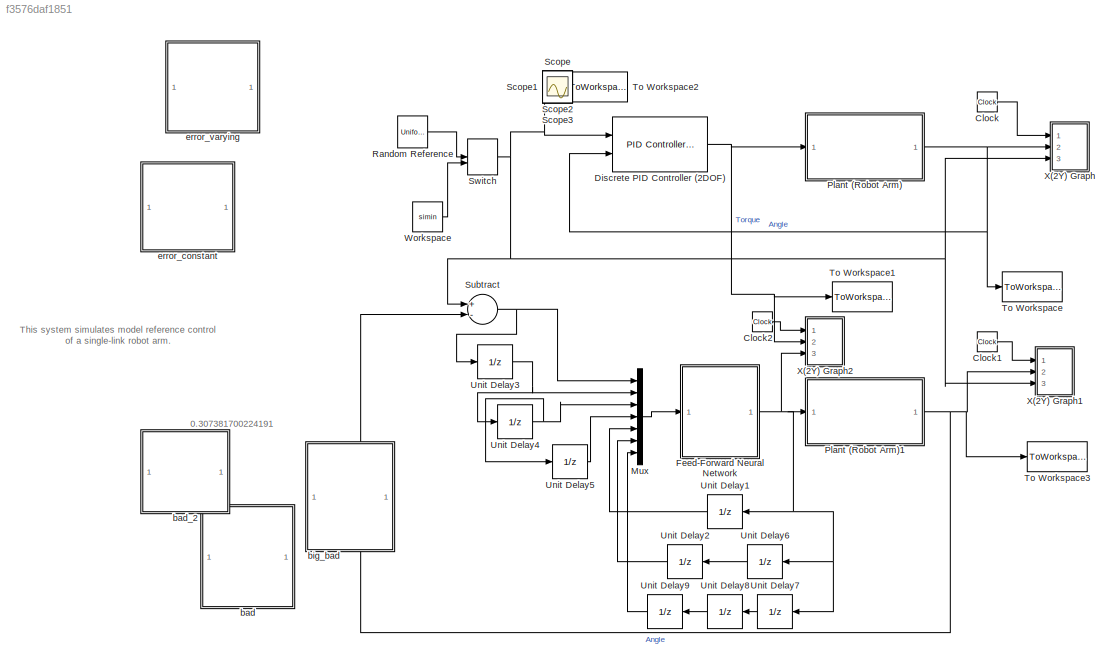
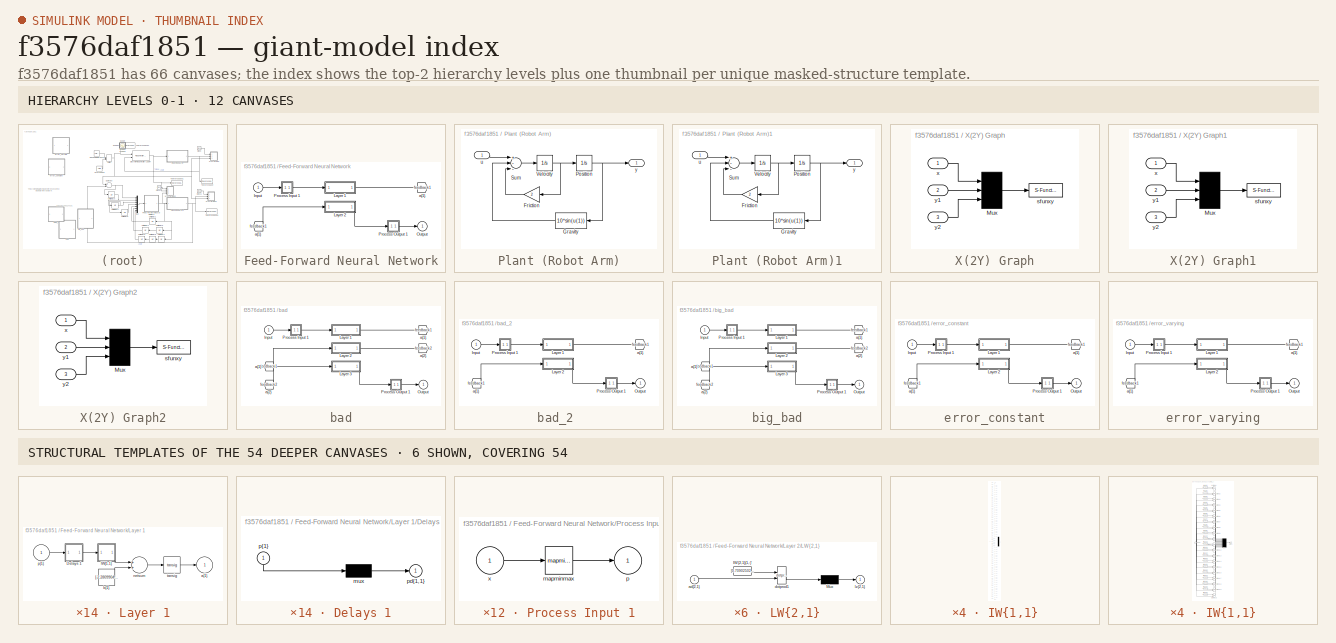
[diagram: thumbnail index - top-2 hierarchy levels (12 canvases) + 6 structural-template representatives of the remaining 54 canvases]
MODEL slx_f3576daf1851
KIND model
CONFIG AbsTol = 1e-6
CONFIG EnableMultiTasking = off
CONFIG FixedStep = auto
CONFIG MaxStep = auto
CONFIG MinStep = auto
CONFIG RelTol = 1e-3
CONFIG SampleTimeConstraint = Unconstrained
CONFIG Solver = FixedStepAuto
CONFIG SolverName = FixedStepAuto
CONFIG StartTime = 0.0
CONFIG StopTime = 60
BLOCK [Clock] Clock
BLOCK [Clock] Clock1
BLOCK [Clock] Clock2
BLOCK [Reference] Discrete PID Controller (2DOF)  REF=simulink/Continuous/PID Controller (2DOF)
  Ports = [2, 1]
  SourceBlock = simulink/Continuous/PID Controller (2DOF)
  SourceProductBaseCode = SL
  SourceProductName = Simulink
  SourceType = PID 2dof
BLOCK [SubSystem] Feed-Forward Neural Network
  Ports = [1, 1]
  RequestExecContextInheritance = off
BLOCK [From] Feed-Forward Neural Network/ a{1} 
  GotoTag = feedback1
BLOCK [Inport] Feed-Forward Neural Network/Input
  IconDisplay = Port number
  PortDimensions = 7
BLOCK [SubSystem] Feed-Forward Neural Network/Layer 1
  Ports = [1, 1]
  RequestExecContextInheritance = off
BLOCK [SubSystem] Feed-Forward Neural Network/Layer 1/Delays 1
  Ports = [1, 1]
  RequestExecContextInheritance = off
BLOCK [Mux] Feed-Forward Neural Network/Layer 1/Delays 1/mux
  Inputs = 1
  Ports = [1, 1]
BLOCK [Outport] Feed-Forward Neural Network/Layer 1/Delays 1/pd{1,1}
  IconDisplay = Port number
BLOCK [Inport] Feed-Forward Neural Network/Layer 1/Delays 1/p{1}
  IconDisplay = Port number
  PortDimensions = 7
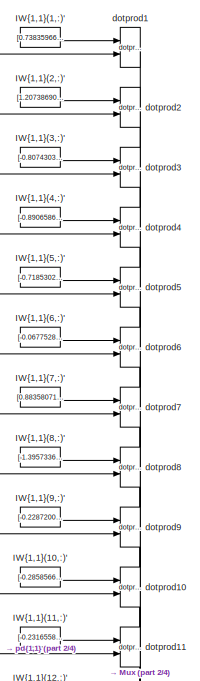
[diagram: Feed-Forward Neural Network/Layer 1/IW{1,1} - part 1/4, top center region]
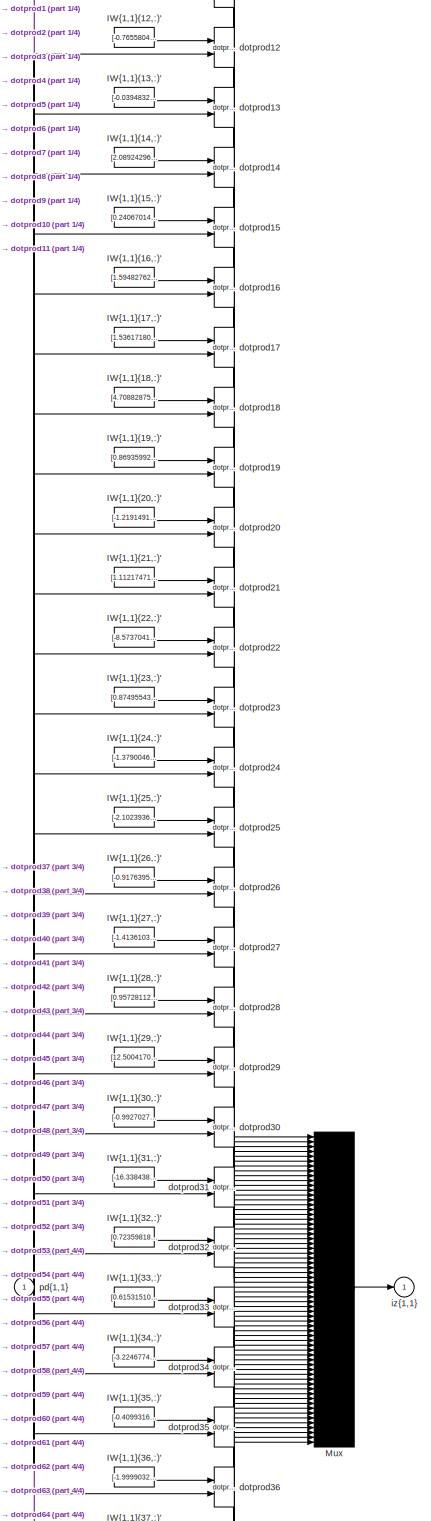
[diagram: Feed-Forward Neural Network/Layer 1/IW{1,1} - part 2/4, full width, middle band]
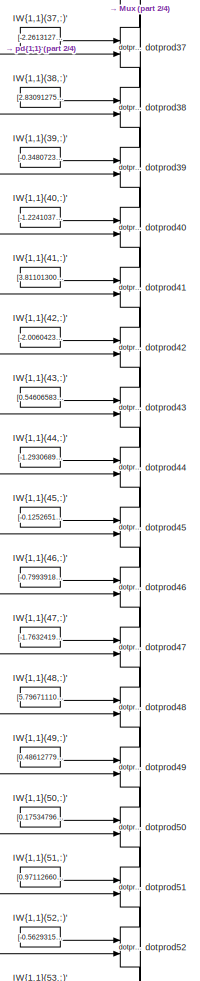
[diagram: Feed-Forward Neural Network/Layer 1/IW{1,1} - part 3/4, bottom center region]
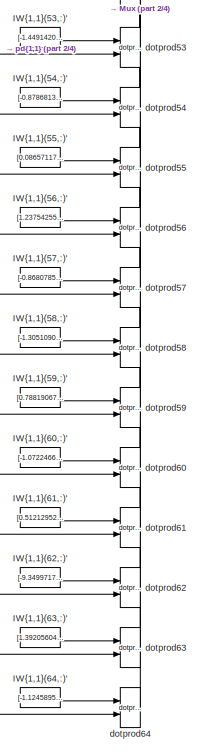
[diagram: Feed-Forward Neural Network/Layer 1/IW{1,1} - part 4/4, bottom center region]
BLOCK [SubSystem] Feed-Forward Neural Network/Layer 1/IW{1,1}
  Ports = [1, 1]
  RequestExecContextInheritance = off
BLOCK [Constant] Feed-Forward Neural Network/Layer 1/IW{1,1}/IW{1,1}(1,:)'
  Value = [0.73835966103695149787000673313741572201251983642578125;-0.94961190463521660820589431750704534351825714111328125;1.6035911924959707075544201870798133313655853271484375;1.2440476828636082284873509706812910735607147216796875;-1.3632517507492050157225094153545796871185302734375;-0.5284581869871158854579107355675660073757171630859375;0.17161240081002249180386343141435645520687103271484375]
BLOCK [Constant] Feed-Forward Neural Network/Layer 1/IW{1,1}/IW{1,1}(10,:)'
  Value = [-0.285856623070984305901021116369520314037799835205078125;0.2344776406677883950901986054304870776832103729248046875;-1.315520776721690321409141688491217792034149169921875;1.074880530465292860498038862715475261211395263671875;-2.319666095832283669864182229503057897090911865234375;0.6986740963338966547979680399294011294841766357421875;-0.300490225799896648606335247677634470164775848388671875]
BLOCK [Constant] Feed-Forward Neural Network/Layer 1/IW{1,1}/IW{1,1}(11,:)'
  Value = [-0.2316558785704640743841054018048453144729137420654296875;0.69436199539330900609712671212037093937397003173828125;0.0092057493650668266449432763920412980951368808746337890625;1.1913003539647768480591594197903759777545928955078125;0.329665431400123776217725435344618745148181915283203125;-0.03705915414620364334297164532472379505634307861328125;-2.367396266890927858383975035394541919231414794921875...<+1ch>
BLOCK [Constant] Feed-Forward Neural Network/Layer 1/IW{1,1}/IW{1,1}(12,:)'
  Value = [-0.76558045200224367210495302060735411942005157470703125;-1.3880666042352911571100548826507292687892913818359375;1.240281466247820763015852207900024950504302978515625;-0.0943438152588715051027890012846910394728183746337890625;-1.1016339629113909293067763428553007543087005615234375;0.77645097802456730651243788088322617113590240478515625;1.0157545017459932434888969510211609303951263427734375]
BLOCK [Constant] Feed-Forward Neural Network/Layer 1/IW{1,1}/IW{1,1}(13,:)'
  Value = [-0.0394832941047644492282842065833392553031444549560546875;0.2683433283804415037110402408870868384838104248046875;-1.9772412570219646266167501380550675094127655029296875;-1.3369533766644858818750662976526655256748199462890625;0.383848968826891734362760644216905348002910614013671875;-0.82866232479277546207896421037730760872364044189453125;-0.71448374375757206511394770132028497755527496337890625]
BLOCK [Constant] Feed-Forward Neural Network/Layer 1/IW{1,1}/IW{1,1}(14,:)'
  Value = [2.089242965128133899810336515656672418117523193359375;1.0583956137306387290664133615791797637939453125;1.2221961841086137479095441449317149817943572998046875;-0.9640381765065815233839430220541544258594512939453125;2.007169466431919513382808872847817838191986083984375;-0.005116273422281165071667796695464858203195035457611083984375;0.5419457531010729578468954059644602239131927490234375]
BLOCK [Constant] Feed-Forward Neural Network/Layer 1/IW{1,1}/IW{1,1}(15,:)'
  Value = [0.240670145172809435418770362957729957997798919677734375;-0.37262437066721532108459769006003625690937042236328125;0.7519452971248181682994982111267745494842529296875;-0.43618047326959208387364697045995853841304779052734375;-2.164127657796442338877795918961055576801300048828125;-1.4690578945890966355847240265575237572193145751953125;1.03041595327624602163041345193050801753997802734375]
BLOCK [Constant] Feed-Forward Neural Network/Layer 1/IW{1,1}/IW{1,1}(16,:)'
  Value = [1.594827628756812831767319948994554579257965087890625;-0.409790418491936481171222794728237204253673553466796875;0.5354336553033169909809885211871005594730377197265625;0.293245297642927560399783715183730237185955047607421875;-1.1159358132358245807580487962695769965648651123046875;0.6919927373218188737524769749143160879611968994140625;-1.12512451883200181868005529395304620265960693359375]
BLOCK [Constant] Feed-Forward Neural Network/Layer 1/IW{1,1}/IW{1,1}(17,:)'
  Value = [1.536171800559593680901571133290417492389678955078125;0.044760026132134471399393049750869977287948131561279296875;0.6869129687880015655565557608497329056262969970703125;0.475311403464723836176375471040955744683742523193359375;0.429599864159958599874045148681034334003925323486328125;2.369256087953004907831200398504734039306640625;0.80062373149870647015546865077340044081211090087890625]
BLOCK [Constant] Feed-Forward Neural Network/Layer 1/IW{1,1}/IW{1,1}(18,:)'
  Value = [4.70882875657937471913783156196586787700653076171875;1.0182941971839178929570834952755831182003021240234375;-0.29646960125124144358466082849190570414066314697265625;-2.63562093522858020833155023865401744842529296875;1.25983914696097176744160606176592409610748291015625;0.8392764608202714082807460727053694427013397216796875;0.38937859950317121882079618444549851119518280029296875]
BLOCK [Constant] Feed-Forward Neural Network/Layer 1/IW{1,1}/IW{1,1}(19,:)'
  Value = [0.86935992843650655714782260474748909473419189453125;1.2256376561587603024605641621747054159641265869140625;-0.74215457486800462394427313483902253210544586181640625;-0.749309744190128856899946185876615345478057861328125;-1.0295529762959614306083722112816758453845977783203125;-1.6497508162831613365284511019126512110233306884765625;0.21325656607528908903503861438366584479808807373046875]
BLOCK [Constant] Feed-Forward Neural Network/Layer 1/IW{1,1}/IW{1,1}(2,:)'
  Value = [1.207386908319982854465024502133019268512725830078125;0.60142973756388518058457748338696546852588653564453125;1.4282422078554113387127699752454645931720733642578125;1.129810122922250581467551455716602504253387451171875;0.52929546216326650576178280971362255513668060302734375;-0.521340349014109083469747929484583437442779541015625;-0.57746032918438638947833396741771139204502105712890625]
BLOCK [Constant] Feed-Forward Neural Network/Layer 1/IW{1,1}/IW{1,1}(20,:)'
  Value = [-1.2191491073873752526424141251482069492340087890625;0.292212917054135157268746070258202962577342987060546875;-0.62705777055215461412984723210684023797512054443359375;1.34344981494831916535304117132909595966339111328125;-0.466225081988995981863155293467571027576923370361328125;1.16396408978602483585973459412343800067901611328125;1.0600774509352677288376298747607506811618804931640625]
BLOCK [Constant] Feed-Forward Neural Network/Layer 1/IW{1,1}/IW{1,1}(21,:)'
  Value = [1.1121747160646184848786788279539905488491058349609375;-0.60810994087790193329823296153335832059383392333984375;0.90343241269697427409113288376829586923122406005859375;0.340373330006717267348648192637483589351177215576171875;-1.1890993364047857117071771426708437502384185791015625;1.9229246604893981409389880354865454137325286865234375;-0.5950707485470914104297435187618248164653778076171875]
BLOCK [Constant] Feed-Forward Neural Network/Layer 1/IW{1,1}/IW{1,1}(22,:)'
  Value = [-8.57370415306336752792049082927405834197998046875;4.0171564439012374947424177662469446659088134765625;2.0196425514487454933032495318911969661712646484375;-0.0038727846207056125515943989512379630468785762786865234375;0.17380867661798760082092485390603542327880859375;-0.895012208914945706084154153359122574329376220703125;-1.240911378886007998545437658322043716907501220703125]
BLOCK [Constant] Feed-Forward Neural Network/Layer 1/IW{1,1}/IW{1,1}(23,:)'
  Value = [0.87495543491740790376098857450415380299091339111328125;-1.548464555412043086590756502118892967700958251953125;1.159091997448419508742745165363885462284088134765625;0.69503432512084539762753365721437148749828338623046875;0.359854826398857741143189059584983624517917633056640625;-0.626666123302821898022330060484819114208221435546875;-0.419306439460687130349469953216612339019775390625]
BLOCK [Constant] Feed-Forward Neural Network/Layer 1/IW{1,1}/IW{1,1}(24,:)'
  Value = [-1.3790046975524656858169691986404359340667724609375;1.1977931691528158619775012994068674743175506591796875;0.8600690763459706289495443343184888362884521484375;-1.33526003303544538169944644323550164699554443359375;1.2562328890788150292934233220876194536685943603515625;-0.5055283895922257908495112133095972239971160888671875;-0.2278459789949866809433132175399805419147014617919921875]
BLOCK [Constant] Feed-Forward Neural Network/Layer 1/IW{1,1}/IW{1,1}(25,:)'
  Value = [-2.102393639314213746871473631472326815128326416015625;-3.76389751408084283212929221917875111103057861328125;2.078769576669774910016030844417400658130645751953125;0.38950132659974967541671730941743589937686920166015625;-4.26745758288289689375005764304660260677337646484375;0.5340540555107826659053671392030082643032073974609375;1.8287537538784099933053539643879048526287078857421875]
BLOCK [Constant] Feed-Forward Neural Network/Layer 1/IW{1,1}/IW{1,1}(26,:)'
  Value = [-0.9176395353965032253285016849986277520656585693359375;-0.04458878245606212598062256802222691476345062255859375;1.3530432976563921965151848780806176364421844482421875;0.02686983344273292939607955531755578704178333282470703125;-2.705305218699319613762099834275431931018829345703125;0.73214756050264251374670720906578935682773590087890625;0.62440621397350504206968935250188224017620086669921875]
BLOCK [Constant] Feed-Forward Neural Network/Layer 1/IW{1,1}/IW{1,1}(27,:)'
  Value = [-1.41361036509884119283242398523725569248199462890625;-0.2148998090111946812630350223116693086922168731689453125;-0.88851175150081640463639587323996238410472869873046875;0.445203605566461158016267063430859707295894622802734375;0.356930601207742059788330379888066090643405914306640625;2.115478385494487412188391317613422870635986328125;1.68742965335181782648987791617400944232940673828125]
BLOCK [Constant] Feed-Forward Neural Network/Layer 1/IW{1,1}/IW{1,1}(28,:)'
  Value = [0.9572811214803549351159972502500750124454498291015625;-0.9448130506895486835361452904180623590946197509765625;-1.843363693261503843956461423658765852451324462890625;-0.09870357560995070278497820481788949109613895416259765625;-0.432231125687960238135332247111364267766475677490234375;1.5519178923840619699348053472931496798992156982421875;1.362051502548276449289232914452441036701202392578125]
BLOCK [Constant] Feed-Forward Neural Network/Layer 1/IW{1,1}/IW{1,1}(29,:)'
  Value = [12.5004170947519224199595555546693503856658935546875;1.7035842613993403826810890677734278142452239990234375;-4.5262638802356196521259334986098110675811767578125;-3.2918155677113301038616555160842835903167724609375;0.0989294068375679014337720218463800847530364990234375;1.7539877591714070348416498745791614055633544921875;-0.53021136566533899614483971163281239569187164306640625]
BLOCK [Constant] Feed-Forward Neural Network/Layer 1/IW{1,1}/IW{1,1}(3,:)'
  Value = [-0.80743038654165977252574748490587808191776275634765625;1.48604428772479391085425959317944943904876708984375;1.514383091511012136010094764060340821743011474609375;0.93867883654444217444989817522582598030567169189453125;-0.043116312200369509566311165826846263371407985687255859375;1.16577600469918873926644664607010781764984130859375;-0.06996023283199341580296248821468907408416271209716796875]
BLOCK [Constant] Feed-Forward Neural Network/Layer 1/IW{1,1}/IW{1,1}(30,:)'
  Value = [-0.992702754844593027172550137038342654705047607421875;0.477233746452680296368242807147908024489879608154296875;-1.0764384567135694137363088884740136563777923583984375;-1.2150756811348990549248583192820660769939422607421875;0.7911923672672009910655788189615122973918914794921875;-1.1658964213197278159128700281144119799137115478515625;0.2432016545416344488472759621799923479557037353515625]
BLOCK [Constant] Feed-Forward Neural Network/Layer 1/IW{1,1}/IW{1,1}(31,:)'
  Value = [-16.338438056299370515489499666728079319000244140625;5.677906950832653620864221011288464069366455078125;1.257177629119180295447222306393086910247802734375;3.084543449354010480334409294300712645053863525390625;1.93049991449494573458878221572376787662506103515625;-2.08848821422302943773274819250218570232391357421875;-0.96472404387054322416616969348979182541370391845703125]
BLOCK [Constant] Feed-Forward Neural Network/Layer 1/IW{1,1}/IW{1,1}(32,:)'
  Value = [0.72359818528620045707810959356720559298992156982421875;-1.6440003314616358220945357970776967704296112060546875;-0.83050079319534830801785574294626712799072265625;0.27573713468012128746664757272810675203800201416015625;0.223506350461608604973662295378744602203369140625;-1.95819542324606121752594845020212233066558837890625;-2.0879808382233644437064867815934121608734130859375]
BLOCK [Constant] Feed-Forward Neural Network/Layer 1/IW{1,1}/IW{1,1}(33,:)'
  Value = [0.6153151030709864688361676599015481770038604736328125;0.6691272401310477402347487441147677600383758544921875;-0.72784086034873485271390336492913775146007537841796875;-1.120378191299657988366789140854962170124053955078125;-0.51930559479426141589186727287597022950649261474609375;0.56780815440402976346234709126292727887630462646484375;-1.6152046873764975831733181621530093252658843994140625]
BLOCK [Constant] Feed-Forward Neural Network/Layer 1/IW{1,1}/IW{1,1}(34,:)'
  Value = [-3.22467745118568505091616316349245607852935791015625;2.8959677209624832272538696997798979282379150390625;0.77094836502237018560634851382928900420665740966796875;-2.821540095988474217136854349519126117229461669921875;-1.5536333997586166955073849749169312417507171630859375;1.0360973498748424770354858992504887282848358154296875;0.97325103763728748607064744646777398884296417236328125]
BLOCK [Constant] Feed-Forward Neural Network/Layer 1/IW{1,1}/IW{1,1}(35,:)'
  Value = [-0.40993165176265533578003896764130331575870513916015625;-2.33898377229580223257698889938183128833770751953125;0.32897348394588943332195185575983487069606781005859375;-0.56615619560323582337701964206644333899021148681640625;-0.41003241083886809992264943502959795296192169189453125;1.2140401389446784374825938357389532029628753662109375;-0.85422786927035010418052252134657464921474456787109375]
BLOCK [Constant] Feed-Forward Neural Network/Layer 1/IW{1,1}/IW{1,1}(36,:)'
  Value = [-1.9999032537141001597547074197791516780853271484375;-2.974276201114873341424527097842656075954437255859375;-1.7007569264815598497619930640212260186672210693359375;2.149370754668828542577330154017545282840728759765625;-0.09993625247978608905352615465744747780263423919677734375;-0.53677678761069558266427748094429261982440948486328125;-0.22378503182603604049205614501261152327060699462890625]
BLOCK [Constant] Feed-Forward Neural Network/Layer 1/IW{1,1}/IW{1,1}(37,:)'
  Value = [-2.261312784396285024968165089376270771026611328125;-1.68433878042118667650584029615856707096099853515625;0.92988448033931081493363990375655703246593475341796875;-0.08506420369932309044624929583733319304883480072021484375;2.1538362566721378499323691357858479022979736328125;-1.9027585984741450797486095325439237058162689208984375;-1.091765486344769886528638380696065723896026611328125]
BLOCK [Constant] Feed-Forward Neural Network/Layer 1/IW{1,1}/IW{1,1}(38,:)'
  Value = [2.830912753563269657064438433735631406307220458984375;-0.10314084738627983528491682818639674223959445953369140625;-1.0692129299568013944821132099605165421962738037109375;-1.98670442322062523743397832731716334819793701171875;-0.94562071413735726554961047440883703529834747314453125;-0.78961674023875005890005240871687419712543487548828125;0.70458382474041825194177590674371458590030670166015625]
BLOCK [Constant] Feed-Forward Neural Network/Layer 1/IW{1,1}/IW{1,1}(39,:)'
  Value = [-0.348072375411236978326456892318674363195896148681640625;-1.6510457560732707538164731886354275047779083251953125;-1.2916493330084086732512105299974791705608367919921875;1.042360874067343790017048377194441854953765869140625;0.1427982759597591078115641494150622747838497161865234375;-1.2845046490448479570289919138303957879543304443359375;1.5124340845957024992429751364397816359996795654296875]
BLOCK [Constant] Feed-Forward Neural Network/Layer 1/IW{1,1}/IW{1,1}(4,:)'
  Value = [-0.89065860344844749452164478498161770403385162353515625;-1.2324761697914368152595443461905233561992645263671875;-0.96599148156176972701558725020731799304485321044921875;0.2017190712792409357234646449796855449676513671875;0.69131736008931865544724360006512142717838287353515625;-1.715661921858600447166054436820559203624725341796875;0.7329642167055145929310810970491729676723480224609375]
BLOCK [Constant] Feed-Forward Neural Network/Layer 1/IW{1,1}/IW{1,1}(40,:)'
  Value = [-1.224103766692140826677359655150212347507476806640625;-1.0366503183705189083951836437336169183254241943359375;-0.5230620278335227357757730715093202888965606689453125;0.469679422742529439904757282420177944004535675048828125;-1.7855954655395096519754360997467301785945892333984375;-1.733929619164484403626147468457929790019989013671875;0.8116215075814612323057417597738094627857208251953125]
BLOCK [Constant] Feed-Forward Neural Network/Layer 1/IW{1,1}/IW{1,1}(41,:)'
  Value = [3.811013000198275602059538869070820510387420654296875;0.5832783973862503135165979983867146074771881103515625;0.255772029265343869841586865732097066938877105712890625;-1.5158757185097153641351042097085155546665191650390625;-1.7725277268672356978385096226702444255352020263671875;1.5701810780917870857820162200368940830230712890625;0.81793887234063633595582132329582236707210540771484375]
BLOCK [Constant] Feed-Forward Neural Network/Layer 1/IW{1,1}/IW{1,1}(42,:)'
  Value = [-2.006042382672766688500587406451813876628875732421875;1.0413470547606602512047402342432178556919097900390625;-1.6362398327674068099213400273583829402923583984375;0.62619619818024074842099935267469845712184906005859375;-1.4551768832123423980107190800481475889682769775390625;-0.1490826525180633244094252631839481182396411895751953125;-0.38461134741321967300820006130379624664783477783203125]
BLOCK [Constant] Feed-Forward Neural Network/Layer 1/IW{1,1}/IW{1,1}(43,:)'
  Value = [0.5460658329776328923088613009895198047161102294921875;-0.94530550980993510723493500336189754307270050048828125;1.70665652034300752148965329979546368122100830078125;0.96956623158008647944683389141573570668697357177734375;0.3589279855235745220198850802262313663959503173828125;-1.1420047056002007312969226404675282537937164306640625;1.132817899182256393686429873923771083354949951171875]
BLOCK [Constant] Feed-Forward Neural Network/Layer 1/IW{1,1}/IW{1,1}(44,:)'
  Value = [-1.2930689151046041995840596428024582564830780029296875;-0.56249698171321116380028115599998272955417633056640625;1.32754142274804731727044782019220292568206787109375;0.74378133140686986113365719575085677206516265869140625;-1.23374094380344079269207213656045496463775634765625;-1.0689189038876143467149404386873356997966766357421875;0.374826487480591941103824638048536144196987152099609375]
BLOCK [Constant] Feed-Forward Neural Network/Layer 1/IW{1,1}/IW{1,1}(45,:)'
  Value = [-0.125265172307327643519414550610235892236232757568359375;-1.2979706658467675683965580901713110506534576416015625;-1.2591143708802052803008564296760596334934234619140625;-1.1810024297842882656794927243026904761791229248046875;0.9690025756252274025115411859587766230106353759765625;0.775011346863422989628134018857963383197784423828125;0.342495238331483931037979573375196196138858795166015625]
BLOCK [Constant] Feed-Forward Neural Network/Layer 1/IW{1,1}/IW{1,1}(46,:)'
  Value = [-0.79939181461898367597740389101090840995311737060546875;-1.7847629951989552044011588805005885660648345947265625;-1.6422494523457071835537135484628379344940185546875;0.9750905072276481178050744347274303436279296875;-1.152209715275577917026339491712860763072967529296875;0.57577749736601047114703533225110732018947601318359375;-0.349444239740421214168719643566873855888843536376953125]
BLOCK [Constant] Feed-Forward Neural Network/Layer 1/IW{1,1}/IW{1,1}(47,:)'
  Value = [-1.7632419581677851727619099619914777576923370361328125;-2.088742863304435815052784164436161518096923828125;-0.314819559914206126283175990465679205954074859619140625;0.82991928825946670311708430745056830346584320068359375;-1.5806265425320786821572482949704863131046295166015625;1.0266114183991661423789309992571361362934112548828125;-0.0973938829209682055410013390428503043949604034423828125]
BLOCK [Constant] Feed-Forward Neural Network/Layer 1/IW{1,1}/IW{1,1}(48,:)'
  Value = [5.7967111018597705651700380258262157440185546875;-0.353441353033542460249094574464834295213222503662109375;-1.087621083945466526898826487013138830661773681640625;0.01317302208333899667114241793797191348858177661895751953125;-2.46855191535412021863749032490886747837066650390625;-0.01189689818004919900917837338738536345772445201873779296875;1.4291611738391403196857254442875273525714874267578125]
BLOCK [Constant] Feed-Forward Neural Network/Layer 1/IW{1,1}/IW{1,1}(49,:)'
  Value = [0.486127795858225242309202940305112861096858978271484375;0.746935613742211845789142898865975439548492431640625;1.577270606275454678524283735896460711956024169921875;1.4551426634219193356756250068428926169872283935546875;1.0852780717655947650968073503463529050350189208984375;0.29915236483236828934906270660576410591602325439453125;-0.40249497942065126654398454775218851864337921142578125]
BLOCK [Constant] Feed-Forward Neural Network/Layer 1/IW{1,1}/IW{1,1}(5,:)'
  Value = [-0.718530235345395507096100118360482156276702880859375;1.0522938916772464068571935058571398258209228515625;0.012909872082843769358628804866384598426520824432373046875;-1.75935310381194565110263283713720738887786865234375;0.62020539881142522364854130501043982803821563720703125;0.2252623906161243805268412643272313289344310760498046875;-1.132512354873596027715620948583818972110748291015625]
BLOCK [Constant] Feed-Forward Neural Network/Layer 1/IW{1,1}/IW{1,1}(50,:)'
  Value = [0.1753479617690769654103633001795969903469085693359375;1.8630588375631795816644853402976877987384796142578125;-2.24930435978582909939404999022372066974639892578125;-1.022563912494447446732692696969024837017059326171875;0.7920084208289974725403226329945027828216552734375;-1.634487470492640426300567924045026302337646484375;-0.533929514864834420251327173900790512561798095703125]
BLOCK [Constant] Feed-Forward Neural Network/Layer 1/IW{1,1}/IW{1,1}(51,:)'
  Value = [0.97112660053720756270223546380293555557727813720703125;-1.2031642341239867644020478110178373754024505615234375;-1.0209123550452974260593919098027981817722320556640625;1.190529033280860016219548924709670245647430419921875;0.06479861113599984234756590240067453123629093170166015625;0.252740880441116033683357500194688327610492706298828125;0.98618932561259942115583498889463953673839569091796875]
BLOCK [Constant] Feed-Forward Neural Network/Layer 1/IW{1,1}/IW{1,1}(52,:)'
  Value = [-0.56293158767136375342232668117503635585308074951171875;-0.98364077995051968361650551742059178650379180908203125;0.77290720047679040138888240107917226850986480712890625;0.71714923345493952755447253366583026945590972900390625;-1.9774234096473577437791391275823116302490234375;-1.3670014258104592475007166285649873316287994384765625;-1.2403558286757316864168387837707996368408203125]
BLOCK [Constant] Feed-Forward Neural Network/Layer 1/IW{1,1}/IW{1,1}(53,:)'
  Value = [-1.4491420106285197721973645457183010876178741455078125;1.3094456814424848545286295120604336261749267578125;-1.386646167148400277113751144497655332088470458984375;0.298468868056892155937731558879022486507892608642578125;-0.90017664137490827069854049113928340375423431396484375;-0.72217348977064410586734766184235922992229461669921875;0.1917842641023979888270645233205868862569332122802734375]
BLOCK [Constant] Feed-Forward Neural Network/Layer 1/IW{1,1}/IW{1,1}(54,:)'
  Value = [-0.878681374026269335075767230591736733913421630859375;1.2259935692682997210312123570474795997142791748046875;-0.30483174186242223413501051254570484161376953125;-1.4126017657634808433186890397337265312671661376953125;-0.16851205718232054042715617470094002783298492431640625;-0.90442286536734428636918892152607440948486328125;1.169452539822338099639864594792015850543975830078125]
BLOCK [Constant] Feed-Forward Neural Network/Layer 1/IW{1,1}/IW{1,1}(55,:)'
  Value = [0.08657117739125146094192331247541005723178386688232421875;1.55525590350724041144303555483929812908172607421875;1.571275680166724253439269887167029082775115966796875;0.0389356200283746123336214850496617145836353302001953125;1.0608030005091400038708115971530787646770477294921875;-0.1770242286839346645965775906006456352770328521728515625;0.8749463130276551314778998857946135103702545166015625]
BLOCK [Constant] Feed-Forward Neural Network/Layer 1/IW{1,1}/IW{1,1}(56,:)'
  Value = [1.237542557784059749081961854244582355022430419921875;-0.7639115927886688250936231270316056907176971435546875;0.74476614556811415734927095400053076446056365966796875;0.56954566336828893469146350980736315250396728515625;0.61565589059907599445153891792870126664638519287109375;-0.5376764926956756340814536088146269321441650390625;1.626904678049955865759557127603329718112945556640625]
BLOCK [Constant] Feed-Forward Neural Network/Layer 1/IW{1,1}/IW{1,1}(57,:)'
  Value = [-0.868078569057733062663828604854643344879150390625;-1.165974491241934973828620059066452085971832275390625;0.10609840146620587442161109947846853174269199371337890625;-0.90156681825631268534237960921018384397029876708984375;-2.428906126398517439923807614832185208797454833984375;0.73891351686324713288200882743694819509983062744140625;0.284503194421066918362583919588360004127025604248046875]
BLOCK [Constant] Feed-Forward Neural Network/Layer 1/IW{1,1}/IW{1,1}(58,:)'
  Value = [-1.30510909203312674975450136116705834865570068359375;-0.1671177331211633199092858603762579150497913360595703125;0.7358137655288110590134920130367390811443328857421875;1.501410257805670056541202939115464687347412109375;0.4089546848156242475624821963720023632049560546875;0.2678825310125543257555591480922885239124298095703125;-1.28614728448410264860513052553869783878326416015625]
BLOCK [Constant] Feed-Forward Neural Network/Layer 1/IW{1,1}/IW{1,1}(59,:)'
  Value = [0.78819067391595998284259394495165906846523284912109375;1.0049970900971356702058301380020566284656524658203125;1.7128181762409686594850199981010518968105316162109375;0.48388259774764652565437472730991430580615997314453125;0.6422572407911018022019788986654020845890045166015625;0.16319232352850365774799001883366145193576812744140625;-1.26925895141153954881474419380538165569305419921875]
BLOCK [Constant] Feed-Forward Neural Network/Layer 1/IW{1,1}/IW{1,1}(6,:)'
  Value = [-0.0677528317986960948449137731586233712732791900634765625;-1.504169779309772803088662840309552848339080810546875;-0.87929157452727857435803571206633932888507843017578125;-0.8760369945765915655755406987736932933330535888671875;-1.672337522207133719831517737475223839282989501953125;-1.4356226151765103526969369340804405510425567626953125;0.1592425066398253374888582811763626523315906524658203125]
BLOCK [Constant] Feed-Forward Neural Network/Layer 1/IW{1,1}/IW{1,1}(60,:)'
  Value = [-1.0722466703029087664589269479620270431041717529296875;0.73890371942793120485504232419771142303943634033203125;-1.9138338837816533111180206105927936732769012451171875;1.0277109431222444246856184690841473639011383056640625;0.2225103902039953507330238835493219085037708282470703125;0.420305641965908305390797750078490935266017913818359375;-0.320595525674717218844733679361524991691112518310546875]
BLOCK [Constant] Feed-Forward Neural Network/Layer 1/IW{1,1}/IW{1,1}(61,:)'
  Value = [0.51212952866549787955818828777410089969635009765625;-0.41556978307366587710447447534534148871898651123046875;-1.46597023740784759837652018177323043346405029296875;0.9822186865382089848708346835337579250335693359375;-0.7957700769446327537792740258737467229366302490234375;0.66162899620550075230340780763071961700916290283203125;-0.99999288616506809557193946602637879550457000732421875]
BLOCK [Constant] Feed-Forward Neural Network/Layer 1/IW{1,1}/IW{1,1}(62,:)'
  Value = [-9.3499717686009926609358444693498313426971435546875;-1.6687740105111006361227055094786919653415679931640625;0.3889865892122232882144317045458592474460601806640625;0.1628038449518091901335736793043906800448894500732421875;-2.078334660366574215828450178378261625766754150390625;-0.46747409568921749478676019862177781760692596435546875;0.68559383251914118861947144978330470621585845947265625]
BLOCK [Constant] Feed-Forward Neural Network/Layer 1/IW{1,1}/IW{1,1}(63,:)'
  Value = [1.3920560485040416320856593301868997514247894287109375;1.2192749778278735295344858968746848404407501220703125;-1.131174831914206979632808725000359117984771728515625;-0.72964851174637235242670385559904389083385467529296875;2.681255093203409156643601818359456956386566162109375;0.1257455976156408306021461385171278379857540130615234375;1.1240837671880845594074571636156179010868072509765625]
BLOCK [Constant] Feed-Forward Neural Network/Layer 1/IW{1,1}/IW{1,1}(64,:)'
  Value = [-1.1245895891605266481150238178088329732418060302734375;0.99216305797861503723567011547856964170932769775390625;1.216170922417554312033871610765345394611358642578125;1.00388928404632071789137626183219254016876220703125;0.349604984180501732193846464724629186093807220458984375;-0.36967499856060503926613591829664073884487152099609375;1.322827801452259421921553439460694789886474609375]
BLOCK [Constant] Feed-Forward Neural Network/Layer 1/IW{1,1}/IW{1,1}(7,:)'
  Value = [0.88358071509059088466386810978292487561702728271484375;-0.2349270917167734229469289175540325231850147247314453125;0.1366099851058469039077891693523270078003406524658203125;1.4171073584098905495665121634374372661113739013671875;0.96214074180150976900449677486903965473175048828125;-0.84241315143091222150673047508462332189083099365234375;1.1132897258254084160711272488697431981563568115234375]
BLOCK [Constant] Feed-Forward Neural Network/Layer 1/IW{1,1}/IW{1,1}(8,:)'
  Value = [-1.395733659940647353181475409655831754207611083984375;1.2086164758276940478509686727193184196949005126953125;-0.1732703398751260781551764011965133249759674072265625;0.93793237375914928488640498471795581281185150146484375;-1.0349425891455099613125412361114285886287689208984375;1.4481824947271686454541850253008306026458740234375;-0.188168293001181263779386654277914203703403472900390625]
BLOCK [Constant] Feed-Forward Neural Network/Layer 1/IW{1,1}/IW{1,1}(9,:)'
  Value = [-0.228720071439284355907517465311684645712375640869140625;-1.21806659245520076950697330175898969173431396484375;1.4189117114977516376228550143423490226268768310546875;0.5481062594804633203438015698338858783245086669921875;0.4298419096351138168898842195631004869937896728515625;1.4680607869905344387007062323391437530517578125;-0.409392364118598084399280878642457537353038787841796875]
BLOCK [Mux] Feed-Forward Neural Network/Layer 1/IW{1,1}/Mux
  Inputs = 64
  Ports = [64, 1]
BLOCK [Reference] Feed-Forward Neural Network/Layer 1/IW{1,1}/dotprod1  REF=neural/Weight Functions/dotprod
  Ports = [2, 1]
  SourceBlock = neural/Weight Functions/dotprod
  SourceProductBaseCode = NN
  SourceProductName = Neural Network Toolbox
  SourceType = DOTPROD
BLOCK [Reference] Feed-Forward Neural Network/Layer 1/IW{1,1}/dotprod10  REF=neural/Weight Functions/dotprod
  Ports = [2, 1]
  SourceBlock = neural/Weight Functions/dotprod
  SourceProductBaseCode = NN
  SourceProductName = Neural Network Toolbox
  SourceType = DOTPROD
BLOCK [Reference] Feed-Forward Neural Network/Layer 1/IW{1,1}/dotprod11  REF=neural/Weight Functions/dotprod
  Ports = [2, 1]
  SourceBlock = neural/Weight Functions/dotprod
  SourceProductBaseCode = NN
  SourceProductName = Neural Network Toolbox
  SourceType = DOTPROD
BLOCK [Reference] Feed-Forward Neural Network/Layer 1/IW{1,1}/dotprod12  REF=neural/Weight Functions/dotprod
  Ports = [2, 1]
  SourceBlock = neural/Weight Functions/dotprod
  SourceProductBaseCode = NN
  SourceProductName = Neural Network Toolbox
  SourceType = DOTPROD
BLOCK [Reference] Feed-Forward Neural Network/Layer 1/IW{1,1}/dotprod13  REF=neural/Weight Functions/dotprod
  Ports = [2, 1]
  SourceBlock = neural/Weight Functions/dotprod
  SourceProductBaseCode = NN
  SourceProductName = Neural Network Toolbox
  SourceType = DOTPROD
BLOCK [Reference] Feed-Forward Neural Network/Layer 1/IW{1,1}/dotprod14  REF=neural/Weight Functions/dotprod
  Ports = [2, 1]
  SourceBlock = neural/Weight Functions/dotprod
  SourceProductBaseCode = NN
  SourceProductName = Neural Network Toolbox
  SourceType = DOTPROD
BLOCK [Reference] Feed-Forward Neural Network/Layer 1/IW{1,1}/dotprod15  REF=neural/Weight Functions/dotprod
  Ports = [2, 1]
  SourceBlock = neural/Weight Functions/dotprod
  SourceProductBaseCode = NN
  SourceProductName = Neural Network Toolbox
  SourceType = DOTPROD
BLOCK [Reference] Feed-Forward Neural Network/Layer 1/IW{1,1}/dotprod16  REF=neural/Weight Functions/dotprod
  Ports = [2, 1]
  SourceBlock = neural/Weight Functions/dotprod
  SourceProductBaseCode = NN
  SourceProductName = Neural Network Toolbox
  SourceType = DOTPROD
BLOCK [Reference] Feed-Forward Neural Network/Layer 1/IW{1,1}/dotprod17  REF=neural/Weight Functions/dotprod
  Ports = [2, 1]
  SourceBlock = neural/Weight Functions/dotprod
  SourceProductBaseCode = NN
  SourceProductName = Neural Network Toolbox
  SourceType = DOTPROD
BLOCK [Reference] Feed-Forward Neural Network/Layer 1/IW{1,1}/dotprod18  REF=neural/Weight Functions/dotprod
  Ports = [2, 1]
  SourceBlock = neural/Weight Functions/dotprod
  SourceProductBaseCode = NN
  SourceProductName = Neural Network Toolbox
  SourceType = DOTPROD
BLOCK [Reference] Feed-Forward Neural Network/Layer 1/IW{1,1}/dotprod19  REF=neural/Weight Functions/dotprod
  Ports = [2, 1]
  SourceBlock = neural/Weight Functions/dotprod
  SourceProductBaseCode = NN
  SourceProductName = Neural Network Toolbox
  SourceType = DOTPROD
BLOCK [Reference] Feed-Forward Neural Network/Layer 1/IW{1,1}/dotprod2  REF=neural/Weight Functions/dotprod
  Ports = [2, 1]
  SourceBlock = neural/Weight Functions/dotprod
  SourceProductBaseCode = NN
  SourceProductName = Neural Network Toolbox
  SourceType = DOTPROD
BLOCK [Reference] Feed-Forward Neural Network/Layer 1/IW{1,1}/dotprod20  REF=neural/Weight Functions/dotprod
  Ports = [2, 1]
  SourceBlock = neural/Weight Functions/dotprod
  SourceProductBaseCode = NN
  SourceProductName = Neural Network Toolbox
  SourceType = DOTPROD
BLOCK [Reference] Feed-Forward Neural Network/Layer 1/IW{1,1}/dotprod21  REF=neural/Weight Functions/dotprod
  Ports = [2, 1]
  SourceBlock = neural/Weight Functions/dotprod
  SourceProductBaseCode = NN
  SourceProductName = Neural Network Toolbox
  SourceType = DOTPROD
BLOCK [Reference] Feed-Forward Neural Network/Layer 1/IW{1,1}/dotprod22  REF=neural/Weight Functions/dotprod
  Ports = [2, 1]
  SourceBlock = neural/Weight Functions/dotprod
  SourceProductBaseCode = NN
  SourceProductName = Neural Network Toolbox
  SourceType = DOTPROD
BLOCK [Reference] Feed-Forward Neural Network/Layer 1/IW{1,1}/dotprod23  REF=neural/Weight Functions/dotprod
  Ports = [2, 1]
  SourceBlock = neural/Weight Functions/dotprod
  SourceProductBaseCode = NN
  SourceProductName = Neural Network Toolbox
  SourceType = DOTPROD
BLOCK [Reference] Feed-Forward Neural Network/Layer 1/IW{1,1}/dotprod24  REF=neural/Weight Functions/dotprod
  Ports = [2, 1]
  SourceBlock = neural/Weight Functions/dotprod
  SourceProductBaseCode = NN
  SourceProductName = Neural Network Toolbox
  SourceType = DOTPROD
BLOCK [Reference] Feed-Forward Neural Network/Layer 1/IW{1,1}/dotprod25  REF=neural/Weight Functions/dotprod
  Ports = [2, 1]
  SourceBlock = neural/Weight Functions/dotprod
  SourceProductBaseCode = NN
  SourceProductName = Neural Network Toolbox
  SourceType = DOTPROD
BLOCK [Reference] Feed-Forward Neural Network/Layer 1/IW{1,1}/dotprod26  REF=neural/Weight Functions/dotprod
  Ports = [2, 1]
  SourceBlock = neural/Weight Functions/dotprod
  SourceProductBaseCode = NN
  SourceProductName = Neural Network Toolbox
  SourceType = DOTPROD
BLOCK [Reference] Feed-Forward Neural Network/Layer 1/IW{1,1}/dotprod27  REF=neural/Weight Functions/dotprod
  Ports = [2, 1]
  SourceBlock = neural/Weight Functions/dotprod
  SourceProductBaseCode = NN
  SourceProductName = Neural Network Toolbox
  SourceType = DOTPROD
BLOCK [Reference] Feed-Forward Neural Network/Layer 1/IW{1,1}/dotprod28  REF=neural/Weight Functions/dotprod
  Ports = [2, 1]
  SourceBlock = neural/Weight Functions/dotprod
  SourceProductBaseCode = NN
  SourceProductName = Neural Network Toolbox
  SourceType = DOTPROD
BLOCK [Reference] Feed-Forward Neural Network/Layer 1/IW{1,1}/dotprod29  REF=neural/Weight Functions/dotprod
  Ports = [2, 1]
  SourceBlock = neural/Weight Functions/dotprod
  SourceProductBaseCode = NN
  SourceProductName = Neural Network Toolbox
  SourceType = DOTPROD
BLOCK [Reference] Feed-Forward Neural Network/Layer 1/IW{1,1}/dotprod3  REF=neural/Weight Functions/dotprod
  Ports = [2, 1]
  SourceBlock = neural/Weight Functions/dotprod
  SourceProductBaseCode = NN
  SourceProductName = Neural Network Toolbox
  SourceType = DOTPROD
BLOCK [Reference] Feed-Forward Neural Network/Layer 1/IW{1,1}/dotprod30  REF=neural/Weight Functions/dotprod
  Ports = [2, 1]
  SourceBlock = neural/Weight Functions/dotprod
  SourceProductBaseCode = NN
  SourceProductName = Neural Network Toolbox
  SourceType = DOTPROD
BLOCK [Reference] Feed-Forward Neural Network/Layer 1/IW{1,1}/dotprod31  REF=neural/Weight Functions/dotprod
  Ports = [2, 1]
  SourceBlock = neural/Weight Functions/dotprod
  SourceProductBaseCode = NN
  SourceProductName = Neural Network Toolbox
  SourceType = DOTPROD
BLOCK [Reference] Feed-Forward Neural Network/Layer 1/IW{1,1}/dotprod32  REF=neural/Weight Functions/dotprod
  Ports = [2, 1]
  SourceBlock = neural/Weight Functions/dotprod
  SourceProductBaseCode = NN
  SourceProductName = Neural Network Toolbox
  SourceType = DOTPROD
BLOCK [Reference] Feed-Forward Neural Network/Layer 1/IW{1,1}/dotprod33  REF=neural/Weight Functions/dotprod
  Ports = [2, 1]
  SourceBlock = neural/Weight Functions/dotprod
  SourceProductBaseCode = NN
  SourceProductName = Neural Network Toolbox
  SourceType = DOTPROD
BLOCK [Reference] Feed-Forward Neural Network/Layer 1/IW{1,1}/dotprod34  REF=neural/Weight Functions/dotprod
  Ports = [2, 1]
  SourceBlock = neural/Weight Functions/dotprod
  SourceProductBaseCode = NN
  SourceProductName = Neural Network Toolbox
  SourceType = DOTPROD
BLOCK [Reference] Feed-Forward Neural Network/Layer 1/IW{1,1}/dotprod35  REF=neural/Weight Functions/dotprod
  Ports = [2, 1]
  SourceBlock = neural/Weight Functions/dotprod
  SourceProductBaseCode = NN
  SourceProductName = Neural Network Toolbox
  SourceType = DOTPROD
BLOCK [Reference] Feed-Forward Neural Network/Layer 1/IW{1,1}/dotprod36  REF=neural/Weight Functions/dotprod
  Ports = [2, 1]
  SourceBlock = neural/Weight Functions/dotprod
  SourceProductBaseCode = NN
  SourceProductName = Neural Network Toolbox
  SourceType = DOTPROD
BLOCK [Reference] Feed-Forward Neural Network/Layer 1/IW{1,1}/dotprod37  REF=neural/Weight Functions/dotprod
  Ports = [2, 1]
  SourceBlock = neural/Weight Functions/dotprod
  SourceProductBaseCode = NN
  SourceProductName = Neural Network Toolbox
  SourceType = DOTPROD
BLOCK [Reference] Feed-Forward Neural Network/Layer 1/IW{1,1}/dotprod38  REF=neural/Weight Functions/dotprod
  Ports = [2, 1]
  SourceBlock = neural/Weight Functions/dotprod
  SourceProductBaseCode = NN
  SourceProductName = Neural Network Toolbox
  SourceType = DOTPROD
BLOCK [Reference] Feed-Forward Neural Network/Layer 1/IW{1,1}/dotprod39  REF=neural/Weight Functions/dotprod
  Ports = [2, 1]
  SourceBlock = neural/Weight Functions/dotprod
  SourceProductBaseCode = NN
  SourceProductName = Neural Network Toolbox
  SourceType = DOTPROD
BLOCK [Reference] Feed-Forward Neural Network/Layer 1/IW{1,1}/dotprod4  REF=neural/Weight Functions/dotprod
  Ports = [2, 1]
  SourceBlock = neural/Weight Functions/dotprod
  SourceProductBaseCode = NN
  SourceProductName = Neural Network Toolbox
  SourceType = DOTPROD
BLOCK [Reference] Feed-Forward Neural Network/Layer 1/IW{1,1}/dotprod40  REF=neural/Weight Functions/dotprod
  Ports = [2, 1]
  SourceBlock = neural/Weight Functions/dotprod
  SourceProductBaseCode = NN
  SourceProductName = Neural Network Toolbox
  SourceType = DOTPROD
BLOCK [Reference] Feed-Forward Neural Network/Layer 1/IW{1,1}/dotprod41  REF=neural/Weight Functions/dotprod
  Ports = [2, 1]
  SourceBlock = neural/Weight Functions/dotprod
  SourceProductBaseCode = NN
  SourceProductName = Neural Network Toolbox
  SourceType = DOTPROD
BLOCK [Reference] Feed-Forward Neural Network/Layer 1/IW{1,1}/dotprod42  REF=neural/Weight Functions/dotprod
  Ports = [2, 1]
  SourceBlock = neural/Weight Functions/dotprod
  SourceProductBaseCode = NN
  SourceProductName = Neural Network Toolbox
  SourceType = DOTPROD
BLOCK [Reference] Feed-Forward Neural Network/Layer 1/IW{1,1}/dotprod43  REF=neural/Weight Functions/dotprod
  Ports = [2, 1]
  SourceBlock = neural/Weight Functions/dotprod
  SourceProductBaseCode = NN
  SourceProductName = Neural Network Toolbox
  SourceType = DOTPROD
BLOCK [Reference] Feed-Forward Neural Network/Layer 1/IW{1,1}/dotprod44  REF=neural/Weight Functions/dotprod
  Ports = [2, 1]
  SourceBlock = neural/Weight Functions/dotprod
  SourceProductBaseCode = NN
  SourceProductName = Neural Network Toolbox
  SourceType = DOTPROD
BLOCK [Reference] Feed-Forward Neural Network/Layer 1/IW{1,1}/dotprod45  REF=neural/Weight Functions/dotprod
  Ports = [2, 1]
  SourceBlock = neural/Weight Functions/dotprod
  SourceProductBaseCode = NN
  SourceProductName = Neural Network Toolbox
  SourceType = DOTPROD
BLOCK [Reference] Feed-Forward Neural Network/Layer 1/IW{1,1}/dotprod46  REF=neural/Weight Functions/dotprod
  Ports = [2, 1]
  SourceBlock = neural/Weight Functions/dotprod
  SourceProductBaseCode = NN
  SourceProductName = Neural Network Toolbox
  SourceType = DOTPROD
BLOCK [Reference] Feed-Forward Neural Network/Layer 1/IW{1,1}/dotprod47  REF=neural/Weight Functions/dotprod
  Ports = [2, 1]
  SourceBlock = neural/Weight Functions/dotprod
  SourceProductBaseCode = NN
  SourceProductName = Neural Network Toolbox
  SourceType = DOTPROD
BLOCK [Reference] Feed-Forward Neural Network/Layer 1/IW{1,1}/dotprod48  REF=neural/Weight Functions/dotprod
  Ports = [2, 1]
  SourceBlock = neural/Weight Functions/dotprod
  SourceProductBaseCode = NN
  SourceProductName = Neural Network Toolbox
  SourceType = DOTPROD
BLOCK [Reference] Feed-Forward Neural Network/Layer 1/IW{1,1}/dotprod49  REF=neural/Weight Functions/dotprod
  Ports = [2, 1]
  SourceBlock = neural/Weight Functions/dotprod
  SourceProductBaseCode = NN
  SourceProductName = Neural Network Toolbox
  SourceType = DOTPROD
BLOCK [Reference] Feed-Forward Neural Network/Layer 1/IW{1,1}/dotprod5  REF=neural/Weight Functions/dotprod
  Ports = [2, 1]
  SourceBlock = neural/Weight Functions/dotprod
  SourceProductBaseCode = NN
  SourceProductName = Neural Network Toolbox
  SourceType = DOTPROD
BLOCK [Reference] Feed-Forward Neural Network/Layer 1/IW{1,1}/dotprod50  REF=neural/Weight Functions/dotprod
  Ports = [2, 1]
  SourceBlock = neural/Weight Functions/dotprod
  SourceProductBaseCode = NN
  SourceProductName = Neural Network Toolbox
  SourceType = DOTPROD
BLOCK [Reference] Feed-Forward Neural Network/Layer 1/IW{1,1}/dotprod51  REF=neural/Weight Functions/dotprod
  Ports = [2, 1]
  SourceBlock = neural/Weight Functions/dotprod
  SourceProductBaseCode = NN
  SourceProductName = Neural Network Toolbox
  SourceType = DOTPROD
BLOCK [Reference] Feed-Forward Neural Network/Layer 1/IW{1,1}/dotprod52  REF=neural/Weight Functions/dotprod
  Ports = [2, 1]
  SourceBlock = neural/Weight Functions/dotprod
  SourceProductBaseCode = NN
  SourceProductName = Neural Network Toolbox
  SourceType = DOTPROD
BLOCK [Reference] Feed-Forward Neural Network/Layer 1/IW{1,1}/dotprod53  REF=neural/Weight Functions/dotprod
  Ports = [2, 1]
  SourceBlock = neural/Weight Functions/dotprod
  SourceProductBaseCode = NN
  SourceProductName = Neural Network Toolbox
  SourceType = DOTPROD
BLOCK [Reference] Feed-Forward Neural Network/Layer 1/IW{1,1}/dotprod54  REF=neural/Weight Functions/dotprod
  Ports = [2, 1]
  SourceBlock = neural/Weight Functions/dotprod
  SourceProductBaseCode = NN
  SourceProductName = Neural Network Toolbox
  SourceType = DOTPROD
BLOCK [Reference] Feed-Forward Neural Network/Layer 1/IW{1,1}/dotprod55  REF=neural/Weight Functions/dotprod
  Ports = [2, 1]
  SourceBlock = neural/Weight Functions/dotprod
  SourceProductBaseCode = NN
  SourceProductName = Neural Network Toolbox
  SourceType = DOTPROD
BLOCK [Reference] Feed-Forward Neural Network/Layer 1/IW{1,1}/dotprod56  REF=neural/Weight Functions/dotprod
  Ports = [2, 1]
  SourceBlock = neural/Weight Functions/dotprod
  SourceProductBaseCode = NN
  SourceProductName = Neural Network Toolbox
  SourceType = DOTPROD
BLOCK [Reference] Feed-Forward Neural Network/Layer 1/IW{1,1}/dotprod57  REF=neural/Weight Functions/dotprod
  Ports = [2, 1]
  SourceBlock = neural/Weight Functions/dotprod
  SourceProductBaseCode = NN
  SourceProductName = Neural Network Toolbox
  SourceType = DOTPROD
BLOCK [Reference] Feed-Forward Neural Network/Layer 1/IW{1,1}/dotprod58  REF=neural/Weight Functions/dotprod
  Ports = [2, 1]
  SourceBlock = neural/Weight Functions/dotprod
  SourceProductBaseCode = NN
  SourceProductName = Neural Network Toolbox
  SourceType = DOTPROD
BLOCK [Reference] Feed-Forward Neural Network/Layer 1/IW{1,1}/dotprod59  REF=neural/Weight Functions/dotprod
  Ports = [2, 1]
  SourceBlock = neural/Weight Functions/dotprod
  SourceProductBaseCode = NN
  SourceProductName = Neural Network Toolbox
  SourceType = DOTPROD
BLOCK [Reference] Feed-Forward Neural Network/Layer 1/IW{1,1}/dotprod6  REF=neural/Weight Functions/dotprod
  Ports = [2, 1]
  SourceBlock = neural/Weight Functions/dotprod
  SourceProductBaseCode = NN
  SourceProductName = Neural Network Toolbox
  SourceType = DOTPROD
BLOCK [Reference] Feed-Forward Neural Network/Layer 1/IW{1,1}/dotprod60  REF=neural/Weight Functions/dotprod
  Ports = [2, 1]
  SourceBlock = neural/Weight Functions/dotprod
  SourceProductBaseCode = NN
  SourceProductName = Neural Network Toolbox
  SourceType = DOTPROD
BLOCK [Reference] Feed-Forward Neural Network/Layer 1/IW{1,1}/dotprod61  REF=neural/Weight Functions/dotprod
  Ports = [2, 1]
  SourceBlock = neural/Weight Functions/dotprod
  SourceProductBaseCode = NN
  SourceProductName = Neural Network Toolbox
  SourceType = DOTPROD
BLOCK [Reference] Feed-Forward Neural Network/Layer 1/IW{1,1}/dotprod62  REF=neural/Weight Functions/dotprod
  Ports = [2, 1]
  SourceBlock = neural/Weight Functions/dotprod
  SourceProductBaseCode = NN
  SourceProductName = Neural Network Toolbox
  SourceType = DOTPROD
BLOCK [Reference] Feed-Forward Neural Network/Layer 1/IW{1,1}/dotprod63  REF=neural/Weight Functions/dotprod
  Ports = [2, 1]
  SourceBlock = neural/Weight Functions/dotprod
  SourceProductBaseCode = NN
  SourceProductName = Neural Network Toolbox
  SourceType = DOTPROD
BLOCK [Reference] Feed-Forward Neural Network/Layer 1/IW{1,1}/dotprod64  REF=neural/Weight Functions/dotprod
  Ports = [2, 1]
  SourceBlock = neural/Weight Functions/dotprod
  SourceProductBaseCode = NN
  SourceProductName = Neural Network Toolbox
  SourceType = DOTPROD
BLOCK [Reference] Feed-Forward Neural Network/Layer 1/IW{1,1}/dotprod7  REF=neural/Weight Functions/dotprod
  Ports = [2, 1]
  SourceBlock = neural/Weight Functions/dotprod
  SourceProductBaseCode = NN
  SourceProductName = Neural Network Toolbox
  SourceType = DOTPROD
BLOCK [Reference] Feed-Forward Neural Network/Layer 1/IW{1,1}/dotprod8  REF=neural/Weight Functions/dotprod
  Ports = [2, 1]
  SourceBlock = neural/Weight Functions/dotprod
  SourceProductBaseCode = NN
  SourceProductName = Neural Network Toolbox
  SourceType = DOTPROD
BLOCK [Reference] Feed-Forward Neural Network/Layer 1/IW{1,1}/dotprod9  REF=neural/Weight Functions/dotprod
  Ports = [2, 1]
  SourceBlock = neural/Weight Functions/dotprod
  SourceProductBaseCode = NN
  SourceProductName = Neural Network Toolbox
  SourceType = DOTPROD
BLOCK [Outport] Feed-Forward Neural Network/Layer 1/IW{1,1}/iz{1,1}
  IconDisplay = Port number
BLOCK [Inport] Feed-Forward Neural Network/Layer 1/IW{1,1}/pd{1,1}
  IconDisplay = Port number
  PortDimensions = 7
BLOCK [Outport] Feed-Forward Neural Network/Layer 1/a{1}
  IconDisplay = Port number
  InitialOutput = [0;0;0;0;0;0;0;0;0;0;0;0;0;0;0;0;0;0;0;0;0;0;0;0;0;0;0;0;0;0;0;0;0;0;0;0;0;0;0;0;0;0;0;0;0;0;0;0;0;0;0;0;0;0;0;0;0;0;0;0;0;0;0;0]
BLOCK [Constant] Feed-Forward Neural Network/Layer 1/b{1}
  Value = [-2.280990426648134228315711879986338317394256591796875;-1.97803540300250091377165517769753932952880859375;2.35247673136033785823428843286819756031036376953125;1.936611450608768603132148200529627501964569091796875;2.216255786525109794382615291397087275981903076171875;-2.088641621791044844513862699386663734912872314453125;-2.1859155793545834711721909116022288799285888671875;1.9544725065967065713579...<+3097ch>
BLOCK [Sum] Feed-Forward Neural Network/Layer 1/netsum
  Inputs = 2
  Ports = [2, 1]
BLOCK [Inport] Feed-Forward Neural Network/Layer 1/p{1}
  IconDisplay = Port number
  PortDimensions = 7
BLOCK [Reference] Feed-Forward Neural Network/Layer 1/tansig  REF=neural/Transfer Functions/tansig
  Ports = [1, 1]
  SourceBlock = neural/Transfer Functions/tansig
  SourceProductBaseCode = NN
  SourceProductName = Neural Network Toolbox
  SourceType = TANSIG
BLOCK [SubSystem] Feed-Forward Neural Network/Layer 2
  Ports = [1, 1]
  RequestExecContextInheritance = off
BLOCK [SubSystem] Feed-Forward Neural Network/Layer 2/Delays 1
  Ports = [1, 1]
  RequestExecContextInheritance = off
BLOCK [Mux] Feed-Forward Neural Network/Layer 2/Delays 1/mux
  Inputs = 1
  Ports = [1, 1]
BLOCK [Outport] Feed-Forward Neural Network/Layer 2/Delays 1/pd{2,1}
  IconDisplay = Port number
BLOCK [Inport] Feed-Forward Neural Network/Layer 2/Delays 1/p{2}
  IconDisplay = Port number
  PortDimensions = 64
BLOCK [SubSystem] Feed-Forward Neural Network/Layer 2/LW{2,1}
  Ports = [1, 1]
  RequestExecContextInheritance = off
BLOCK [Constant] Feed-Forward Neural Network/Layer 2/LW{2,1}/IW{2,1}(1,:)'
  Value = [0.70902502643659703895906432080664671957492828369140625;0.289893825761161572085455873093451373279094696044921875;0.77399117913287185377413379683275707066059112548828125;-0.254483565552355350813940049192751757800579071044921875;-0.2132464167403621824181669808240258134901523590087890625;1.0818376237061553268858915544115006923675537109375;-0.257986054136566222982906992911011911928653717041015625;0.4...<+3139ch>
BLOCK [Mux] Feed-Forward Neural Network/Layer 2/LW{2,1}/Mux
  Inputs = 1
  Ports = [1, 1]
BLOCK [Inport] Feed-Forward Neural Network/Layer 2/LW{2,1}/ad{2,1}
  IconDisplay = Port number
  PortDimensions = 64
BLOCK [Reference] Feed-Forward Neural Network/Layer 2/LW{2,1}/dotprod1  REF=neural/Weight Functions/dotprod
  Ports = [2, 1]
  SourceBlock = neural/Weight Functions/dotprod
  SourceProductBaseCode = NN
  SourceProductName = Neural Network Toolbox
  SourceType = DOTPROD
BLOCK [Outport] Feed-Forward Neural Network/Layer 2/LW{2,1}/lz{2,1}
  IconDisplay = Port number
BLOCK [Inport] Feed-Forward Neural Network/Layer 2/a{1} 
  IconDisplay = Port number
  PortDimensions = 64
BLOCK [Outport] Feed-Forward Neural Network/Layer 2/a{2}
  IconDisplay = Port number
  InitialOutput = 0
BLOCK [Constant] Feed-Forward Neural Network/Layer 2/b{2}
  Value = -0.30046338051797760737571252320776693522930145263671875
BLOCK [Sum] Feed-Forward Neural Network/Layer 2/netsum
  Inputs = 2
  Ports = [2, 1]
BLOCK [Reference] Feed-Forward Neural Network/Layer 2/tansig  REF=neural/Transfer Functions/tansig
  Ports = [1, 1]
  SourceBlock = neural/Transfer Functions/tansig
  SourceProductBaseCode = NN
  SourceProductName = Neural Network Toolbox
  SourceType = TANSIG
BLOCK [Outport] Feed-Forward Neural Network/Output
  IconDisplay = Port number
  InitialOutput = 0
BLOCK [SubSystem] Feed-Forward Neural Network/Process Input 1
  Ports = [1, 1]
  RequestExecContextInheritance = off
BLOCK [Reference] Feed-Forward Neural Network/Process Input 1/mapminmax  REF=neural/Processing Functions/mapminmax
  Ports = [1, 1]
  SourceBlock = neural/Processing Functions/mapminmax
  SourceProductBaseCode = NN
  SourceProductName = Neural Network Toolbox
  SourceType = MAPMINMAX Preprocess
BLOCK [Outport] Feed-Forward Neural Network/Process Input 1/p
  IconDisplay = Port number
  PortDimensions = 7
BLOCK [Inport] Feed-Forward Neural Network/Process Input 1/x
  IconDisplay = Port number
  PortDimensions = 7
BLOCK [SubSystem] Feed-Forward Neural Network/Process Output 1
  Ports = [1, 1]
  RequestExecContextInheritance = off
BLOCK [Inport] Feed-Forward Neural Network/Process Output 1/a
  IconDisplay = Port number
  PortDimensions = 1
BLOCK [Reference] Feed-Forward Neural Network/Process Output 1/mapminmax_reverse  REF=neural/Processing Functions/mapminmax_reverse
  Ports = [1, 1]
  SourceBlock = neural/Processing Functions/mapminmax_reverse
  SourceProductBaseCode = NN
  SourceProductName = Neural Network Toolbox
  SourceType = MAPMINMAX Reverse Process
BLOCK [Outport] Feed-Forward Neural Network/Process Output 1/y
  IconDisplay = Port number
  PortDimensions = 1
BLOCK [Goto] Feed-Forward Neural Network/a{1}
  GotoTag = feedback1
BLOCK [Mux] Mux
  DisplayOption = bar
  Inputs = 7
  Ports = [7, 1]
BLOCK [SubSystem] Plant (Robot Arm)
  Ports = [1, 1]
  RequestExecContextInheritance = off
BLOCK [Gain] Plant (Robot Arm)/Friction
  Gain = 2
BLOCK [Fcn] Plant (Robot Arm)/Gravity
  Expr = 10*sin(u(1))
BLOCK [Integrator] Plant (Robot Arm)/Position
  Ports = [1, 1]
  ZeroCross = off
BLOCK [Sum] Plant (Robot Arm)/Sum
  Inputs = +--
  Ports = [3, 1]
BLOCK [Integrator] Plant (Robot Arm)/Velocity
  Ports = [1, 1]
  ZeroCross = off
BLOCK [Inport] Plant (Robot Arm)/u
  IconDisplay = Port number
BLOCK [Outport] Plant (Robot Arm)/y
  IconDisplay = Port number
BLOCK [SubSystem] Plant (Robot Arm)1
  Ports = [1, 1]
  RequestExecContextInheritance = off
BLOCK [Gain] Plant (Robot Arm)1/Friction
  Gain = 2
BLOCK [Fcn] Plant (Robot Arm)1/Gravity
  Expr = 10*sin(u(1))
BLOCK [Integrator] Plant (Robot Arm)1/Position
  Ports = [1, 1]
  ZeroCross = off
BLOCK [Sum] Plant (Robot Arm)1/Sum
  Inputs = +--
  Ports = [3, 1]
BLOCK [Integrator] Plant (Robot Arm)1/Velocity
  Ports = [1, 1]
  ZeroCross = off
BLOCK [Inport] Plant (Robot Arm)1/u
  IconDisplay = Port number
BLOCK [Outport] Plant (Robot Arm)1/y
  IconDisplay = Port number
BLOCK [UniformRandomNumber] Random Reference
  Maximum = 0.2
  Minimum = -0.2
  SampleTime = 10
  Seed = round(now)
BLOCK [Scope] Scope
  Floating = off
  IOType = viewer
  NumInputPorts = 1
  Ports = []
  ScopeSpecificationString = Simulink.scopes.TimeScopeBlockCfg('CurrentConfiguration', extmgr.ConfigurationSet(extmgr.Configuration('Core','General UI',true),extmgr.Configuration('Core','Source UI',true),extmgr.Configuration('Sources','WiredSimulink',true),extmgr.Configuration('Visuals','Time Domain',true,'SerializedDisplays',{struct('MinYLimReal','-0.03897','MaxYLimReal','0.35069','YLabelReal','','MinYLimMag','0.00000','MaxY...<+1325ch>
BLOCK [Scope] Scope1
  Floating = off
  IOType = viewer
  NumInputPorts = 1
  Ports = []
  ScopeSpecificationString = Simulink.scopes.TimeScopeBlockCfg('CurrentConfiguration', extmgr.ConfigurationSet(extmgr.Configuration('Core','General UI',true),extmgr.Configuration('Core','Source UI',true),extmgr.Configuration('Sources','WiredSimulink',true,'DataLoggingVariableName','ScopeData1'),extmgr.Configuration('Visuals','Time Domain',true,'SerializedDisplays',{struct('MinYLimReal','-16381.38378','MaxYLimReal','1821.0846'...<+1390ch>
BLOCK [Scope] Scope2
  Floating = off
  IOType = viewer
  NumInputPorts = 1
  Ports = []
  ScopeSpecificationString = Simulink.scopes.TimeScopeBlockCfg('CurrentConfiguration', extmgr.ConfigurationSet(extmgr.Configuration('Core','General UI',true),extmgr.Configuration('Core','Source UI',true),extmgr.Configuration('Sources','WiredSimulink',true,'DataLoggingVariableName','ScopeData1'),extmgr.Configuration('Visuals','Time Domain',true,'SerializedDisplays',{struct('MinYLimReal','-53.32471','MaxYLimReal','61.59419','YL...<+1365ch>
BLOCK [Scope] Scope3
  Floating = off
  IOType = viewer
  NumInputPorts = 1
  Ports = []
  ScopeSpecificationString = Simulink.scopes.TimeScopeBlockCfg('CurrentConfiguration', extmgr.ConfigurationSet(extmgr.Configuration('Core','General UI',true),extmgr.Configuration('Core','Source UI',true),extmgr.Configuration('Sources','WiredSimulink',true,'DataLoggingVariableName','ScopeData2'),extmgr.Configuration('Visuals','Time Domain',true,'SerializedDisplays',{struct('MinYLimReal','-25.10508','MaxYLimReal','30.90177','YL...<+1371ch>
BLOCK [Sum] Subtract
  InputSameDT = off
  Inputs = +-
  OutDataTypeStr = Inherit: Inherit via internal rule
  Ports = [2, 1]
  SaturateOnIntegerOverflow = off
BLOCK [ManualSwitch] Switch
  CurrentSetting = 0
BLOCK [ToWorkspace] To Workspace
  FixptAsFi = on
  MaxDataPoints = inf
  Ports = [1]
  SampleTime = -1
  Save2DSignal = 3-D array (concatenate along third dimension)
  SaveFormat = Structure With Time
  VariableName = y
BLOCK [ToWorkspace] To Workspace1
  FixptAsFi = on
  MaxDataPoints = inf
  Ports = [1]
  SampleTime = -1
  Save2DSignal = 3-D array (concatenate along third dimension)
  SaveFormat = Structure With Time
  VariableName = u
BLOCK [ToWorkspace] To Workspace2
  FixptAsFi = on
  MaxDataPoints = inf
  Ports = [1]
  SampleTime = -1
  Save2DSignal = 3-D array (concatenate along third dimension)
  SaveFormat = Structure With Time
  VariableName = ref
BLOCK [ToWorkspace] To Workspace3
  FixptAsFi = on
  MaxDataPoints = inf
  Ports = [1]
  SampleTime = -1
  Save2DSignal = 3-D array (concatenate along third dimension)
  SaveFormat = Structure With Time
  VariableName = y_nn
BLOCK [UnitDelay] Unit Delay1
  InputProcessing = Elements as channels (sample based)
  SampleTime = 0.02
BLOCK [UnitDelay] Unit Delay2
  InputProcessing = Elements as channels (sample based)
  SampleTime = 0.02
BLOCK [UnitDelay] Unit Delay3
  InputProcessing = Elements as channels (sample based)
  SampleTime = 0.02
BLOCK [UnitDelay] Unit Delay4
  InputProcessing = Elements as channels (sample based)
  SampleTime = 0.02
BLOCK [UnitDelay] Unit Delay5
  InputProcessing = Elements as channels (sample based)
  SampleTime = 0.02
BLOCK [UnitDelay] Unit Delay6
  InputProcessing = Elements as channels (sample based)
  SampleTime = 0.02
BLOCK [UnitDelay] Unit Delay7
  InputProcessing = Elements as channels (sample based)
  SampleTime = 0.02
BLOCK [UnitDelay] Unit Delay8
  InputProcessing = Elements as channels (sample based)
  SampleTime = 0.02
BLOCK [UnitDelay] Unit Delay9
  InputProcessing = Elements as channels (sample based)
  SampleTime = 0.02
BLOCK [Constant] Workspace
  Value = simin
BLOCK [SubSystem] X(2Y) Graph
  CopyFcn = sfunxy2([],[],[],'CopyBlock')
  DeleteFcn = sfunxy2([],[],[],'DeleteBlock')
  LoadFcn = sfunxy2([],[],[],'LoadBlock')
  NameChangeFcn = sfunxy2([],[],[],'NameChange')
  Ports = [3]
  RequestExecContextInheritance = off
  StartFcn = sfunxy2([],[],[],'Start')
  StopFcn = sfunxy2([],[],[],'Stop')
BLOCK [Mux] X(2Y) Graph/Mux
  Inputs = 3
  Ports = [3, 1]
BLOCK [S-Function] X(2Y) Graph/sfunxy
  EnableBusSupport = off
  FunctionName = sfunxy2
  Parameters = [xmin xmax ymin ymax], st
  Ports = [1]
  SFcnIsStateOwnerBlock = off
  SFunctionDeploymentMode = off
BLOCK [Inport] X(2Y) Graph/x
  IconDisplay = Port number
BLOCK [Inport] X(2Y) Graph/y1
  IconDisplay = Port number
  Port = 2
BLOCK [Inport] X(2Y) Graph/y2
  IconDisplay = Port number
  Port = 3
BLOCK [SubSystem] X(2Y) Graph1
  CopyFcn = sfunxy2([],[],[],'CopyBlock')
  DeleteFcn = sfunxy2([],[],[],'DeleteBlock')
  LoadFcn = sfunxy2([],[],[],'LoadBlock')
  NameChangeFcn = sfunxy2([],[],[],'NameChange')
  Ports = [3]
  RequestExecContextInheritance = off
  StartFcn = sfunxy2([],[],[],'Start')
  StopFcn = sfunxy2([],[],[],'Stop')
BLOCK [Mux] X(2Y) Graph1/Mux
  Inputs = 3
  Ports = [3, 1]
BLOCK [S-Function] X(2Y) Graph1/sfunxy
  EnableBusSupport = off
  FunctionName = sfunxy2
  Parameters = [xmin xmax ymin ymax], st
  Ports = [1]
  SFcnIsStateOwnerBlock = off
  SFunctionDeploymentMode = off
BLOCK [Inport] X(2Y) Graph1/x
  IconDisplay = Port number
BLOCK [Inport] X(2Y) Graph1/y1
  IconDisplay = Port number
  Port = 2
BLOCK [Inport] X(2Y) Graph1/y2
  IconDisplay = Port number
  Port = 3
BLOCK [SubSystem] X(2Y) Graph2
  CopyFcn = sfunxy2([],[],[],'CopyBlock')
  DeleteFcn = sfunxy2([],[],[],'DeleteBlock')
  LoadFcn = sfunxy2([],[],[],'LoadBlock')
  NameChangeFcn = sfunxy2([],[],[],'NameChange')
  Ports = [3]
  RequestExecContextInheritance = off
  StartFcn = sfunxy2([],[],[],'Start')
  StopFcn = sfunxy2([],[],[],'Stop')
BLOCK [Mux] X(2Y) Graph2/Mux
  Inputs = 3
  Ports = [3, 1]
BLOCK [S-Function] X(2Y) Graph2/sfunxy
  EnableBusSupport = off
  FunctionName = sfunxy2
  Parameters = [xmin xmax ymin ymax], st
  Ports = [1]
  SFcnIsStateOwnerBlock = off
  SFunctionDeploymentMode = off
BLOCK [Inport] X(2Y) Graph2/x
  IconDisplay = Port number
BLOCK [Inport] X(2Y) Graph2/y1
  IconDisplay = Port number
  Port = 2
BLOCK [Inport] X(2Y) Graph2/y2
  IconDisplay = Port number
  Port = 3
BLOCK [SubSystem] bad
  Ports = [1, 1]
  RequestExecContextInheritance = off
BLOCK [From] bad/ a{1} 
  GotoTag = feedback1
BLOCK [From] bad/ a{2} 
  GotoTag = feedback2
BLOCK [Inport] bad/Input
  IconDisplay = Port number
  PortDimensions = 7
BLOCK [SubSystem] bad/Layer 1
  Ports = [1, 1]
  RequestExecContextInheritance = off
BLOCK [SubSystem] bad/Layer 1/Delays 1
  Ports = [1, 1]
  RequestExecContextInheritance = off
BLOCK [Mux] bad/Layer 1/Delays 1/mux
  Inputs = 1
  Ports = [1, 1]
BLOCK [Outport] bad/Layer 1/Delays 1/pd{1,1}
  IconDisplay = Port number
BLOCK [Inport] bad/Layer 1/Delays 1/p{1}
  IconDisplay = Port number
  PortDimensions = 7
BLOCK [SubSystem] bad/Layer 1/IW{1,1}
  Ports = [1, 1]
  RequestExecContextInheritance = off
BLOCK [Constant] bad/Layer 1/IW{1,1}/IW{1,1}(1,:)'
  Value = [-0.87944698620385197695981105425744317471981048583984375;0.6913214406650329824088885288801975548267364501953125;0.36853641478774490369829663904965855181217193603515625;1.108092400161881041498190825222991406917572021484375;0.5338655682966078064310977424611337482929229736328125;0.183985876865613795505538519137189723551273345947265625;1.1852539712542775607317935282480902969837188720703125]
BLOCK [Constant] bad/Layer 1/IW{1,1}/IW{1,1}(10,:)'
  Value = [-3.318095935541440777427624198026023805141448974609375;0.11268487172824741271437432033053482882678508758544921875;-0.0062569322909193890447365760110187693499028682708740234375;-1.1906534479356614131262404043809510767459869384765625;-0.450838125224352903597235808774712495505809783935546875;-0.4867909498363001130627480961265973746776580810546875;-0.47367781996872154737232563093130011111497879028320...<+5ch>
BLOCK [Constant] bad/Layer 1/IW{1,1}/IW{1,1}(11,:)'
  Value = [-1.100007906450567674028206965886056423187255859375;-0.76195287073241946274038127739913761615753173828125;0.8481054087517347905844644628814421594142913818359375;1.0723411213635929417620218373485840857028961181640625;-2.070256699841770409165064847911708056926727294921875;-0.97140901063861340158922530463314615190029144287109375;0.7314038794091033413025115805794484913349151611328125]
BLOCK [Constant] bad/Layer 1/IW{1,1}/IW{1,1}(12,:)'
  Value = [2.509586247011700077536033859360031783580780029296875;-1.115487284079747620779698991100303828716278076171875;-0.14070200355459860919182801808346994221210479736328125;0.891986406405747001002737306407652795314788818359375;0.4999724045135263139627568307332694530487060546875;1.2612737312532191769065548214712180197238922119140625;0.79420503579591328335851585507043637335300445556640625]
BLOCK [Constant] bad/Layer 1/IW{1,1}/IW{1,1}(13,:)'
  Value = [0.491035752598557417858415874434285797178745269775390625;1.3411235993521495313274272120906971395015716552734375;-0.76492799964221536157538139377720654010772705078125;0.27277669704457718768964014088851399719715118408203125;1.214445003462298444674161146394908428192138671875;0.50441119818881097192075912971631623804569244384765625;0.79296626869284658756242833987926132977008819580078125]
BLOCK [Constant] bad/Layer 1/IW{1,1}/IW{1,1}(14,:)'
  Value = [1.6022465216123047415663904757821001112461090087890625;0.96990906265602083724530757535831071436405181884765625;0.05233050363256107340159672958179726265370845794677734375;0.9582451471505171181064497432089410722255706787109375;-0.307521778778558907418982926174066960811614990234375;-0.95456583149592810766392858567996881902217864990234375;-1.2941786963526988873951495406799949705600738525390625]
BLOCK [Constant] bad/Layer 1/IW{1,1}/IW{1,1}(15,:)'
  Value = [-0.986307451317799621648418906261213123798370361328125;1.01896025566066672496390310698188841342926025390625;-0.78087840131964092460492565805907361209392547607421875;-0.4409443105697459230896129156462848186492919921875;-0.611434718287475309494993780390359461307525634765625;-0.342664449270884741149956198569270782172679901123046875;-0.52101083579008655721764853296917863190174102783203125]
BLOCK [Constant] bad/Layer 1/IW{1,1}/IW{1,1}(16,:)'
  Value = [0.627794718277614460788527139811776578426361083984375;0.29768594171863227426655384988407604396343231201171875;-0.09892951968619574654173476346841198392212390899658203125;-1.4524175729477828422631091598304919898509979248046875;-0.64673503324050518603627324409899301826953887939453125;1.20246938864691710335819152533076703548431396484375;0.09373620823659632728119817102196975611150264739990234375]
BLOCK [Constant] bad/Layer 1/IW{1,1}/IW{1,1}(17,:)'
  Value = [-0.60319157443413995434156049668672494590282440185546875;0.483580056133551650088264750593225471675395965576171875;-1.1927570300645438106101892117294482886791229248046875;0.346630467947631359937332717890967614948749542236328125;0.63821240914222510109965469382586888968944549560546875;1.381802908054661660486317487084306776523590087890625;-0.38230879298973829971686200224212370812892913818359375]
BLOCK [Constant] bad/Layer 1/IW{1,1}/IW{1,1}(18,:)'
  Value = [2.566503827622432343247282915399409830570220947265625;-2.4647693855302730270295796799473464488983154296875;-1.1186903830665293479995625602896325290203094482421875;0.332493053566258411901657154885469935834407806396484375;-1.3789757655874208541746384071302600204944610595703125;-0.274444414923749990808943266529240645468235015869140625;-0.01037507375207837034825075761546031571924686431884765625]
BLOCK [Constant] bad/Layer 1/IW{1,1}/IW{1,1}(19,:)'
  Value = [-0.2626727184248254243215114911436103284358978271484375;0.7055577230445917447099191122106276452541351318359375;0.79050328891379717521914471944910474121570587158203125;0.84480342744452896486251347596407867968082427978515625;0.94305752649468954640354922958067618310451507568359375;0.99337658621110402901166480660322122275829315185546875;-1.396524049770366371348018219578079879283905029296875]
BLOCK [Constant] bad/Layer 1/IW{1,1}/IW{1,1}(2,:)'
  Value = [1.2716392287569588948059617905528284609317779541015625;-0.9514319304851657221888672211207449436187744140625;-0.84598237599161285604765225798473693430423736572265625;0.126013339313534367125413382382248528301715850830078125;0.92315479318391335805671360503765754401683807373046875;0.36709894804390985623143706106930039823055267333984375;0.7162779711285958139654894694103859364986419677734375]
BLOCK [Constant] bad/Layer 1/IW{1,1}/IW{1,1}(20,:)'
  Value = [-0.508785892045823029405937631963752210140228271484375;-0.1030420999075026544655742100076167844235897064208984375;1.0756171849409223995053253020159900188446044921875;0.3505326712109260167693491894169710576534271240234375;1.149686115322336998900709659210406243801116943359375;-1.1398513775122964819530579916317947208881378173828125;0.062455236207795923608632193690937128849327564239501953125]
BLOCK [Constant] bad/Layer 1/IW{1,1}/IW{1,1}(3,:)'
  Value = [1.6789525717025777229451932726078666746616363525390625;0.65473857906108146043067108621471561491489410400390625;-0.60383761111555045442145228662411682307720184326171875;-0.54730088277942334773484844845370389521121978759765625;-0.060930727527578727731327745686940033920109272003173828125;-1.2327148455604823862330476913484744727611541748046875;-0.76349645996291914951115131771075539290904998779296875]
BLOCK [Constant] bad/Layer 1/IW{1,1}/IW{1,1}(4,:)'
  Value = [-0.6513099332442973121715112938545644283294677734375;1.1299491237335426152554873624467290937900543212890625;0.79824681752819526270315009242040105164051055908203125;0.480407574937419090677082067486480809748172760009765625;-0.61645699309039780899865945684723556041717529296875;-0.351766026995432412594055904264678247272968292236328125;-0.9201863603253961354511147874291054904460906982421875]
BLOCK [Constant] bad/Layer 1/IW{1,1}/IW{1,1}(5,:)'
  Value = [-2.68835361762342728297880967147648334503173828125;-3.053679159030318945866611102246679365634918212890625;-0.97889991771910767059949876056634820997714996337890625;0.387831467238974825217923125819652341306209564208984375;-1.3858516751735894256825076809036545455455780029296875;-0.97451094154507178490831620365497656166553497314453125;-0.223348099728888416226624258342781104147434234619140625]
BLOCK [Constant] bad/Layer 1/IW{1,1}/IW{1,1}(6,:)'
  Value = [-0.90950479505752690467801357954158447682857513427734375;1.850358825146404928574384030071087181568145751953125;-0.8322807562609757514593411542591638863086700439453125;-0.52476677260792070622841265503666363656520843505859375;-0.383825988271894680270435173952137120068073272705078125;0.91435479541281294846299942946643568575382232666015625;1.1994728538435237563675173078081570565700531005859375]
BLOCK [Constant] bad/Layer 1/IW{1,1}/IW{1,1}(7,:)'
  Value = [-0.52889288700968195566787244388251565396785736083984375;-0.27709901066289799320685460770619101822376251220703125;1.032749670097825589465401208144612610340118408203125;-0.74048635978955934522360848859534598886966705322265625;1.0147002932601456581807042311993427574634552001953125;-0.238888444198609495305873906545457430183887481689453125;0.72963317142691053174274884440819732844829559326171875]
BLOCK [Constant] bad/Layer 1/IW{1,1}/IW{1,1}(8,:)'
  Value = [0.87187548363267330930881371386931277811527252197265625;0.91431308835716718075303788282326422631740570068359375;1.4251563284297201761319229262880980968475341796875;-1.192054376899001066902883394504897296428680419921875;-0.303859440156206972449837167005171068012714385986328125;0.333545341318771948468935306664207018911838531494140625;-0.01144818392031240854300744302918246830813586711883544921875]
BLOCK [Constant] bad/Layer 1/IW{1,1}/IW{1,1}(9,:)'
  Value = [0.298670902370150981308682958115241490304470062255859375;-1.7941652350290964168522123145521618425846099853515625;-0.7462893223050273139307364544947631657123565673828125;-0.010657999062873950435470504771728883497416973114013671875;-1.51364432339344379130352535867132246494293212890625;0.67930795778262176298767371918074786663055419921875;1.4085468575183048844934319276944734156131744384765625]
BLOCK [Mux] bad/Layer 1/IW{1,1}/Mux
  Inputs = 20
  Ports = [20, 1]
BLOCK [Reference] bad/Layer 1/IW{1,1}/dotprod1  REF=neural/Weight Functions/dotprod
  Ports = [2, 1]
  SourceBlock = neural/Weight Functions/dotprod
  SourceProductBaseCode = NN
  SourceProductName = Neural Network Toolbox
  SourceType = DOTPROD
BLOCK [Reference] bad/Layer 1/IW{1,1}/dotprod10  REF=neural/Weight Functions/dotprod
  Ports = [2, 1]
  SourceBlock = neural/Weight Functions/dotprod
  SourceProductBaseCode = NN
  SourceProductName = Neural Network Toolbox
  SourceType = DOTPROD
BLOCK [Reference] bad/Layer 1/IW{1,1}/dotprod11  REF=neural/Weight Functions/dotprod
  Ports = [2, 1]
  SourceBlock = neural/Weight Functions/dotprod
  SourceProductBaseCode = NN
  SourceProductName = Neural Network Toolbox
  SourceType = DOTPROD
BLOCK [Reference] bad/Layer 1/IW{1,1}/dotprod12  REF=neural/Weight Functions/dotprod
  Ports = [2, 1]
  SourceBlock = neural/Weight Functions/dotprod
  SourceProductBaseCode = NN
  SourceProductName = Neural Network Toolbox
  SourceType = DOTPROD
BLOCK [Reference] bad/Layer 1/IW{1,1}/dotprod13  REF=neural/Weight Functions/dotprod
  Ports = [2, 1]
  SourceBlock = neural/Weight Functions/dotprod
  SourceProductBaseCode = NN
  SourceProductName = Neural Network Toolbox
  SourceType = DOTPROD
BLOCK [Reference] bad/Layer 1/IW{1,1}/dotprod14  REF=neural/Weight Functions/dotprod
  Ports = [2, 1]
  SourceBlock = neural/Weight Functions/dotprod
  SourceProductBaseCode = NN
  SourceProductName = Neural Network Toolbox
  SourceType = DOTPROD
BLOCK [Reference] bad/Layer 1/IW{1,1}/dotprod15  REF=neural/Weight Functions/dotprod
  Ports = [2, 1]
  SourceBlock = neural/Weight Functions/dotprod
  SourceProductBaseCode = NN
  SourceProductName = Neural Network Toolbox
  SourceType = DOTPROD
BLOCK [Reference] bad/Layer 1/IW{1,1}/dotprod16  REF=neural/Weight Functions/dotprod
  Ports = [2, 1]
  SourceBlock = neural/Weight Functions/dotprod
  SourceProductBaseCode = NN
  SourceProductName = Neural Network Toolbox
  SourceType = DOTPROD
BLOCK [Reference] bad/Layer 1/IW{1,1}/dotprod17  REF=neural/Weight Functions/dotprod
  Ports = [2, 1]
  SourceBlock = neural/Weight Functions/dotprod
  SourceProductBaseCode = NN
  SourceProductName = Neural Network Toolbox
  SourceType = DOTPROD
BLOCK [Reference] bad/Layer 1/IW{1,1}/dotprod18  REF=neural/Weight Functions/dotprod
  Ports = [2, 1]
  SourceBlock = neural/Weight Functions/dotprod
  SourceProductBaseCode = NN
  SourceProductName = Neural Network Toolbox
  SourceType = DOTPROD
BLOCK [Reference] bad/Layer 1/IW{1,1}/dotprod19  REF=neural/Weight Functions/dotprod
  Ports = [2, 1]
  SourceBlock = neural/Weight Functions/dotprod
  SourceProductBaseCode = NN
  SourceProductName = Neural Network Toolbox
  SourceType = DOTPROD
BLOCK [Reference] bad/Layer 1/IW{1,1}/dotprod2  REF=neural/Weight Functions/dotprod
  Ports = [2, 1]
  SourceBlock = neural/Weight Functions/dotprod
  SourceProductBaseCode = NN
  SourceProductName = Neural Network Toolbox
  SourceType = DOTPROD
BLOCK [Reference] bad/Layer 1/IW{1,1}/dotprod20  REF=neural/Weight Functions/dotprod
  Ports = [2, 1]
  SourceBlock = neural/Weight Functions/dotprod
  SourceProductBaseCode = NN
  SourceProductName = Neural Network Toolbox
  SourceType = DOTPROD
BLOCK [Reference] bad/Layer 1/IW{1,1}/dotprod3  REF=neural/Weight Functions/dotprod
  Ports = [2, 1]
  SourceBlock = neural/Weight Functions/dotprod
  SourceProductBaseCode = NN
  SourceProductName = Neural Network Toolbox
  SourceType = DOTPROD
BLOCK [Reference] bad/Layer 1/IW{1,1}/dotprod4  REF=neural/Weight Functions/dotprod
  Ports = [2, 1]
  SourceBlock = neural/Weight Functions/dotprod
  SourceProductBaseCode = NN
  SourceProductName = Neural Network Toolbox
  SourceType = DOTPROD
BLOCK [Reference] bad/Layer 1/IW{1,1}/dotprod5  REF=neural/Weight Functions/dotprod
  Ports = [2, 1]
  SourceBlock = neural/Weight Functions/dotprod
  SourceProductBaseCode = NN
  SourceProductName = Neural Network Toolbox
  SourceType = DOTPROD
BLOCK [Reference] bad/Layer 1/IW{1,1}/dotprod6  REF=neural/Weight Functions/dotprod
  Ports = [2, 1]
  SourceBlock = neural/Weight Functions/dotprod
  SourceProductBaseCode = NN
  SourceProductName = Neural Network Toolbox
  SourceType = DOTPROD
BLOCK [Reference] bad/Layer 1/IW{1,1}/dotprod7  REF=neural/Weight Functions/dotprod
  Ports = [2, 1]
  SourceBlock = neural/Weight Functions/dotprod
  SourceProductBaseCode = NN
  SourceProductName = Neural Network Toolbox
  SourceType = DOTPROD
BLOCK [Reference] bad/Layer 1/IW{1,1}/dotprod8  REF=neural/Weight Functions/dotprod
  Ports = [2, 1]
  SourceBlock = neural/Weight Functions/dotprod
  SourceProductBaseCode = NN
  SourceProductName = Neural Network Toolbox
  SourceType = DOTPROD
BLOCK [Reference] bad/Layer 1/IW{1,1}/dotprod9  REF=neural/Weight Functions/dotprod
  Ports = [2, 1]
  SourceBlock = neural/Weight Functions/dotprod
  SourceProductBaseCode = NN
  SourceProductName = Neural Network Toolbox
  SourceType = DOTPROD
BLOCK [Outport] bad/Layer 1/IW{1,1}/iz{1,1}
  IconDisplay = Port number
BLOCK [Inport] bad/Layer 1/IW{1,1}/pd{1,1}
  IconDisplay = Port number
  PortDimensions = 7
BLOCK [Outport] bad/Layer 1/a{1}
  IconDisplay = Port number
  InitialOutput = [0;0;0;0;0;0;0;0;0;0;0;0;0;0;0;0;0;0;0;0]
BLOCK [Constant] bad/Layer 1/b{1}
  Value = [2.03006418498357987800773116759955883026123046875;-1.802986892786612838079918219591490924358367919921875;-1.55124099263799219983184229931794106960296630859375;0.9408736274192424087203789895283989608287811279296875;0.959456798758439699525979449390433728694915771484375;-1.0650137182476300257150114703108556568622589111328125;-0.446590368218124200705432258473592810332775115966796875;0.357255700826191...<+723ch>
BLOCK [Sum] bad/Layer 1/netsum
  Inputs = 2
  Ports = [2, 1]
BLOCK [Inport] bad/Layer 1/p{1}
  IconDisplay = Port number
  PortDimensions = 7
BLOCK [Reference] bad/Layer 1/tansig  REF=neural/Transfer Functions/tansig
  Ports = [1, 1]
  SourceBlock = neural/Transfer Functions/tansig
  SourceProductBaseCode = NN
  SourceProductName = Neural Network Toolbox
  SourceType = TANSIG
BLOCK [SubSystem] bad/Layer 2
  Ports = [1, 1]
  RequestExecContextInheritance = off
BLOCK [SubSystem] bad/Layer 2/Delays 1
  Ports = [1, 1]
  RequestExecContextInheritance = off
BLOCK [Mux] bad/Layer 2/Delays 1/mux
  Inputs = 1
  Ports = [1, 1]
BLOCK [Outport] bad/Layer 2/Delays 1/pd{2,1}
  IconDisplay = Port number
BLOCK [Inport] bad/Layer 2/Delays 1/p{2}
  IconDisplay = Port number
  PortDimensions = 20
BLOCK [SubSystem] bad/Layer 2/LW{2,1}
  Ports = [1, 1]
  RequestExecContextInheritance = off
BLOCK [Constant] bad/Layer 2/LW{2,1}/IW{2,1}(1,:)'
  Value = [-0.6485628921001218571973367943428456783294677734375;0.0810532560023166370744007735993363894522190093994140625;0.5225682216153202386266229950706474483013153076171875;-0.08472547472198578566437987547033117152750492095947265625;0.314064778624196849765581873725750483572483062744140625;0.1244095798802346275468977410127990879118442535400390625;0.256879482316762441929114402228151448071002960205078125;0...<+728ch>
BLOCK [Constant] bad/Layer 2/LW{2,1}/IW{2,1}(10,:)'
  Value = [0.324789955793310325393719040221185423433780670166015625;-0.33511114644346562396748367973486892879009246826171875;-0.42820916530046726489189268249901942908763885498046875;-0.093331898318648853773993323557078838348388671875;0.347650835236353039636725270611350424587726593017578125;-0.81573069168158662822776250322931446135044097900390625;-0.7522022760728306334243598030298016965389251708984375;-0.059...<+736ch>
BLOCK [Constant] bad/Layer 2/LW{2,1}/IW{2,1}(11,:)'
  Value = [-0.309043325787724476594320321964914910495281219482421875;0.0100155584939917129128073014499022974632680416107177734375;-0.384127241666404717346239294784027151763439178466796875;-0.445673222776456101623665517763583920896053314208984375;-0.391652197078518005124436740516102872788906097412109375;0.6435170194655175368581012662616558372974395751953125;-0.198104243408424640637832681022700853645801544189...<+743ch>
BLOCK [Constant] bad/Layer 2/LW{2,1}/IW{2,1}(12,:)'
  Value = [-0.1783683764080591094280947572769946418702602386474609375;-0.4462952443957330928014926030300557613372802734375;0.50374771152626374171035195104195736348628997802734375;0.279550692802499944900063155728275887668132781982421875;0.46451396385747834028023817154462449252605438232421875;-0.0228082099850540932772791080651586526073515415191650390625;-0.11729929969935980194062352666151127777993679046630859...<+732ch>
BLOCK [Constant] bad/Layer 2/LW{2,1}/IW{2,1}(13,:)'
  Value = [0.429341689556889727352739782872959040105342864990234375;-0.59756658987300570462508630953379906713962554931640625;-0.473101872648056198666921545736840926110744476318359375;-0.338330548133343234074033034630701877176761627197265625;0.321673362657177219769977227770141325891017913818359375;0.1431743946637392406184829951598658226430416107177734375;0.6141009690121347341928981222736183553934097290039062...<+738ch>
BLOCK [Constant] bad/Layer 2/LW{2,1}/IW{2,1}(14,:)'
  Value = [0.5456640537999224438436840500799007713794708251953125;-0.1723847579317102918228243879639194346964359283447265625;-0.452591664893768896860137829207815229892730712890625;-0.1842096214071615722929209368885494768619537353515625;0.1731137214060586571040545322830439545214176177978515625;-0.72843211525694329111502156592905521392822265625;0.399625246096829533914984722287044860422611236572265625;-0.33247...<+724ch>
BLOCK [Constant] bad/Layer 2/LW{2,1}/IW{2,1}(15,:)'
  Value = [-0.361649092484367662425626122058019973337650299072265625;-0.003958341671088007850121126551812267280183732509613037109375;-0.146207050407268279723638215727987699210643768310546875;-0.54025099107149532340343967007356695830821990966796875;0.263301129129555999686118639147025533020496368408203125;-1.0279569319802732696444991233875043690204620361328125;0.20336101490873662034353230865235673263669013977...<+735ch>
BLOCK [Constant] bad/Layer 2/LW{2,1}/IW{2,1}(16,:)'
  Value = [0.06944075441655161995413436670787632465362548828125;-0.26351328411303176491031763362116180360317230224609375;-0.130196395014512689147778701226343400776386260986328125;-0.3216064291087350479614315190701745450496673583984375;-0.50224658784870523930976560222916305065155029296875;-0.380017220992019677527906651448574848473072052001953125;-0.002280356192673932240466694310043749283067882061004638671875...<+736ch>
BLOCK [Constant] bad/Layer 2/LW{2,1}/IW{2,1}(17,:)'
  Value = [-0.139053238215022856305580489788553677499294281005859375;0.94453166417136225074813182800426147878170013427734375;0.57870175517208866100560271661379374563694000244140625;-0.285428693818591872055634439675486646592617034912109375;-1.1865529596056474392895552227855660021305084228515625;-0.69358134900283296975231905889813788235187530517578125;0.5296964082943518281609840414603240787982940673828125;0.0...<+726ch>
BLOCK [Constant] bad/Layer 2/LW{2,1}/IW{2,1}(18,:)'
  Value = [0.6863788319752968103415469158790074288845062255859375;-0.41431836532135746242744289702386595308780670166015625;-0.385839872369728220657947304061963222920894622802734375;-0.08310350702532388889043346580365323461592197418212890625;-0.27758388326778071775180478653055615723133087158203125;-0.7258132398591550238364789038314484059810638427734375;0.26252085526696500306087500575813464820384979248046875;...<+753ch>
BLOCK [Constant] bad/Layer 2/LW{2,1}/IW{2,1}(19,:)'
  Value = [0.5015008194680401487630660994909703731536865234375;0.1464213704718679009975090821171761490404605865478515625;-0.684082822506215659785766547429375350475311279296875;-0.278268387050182808284404245569021441042423248291015625;0.0385738528153130311171281618953798897564411163330078125;0.1501677290365448502740264302701689302921295166015625;0.70674586375859138609456522317486815154552459716796875;-0.0639...<+746ch>
BLOCK [Constant] bad/Layer 2/LW{2,1}/IW{2,1}(2,:)'
  Value = [-0.82842606615072955644762942029046826064586639404296875;0.321488915314835754788447275132057256996631622314453125;0.0940699582658967303760988443173118866980075836181640625;-0.321613544843854182175846290192566812038421630859375;0.22358598974587373664490996816311962902545928955078125;-0.259637913177152623855903357252827845513820648193359375;-0.371356126764441352161583154156687669456005096435546875;...<+741ch>
BLOCK [Constant] bad/Layer 2/LW{2,1}/IW{2,1}(20,:)'
  Value = [-0.50505306481089407011353387133567593991756439208984375;0.35244196774882519118676782454713247716426849365234375;0.08481899499331237157750962296631769277155399322509765625;-0.433028224714100351544487921273685060441493988037109375;0.432387621696751267563740839250385761260986328125;-0.06759052454332191428587606196742854081094264984130859375;-0.152981783099139068138327957058208994567394256591796875;...<+742ch>
BLOCK [Constant] bad/Layer 2/LW{2,1}/IW{2,1}(3,:)'
  Value = [0.323451208536228052015104594829608686268329620361328125;0.54866984124864270899735174680245108902454376220703125;-1.0184288148893756442703306674957275390625;0.0236775299345804331185849633811812964268028736114501953125;1.26220337169576612978971752454526722431182861328125;-0.3467490388741742979306081906543113291263580322265625;-0.44635959421486626208519510328187607228755950927734375;0.0678716271580...<+725ch>
BLOCK [Constant] bad/Layer 2/LW{2,1}/IW{2,1}(4,:)'
  Value = [-0.1589849872466799762804612328181974589824676513671875;-0.356671873735218858403328567874268628656864166259765625;0.1900835427320516080040846418341971002519130706787109375;-0.52053713107331145426570628842455334961414337158203125;0.25993199521442822419459162119892425835132598876953125;0.1728952063431876684518329057027585804462432861328125;-0.30419502335116443969553756687673740088939666748046875;-0...<+738ch>
BLOCK [Constant] bad/Layer 2/LW{2,1}/IW{2,1}(5,:)'
  Value = [-0.0873003610098176119347357371225371025502681732177734375;0.086337969386851287634243590218829922378063201904296875;0.453810356539709414125383091231924481689929962158203125;-0.057637642689825574482398451436893083155155181884765625;-0.0940883863437764755843772945809178054332733154296875;0.6250072143368503585492135243839584290981292724609375;-0.498042343690459576865947610713192261755466461181640625...<+730ch>
BLOCK [Constant] bad/Layer 2/LW{2,1}/IW{2,1}(6,:)'
  Value = [-0.56205503450520566399717381500522606074810028076171875;0.294526119221411308846114707193919457495212554931640625;-0.2404542961382331311970261822352767921984195709228515625;0.0507151320044771092288016234306269325315952301025390625;-1.0341205830272510723943923949263989925384521484375;0.09594826520565453986666426544616115279495716094970703125;-0.44551137713632477099778839146893005818128585815429687...<+740ch>
BLOCK [Constant] bad/Layer 2/LW{2,1}/IW{2,1}(7,:)'
  Value = [-0.064992461256531353086529634310863912105560302734375;-0.484437086628992152892436706679291091859340667724609375;-0.034219059819640303132803893504387815482914447784423828125;-0.1609536519225162332080714122639619745314121246337890625;-0.278575781601911376395008801409858278930187225341796875;-0.1284585778087556640070232560901786200702190399169921875;0.40090768914511226705954527460562530905008316040...<+740ch>
BLOCK [Constant] bad/Layer 2/LW{2,1}/IW{2,1}(8,:)'
  Value = [-0.46397748434712104970145674087689258158206939697265625;-0.1446513690809866081732337761422968469560146331787109375;0.060041985348088085239215416777369682677090167999267578125;0.51547812168621753858843703710590489208698272705078125;-0.46173826915350957289518873949418775737285614013671875;-0.09991827969273738008215701711378642357885837554931640625;0.017065315114040403160489134393174026627093553543...<+741ch>
BLOCK [Constant] bad/Layer 2/LW{2,1}/IW{2,1}(9,:)'
  Value = [-0.045898641966533794411819968672716640867292881011962890625;0.0145302100657563292018803480232236324809491634368896484375;-0.11843182935055511506572401003722916357219219207763671875;0.289072755599869057885342726876842789351940155029296875;-0.291312436678575481519004597430466674268245697021484375;0.06702042571760723210783083914066082797944545745849609375;-0.3011932581423355514971262891776859760284...<+756ch>
BLOCK [Mux] bad/Layer 2/LW{2,1}/Mux
  Inputs = 20
  Ports = [20, 1]
BLOCK [Inport] bad/Layer 2/LW{2,1}/ad{2,1}
  IconDisplay = Port number
  PortDimensions = 20
BLOCK [Reference] bad/Layer 2/LW{2,1}/dotprod1  REF=neural/Weight Functions/dotprod
  Ports = [2, 1]
  SourceBlock = neural/Weight Functions/dotprod
  SourceProductBaseCode = NN
  SourceProductName = Neural Network Toolbox
  SourceType = DOTPROD
BLOCK [Reference] bad/Layer 2/LW{2,1}/dotprod10  REF=neural/Weight Functions/dotprod
  Ports = [2, 1]
  SourceBlock = neural/Weight Functions/dotprod
  SourceProductBaseCode = NN
  SourceProductName = Neural Network Toolbox
  SourceType = DOTPROD
BLOCK [Reference] bad/Layer 2/LW{2,1}/dotprod11  REF=neural/Weight Functions/dotprod
  Ports = [2, 1]
  SourceBlock = neural/Weight Functions/dotprod
  SourceProductBaseCode = NN
  SourceProductName = Neural Network Toolbox
  SourceType = DOTPROD
BLOCK [Reference] bad/Layer 2/LW{2,1}/dotprod12  REF=neural/Weight Functions/dotprod
  Ports = [2, 1]
  SourceBlock = neural/Weight Functions/dotprod
  SourceProductBaseCode = NN
  SourceProductName = Neural Network Toolbox
  SourceType = DOTPROD
BLOCK [Reference] bad/Layer 2/LW{2,1}/dotprod13  REF=neural/Weight Functions/dotprod
  Ports = [2, 1]
  SourceBlock = neural/Weight Functions/dotprod
  SourceProductBaseCode = NN
  SourceProductName = Neural Network Toolbox
  SourceType = DOTPROD
BLOCK [Reference] bad/Layer 2/LW{2,1}/dotprod14  REF=neural/Weight Functions/dotprod
  Ports = [2, 1]
  SourceBlock = neural/Weight Functions/dotprod
  SourceProductBaseCode = NN
  SourceProductName = Neural Network Toolbox
  SourceType = DOTPROD
BLOCK [Reference] bad/Layer 2/LW{2,1}/dotprod15  REF=neural/Weight Functions/dotprod
  Ports = [2, 1]
  SourceBlock = neural/Weight Functions/dotprod
  SourceProductBaseCode = NN
  SourceProductName = Neural Network Toolbox
  SourceType = DOTPROD
BLOCK [Reference] bad/Layer 2/LW{2,1}/dotprod16  REF=neural/Weight Functions/dotprod
  Ports = [2, 1]
  SourceBlock = neural/Weight Functions/dotprod
  SourceProductBaseCode = NN
  SourceProductName = Neural Network Toolbox
  SourceType = DOTPROD
BLOCK [Reference] bad/Layer 2/LW{2,1}/dotprod17  REF=neural/Weight Functions/dotprod
  Ports = [2, 1]
  SourceBlock = neural/Weight Functions/dotprod
  SourceProductBaseCode = NN
  SourceProductName = Neural Network Toolbox
  SourceType = DOTPROD
BLOCK [Reference] bad/Layer 2/LW{2,1}/dotprod18  REF=neural/Weight Functions/dotprod
  Ports = [2, 1]
  SourceBlock = neural/Weight Functions/dotprod
  SourceProductBaseCode = NN
  SourceProductName = Neural Network Toolbox
  SourceType = DOTPROD
BLOCK [Reference] bad/Layer 2/LW{2,1}/dotprod19  REF=neural/Weight Functions/dotprod
  Ports = [2, 1]
  SourceBlock = neural/Weight Functions/dotprod
  SourceProductBaseCode = NN
  SourceProductName = Neural Network Toolbox
  SourceType = DOTPROD
BLOCK [Reference] bad/Layer 2/LW{2,1}/dotprod2  REF=neural/Weight Functions/dotprod
  Ports = [2, 1]
  SourceBlock = neural/Weight Functions/dotprod
  SourceProductBaseCode = NN
  SourceProductName = Neural Network Toolbox
  SourceType = DOTPROD
BLOCK [Reference] bad/Layer 2/LW{2,1}/dotprod20  REF=neural/Weight Functions/dotprod
  Ports = [2, 1]
  SourceBlock = neural/Weight Functions/dotprod
  SourceProductBaseCode = NN
  SourceProductName = Neural Network Toolbox
  SourceType = DOTPROD
BLOCK [Reference] bad/Layer 2/LW{2,1}/dotprod3  REF=neural/Weight Functions/dotprod
  Ports = [2, 1]
  SourceBlock = neural/Weight Functions/dotprod
  SourceProductBaseCode = NN
  SourceProductName = Neural Network Toolbox
  SourceType = DOTPROD
BLOCK [Reference] bad/Layer 2/LW{2,1}/dotprod4  REF=neural/Weight Functions/dotprod
  Ports = [2, 1]
  SourceBlock = neural/Weight Functions/dotprod
  SourceProductBaseCode = NN
  SourceProductName = Neural Network Toolbox
  SourceType = DOTPROD
BLOCK [Reference] bad/Layer 2/LW{2,1}/dotprod5  REF=neural/Weight Functions/dotprod
  Ports = [2, 1]
  SourceBlock = neural/Weight Functions/dotprod
  SourceProductBaseCode = NN
  SourceProductName = Neural Network Toolbox
  SourceType = DOTPROD
BLOCK [Reference] bad/Layer 2/LW{2,1}/dotprod6  REF=neural/Weight Functions/dotprod
  Ports = [2, 1]
  SourceBlock = neural/Weight Functions/dotprod
  SourceProductBaseCode = NN
  SourceProductName = Neural Network Toolbox
  SourceType = DOTPROD
BLOCK [Reference] bad/Layer 2/LW{2,1}/dotprod7  REF=neural/Weight Functions/dotprod
  Ports = [2, 1]
  SourceBlock = neural/Weight Functions/dotprod
  SourceProductBaseCode = NN
  SourceProductName = Neural Network Toolbox
  SourceType = DOTPROD
BLOCK [Reference] bad/Layer 2/LW{2,1}/dotprod8  REF=neural/Weight Functions/dotprod
  Ports = [2, 1]
  SourceBlock = neural/Weight Functions/dotprod
  SourceProductBaseCode = NN
  SourceProductName = Neural Network Toolbox
  SourceType = DOTPROD
BLOCK [Reference] bad/Layer 2/LW{2,1}/dotprod9  REF=neural/Weight Functions/dotprod
  Ports = [2, 1]
  SourceBlock = neural/Weight Functions/dotprod
  SourceProductBaseCode = NN
  SourceProductName = Neural Network Toolbox
  SourceType = DOTPROD
BLOCK [Outport] bad/Layer 2/LW{2,1}/lz{2,1}
  IconDisplay = Port number
BLOCK [Inport] bad/Layer 2/a{1} 
  IconDisplay = Port number
  PortDimensions = 20
BLOCK [Outport] bad/Layer 2/a{2}
  IconDisplay = Port number
  InitialOutput = [0;0;0;0;0;0;0;0;0;0;0;0;0;0;0;0;0;0;0;0]
BLOCK [Constant] bad/Layer 2/b{2}
  Value = [1.538665021809238364625116446404717862606048583984375;1.273578271632680891656264066114090383052825927734375;-1.454076593421459673294293679646216332912445068359375;1.18210908763027244816612437716685235500335693359375;0.9310245783207944381132392663857899606227874755859375;0.73643717543918274515135635738261044025421142578125;-0.79043342258790827425940506145707331597805023193359375;0.3257774600488380...<+719ch>
BLOCK [Sum] bad/Layer 2/netsum
  Inputs = 2
  Ports = [2, 1]
BLOCK [Reference] bad/Layer 2/tansig  REF=neural/Transfer Functions/tansig
  Ports = [1, 1]
  SourceBlock = neural/Transfer Functions/tansig
  SourceProductBaseCode = NN
  SourceProductName = Neural Network Toolbox
  SourceType = TANSIG
BLOCK [SubSystem] bad/Layer 3
  Ports = [1, 1]
  RequestExecContextInheritance = off
BLOCK [SubSystem] bad/Layer 3/Delays 1
  Ports = [1, 1]
  RequestExecContextInheritance = off
BLOCK [Mux] bad/Layer 3/Delays 1/mux
  Inputs = 1
  Ports = [1, 1]
BLOCK [Outport] bad/Layer 3/Delays 1/pd{3,2}
  IconDisplay = Port number
BLOCK [Inport] bad/Layer 3/Delays 1/p{3}
  IconDisplay = Port number
  PortDimensions = 20
BLOCK [SubSystem] bad/Layer 3/LW{3,2}
  Ports = [1, 1]
  RequestExecContextInheritance = off
BLOCK [Constant] bad/Layer 3/LW{3,2}/IW{3,2}(1,:)'
  Value = [-0.18690570185948340853343552225851453840732574462890625;1.7991632753406119338279722796869464218616485595703125;0.89023847724666171910001821743207983672618865966796875;-0.80366161923175838399657777699758298695087432861328125;-0.22558217118866219497164138374500907957553863525390625;-1.0640082713927692115163381458842195570468902587890625;0.442974861194662949959166553526301868259906768798828125;0.50...<+712ch>
BLOCK [Mux] bad/Layer 3/LW{3,2}/Mux
  Inputs = 1
  Ports = [1, 1]
BLOCK [Inport] bad/Layer 3/LW{3,2}/ad{3,2}
  IconDisplay = Port number
  PortDimensions = 20
BLOCK [Reference] bad/Layer 3/LW{3,2}/dotprod1  REF=neural/Weight Functions/dotprod
  Ports = [2, 1]
  SourceBlock = neural/Weight Functions/dotprod
  SourceProductBaseCode = NN
  SourceProductName = Neural Network Toolbox
  SourceType = DOTPROD
BLOCK [Outport] bad/Layer 3/LW{3,2}/lz{3,2}
  IconDisplay = Port number
BLOCK [Inport] bad/Layer 3/a{2} 
  IconDisplay = Port number
  PortDimensions = 20
BLOCK [Outport] bad/Layer 3/a{3}
  IconDisplay = Port number
  InitialOutput = 0
BLOCK [Constant] bad/Layer 3/b{3}
  Value = 0.49893624236594458221105696793529205024242401123046875
BLOCK [Sum] bad/Layer 3/netsum
  Inputs = 2
  Ports = [2, 1]
BLOCK [Reference] bad/Layer 3/purelin  REF=neural/Transfer Functions/purelin
  Ports = [1, 1]
  SourceBlock = neural/Transfer Functions/purelin
  SourceProductBaseCode = NN
  SourceProductName = Neural Network Toolbox
  SourceType = PURELIN
BLOCK [Outport] bad/Output
  IconDisplay = Port number
  InitialOutput = 0
BLOCK [SubSystem] bad/Process Input 1
  Ports = [1, 1]
  RequestExecContextInheritance = off
BLOCK [Reference] bad/Process Input 1/mapminmax  REF=neural/Processing Functions/mapminmax
  Ports = [1, 1]
  SourceBlock = neural/Processing Functions/mapminmax
  SourceProductBaseCode = NN
  SourceProductName = Neural Network Toolbox
  SourceType = MAPMINMAX Preprocess
BLOCK [Outport] bad/Process Input 1/p
  IconDisplay = Port number
  PortDimensions = 7
BLOCK [Inport] bad/Process Input 1/x
  IconDisplay = Port number
  PortDimensions = 7
BLOCK [SubSystem] bad/Process Output 1
  Ports = [1, 1]
  RequestExecContextInheritance = off
BLOCK [Inport] bad/Process Output 1/a
  IconDisplay = Port number
  PortDimensions = 1
BLOCK [Reference] bad/Process Output 1/mapminmax_reverse  REF=neural/Processing Functions/mapminmax_reverse
  Ports = [1, 1]
  SourceBlock = neural/Processing Functions/mapminmax_reverse
  SourceProductBaseCode = NN
  SourceProductName = Neural Network Toolbox
  SourceType = MAPMINMAX Reverse Process
BLOCK [Outport] bad/Process Output 1/y
  IconDisplay = Port number
  PortDimensions = 1
BLOCK [Goto] bad/a{1}
  GotoTag = feedback1
BLOCK [Goto] bad/a{2}
  GotoTag = feedback2
BLOCK [SubSystem] bad_2 
  Ports = [1, 1]
  RequestExecContextInheritance = off
BLOCK [From] bad_2 / a{1} 
  GotoTag = feedback1
BLOCK [Inport] bad_2 /Input
  IconDisplay = Port number
  PortDimensions = 7
BLOCK [SubSystem] bad_2 /Layer 1
  Ports = [1, 1]
  RequestExecContextInheritance = off
BLOCK [SubSystem] bad_2 /Layer 1/Delays 1
  Ports = [1, 1]
  RequestExecContextInheritance = off
BLOCK [Mux] bad_2 /Layer 1/Delays 1/mux
  Inputs = 1
  Ports = [1, 1]
BLOCK [Outport] bad_2 /Layer 1/Delays 1/pd{1,1}
  IconDisplay = Port number
BLOCK [Inport] bad_2 /Layer 1/Delays 1/p{1}
  IconDisplay = Port number
  PortDimensions = 7
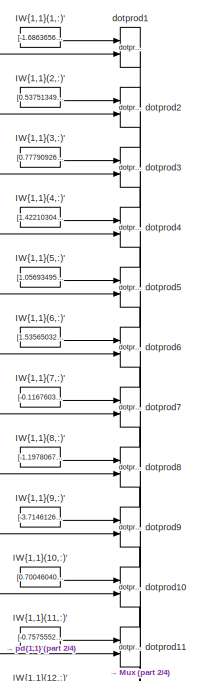
[diagram: bad_2 /Layer 1/IW{1,1} - part 1/4, top center region]
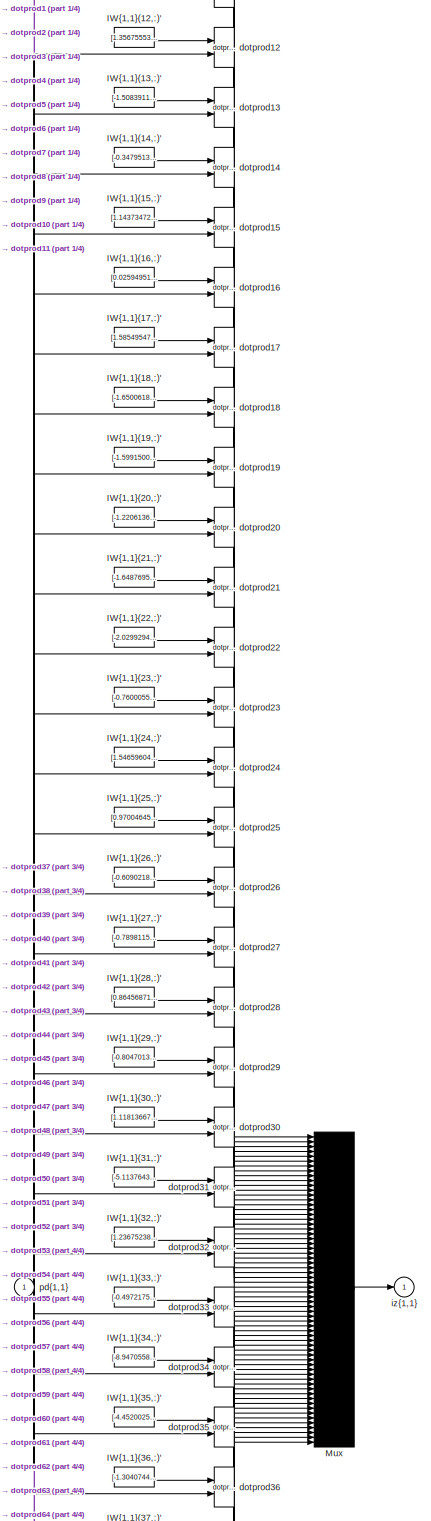
[diagram: bad_2 /Layer 1/IW{1,1} - part 2/4, full width, middle band]
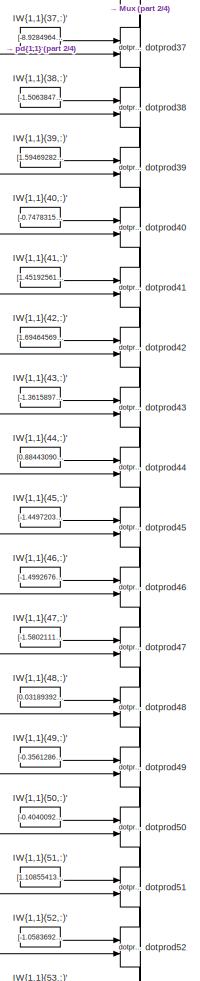
[diagram: bad_2 /Layer 1/IW{1,1} - part 3/4, bottom center region]
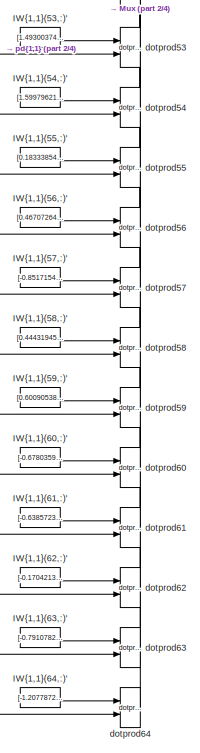
[diagram: bad_2 /Layer 1/IW{1,1} - part 4/4, bottom center region]
BLOCK [SubSystem] bad_2 /Layer 1/IW{1,1}
  Ports = [1, 1]
  RequestExecContextInheritance = off
BLOCK [Constant] bad_2 /Layer 1/IW{1,1}/IW{1,1}(1,:)'
  Value = [-1.6863656996378744157283335880492813885211944580078125;-0.470597093744810790472143935403437353670597076416015625;0.381528307050592763172147670047706924378871917724609375;-1.12689962205123261895778341568075120449066162109375;-1.149898204806820256607124974834732711315155029296875;-1.0865193518723830212735492750653065741062164306640625;-0.6023983324376900316821092928876169025897979736328125]
BLOCK [Constant] bad_2 /Layer 1/IW{1,1}/IW{1,1}(10,:)'
  Value = [0.70046040876794501972568696146481670439243316650390625;-0.59634747279149558085720173039590008556842803955078125;0.33402845316572282730049892052193172276020050048828125;-0.1546411702019059308810255970456637442111968994140625;1.35413836861219305518488909001462161540985107421875;1.7346283899615413393036078559816814959049224853515625;-0.56975117430301647214463400814565829932689666748046875]
BLOCK [Constant] bad_2 /Layer 1/IW{1,1}/IW{1,1}(11,:)'
  Value = [-0.75755526908276149544718691686284728348255157470703125;-0.296579563589438433002243300506961531937122344970703125;0.497779535965763575422471376441535539925098419189453125;0.1665504115849312238850643552723340690135955810546875;-1.643932170348186172503801572020165622234344482421875;0.8794875708418334880889233318157494068145751953125;1.1526104705362014701819362016976810991764068603515625]
BLOCK [Constant] bad_2 /Layer 1/IW{1,1}/IW{1,1}(12,:)'
  Value = [1.356755534102476179469931594212539494037628173828125;0.8249762999779475247663640402606688439846038818359375;0.11116932047618825751822413394620525650680065155029296875;-0.40444127320000544667522035524598322808742523193359375;-0.7395790815915237459421405219472944736480712890625;-1.102233156945345182720075172255747020244598388671875;1.5180689591781619807164815938449464738368988037109375]
BLOCK [Constant] bad_2 /Layer 1/IW{1,1}/IW{1,1}(13,:)'
  Value = [-1.508391195342500878950886544771492481231689453125;0.1745384352813305894880357982401619665324687957763671875;-0.35046267193310509657777629399788565933704376220703125;0.70755991279883534428307712005334906280040740966796875;0.21164846614004406699649507572758011519908905029296875;3.394560192280937638287241497891955077648162841796875;2.8592038307015368303609648137353360652923583984375]
BLOCK [Constant] bad_2 /Layer 1/IW{1,1}/IW{1,1}(14,:)'
  Value = [-0.347951367798633726113877173702348954975605010986328125;-1.1758278102151298316613292627152986824512481689453125;-1.4111353580198293666825293257716111838817596435546875;0.452708396797978529502159972253139130771160125732421875;0.57952339232880223374166916983085684478282928466796875;1.5762379928547864960108881859923712909221649169921875;0.9810342317283140545214337180368602275848388671875]
BLOCK [Constant] bad_2 /Layer 1/IW{1,1}/IW{1,1}(15,:)'
  Value = [1.14373472389301156226792954839766025543212890625;0.9770289905242410810615183436311781406402587890625;-0.918973607377620016478658726555295288562774658203125;0.872028597290672724540172566776163876056671142578125;1.4709013012625096195051810354925692081451416015625;-0.1290434951660533735573466174173518083989620208740234375;0.66656798656280236148319318090216256678104400634765625]
BLOCK [Constant] bad_2 /Layer 1/IW{1,1}/IW{1,1}(16,:)'
  Value = [0.025949518194994046493828676602788618765771389007568359375;1.056286903314246128360309739946387708187103271484375;1.3864161845839706455052464662003330886363983154296875;-0.62378102653036349156678852523327805101871490478515625;2.046193686105493458882165214163251221179962158203125;-0.0948604936613626492647455279438872821629047393798828125;1.4769159957528821269789887082879431545734405517578125]
BLOCK [Constant] bad_2 /Layer 1/IW{1,1}/IW{1,1}(17,:)'
  Value = [1.5854954755240395769533279235474765300750732421875;0.062584963321976549988079341346747241914272308349609375;-1.086219183721052861102407405269332230091094970703125;-0.472400812961043137239158795637194998562335968017578125;-0.2084756610371170937323626048964797519147396087646484375;-1.2682346351539524054174989942112006247043609619140625;-2.59195409337992455078847342520020902156829833984375]
BLOCK [Constant] bad_2 /Layer 1/IW{1,1}/IW{1,1}(18,:)'
  Value = [-1.6500618694364199701141160403494723141193389892578125;0.158471949334514750074021094405907206237316131591796875;1.605402587803847591629846647265367209911346435546875;-0.3344369037299077529468149805325083434581756591796875;0.357965741888847055474087710535968653857707977294921875;-2.016135923701856125234144201385788619518280029296875;-0.460005488291919728549572710107895545661449432373046875]
BLOCK [Constant] bad_2 /Layer 1/IW{1,1}/IW{1,1}(19,:)'
  Value = [-1.5991500455075655651171473436988890171051025390625;1.348245600949198763629510722239501774311065673828125;0.80807469706489853944475498792598955333232879638671875;-1.7624762240675149183033454391988925635814666748046875;-1.016806479705910870592333594686351716518402099609375;0.300813059873307808711473398943780921399593353271484375;-1.634726680080462291044796074857003986835479736328125]
BLOCK [Constant] bad_2 /Layer 1/IW{1,1}/IW{1,1}(2,:)'
  Value = [0.5375134930612259775983829968026839196681976318359375;-0.24811864763972335534703006487688980996608734130859375;-0.9050550568703263909497991335229016840457916259765625;-1.330177669034877663278848558547906577587127685546875;0.8445151037025706575178674029302783310413360595703125;0.453823539254982255553017012061900459229946136474609375;1.51432188940290313183822945575229823589324951171875]
BLOCK [Constant] bad_2 /Layer 1/IW{1,1}/IW{1,1}(20,:)'
  Value = [-1.2206136060051242520074765707249753177165985107421875;1.2143694024926621199966803033021278679370880126953125;0.01284061424074450959154081175483952392823994159698486328125;0.674556463178389353885222590179182589054107666015625;0.82271266002563281372061965157627128064632415771484375;1.4603421023320530824918250800692476332187652587890625;-1.023340866984355113089577571372501552104949951171875]
BLOCK [Constant] bad_2 /Layer 1/IW{1,1}/IW{1,1}(21,:)'
  Value = [-1.648769589442328875605880966759286820888519287109375;0.5674233186469184175848567974753677845001220703125;0.360630049005453423571765370070352219045162200927734375;0.72618846736561659671593815801315940916538238525390625;-1.6863477747584882937559314086684025824069976806640625;-0.543238509671011282620156634948216378688812255859375;-0.82507519282673491556323597251321189105510711669921875]
BLOCK [Constant] bad_2 /Layer 1/IW{1,1}/IW{1,1}(22,:)'
  Value = [-2.02992947885647989636481725028716027736663818359375;-0.78930300349707904761231702650547958910465240478515625;-1.600745458741919424738853194867260754108428955078125;2.151514262201442040378651654464192688465118408203125;1.4383445102898109180245000970899127423763275146484375;1.0715968603907735090530195520841516554355621337890625;0.29850111989870364848087547215982340276241302490234375]
BLOCK [Constant] bad_2 /Layer 1/IW{1,1}/IW{1,1}(23,:)'
  Value = [-0.7600055888729659869795796112157404422760009765625;0.71322247233798297116891262703575193881988525390625;1.917261913113857740853518407675437629222869873046875;0.056807101221510995781027730799905839376151561737060546875;0.6989265569105611586309123595128767192363739013671875;2.165339178672456288410330671467818319797515869140625;0.274757432287420166883151750880642794072628021240234375]
BLOCK [Constant] bad_2 /Layer 1/IW{1,1}/IW{1,1}(24,:)'
  Value = [1.546596045364299509827787915128283202648162841796875;-1.8043253491178485869994574386510066688060760498046875;-1.0873028546852918641008045597118325531482696533203125;0.489548897640237345996183648821897804737091064453125;-1.0685662650111333871194574385299347341060638427734375;-2.01145955325918013301134124048985540866851806640625;-1.086944648018185244353617235901765525341033935546875]
BLOCK [Constant] bad_2 /Layer 1/IW{1,1}/IW{1,1}(25,:)'
  Value = [0.97004645777546294471704868556116707623004913330078125;0.336271611140263881889467256769421510398387908935546875;0.2417062721643864764420328583582886494696140289306640625;1.4989475360339128418019072341849096119403839111328125;1.4380511250646048626578021867317147552967071533203125;1.1249383286835179518448057933710515499114990234375;0.2251758799012057166155642562443972565233707427978515625]
BLOCK [Constant] bad_2 /Layer 1/IW{1,1}/IW{1,1}(26,:)'
  Value = [-0.60902184225669453443430256811552681028842926025390625;1.4626237168885207751145571819506585597991943359375;-0.283646747149560118916866713334457017481327056884765625;-0.41578668224785364504469953317311592400074005126953125;1.8146939194076010526401887545944191515445709228515625;-0.94831384411612063001228989378432743251323699951171875;0.99177285614588306383865301540936343371868133544921875]
BLOCK [Constant] bad_2 /Layer 1/IW{1,1}/IW{1,1}(27,:)'
  Value = [-0.78981154746552861833919223499833606183528900146484375;-1.3508127899859114773306600909563712775707244873046875;0.4988288733380119577276445852476172149181365966796875;-0.761291513497599492410472521441988646984100341796875;1.513839332845589691345367100439034402370452880859375;1.038568147474759228998664184473454952239990234375;-1.2619104742456475065637278021313250064849853515625]
BLOCK [Constant] bad_2 /Layer 1/IW{1,1}/IW{1,1}(28,:)'
  Value = [0.86456871687262815129315640660934150218963623046875;0.033660231342696848855222668817077646963298320770263671875;0.68849562687325371879154545240453444421291351318359375;1.05512528935876037650132275302894413471221923828125;1.3310343837191738192160528342355974018573760986328125;1.4214566142145310667643798296921886503696441650390625;-0.91698163671545673825136191226192750036716461181640625]
BLOCK [Constant] bad_2 /Layer 1/IW{1,1}/IW{1,1}(29,:)'
  Value = [-0.80470131588495730223797863800427876412868499755859375;-1.6155846603753911683298838397604413330554962158203125;-0.29114476463801874928094548522494733333587646484375;0.75042474844354678520375045991386286914348602294921875;1.7495307116501146449394354931428097188472747802734375;-0.3413257555915460983442244469188153743743896484375;-0.382665686428625806403402975774952210485935211181640625]
BLOCK [Constant] bad_2 /Layer 1/IW{1,1}/IW{1,1}(3,:)'
  Value = [0.77790926379179115013329237626749090850353240966796875;1.597997887025701668761712426203303039073944091796875;-0.061513463120482343715611506240747985430061817169189453125;0.7694262824388911070627727895043790340423583984375;0.53571795086796225593417375421267934143543243408203125;1.255108578389512619111201274790801107883453369140625;-1.12287357758761885406784131191670894622802734375]
BLOCK [Constant] bad_2 /Layer 1/IW{1,1}/IW{1,1}(30,:)'
  Value = [1.11813667538101402243455595453269779682159423828125;-2.0011147436250649178646199288778007030487060546875;-1.2389603095632202300890867263660766184329986572265625;0.99632266524748314129311665965360589325428009033203125;-0.1464403285517131558801651181056513451039791107177734375;1.78125755432936383471087538055144250392913818359375;1.7380547403563877395527015323750674724578857421875]
BLOCK [Constant] bad_2 /Layer 1/IW{1,1}/IW{1,1}(31,:)'
  Value = [-5.1137643017961860181230804300867021083831787109375;1.3370606083956821930058822545106522738933563232421875;2.442518793233874330184107748209498822689056396484375;0.6028625806456482383310913064633496105670928955078125;-1.92576905446539026200980515568517148494720458984375;-0.6757333917518464350138174268067814409732818603515625;0.81038330323658624987359644364914856851100921630859375]
BLOCK [Constant] bad_2 /Layer 1/IW{1,1}/IW{1,1}(32,:)'
  Value = [1.2367523872787222760649683550582267343997955322265625;-0.784854563913853997547676044632680714130401611328125;-1.439473545848857671813902925350703299045562744140625;1.09236546200067241585429655970074236392974853515625;1.0496288292411153353356212392100133001804351806640625;0.06836094254987955254332376853199093602597713470458984375;-1.286462130941723902566309334360994398593902587890625]
BLOCK [Constant] bad_2 /Layer 1/IW{1,1}/IW{1,1}(33,:)'
  Value = [-0.4972175565835499355671345256268978118896484375;1.01628497643774817760231599095277488231658935546875;1.705775427614244943441690338659100234508514404296875;-0.155163647387632275265190173740847967565059661865234375;-0.38711282558761184180440295676817186176776885986328125;0.6706206203731606141360543915652669966220855712890625;-1.11530850752759480570830419310368597507476806640625]
BLOCK [Constant] bad_2 /Layer 1/IW{1,1}/IW{1,1}(34,:)'
  Value = [-8.9470558292806234845784274511970579624176025390625;5.86025071287466925440412524039857089519500732421875;0.89003059289749819615877868272946216166019439697265625;-0.006319623623432799215671185066867110435850918292999267578125;1.1887800724449284484052213883842341601848602294921875;3.9517133987949062401412447798065841197967529296875;2.4410282631594579783040899201296269893646240234375]
BLOCK [Constant] bad_2 /Layer 1/IW{1,1}/IW{1,1}(35,:)'
  Value = [-4.45200253518322863754974605399183928966522216796875;1.0956730899398532397270855653914622962474822998046875;-0.296116424887555407252648365101777017116546630859375;1.494172243435615943241145942010916769504547119140625;-1.405105462929962190088417628430761396884918212890625;-1.8065586582246557778574924668646417558193206787109375;-2.091504311274504868123358392040245234966278076171875]
BLOCK [Constant] bad_2 /Layer 1/IW{1,1}/IW{1,1}(36,:)'
  Value = [-1.3040744387684621852230293370666913688182830810546875;-1.0839533773058225296637147039291448891162872314453125;1.1996912135972817026186021394096314907073974609375;0.299632799474621902557913699638447724282741546630859375;-1.0338437717971202811639841456781141459941864013671875;1.060633860379795123662916012108325958251953125;0.80119404908470548409837874714867211878299713134765625]
BLOCK [Constant] bad_2 /Layer 1/IW{1,1}/IW{1,1}(37,:)'
  Value = [-8.928496430556503327125028590671718120574951171875;6.41281098021677653520100648165680468082427978515625;1.292318686852158560185444002854637801647186279296875;-1.0169657309557076363404348740004934370517730712890625;-1.4447233934709735603263425218756310641765594482421875;-1.8212597060116382241545807119109667837619781494140625;-2.000066902793254275394474461791105568408966064453125]
BLOCK [Constant] bad_2 /Layer 1/IW{1,1}/IW{1,1}(38,:)'
  Value = [-1.5063847613337173481085073944996111094951629638671875;-0.92097648878295623742218367624445818364620208740234375;-0.9838165288434570499020992428995668888092041015625;-0.33928758212320830889296985333203338086605072021484375;-0.60176867956408575111026948434300720691680908203125;0.52167233477996066692838894596206955611705780029296875;-0.901664409713287984260432494920678436756134033203125]
BLOCK [Constant] bad_2 /Layer 1/IW{1,1}/IW{1,1}(39,:)'
  Value = [1.594692827829733428046665721922181546688079833984375;-0.431588743177177491805451836626161821186542510986328125;-0.5767038172813823138085354003123939037322998046875;-1.4856881211963273159426535130478441715240478515625;-1.537250986312717504489455677685327827930450439453125;-1.5160546591084627099377257763990201056003570556640625;0.02677171951358392476549852290190756320953369140625]
BLOCK [Constant] bad_2 /Layer 1/IW{1,1}/IW{1,1}(4,:)'
  Value = [1.4221030439802160305617917401832528412342071533203125;-0.719802079075858358692130423150956630706787109375;0.390203414206296839150667210560641251504421234130859375;-1.40290775448764382105082404450513422489166259765625;-0.246566272133671715582892147722304798662662506103515625;0.978533484262781971807498848647810518741607666015625;0.72315047260570686216141211843932978808879852294921875]
BLOCK [Constant] bad_2 /Layer 1/IW{1,1}/IW{1,1}(40,:)'
  Value = [-0.74783159926091802294223498392966575920581817626953125;-0.0156016786915698472959501685863870079629123210906982421875;1.205674453621349950793728567077778279781341552734375;-0.642379166939826884430431164219044148921966552734375;-2.3466396920997372177453144104219973087310791015625;2.003758055175307806194950899225659668445587158203125;0.457948677082519572945074060044134967029094696044921875]
BLOCK [Constant] bad_2 /Layer 1/IW{1,1}/IW{1,1}(41,:)'
  Value = [1.451925615721403328706173851969651877880096435546875;0.893887593572912475536895726691000163555145263671875;-0.47449044571051024465901946314261294901371002197265625;-1.1508731751823262356992927379906177520751953125;-0.45410349609860478636846892186440527439117431640625;0.194166359333692917221725338094984181225299835205078125;-1.4499390721543312654517876580939628183841705322265625]
BLOCK [Constant] bad_2 /Layer 1/IW{1,1}/IW{1,1}(42,:)'
  Value = [1.6946456962588474226549806189723312854766845703125;0.425834425212213874001321300966083072125911712646484375;-0.12820727712798618558309726722654886543750762939453125;0.82693407426810916494019920719438232481479644775390625;-0.686592815915464171894200262613594532012939453125;-1.758457794378568639359627923113293945789337158203125;-1.16195091792224758364682202227413654327392578125]
BLOCK [Constant] bad_2 /Layer 1/IW{1,1}/IW{1,1}(43,:)'
  Value = [-1.3615897324638819299025271902792155742645263671875;0.278290236737857521465144827743642963469028472900390625;-1.0667263436467611104063735183444805443286895751953125;0.5094403583366851062663727134349755942821502685546875;-0.3608847114676769773922160311485640704631805419921875;-1.6444246535543662890432869971846230328083038330078125;0.2014908543440262211898783561991876922547817230224609375]
BLOCK [Constant] bad_2 /Layer 1/IW{1,1}/IW{1,1}(44,:)'
  Value = [0.88443090493589926470718864948139525949954986572265625;-0.85802238734703450973029248416423797607421875;1.324391165572524453608593830722384154796600341796875;0.461782793456212814486860906981746666133403778076171875;1.661385307581995096626314989407546818256378173828125;0.945152587292386936468346902984194457530975341796875;-0.9266743481198551624089532197103835642337799072265625]
BLOCK [Constant] bad_2 /Layer 1/IW{1,1}/IW{1,1}(45,:)'
  Value = [-1.4497203745100188942984686946147121489048004150390625;-1.0724545486426311224903429319965653121471405029296875;-0.1484734504477010219591903705804725177586078643798828125;1.16702814752873873516136882244609296321868896484375;-0.2635918282285700797729077748954296112060546875;0.425653140911482708030888488792697899043560028076171875;-1.2814010493250835853729086011298932135105133056640625]
BLOCK [Constant] bad_2 /Layer 1/IW{1,1}/IW{1,1}(46,:)'
  Value = [-1.499267646611195825556706040515564382076263427734375;1.3174488089667761858692074383725412189960479736328125;-0.5399640277496706719517760575399734079837799072265625;0.74937954858944155756006466617691330611705780029296875;0.827336789688755569471823037019930779933929443359375;0.69217529344171391247897417997592128813266754150390625;-0.0098935374971492288931340652879953267984092235565185546875]
BLOCK [Constant] bad_2 /Layer 1/IW{1,1}/IW{1,1}(47,:)'
  Value = [-1.580211193585773887804180048988200724124908447265625;2.390564368106120607393449972732923924922943115234375;1.6877873845365360949699606862850487232208251953125;-1.2944633535895053721986869277316145598888397216796875;-1.7480708568408029890406396589241921901702880859375;-1.3227414561588266561642512897378765046596527099609375;0.0080150553368121095487719429684148053638637065887451171875]
BLOCK [Constant] bad_2 /Layer 1/IW{1,1}/IW{1,1}(48,:)'
  Value = [0.031893926326842854390708481560068321414291858673095703125;0.70069625805801416529305924996151588857173919677734375;0.049271889340007597735127120586184901185333728790283203125;-0.74807700353605144361068823855021037161350250244140625;-1.6080986723792289883050443677348084747791290283203125;2.6854530240896803405803439090959727764129638671875;1.0569473231406949498278891041991300880908966064453125]
BLOCK [Constant] bad_2 /Layer 1/IW{1,1}/IW{1,1}(49,:)'
  Value = [-0.35612864465414595382952711588586680591106414794921875;1.9304518881102905591973240007064305245876312255859375;-0.9617104874235191669384903434547595679759979248046875;1.1702147778362237406923895832733251154422760009765625;-0.4409392174295903021885578709770925343036651611328125;-0.38543466310173968292218660280923359096050262451171875;-0.61003965689040173803192601553746499121189117431640625]
BLOCK [Constant] bad_2 /Layer 1/IW{1,1}/IW{1,1}(5,:)'
  Value = [1.05693495631027278847113848314620554447174072265625;-0.91310152750909578944771283204318024218082427978515625;1.2156917518958338941814645295380614697933197021484375;0.46715729048266985135029472075984813272953033447265625;0.7054023909970232875110696113551966845989227294921875;-1.2605475334731870429294531277264468371868133544921875;-0.67153241564735266511121380972326733171939849853515625]
BLOCK [Constant] bad_2 /Layer 1/IW{1,1}/IW{1,1}(50,:)'
  Value = [-0.404009253806436208211749772090115584433078765869140625;-1.2315947097517219166462609791778959333896636962890625;-1.4211961443024956341929510017507709562778472900390625;-0.8014760631940216484281336306594312191009521484375;0.38100646019661887908824837722931988537311553955078125;-1.6770917838081056405741264825337566435337066650390625;-1.1452718916317794484172054580994881689548492431640625]
BLOCK [Constant] bad_2 /Layer 1/IW{1,1}/IW{1,1}(51,:)'
  Value = [1.1085541343952647341808415148989297449588775634765625;-0.07407285789749377957758014190403628163039684295654296875;-0.9065560472035958383685283479280769824981689453125;1.3602585164200260425815258713555522263050079345703125;-0.963885894612861005015247428673319518566131591796875;1.4465559289898430872511880806996487081050872802734375;-0.027960827926225194361986581270684837363660335540771484375]
BLOCK [Constant] bad_2 /Layer 1/IW{1,1}/IW{1,1}(52,:)'
  Value = [-1.0583692937576234527341512148268520832061767578125;-1.8322459544312652557351839277544058859348297119140625;1.5074415180687783522017753057298250496387481689453125;-0.73959332194639426649729330165428109467029571533203125;0.937981466166692978703167682397179305553436279296875;-0.903262305677095422851152761722914874553680419921875;0.351679789348338101007129807840101420879364013671875]
BLOCK [Constant] bad_2 /Layer 1/IW{1,1}/IW{1,1}(53,:)'
  Value = [1.493003743566507779405583278276026248931884765625;1.040494323473815985181545329396612942218780517578125;1.6685042581210429712967879822826944291591644287109375;-0.1267792601195900370480984520327183417975902557373046875;-1.3199548235819802410873080589226447045803070068359375;-0.83687794665296910689988862941390834748744964599609375;-0.05751615341538494907691614344003028236329555511474609375]
BLOCK [Constant] bad_2 /Layer 1/IW{1,1}/IW{1,1}(54,:)'
  Value = [1.5997962175819739893967152966069988906383514404296875;-1.3240704130395404281017590619740076363086700439453125;0.43843418447456283804086751842987723648548126220703125;0.29941738624136682300758138808305375277996063232421875;1.12194245825770710922597572789527475833892822265625;-0.131693466742203668662369864250649698078632354736328125;0.77083193753003487191932663336046971380710601806640625]
BLOCK [Constant] bad_2 /Layer 1/IW{1,1}/IW{1,1}(55,:)'
  Value = [0.18333854107646063713588091559358872473239898681640625;0.61476214805657836137697813683189451694488525390625;1.053931311637554824045537316123954951763153076171875;-0.26875543923902178722329381344025023281574249267578125;-1.902654712044029139406120521016418933868408203125;-1.09195876341819886334860711940564215183258056640625;0.315464766408472929715145482987281866371631622314453125]
BLOCK [Constant] bad_2 /Layer 1/IW{1,1}/IW{1,1}(56,:)'
  Value = [0.4670726446264883424674962952849455177783966064453125;-0.84659853182582989195026357265305705368518829345703125;-0.34927575690305712186045639100484549999237060546875;-0.75239684609279333660225574931246228516101837158203125;-1.147014630769624066175538246170617640018463134765625;1.4354243192586386701492529027746059000492095947265625;1.133136993498858213769153735483996570110321044921875]
BLOCK [Constant] bad_2 /Layer 1/IW{1,1}/IW{1,1}(57,:)'
  Value = [-0.85171547072790987353840819196193479001522064208984375;0.425745603454170284951629810166195966303348541259765625;-1.2662287700325995931649458725587464869022369384765625;-1.0407026433754318350821677086059935390949249267578125;1.2629609214528649818731764753465540707111358642578125;-0.10416975369531868145234199118931428529322147369384765625;1.05206010681049999533342997892759740352630615234375]
BLOCK [Constant] bad_2 /Layer 1/IW{1,1}/IW{1,1}(58,:)'
  Value = [0.444319455656049189240519581289845518767833709716796875;0.6265749100594339981995517518953420221805572509765625;0.9397420640044160666803918502409942448139190673828125;-1.2777767800898207628534919422236271202564239501953125;-1.06186091573441832025537223671562969684600830078125;-0.77288868311795388965634856504038907587528228759765625;1.2593236317262659351712272837175987660884857177734375]
BLOCK [Constant] bad_2 /Layer 1/IW{1,1}/IW{1,1}(59,:)'
  Value = [0.6009053816497498257120923881302587687969207763671875;0.308150927658255413543741951798438094556331634521484375;-1.40244011299734072650835514650680124759674072265625;-1.0193265064390828467111305144499056041240692138671875;-0.383269137858561759202302710036747157573699951171875;-1.9544121939296559276044717989861965179443359375;-0.66119992097470714487172926965286023914813995361328125]
BLOCK [Constant] bad_2 /Layer 1/IW{1,1}/IW{1,1}(6,:)'
  Value = [1.535650320196232154756899035419337451457977294921875;1.16959402883453567056903921184130012989044189453125;-0.60943990596203356790994121183757670223712921142578125;-0.318550588995249406298881922339205630123615264892578125;1.432218515173481865332405504886992275714874267578125;0.61686536373397948818109171043033711612224578857421875;0.489942496690119411173469643472344614565372467041015625]
BLOCK [Constant] bad_2 /Layer 1/IW{1,1}/IW{1,1}(60,:)'
  Value = [-0.67803598068871784310118755456642247736454010009765625;1.3523214381693391406003001975477673113346099853515625;1.3965897080101579152966451147221960127353668212890625;1.0263464080657056509693347834399901330471038818359375;-0.10053769535427738157640220606481307186186313629150390625;-0.10147476457780069125647059991024434566497802734375;1.0341403343742834319840540047152899205684661865234375]
BLOCK [Constant] bad_2 /Layer 1/IW{1,1}/IW{1,1}(61,:)'
  Value = [-0.63857231918558243766170789967873133718967437744140625;0.98455177052132236692472133654518984258174896240234375;-1.24228157194427790699364777537994086742401123046875;-0.35251749058152892501993846963159739971160888671875;-0.410375404744263760914435579252312891185283660888671875;-1.1850465837103227872972865952760912477970123291015625;-1.256024188662047347264660857035778462886810302734375]
BLOCK [Constant] bad_2 /Layer 1/IW{1,1}/IW{1,1}(62,:)'
  Value = [-0.17042134725705959663599742270889692008495330810546875;1.0560137602958992175672392477281391620635986328125;0.63897153620610913637989369817660190165042877197265625;-0.65316188570588862294385990026057697832584381103515625;0.6317779224873574239751405912102200090885162353515625;-1.987904298449198581266728069749660789966583251953125;1.018946150341101475333971393411047756671905517578125]
BLOCK [Constant] bad_2 /Layer 1/IW{1,1}/IW{1,1}(63,:)'
  Value = [-0.7910782245755407782183965537115000188350677490234375;0.738394424065875742968501072027720510959625244140625;0.39570458294022958778413112668204121291637420654296875;0.6948746501498452854406195910996757447719573974609375;0.6104256817513853405898771598003804683685302734375;1.8595814179841354540911879666964523494243621826171875;-1.062203346308225437866212814697064459323883056640625]
BLOCK [Constant] bad_2 /Layer 1/IW{1,1}/IW{1,1}(64,:)'
  Value = [-1.207787224619776278444760464481078088283538818359375;1.0769569352047139165762246193480677902698516845703125;-1.3487434395624877669916941158589906990528106689453125;-0.9914292861352447250311570314806886017322540283203125;0.96162714418659422932478264556266367435455322265625;0.09192610714386821590959897321226890198886394500732421875;0.366031925305908389933762236978509463369846343994140625]
BLOCK [Constant] bad_2 /Layer 1/IW{1,1}/IW{1,1}(7,:)'
  Value = [-0.11676038563379816104248476449356530793011188507080078125;1.261018417038072936264825329999439418315887451171875;0.61587380171800443218188547689351253211498260498046875;-1.3041433149450203377028856266406364738941192626953125;-1.0161732097028159937934788104030303657054901123046875;1.043136290417156164522793915239162743091583251953125;0.9211484263394267291147343712509609758853912353515625]
BLOCK [Constant] bad_2 /Layer 1/IW{1,1}/IW{1,1}(8,:)'
  Value = [-1.1978067316522420515667590734665282070636749267578125;-0.1523005135221014716417897716382867656648159027099609375;0.3939518184864965189007079970906488597393035888671875;1.28598090633823591844020484131760895252227783203125;0.5031145563842418511057985597290098667144775390625;-2.156899122677105484768844689824618399143218994140625;-0.90123718807132136010551448634942062199115753173828125]
BLOCK [Constant] bad_2 /Layer 1/IW{1,1}/IW{1,1}(9,:)'
  Value = [-3.7146126207903051863468135707080364227294921875;1.8050017234581112735014585268800146877765655517578125;0.5600911336280807173437779056257568299770355224609375;-0.485969311568317241523118354962207376956939697265625;0.380280107309155679384815584853640757501125335693359375;2.553903138663950134201741093420423567295074462890625;1.7744120992394882829756852515856735408306121826171875]
BLOCK [Mux] bad_2 /Layer 1/IW{1,1}/Mux
  Inputs = 64
  Ports = [64, 1]
BLOCK [Reference] bad_2 /Layer 1/IW{1,1}/dotprod1  REF=neural/Weight Functions/dotprod
  Ports = [2, 1]
  SourceBlock = neural/Weight Functions/dotprod
  SourceProductBaseCode = NN
  SourceProductName = Neural Network Toolbox
  SourceType = DOTPROD
BLOCK [Reference] bad_2 /Layer 1/IW{1,1}/dotprod10  REF=neural/Weight Functions/dotprod
  Ports = [2, 1]
  SourceBlock = neural/Weight Functions/dotprod
  SourceProductBaseCode = NN
  SourceProductName = Neural Network Toolbox
  SourceType = DOTPROD
BLOCK [Reference] bad_2 /Layer 1/IW{1,1}/dotprod11  REF=neural/Weight Functions/dotprod
  Ports = [2, 1]
  SourceBlock = neural/Weight Functions/dotprod
  SourceProductBaseCode = NN
  SourceProductName = Neural Network Toolbox
  SourceType = DOTPROD
BLOCK [Reference] bad_2 /Layer 1/IW{1,1}/dotprod12  REF=neural/Weight Functions/dotprod
  Ports = [2, 1]
  SourceBlock = neural/Weight Functions/dotprod
  SourceProductBaseCode = NN
  SourceProductName = Neural Network Toolbox
  SourceType = DOTPROD
BLOCK [Reference] bad_2 /Layer 1/IW{1,1}/dotprod13  REF=neural/Weight Functions/dotprod
  Ports = [2, 1]
  SourceBlock = neural/Weight Functions/dotprod
  SourceProductBaseCode = NN
  SourceProductName = Neural Network Toolbox
  SourceType = DOTPROD
BLOCK [Reference] bad_2 /Layer 1/IW{1,1}/dotprod14  REF=neural/Weight Functions/dotprod
  Ports = [2, 1]
  SourceBlock = neural/Weight Functions/dotprod
  SourceProductBaseCode = NN
  SourceProductName = Neural Network Toolbox
  SourceType = DOTPROD
BLOCK [Reference] bad_2 /Layer 1/IW{1,1}/dotprod15  REF=neural/Weight Functions/dotprod
  Ports = [2, 1]
  SourceBlock = neural/Weight Functions/dotprod
  SourceProductBaseCode = NN
  SourceProductName = Neural Network Toolbox
  SourceType = DOTPROD
BLOCK [Reference] bad_2 /Layer 1/IW{1,1}/dotprod16  REF=neural/Weight Functions/dotprod
  Ports = [2, 1]
  SourceBlock = neural/Weight Functions/dotprod
  SourceProductBaseCode = NN
  SourceProductName = Neural Network Toolbox
  SourceType = DOTPROD
BLOCK [Reference] bad_2 /Layer 1/IW{1,1}/dotprod17  REF=neural/Weight Functions/dotprod
  Ports = [2, 1]
  SourceBlock = neural/Weight Functions/dotprod
  SourceProductBaseCode = NN
  SourceProductName = Neural Network Toolbox
  SourceType = DOTPROD
BLOCK [Reference] bad_2 /Layer 1/IW{1,1}/dotprod18  REF=neural/Weight Functions/dotprod
  Ports = [2, 1]
  SourceBlock = neural/Weight Functions/dotprod
  SourceProductBaseCode = NN
  SourceProductName = Neural Network Toolbox
  SourceType = DOTPROD
BLOCK [Reference] bad_2 /Layer 1/IW{1,1}/dotprod19  REF=neural/Weight Functions/dotprod
  Ports = [2, 1]
  SourceBlock = neural/Weight Functions/dotprod
  SourceProductBaseCode = NN
  SourceProductName = Neural Network Toolbox
  SourceType = DOTPROD
BLOCK [Reference] bad_2 /Layer 1/IW{1,1}/dotprod2  REF=neural/Weight Functions/dotprod
  Ports = [2, 1]
  SourceBlock = neural/Weight Functions/dotprod
  SourceProductBaseCode = NN
  SourceProductName = Neural Network Toolbox
  SourceType = DOTPROD
BLOCK [Reference] bad_2 /Layer 1/IW{1,1}/dotprod20  REF=neural/Weight Functions/dotprod
  Ports = [2, 1]
  SourceBlock = neural/Weight Functions/dotprod
  SourceProductBaseCode = NN
  SourceProductName = Neural Network Toolbox
  SourceType = DOTPROD
BLOCK [Reference] bad_2 /Layer 1/IW{1,1}/dotprod21  REF=neural/Weight Functions/dotprod
  Ports = [2, 1]
  SourceBlock = neural/Weight Functions/dotprod
  SourceProductBaseCode = NN
  SourceProductName = Neural Network Toolbox
  SourceType = DOTPROD
BLOCK [Reference] bad_2 /Layer 1/IW{1,1}/dotprod22  REF=neural/Weight Functions/dotprod
  Ports = [2, 1]
  SourceBlock = neural/Weight Functions/dotprod
  SourceProductBaseCode = NN
  SourceProductName = Neural Network Toolbox
  SourceType = DOTPROD
BLOCK [Reference] bad_2 /Layer 1/IW{1,1}/dotprod23  REF=neural/Weight Functions/dotprod
  Ports = [2, 1]
  SourceBlock = neural/Weight Functions/dotprod
  SourceProductBaseCode = NN
  SourceProductName = Neural Network Toolbox
  SourceType = DOTPROD
BLOCK [Reference] bad_2 /Layer 1/IW{1,1}/dotprod24  REF=neural/Weight Functions/dotprod
  Ports = [2, 1]
  SourceBlock = neural/Weight Functions/dotprod
  SourceProductBaseCode = NN
  SourceProductName = Neural Network Toolbox
  SourceType = DOTPROD
BLOCK [Reference] bad_2 /Layer 1/IW{1,1}/dotprod25  REF=neural/Weight Functions/dotprod
  Ports = [2, 1]
  SourceBlock = neural/Weight Functions/dotprod
  SourceProductBaseCode = NN
  SourceProductName = Neural Network Toolbox
  SourceType = DOTPROD
BLOCK [Reference] bad_2 /Layer 1/IW{1,1}/dotprod26  REF=neural/Weight Functions/dotprod
  Ports = [2, 1]
  SourceBlock = neural/Weight Functions/dotprod
  SourceProductBaseCode = NN
  SourceProductName = Neural Network Toolbox
  SourceType = DOTPROD
BLOCK [Reference] bad_2 /Layer 1/IW{1,1}/dotprod27  REF=neural/Weight Functions/dotprod
  Ports = [2, 1]
  SourceBlock = neural/Weight Functions/dotprod
  SourceProductBaseCode = NN
  SourceProductName = Neural Network Toolbox
  SourceType = DOTPROD
BLOCK [Reference] bad_2 /Layer 1/IW{1,1}/dotprod28  REF=neural/Weight Functions/dotprod
  Ports = [2, 1]
  SourceBlock = neural/Weight Functions/dotprod
  SourceProductBaseCode = NN
  SourceProductName = Neural Network Toolbox
  SourceType = DOTPROD
BLOCK [Reference] bad_2 /Layer 1/IW{1,1}/dotprod29  REF=neural/Weight Functions/dotprod
  Ports = [2, 1]
  SourceBlock = neural/Weight Functions/dotprod
  SourceProductBaseCode = NN
  SourceProductName = Neural Network Toolbox
  SourceType = DOTPROD
BLOCK [Reference] bad_2 /Layer 1/IW{1,1}/dotprod3  REF=neural/Weight Functions/dotprod
  Ports = [2, 1]
  SourceBlock = neural/Weight Functions/dotprod
  SourceProductBaseCode = NN
  SourceProductName = Neural Network Toolbox
  SourceType = DOTPROD
BLOCK [Reference] bad_2 /Layer 1/IW{1,1}/dotprod30  REF=neural/Weight Functions/dotprod
  Ports = [2, 1]
  SourceBlock = neural/Weight Functions/dotprod
  SourceProductBaseCode = NN
  SourceProductName = Neural Network Toolbox
  SourceType = DOTPROD
BLOCK [Reference] bad_2 /Layer 1/IW{1,1}/dotprod31  REF=neural/Weight Functions/dotprod
  Ports = [2, 1]
  SourceBlock = neural/Weight Functions/dotprod
  SourceProductBaseCode = NN
  SourceProductName = Neural Network Toolbox
  SourceType = DOTPROD
BLOCK [Reference] bad_2 /Layer 1/IW{1,1}/dotprod32  REF=neural/Weight Functions/dotprod
  Ports = [2, 1]
  SourceBlock = neural/Weight Functions/dotprod
  SourceProductBaseCode = NN
  SourceProductName = Neural Network Toolbox
  SourceType = DOTPROD
BLOCK [Reference] bad_2 /Layer 1/IW{1,1}/dotprod33  REF=neural/Weight Functions/dotprod
  Ports = [2, 1]
  SourceBlock = neural/Weight Functions/dotprod
  SourceProductBaseCode = NN
  SourceProductName = Neural Network Toolbox
  SourceType = DOTPROD
BLOCK [Reference] bad_2 /Layer 1/IW{1,1}/dotprod34  REF=neural/Weight Functions/dotprod
  Ports = [2, 1]
  SourceBlock = neural/Weight Functions/dotprod
  SourceProductBaseCode = NN
  SourceProductName = Neural Network Toolbox
  SourceType = DOTPROD
BLOCK [Reference] bad_2 /Layer 1/IW{1,1}/dotprod35  REF=neural/Weight Functions/dotprod
  Ports = [2, 1]
  SourceBlock = neural/Weight Functions/dotprod
  SourceProductBaseCode = NN
  SourceProductName = Neural Network Toolbox
  SourceType = DOTPROD
BLOCK [Reference] bad_2 /Layer 1/IW{1,1}/dotprod36  REF=neural/Weight Functions/dotprod
  Ports = [2, 1]
  SourceBlock = neural/Weight Functions/dotprod
  SourceProductBaseCode = NN
  SourceProductName = Neural Network Toolbox
  SourceType = DOTPROD
BLOCK [Reference] bad_2 /Layer 1/IW{1,1}/dotprod37  REF=neural/Weight Functions/dotprod
  Ports = [2, 1]
  SourceBlock = neural/Weight Functions/dotprod
  SourceProductBaseCode = NN
  SourceProductName = Neural Network Toolbox
  SourceType = DOTPROD
BLOCK [Reference] bad_2 /Layer 1/IW{1,1}/dotprod38  REF=neural/Weight Functions/dotprod
  Ports = [2, 1]
  SourceBlock = neural/Weight Functions/dotprod
  SourceProductBaseCode = NN
  SourceProductName = Neural Network Toolbox
  SourceType = DOTPROD
BLOCK [Reference] bad_2 /Layer 1/IW{1,1}/dotprod39  REF=neural/Weight Functions/dotprod
  Ports = [2, 1]
  SourceBlock = neural/Weight Functions/dotprod
  SourceProductBaseCode = NN
  SourceProductName = Neural Network Toolbox
  SourceType = DOTPROD
BLOCK [Reference] bad_2 /Layer 1/IW{1,1}/dotprod4  REF=neural/Weight Functions/dotprod
  Ports = [2, 1]
  SourceBlock = neural/Weight Functions/dotprod
  SourceProductBaseCode = NN
  SourceProductName = Neural Network Toolbox
  SourceType = DOTPROD
BLOCK [Reference] bad_2 /Layer 1/IW{1,1}/dotprod40  REF=neural/Weight Functions/dotprod
  Ports = [2, 1]
  SourceBlock = neural/Weight Functions/dotprod
  SourceProductBaseCode = NN
  SourceProductName = Neural Network Toolbox
  SourceType = DOTPROD
BLOCK [Reference] bad_2 /Layer 1/IW{1,1}/dotprod41  REF=neural/Weight Functions/dotprod
  Ports = [2, 1]
  SourceBlock = neural/Weight Functions/dotprod
  SourceProductBaseCode = NN
  SourceProductName = Neural Network Toolbox
  SourceType = DOTPROD
BLOCK [Reference] bad_2 /Layer 1/IW{1,1}/dotprod42  REF=neural/Weight Functions/dotprod
  Ports = [2, 1]
  SourceBlock = neural/Weight Functions/dotprod
  SourceProductBaseCode = NN
  SourceProductName = Neural Network Toolbox
  SourceType = DOTPROD
BLOCK [Reference] bad_2 /Layer 1/IW{1,1}/dotprod43  REF=neural/Weight Functions/dotprod
  Ports = [2, 1]
  SourceBlock = neural/Weight Functions/dotprod
  SourceProductBaseCode = NN
  SourceProductName = Neural Network Toolbox
  SourceType = DOTPROD
BLOCK [Reference] bad_2 /Layer 1/IW{1,1}/dotprod44  REF=neural/Weight Functions/dotprod
  Ports = [2, 1]
  SourceBlock = neural/Weight Functions/dotprod
  SourceProductBaseCode = NN
  SourceProductName = Neural Network Toolbox
  SourceType = DOTPROD
BLOCK [Reference] bad_2 /Layer 1/IW{1,1}/dotprod45  REF=neural/Weight Functions/dotprod
  Ports = [2, 1]
  SourceBlock = neural/Weight Functions/dotprod
  SourceProductBaseCode = NN
  SourceProductName = Neural Network Toolbox
  SourceType = DOTPROD
BLOCK [Reference] bad_2 /Layer 1/IW{1,1}/dotprod46  REF=neural/Weight Functions/dotprod
  Ports = [2, 1]
  SourceBlock = neural/Weight Functions/dotprod
  SourceProductBaseCode = NN
  SourceProductName = Neural Network Toolbox
  SourceType = DOTPROD
BLOCK [Reference] bad_2 /Layer 1/IW{1,1}/dotprod47  REF=neural/Weight Functions/dotprod
  Ports = [2, 1]
  SourceBlock = neural/Weight Functions/dotprod
  SourceProductBaseCode = NN
  SourceProductName = Neural Network Toolbox
  SourceType = DOTPROD
BLOCK [Reference] bad_2 /Layer 1/IW{1,1}/dotprod48  REF=neural/Weight Functions/dotprod
  Ports = [2, 1]
  SourceBlock = neural/Weight Functions/dotprod
  SourceProductBaseCode = NN
  SourceProductName = Neural Network Toolbox
  SourceType = DOTPROD
BLOCK [Reference] bad_2 /Layer 1/IW{1,1}/dotprod49  REF=neural/Weight Functions/dotprod
  Ports = [2, 1]
  SourceBlock = neural/Weight Functions/dotprod
  SourceProductBaseCode = NN
  SourceProductName = Neural Network Toolbox
  SourceType = DOTPROD
BLOCK [Reference] bad_2 /Layer 1/IW{1,1}/dotprod5  REF=neural/Weight Functions/dotprod
  Ports = [2, 1]
  SourceBlock = neural/Weight Functions/dotprod
  SourceProductBaseCode = NN
  SourceProductName = Neural Network Toolbox
  SourceType = DOTPROD
BLOCK [Reference] bad_2 /Layer 1/IW{1,1}/dotprod50  REF=neural/Weight Functions/dotprod
  Ports = [2, 1]
  SourceBlock = neural/Weight Functions/dotprod
  SourceProductBaseCode = NN
  SourceProductName = Neural Network Toolbox
  SourceType = DOTPROD
BLOCK [Reference] bad_2 /Layer 1/IW{1,1}/dotprod51  REF=neural/Weight Functions/dotprod
  Ports = [2, 1]
  SourceBlock = neural/Weight Functions/dotprod
  SourceProductBaseCode = NN
  SourceProductName = Neural Network Toolbox
  SourceType = DOTPROD
BLOCK [Reference] bad_2 /Layer 1/IW{1,1}/dotprod52  REF=neural/Weight Functions/dotprod
  Ports = [2, 1]
  SourceBlock = neural/Weight Functions/dotprod
  SourceProductBaseCode = NN
  SourceProductName = Neural Network Toolbox
  SourceType = DOTPROD
BLOCK [Reference] bad_2 /Layer 1/IW{1,1}/dotprod53  REF=neural/Weight Functions/dotprod
  Ports = [2, 1]
  SourceBlock = neural/Weight Functions/dotprod
  SourceProductBaseCode = NN
  SourceProductName = Neural Network Toolbox
  SourceType = DOTPROD
BLOCK [Reference] bad_2 /Layer 1/IW{1,1}/dotprod54  REF=neural/Weight Functions/dotprod
  Ports = [2, 1]
  SourceBlock = neural/Weight Functions/dotprod
  SourceProductBaseCode = NN
  SourceProductName = Neural Network Toolbox
  SourceType = DOTPROD
BLOCK [Reference] bad_2 /Layer 1/IW{1,1}/dotprod55  REF=neural/Weight Functions/dotprod
  Ports = [2, 1]
  SourceBlock = neural/Weight Functions/dotprod
  SourceProductBaseCode = NN
  SourceProductName = Neural Network Toolbox
  SourceType = DOTPROD
BLOCK [Reference] bad_2 /Layer 1/IW{1,1}/dotprod56  REF=neural/Weight Functions/dotprod
  Ports = [2, 1]
  SourceBlock = neural/Weight Functions/dotprod
  SourceProductBaseCode = NN
  SourceProductName = Neural Network Toolbox
  SourceType = DOTPROD
BLOCK [Reference] bad_2 /Layer 1/IW{1,1}/dotprod57  REF=neural/Weight Functions/dotprod
  Ports = [2, 1]
  SourceBlock = neural/Weight Functions/dotprod
  SourceProductBaseCode = NN
  SourceProductName = Neural Network Toolbox
  SourceType = DOTPROD
BLOCK [Reference] bad_2 /Layer 1/IW{1,1}/dotprod58  REF=neural/Weight Functions/dotprod
  Ports = [2, 1]
  SourceBlock = neural/Weight Functions/dotprod
  SourceProductBaseCode = NN
  SourceProductName = Neural Network Toolbox
  SourceType = DOTPROD
BLOCK [Reference] bad_2 /Layer 1/IW{1,1}/dotprod59  REF=neural/Weight Functions/dotprod
  Ports = [2, 1]
  SourceBlock = neural/Weight Functions/dotprod
  SourceProductBaseCode = NN
  SourceProductName = Neural Network Toolbox
  SourceType = DOTPROD
BLOCK [Reference] bad_2 /Layer 1/IW{1,1}/dotprod6  REF=neural/Weight Functions/dotprod
  Ports = [2, 1]
  SourceBlock = neural/Weight Functions/dotprod
  SourceProductBaseCode = NN
  SourceProductName = Neural Network Toolbox
  SourceType = DOTPROD
BLOCK [Reference] bad_2 /Layer 1/IW{1,1}/dotprod60  REF=neural/Weight Functions/dotprod
  Ports = [2, 1]
  SourceBlock = neural/Weight Functions/dotprod
  SourceProductBaseCode = NN
  SourceProductName = Neural Network Toolbox
  SourceType = DOTPROD
BLOCK [Reference] bad_2 /Layer 1/IW{1,1}/dotprod61  REF=neural/Weight Functions/dotprod
  Ports = [2, 1]
  SourceBlock = neural/Weight Functions/dotprod
  SourceProductBaseCode = NN
  SourceProductName = Neural Network Toolbox
  SourceType = DOTPROD
BLOCK [Reference] bad_2 /Layer 1/IW{1,1}/dotprod62  REF=neural/Weight Functions/dotprod
  Ports = [2, 1]
  SourceBlock = neural/Weight Functions/dotprod
  SourceProductBaseCode = NN
  SourceProductName = Neural Network Toolbox
  SourceType = DOTPROD
BLOCK [Reference] bad_2 /Layer 1/IW{1,1}/dotprod63  REF=neural/Weight Functions/dotprod
  Ports = [2, 1]
  SourceBlock = neural/Weight Functions/dotprod
  SourceProductBaseCode = NN
  SourceProductName = Neural Network Toolbox
  SourceType = DOTPROD
BLOCK [Reference] bad_2 /Layer 1/IW{1,1}/dotprod64  REF=neural/Weight Functions/dotprod
  Ports = [2, 1]
  SourceBlock = neural/Weight Functions/dotprod
  SourceProductBaseCode = NN
  SourceProductName = Neural Network Toolbox
  SourceType = DOTPROD
BLOCK [Reference] bad_2 /Layer 1/IW{1,1}/dotprod7  REF=neural/Weight Functions/dotprod
  Ports = [2, 1]
  SourceBlock = neural/Weight Functions/dotprod
  SourceProductBaseCode = NN
  SourceProductName = Neural Network Toolbox
  SourceType = DOTPROD
BLOCK [Reference] bad_2 /Layer 1/IW{1,1}/dotprod8  REF=neural/Weight Functions/dotprod
  Ports = [2, 1]
  SourceBlock = neural/Weight Functions/dotprod
  SourceProductBaseCode = NN
  SourceProductName = Neural Network Toolbox
  SourceType = DOTPROD
BLOCK [Reference] bad_2 /Layer 1/IW{1,1}/dotprod9  REF=neural/Weight Functions/dotprod
  Ports = [2, 1]
  SourceBlock = neural/Weight Functions/dotprod
  SourceProductBaseCode = NN
  SourceProductName = Neural Network Toolbox
  SourceType = DOTPROD
BLOCK [Outport] bad_2 /Layer 1/IW{1,1}/iz{1,1}
  IconDisplay = Port number
BLOCK [Inport] bad_2 /Layer 1/IW{1,1}/pd{1,1}
  IconDisplay = Port number
  PortDimensions = 7
BLOCK [Outport] bad_2 /Layer 1/a{1}
  IconDisplay = Port number
  InitialOutput = [0;0;0;0;0;0;0;0;0;0;0;0;0;0;0;0;0;0;0;0;0;0;0;0;0;0;0;0;0;0;0;0;0;0;0;0;0;0;0;0;0;0;0;0;0;0;0;0;0;0;0;0;0;0;0;0;0;0;0;0;0;0;0;0]
BLOCK [Constant] bad_2 /Layer 1/b{1}
  Value = [2.353548729739113554160212515853345394134521484375;-2.534158715859944788206803423236124217510223388671875;-2.11257592187793274973728330223821103572845458984375;-2.329337796700146956396793029853142797946929931640625;-2.289153609714888570891844210564158856868743896484375;-2.02561602085403702488974886364303529262542724609375;2.000228208115485184492854386917315423488616943359375;0.9230952810212468273...<+3146ch>
BLOCK [Sum] bad_2 /Layer 1/netsum
  Inputs = 2
  Ports = [2, 1]
BLOCK [Inport] bad_2 /Layer 1/p{1}
  IconDisplay = Port number
  PortDimensions = 7
BLOCK [Reference] bad_2 /Layer 1/tansig  REF=neural/Transfer Functions/tansig
  Ports = [1, 1]
  SourceBlock = neural/Transfer Functions/tansig
  SourceProductBaseCode = NN
  SourceProductName = Neural Network Toolbox
  SourceType = TANSIG
BLOCK [SubSystem] bad_2 /Layer 2
  Ports = [1, 1]
  RequestExecContextInheritance = off
BLOCK [SubSystem] bad_2 /Layer 2/Delays 1
  Ports = [1, 1]
  RequestExecContextInheritance = off
BLOCK [Mux] bad_2 /Layer 2/Delays 1/mux
  Inputs = 1
  Ports = [1, 1]
BLOCK [Outport] bad_2 /Layer 2/Delays 1/pd{2,1}
  IconDisplay = Port number
BLOCK [Inport] bad_2 /Layer 2/Delays 1/p{2}
  IconDisplay = Port number
  PortDimensions = 64
BLOCK [SubSystem] bad_2 /Layer 2/LW{2,1}
  Ports = [1, 1]
  RequestExecContextInheritance = off
BLOCK [Constant] bad_2 /Layer 2/LW{2,1}/IW{2,1}(1,:)'
  Value = [-0.234753869744093790483674411007086746394634246826171875;0.0626078209531036045110141685654525645077228546142578125;0.268385881292893480054573274173890240490436553955078125;0.0698142027739674098096855914263869635760784149169921875;-0.192488647302680060402479966796818189322948455810546875;-0.0220549078918776918223354499559718533419072628021240234375;0.0756132911333020490962653070710075553506612777...<+3188ch>
BLOCK [Mux] bad_2 /Layer 2/LW{2,1}/Mux
  Inputs = 1
  Ports = [1, 1]
BLOCK [Inport] bad_2 /Layer 2/LW{2,1}/ad{2,1}
  IconDisplay = Port number
  PortDimensions = 64
BLOCK [Reference] bad_2 /Layer 2/LW{2,1}/dotprod1  REF=neural/Weight Functions/dotprod
  Ports = [2, 1]
  SourceBlock = neural/Weight Functions/dotprod
  SourceProductBaseCode = NN
  SourceProductName = Neural Network Toolbox
  SourceType = DOTPROD
BLOCK [Outport] bad_2 /Layer 2/LW{2,1}/lz{2,1}
  IconDisplay = Port number
BLOCK [Inport] bad_2 /Layer 2/a{1} 
  IconDisplay = Port number
  PortDimensions = 64
BLOCK [Outport] bad_2 /Layer 2/a{2}
  IconDisplay = Port number
  InitialOutput = 0
BLOCK [Constant] bad_2 /Layer 2/b{2}
  Value = 0.313706118569862690836913543535047210752964019775390625
BLOCK [Sum] bad_2 /Layer 2/netsum
  Inputs = 2
  Ports = [2, 1]
BLOCK [Reference] bad_2 /Layer 2/tansig  REF=neural/Transfer Functions/tansig
  Ports = [1, 1]
  SourceBlock = neural/Transfer Functions/tansig
  SourceProductBaseCode = NN
  SourceProductName = Neural Network Toolbox
  SourceType = TANSIG
BLOCK [Outport] bad_2 /Output
  IconDisplay = Port number
  InitialOutput = 0
BLOCK [SubSystem] bad_2 /Process Input 1
  Ports = [1, 1]
  RequestExecContextInheritance = off
BLOCK [Reference] bad_2 /Process Input 1/mapminmax  REF=neural/Processing Functions/mapminmax
  Ports = [1, 1]
  SourceBlock = neural/Processing Functions/mapminmax
  SourceProductBaseCode = NN
  SourceProductName = Neural Network Toolbox
  SourceType = MAPMINMAX Preprocess
BLOCK [Outport] bad_2 /Process Input 1/p
  IconDisplay = Port number
  PortDimensions = 7
BLOCK [Inport] bad_2 /Process Input 1/x
  IconDisplay = Port number
  PortDimensions = 7
BLOCK [SubSystem] bad_2 /Process Output 1
  Ports = [1, 1]
  RequestExecContextInheritance = off
BLOCK [Inport] bad_2 /Process Output 1/a
  IconDisplay = Port number
  PortDimensions = 1
BLOCK [Reference] bad_2 /Process Output 1/mapminmax_reverse  REF=neural/Processing Functions/mapminmax_reverse
  Ports = [1, 1]
  SourceBlock = neural/Processing Functions/mapminmax_reverse
  SourceProductBaseCode = NN
  SourceProductName = Neural Network Toolbox
  SourceType = MAPMINMAX Reverse Process
BLOCK [Outport] bad_2 /Process Output 1/y
  IconDisplay = Port number
  PortDimensions = 1
BLOCK [Goto] bad_2 /a{1}
  GotoTag = feedback1
BLOCK [SubSystem] big_bad
  Ports = [1, 1]
  RequestExecContextInheritance = off
BLOCK [From] big_bad/ a{1} 
  GotoTag = feedback1
BLOCK [From] big_bad/ a{2} 
  GotoTag = feedback2
BLOCK [Inport] big_bad/Input
  IconDisplay = Port number
  PortDimensions = 7
BLOCK [SubSystem] big_bad/Layer 1
  Ports = [1, 1]
  RequestExecContextInheritance = off
BLOCK [SubSystem] big_bad/Layer 1/Delays 1
  Ports = [1, 1]
  RequestExecContextInheritance = off
BLOCK [Mux] big_bad/Layer 1/Delays 1/mux
  Inputs = 1
  Ports = [1, 1]
BLOCK [Outport] big_bad/Layer 1/Delays 1/pd{1,1}
  IconDisplay = Port number
BLOCK [Inport] big_bad/Layer 1/Delays 1/p{1}
  IconDisplay = Port number
  PortDimensions = 7
BLOCK [SubSystem] big_bad/Layer 1/IW{1,1}
  Ports = [1, 1]
  RequestExecContextInheritance = off
BLOCK [Constant] big_bad/Layer 1/IW{1,1}/IW{1,1}(1,:)'
  Value = [0.64529558234887385292921635482343845069408416748046875;-0.1945897902722976413603106493610539473593235015869140625;0.59349829296596279260000983413192443549633026123046875;-1.6122567894332207050211991372634656727313995361328125;-0.416808711676973697723980194496107287704944610595703125;-0.11079987642376055989590355466134496964514255523681640625;0.3320855226310304719739008305623428896069526672363281...<+3ch>
BLOCK [Constant] big_bad/Layer 1/IW{1,1}/IW{1,1}(10,:)'
  Value = [1.3250103324626432144128784784697927534580230712890625;-1.7914401294432831246439263850334100425243377685546875;0.336675918691728137677188215093337930738925933837890625;0.19229875400490159531585732111125253140926361083984375;1.225747968501573748056898693903349339962005615234375;-0.83402516067975251967681060705217532813549041748046875;-0.82008817609693884786992157387430779635906219482421875]
BLOCK [Constant] big_bad/Layer 1/IW{1,1}/IW{1,1}(11,:)'
  Value = [0.78643338711871713098133795938338153064250946044921875;-0.91869007485024367642978404546738602221012115478515625;-0.4593294706246362490986712145968340337276458740234375;-0.493554536494603457441598948207683861255645751953125;2.08831224755974798057422958663664758205413818359375;1.020857334988159781374861267977394163608551025390625;-0.80911613686495698072320692517678253352642059326171875]
BLOCK [Constant] big_bad/Layer 1/IW{1,1}/IW{1,1}(12,:)'
  Value = [0.400317534652308515408236644361750222742557525634765625;1.211389184468974367092641841736622154712677001953125;-0.389719995331499313717671384438290260732173919677734375;-1.2662597452397010844293845366337336599826812744140625;-1.6284049834295741820966441082418896257877349853515625;-0.21922229581120566965779516976908780634403228759765625;-1.5793703622594266189338441108702681958675384521484375]
BLOCK [Constant] big_bad/Layer 1/IW{1,1}/IW{1,1}(13,:)'
  Value = [2.06172670227497345507572390488348901271820068359375;-1.6312697749777440581198106883675791323184967041015625;-0.10866045476962458982139736463068402372300624847412109375;0.67503853769883104263271889067254960536956787109375;0.05493398925839632074286100760218687355518341064453125;-1.2986214924140000448460341431200504302978515625;0.492688647336579632618480673045269213616847991943359375]
BLOCK [Constant] big_bad/Layer 1/IW{1,1}/IW{1,1}(14,:)'
  Value = [-0.523747994099180491645029178471304476261138916015625;-1.047233970140400316495288279838860034942626953125;-1.1102699039564780658650988698354922235012054443359375;-0.5702346662702872936989706431631930172443389892578125;-0.354033765235858666198254240953247062861919403076171875;-0.2081790845373985010535733408687519840896129608154296875;1.09831668607501153900329882162623107433319091796875]
BLOCK [Constant] big_bad/Layer 1/IW{1,1}/IW{1,1}(15,:)'
  Value = [4.00045948383238414436391394701786339282989501953125;-1.7593207792483323004262274480424821376800537109375;-1.8464283444473832407339841665816493332386016845703125;-0.12316972502595584237905512736688251607120037078857421875;-1.5623289864460219167341392676462419331073760986328125;-2.01311459638506651259604041115380823612213134765625;-0.8521233205842999591794750813278369605541229248046875]
BLOCK [Constant] big_bad/Layer 1/IW{1,1}/IW{1,1}(16,:)'
  Value = [-1.1576644021839952447550103897810913622379302978515625;-1.0657958148743686965786992004723288118839263916015625;-0.95029258214202794174951804961892776191234588623046875;0.8926485091304263708167354707256890833377838134765625;0.64197334810276618366486900413292460143566131591796875;-1.6230328945070819912643855786882340908050537109375;-1.08954214162409801502917616744525730609893798828125]
BLOCK [Constant] big_bad/Layer 1/IW{1,1}/IW{1,1}(17,:)'
  Value = [-2.715848216035800621881435290561057627201080322265625;3.54852805111261826453983303508721292018890380859375;1.0314188420478422880677271677996031939983367919921875;-1.7861596640978998351556583656929433345794677734375;-1.1440403115366140074371514856466092169284820556640625;-2.316622230946209892721299183904193341732025146484375;-1.0788987317369251872634094979730434715747833251953125]
BLOCK [Constant] big_bad/Layer 1/IW{1,1}/IW{1,1}(18,:)'
  Value = [-0.62449265997037339825936896886560134589672088623046875;1.3458495913616232986242948754807002842426300048828125;-0.96646654372549190004093588868272490799427032470703125;0.63618734494530304601767056738026440143585205078125;-0.487974232437826227481991736567579209804534912109375;-1.117999282768670443743985742912627756595611572265625;-0.59470875456635330369437042463687248528003692626953125]
BLOCK [Constant] big_bad/Layer 1/IW{1,1}/IW{1,1}(19,:)'
  Value = [-0.419713728971699617797952441833331249654293060302734375;0.72621640951271293484836633069789968430995941162109375;0.414880191996511771268529855660744942724704742431640625;0.2390452725663312349979605642147362232208251953125;-0.2075502420258710234435284291976131498813629150390625;-0.65808722407428488221370344035676680505275726318359375;-0.445916251008992625681770505252643488347530364990234375]
BLOCK [Constant] big_bad/Layer 1/IW{1,1}/IW{1,1}(2,:)'
  Value = [-2.8459455837235712039046120480634272098541259765625;0.1585791674640530113382652643849723972380161285400390625;0.59196721877598956762511761553469114005565643310546875;0.29334396882843816189989638587576337158679962158203125;2.092473411913708947196255394374020397663116455078125;2.2187164670997123749884849530644714832305908203125;0.536972066296338201851767735206522047519683837890625]
BLOCK [Constant] big_bad/Layer 1/IW{1,1}/IW{1,1}(20,:)'
  Value = [-1.639320281525530109689725577482022345066070556640625;-0.76559503756869684565344869042746722698211669921875;1.3513927864564438952044156394549645483493804931640625;-0.275669130171111886884460773217142559587955474853515625;0.196701462748026079108143449047929607331752777099609375;0.1577383287839831116361466456510243006050586700439453125;-0.19406100382370594648051564945490099489688873291015625]
BLOCK [Constant] big_bad/Layer 1/IW{1,1}/IW{1,1}(3,:)'
  Value = [0.630247099788600717573672227445058524608612060546875;1.5900953333789040744505882685189135372638702392578125;-0.89669287951352549814743042588816024363040924072265625;0.59962114718742920427274611938628368079662322998046875;0.84926285805418022523127774547901935875415802001953125;0.0118635669976363371247440881006696145050227642059326171875;-1.05202565288192939618738819262944161891937255859375]
BLOCK [Constant] big_bad/Layer 1/IW{1,1}/IW{1,1}(4,:)'
  Value = [-0.061891987255859197414320505004070582799613475799560546875;0.5219779411656577661204892137902788817882537841796875;0.70843583939288079509566387059749104082584381103515625;-1.5121436342542808883848692858009599149227142333984375;-0.162512764221157290922548099842970259487628936767578125;-0.68634292134649055316941712590050883591175079345703125;-0.59174741102794314873136727328528650104999542236328125...<+1ch>
BLOCK [Constant] big_bad/Layer 1/IW{1,1}/IW{1,1}(5,:)'
  Value = [0.5249888496989048025653801232692785561084747314453125;0.1811788365727916294556365528478636406362056732177734375;-0.0706982962558852789936025828865240328013896942138671875;0.76054708611638532911314314333139918744564056396484375;-0.062040258638566152249449459077368373982608318328857421875;0.98696901394403846463632135055377148091793060302734375;1.034339583684487973158638851600699126720428466796875]
BLOCK [Constant] big_bad/Layer 1/IW{1,1}/IW{1,1}(6,:)'
  Value = [-0.23176455649559013494354076101444661617279052734375;1.61825927500757327237579374923370778560638427734375;-0.00050171377653901948721892889437867779633961617946624755859375;-0.7477355096421127722550181715632788836956024169921875;2.36800807384332046012787031941115856170654296875;-0.2326701825135666645838483646002714522182941436767578125;-0.52951977817398787617975131070124916732311248779296875]
BLOCK [Constant] big_bad/Layer 1/IW{1,1}/IW{1,1}(7,:)'
  Value = [1.4647481749561104269474753891699947416782379150390625;-1.48930980763576759073885114048607647418975830078125;-0.211199358264218706171533312954124994575977325439453125;-0.2003059822065408057678581599247991107404232025146484375;-1.40474454751325783519178003189153969287872314453125;1.894054731069508168417314664111472666263580322265625;0.51576699938655468091752709369757212698459625244140625]
BLOCK [Constant] big_bad/Layer 1/IW{1,1}/IW{1,1}(8,:)'
  Value = [-0.279993981474716824298099027146236039698123931884765625;-1.3388618528925813055963089936994947493076324462890625;-0.45660369009358403591392061571241356432437896728515625;1.782573206194468351526438709697686135768890380859375;3.19766398279266983450952466228045523166656494140625;4.10357231567076308209607304888777434825897216796875;1.1503085187380401865908652325742878019809722900390625]
BLOCK [Constant] big_bad/Layer 1/IW{1,1}/IW{1,1}(9,:)'
  Value = [-1.1317246214326017739182361765415407717227935791015625;-0.33822557123675200951851138597703538835048675537109375;-0.2855194012811612669366923000779934227466583251953125;-1.061181656540413964506797128706239163875579833984375;-0.51307906959430338300620633162907324731349945068359375;0.8842064298724461313128131223493255674839019775390625;0.26611018560909283081628018408082425594329833984375]
BLOCK [Mux] big_bad/Layer 1/IW{1,1}/Mux
  Inputs = 20
  Ports = [20, 1]
BLOCK [Reference] big_bad/Layer 1/IW{1,1}/dotprod1  REF=neural/Weight Functions/dotprod
  Ports = [2, 1]
  SourceBlock = neural/Weight Functions/dotprod
  SourceProductBaseCode = NN
  SourceProductName = Neural Network Toolbox
  SourceType = DOTPROD
BLOCK [Reference] big_bad/Layer 1/IW{1,1}/dotprod10  REF=neural/Weight Functions/dotprod
  Ports = [2, 1]
  SourceBlock = neural/Weight Functions/dotprod
  SourceProductBaseCode = NN
  SourceProductName = Neural Network Toolbox
  SourceType = DOTPROD
BLOCK [Reference] big_bad/Layer 1/IW{1,1}/dotprod11  REF=neural/Weight Functions/dotprod
  Ports = [2, 1]
  SourceBlock = neural/Weight Functions/dotprod
  SourceProductBaseCode = NN
  SourceProductName = Neural Network Toolbox
  SourceType = DOTPROD
BLOCK [Reference] big_bad/Layer 1/IW{1,1}/dotprod12  REF=neural/Weight Functions/dotprod
  Ports = [2, 1]
  SourceBlock = neural/Weight Functions/dotprod
  SourceProductBaseCode = NN
  SourceProductName = Neural Network Toolbox
  SourceType = DOTPROD
BLOCK [Reference] big_bad/Layer 1/IW{1,1}/dotprod13  REF=neural/Weight Functions/dotprod
  Ports = [2, 1]
  SourceBlock = neural/Weight Functions/dotprod
  SourceProductBaseCode = NN
  SourceProductName = Neural Network Toolbox
  SourceType = DOTPROD
BLOCK [Reference] big_bad/Layer 1/IW{1,1}/dotprod14  REF=neural/Weight Functions/dotprod
  Ports = [2, 1]
  SourceBlock = neural/Weight Functions/dotprod
  SourceProductBaseCode = NN
  SourceProductName = Neural Network Toolbox
  SourceType = DOTPROD
BLOCK [Reference] big_bad/Layer 1/IW{1,1}/dotprod15  REF=neural/Weight Functions/dotprod
  Ports = [2, 1]
  SourceBlock = neural/Weight Functions/dotprod
  SourceProductBaseCode = NN
  SourceProductName = Neural Network Toolbox
  SourceType = DOTPROD
BLOCK [Reference] big_bad/Layer 1/IW{1,1}/dotprod16  REF=neural/Weight Functions/dotprod
  Ports = [2, 1]
  SourceBlock = neural/Weight Functions/dotprod
  SourceProductBaseCode = NN
  SourceProductName = Neural Network Toolbox
  SourceType = DOTPROD
BLOCK [Reference] big_bad/Layer 1/IW{1,1}/dotprod17  REF=neural/Weight Functions/dotprod
  Ports = [2, 1]
  SourceBlock = neural/Weight Functions/dotprod
  SourceProductBaseCode = NN
  SourceProductName = Neural Network Toolbox
  SourceType = DOTPROD
BLOCK [Reference] big_bad/Layer 1/IW{1,1}/dotprod18  REF=neural/Weight Functions/dotprod
  Ports = [2, 1]
  SourceBlock = neural/Weight Functions/dotprod
  SourceProductBaseCode = NN
  SourceProductName = Neural Network Toolbox
  SourceType = DOTPROD
BLOCK [Reference] big_bad/Layer 1/IW{1,1}/dotprod19  REF=neural/Weight Functions/dotprod
  Ports = [2, 1]
  SourceBlock = neural/Weight Functions/dotprod
  SourceProductBaseCode = NN
  SourceProductName = Neural Network Toolbox
  SourceType = DOTPROD
BLOCK [Reference] big_bad/Layer 1/IW{1,1}/dotprod2  REF=neural/Weight Functions/dotprod
  Ports = [2, 1]
  SourceBlock = neural/Weight Functions/dotprod
  SourceProductBaseCode = NN
  SourceProductName = Neural Network Toolbox
  SourceType = DOTPROD
BLOCK [Reference] big_bad/Layer 1/IW{1,1}/dotprod20  REF=neural/Weight Functions/dotprod
  Ports = [2, 1]
  SourceBlock = neural/Weight Functions/dotprod
  SourceProductBaseCode = NN
  SourceProductName = Neural Network Toolbox
  SourceType = DOTPROD
BLOCK [Reference] big_bad/Layer 1/IW{1,1}/dotprod3  REF=neural/Weight Functions/dotprod
  Ports = [2, 1]
  SourceBlock = neural/Weight Functions/dotprod
  SourceProductBaseCode = NN
  SourceProductName = Neural Network Toolbox
  SourceType = DOTPROD
BLOCK [Reference] big_bad/Layer 1/IW{1,1}/dotprod4  REF=neural/Weight Functions/dotprod
  Ports = [2, 1]
  SourceBlock = neural/Weight Functions/dotprod
  SourceProductBaseCode = NN
  SourceProductName = Neural Network Toolbox
  SourceType = DOTPROD
BLOCK [Reference] big_bad/Layer 1/IW{1,1}/dotprod5  REF=neural/Weight Functions/dotprod
  Ports = [2, 1]
  SourceBlock = neural/Weight Functions/dotprod
  SourceProductBaseCode = NN
  SourceProductName = Neural Network Toolbox
  SourceType = DOTPROD
BLOCK [Reference] big_bad/Layer 1/IW{1,1}/dotprod6  REF=neural/Weight Functions/dotprod
  Ports = [2, 1]
  SourceBlock = neural/Weight Functions/dotprod
  SourceProductBaseCode = NN
  SourceProductName = Neural Network Toolbox
  SourceType = DOTPROD
BLOCK [Reference] big_bad/Layer 1/IW{1,1}/dotprod7  REF=neural/Weight Functions/dotprod
  Ports = [2, 1]
  SourceBlock = neural/Weight Functions/dotprod
  SourceProductBaseCode = NN
  SourceProductName = Neural Network Toolbox
  SourceType = DOTPROD
BLOCK [Reference] big_bad/Layer 1/IW{1,1}/dotprod8  REF=neural/Weight Functions/dotprod
  Ports = [2, 1]
  SourceBlock = neural/Weight Functions/dotprod
  SourceProductBaseCode = NN
  SourceProductName = Neural Network Toolbox
  SourceType = DOTPROD
BLOCK [Reference] big_bad/Layer 1/IW{1,1}/dotprod9  REF=neural/Weight Functions/dotprod
  Ports = [2, 1]
  SourceBlock = neural/Weight Functions/dotprod
  SourceProductBaseCode = NN
  SourceProductName = Neural Network Toolbox
  SourceType = DOTPROD
BLOCK [Outport] big_bad/Layer 1/IW{1,1}/iz{1,1}
  IconDisplay = Port number
BLOCK [Inport] big_bad/Layer 1/IW{1,1}/pd{1,1}
  IconDisplay = Port number
  PortDimensions = 7
BLOCK [Outport] big_bad/Layer 1/a{1}
  IconDisplay = Port number
  InitialOutput = [0;0;0;0;0;0;0;0;0;0;0;0;0;0;0;0;0;0;0;0]
BLOCK [Constant] big_bad/Layer 1/b{1}
  Value = [-2.463787299964767196769344081985764205455780029296875;2.9748226381847207022701695677824318408966064453125;-0.9080935623713746185359241280821152031421661376953125;-2.06562068722317260238696690066717565059661865234375;-1.8650256610664062151272446499206125736236572265625;0.450528496007996881456136861743289045989513397216796875;-0.1640153029865588918401186901974142529070377349853515625;1.07861420442...<+711ch>
BLOCK [Sum] big_bad/Layer 1/netsum
  Inputs = 2
  Ports = [2, 1]
BLOCK [Inport] big_bad/Layer 1/p{1}
  IconDisplay = Port number
  PortDimensions = 7
BLOCK [Reference] big_bad/Layer 1/tansig  REF=neural/Transfer Functions/tansig
  Ports = [1, 1]
  SourceBlock = neural/Transfer Functions/tansig
  SourceProductBaseCode = NN
  SourceProductName = Neural Network Toolbox
  SourceType = TANSIG
BLOCK [SubSystem] big_bad/Layer 2
  Ports = [1, 1]
  RequestExecContextInheritance = off
BLOCK [SubSystem] big_bad/Layer 2/Delays 1
  Ports = [1, 1]
  RequestExecContextInheritance = off
BLOCK [Mux] big_bad/Layer 2/Delays 1/mux
  Inputs = 1
  Ports = [1, 1]
BLOCK [Outport] big_bad/Layer 2/Delays 1/pd{2,1}
  IconDisplay = Port number
BLOCK [Inport] big_bad/Layer 2/Delays 1/p{2}
  IconDisplay = Port number
  PortDimensions = 20
BLOCK [SubSystem] big_bad/Layer 2/LW{2,1}
  Ports = [1, 1]
  RequestExecContextInheritance = off
BLOCK [Constant] big_bad/Layer 2/LW{2,1}/IW{2,1}(1,:)'
  Value = [-0.5188740663140973818912016213289462029933929443359375;0.11086631172077375528939313653609133325517177581787109375;-0.51871050931914564063873740451526828110218048095703125;-0.44937371972678175069404460373334586620330810546875;-0.1291464610314305982985416676456225104629993438720703125;0.07231734247920025560052437185731832869350910186767578125;0.29143602778293581367918818614271003752946853637695312...<+757ch>
BLOCK [Constant] big_bad/Layer 2/LW{2,1}/IW{2,1}(10,:)'
  Value = [-0.0294299068300325206148926326932269148528575897216796875;0.3413267848596845954745049311895854771137237548828125;0.198335820285147901298472561393282376229763031005859375;-0.152906767859950998289519930040114559233188629150390625;0.470734491911680763553960105127771385014057159423828125;-0.55148003313445859152608363729086704552173614501953125;0.1397972868942611857079327819519676268100738525390625;1...<+744ch>
BLOCK [Constant] big_bad/Layer 2/LW{2,1}/IW{2,1}(11,:)'
  Value = [-0.50553695695927014508441743600997142493724822998046875;0.294152638522582388080905957394861616194248199462890625;-0.43150679636576760866972790608997456729412078857421875;-0.448934749966385326924722676267265342175960540771484375;0.0644897689122848893905626255218521691858768463134765625;0.261872716499035040893517134463763795793056488037109375;0.12124174535731233048885258085647365078330039978027343...<+725ch>
BLOCK [Constant] big_bad/Layer 2/LW{2,1}/IW{2,1}(12,:)'
  Value = [-0.32414929126520852786796922373468987643718719482421875;-0.9380055539737670589062190629192627966403961181640625;0.03033279293166978030082958639468415640294551849365234375;0.264078461425370780712995610883808694779872894287109375;0.2087978085774080394543261718354187905788421630859375;-0.46393604631391227588466108500142581760883331298828125;0.429422439089823748670227132606669329106807708740234375;0...<+741ch>
BLOCK [Constant] big_bad/Layer 2/LW{2,1}/IW{2,1}(13,:)'
  Value = [0.3567881802226062770699854809208773076534271240234375;-0.462647298661190864432768421465880237519741058349609375;-0.0598075340139149480567226646599010564386844635009765625;-0.361647050997396524163463027434772811830043792724609375;0.392621317068271580286165090001304633915424346923828125;0.1884525219298589793215370491452631540596485137939453125;0.3453770373570694829368221689946949481964111328125;-0...<+735ch>
BLOCK [Constant] big_bad/Layer 2/LW{2,1}/IW{2,1}(14,:)'
  Value = [1.07932453562427266291479099891148507595062255859375;2.845034116840467586229124208330176770687103271484375;-0.5858487142331820773932804513606242835521697998046875;0.2790139981600250340676439009257592260837554931640625;0.85912395557429077630473557292134501039981842041015625;-0.09600184652623601488929949709927313961088657379150390625;0.9561303411805213148255688793142326176166534423828125;3.57011894...<+722ch>
BLOCK [Constant] big_bad/Layer 2/LW{2,1}/IW{2,1}(15,:)'
  Value = [-0.1947512980527309756073606195059255696833133697509765625;-0.7373142801836574111717936830245889723300933837890625;0.87609802392423385963837745293858461081981658935546875;0.072344429189476200381392345661879517138004302978515625;-0.1940472081557553796216097907745279371738433837890625;-1.584726376297996619513241967069916427135467529296875;0.92943708554117865361376971122808754444122314453125;-2.6962...<+719ch>
BLOCK [Constant] big_bad/Layer 2/LW{2,1}/IW{2,1}(16,:)'
  Value = [0.400599852085318897110255420557223260402679443359375;-1.7391698637528210102942693993099965155124664306640625;0.00735653406386921164539227646628205548040568828582763671875;0.445133126944000478975027590422541834414005279541015625;0.6863956652641800548764194900286383926868438720703125;-0.2118808260918136621153706755649182014167308807373046875;1.9878110788746694570505724186659790575504302978515625;2...<+733ch>
BLOCK [Constant] big_bad/Layer 2/LW{2,1}/IW{2,1}(17,:)'
  Value = [-0.10548288320710462462326262311762548051774501800537109375;-0.0928793627725569559405727204648428596556186676025390625;0.66933543335914402749864393626921810209751129150390625;-0.38234912417787236815769347231253050267696380615234375;-0.46780690389707368925797936753951944410800933837890625;0.407812398037817824825168600000324659049510955810546875;-0.43905777461800460370611176585953216999769210815429...<+755ch>
BLOCK [Constant] big_bad/Layer 2/LW{2,1}/IW{2,1}(18,:)'
  Value = [-0.69374500550341000604248620220459997653961181640625;-0.036897613135341379708709297347013489343225955963134765625;0.88690974438038516769466923506115563213825225830078125;-0.26005116072305989316504337693913839757442474365234375;0.252537988400088952989364088352886028587818145751953125;-0.275182680168217952410003590557607822120189666748046875;-0.23754868532154643778753211336152162402868270874023437...<+743ch>
BLOCK [Constant] big_bad/Layer 2/LW{2,1}/IW{2,1}(19,:)'
  Value = [-0.2048770415677244327579131777383736334741115570068359375;-1.1286895367678766444186067019472829997539520263671875;-0.208489232371610599958700049683102406561374664306640625;0.58548045090030231829558715617167763411998748779296875;0.54138593225812259301932272137491963803768157958984375;-0.0210316176075871219541824075349722988903522491455078125;0.29033440960338913194860310795775149017572402954101562...<+742ch>
BLOCK [Constant] big_bad/Layer 2/LW{2,1}/IW{2,1}(2,:)'
  Value = [-0.1432468944802547661243607990400050766766071319580078125;0.566977522076765882985682765138335525989532470703125;-0.67846331304583429311350073476205579936504364013671875;-0.017661937916569787898612986509760958142578601837158203125;-0.403412334280001616537703057474573142826557159423828125;0.1770739687782816040861888495783205144107341766357421875;0.40305335155269050861903679106035269796848297119140...<+756ch>
BLOCK [Constant] big_bad/Layer 2/LW{2,1}/IW{2,1}(20,:)'
  Value = [0.344202290349030770588711902746581472456455230712890625;0.58308747398402882566870175651274621486663818359375;0.302713954966169096483241673922748304903507232666015625;-0.2434174558667976662196252846115385182201862335205078125;0.5970385865525746904580728369182907044887542724609375;-0.01002106347880493165958259993431056500412523746490478515625;-0.4614088315862851508164510505594080314040184020996093...<+742ch>
BLOCK [Constant] big_bad/Layer 2/LW{2,1}/IW{2,1}(3,:)'
  Value = [-0.06172511310611884793875248078620643354952335357666015625;-1.0393138109686865799830002288217656314373016357421875;-0.81727723292823484246838461331208236515522003173828125;-0.5450329027643510126921455594128929078578948974609375;-0.518369270232477585835795252933166921138763427734375;-0.08275786946952680411815350680626579560339450836181640625;1.1664567390183713246898378201876766979694366455078125;...<+731ch>
BLOCK [Constant] big_bad/Layer 2/LW{2,1}/IW{2,1}(4,:)'
  Value = [0.394784008493289817476323833034257404506206512451171875;-0.383607270548119994035829449785524047911167144775390625;-0.2280874782357964203338696052014711312949657440185546875;-0.433894955526716585847424312305520288646221160888671875;0.374283683246073139994081202530651353299617767333984375;-0.162991444862869594434329201249056495726108551025390625;0.54703229447415702146884086687350645661354064941406...<+753ch>
BLOCK [Constant] big_bad/Layer 2/LW{2,1}/IW{2,1}(5,:)'
  Value = [-0.0649673972869257154716393642956973053514957427978515625;-0.126277097840084839841523489667451940476894378662109375;0.360453413050574045239926590511458925902843475341796875;-0.448199528934582647199391658432432450354099273681640625;0.372678199140357602203721398836933076381683349609375;0.156312348790319022295847162240534089505672454833984375;-0.7453098256580388270009507323266007006168365478515625;...<+737ch>
BLOCK [Constant] big_bad/Layer 2/LW{2,1}/IW{2,1}(6,:)'
  Value = [0.55450267645354867074303228946519084274768829345703125;0.5357016215461107844220123297418467700481414794921875;-0.347077196772265283986058648224570788443088531494140625;0.06418918709113725917791981601112638600170612335205078125;0.10657768546152733557530467578544630669057369232177734375;-1.2712869818523089282535920574446208775043487548828125;-0.04279515722416308426412356880064180586487054824829101...<+746ch>
BLOCK [Constant] big_bad/Layer 2/LW{2,1}/IW{2,1}(7,:)'
  Value = [-0.07017788943295454051618520452393568120896816253662109375;-0.76631976311902005871701248906902037560939788818359375;0.61875691517893638415870327662560157477855682373046875;0.330420410406625675303615707889548502862453460693359375;-0.8740429138141914133797172326012514531612396240234375;0.67066225599380679955885398157988674938678741455078125;-0.94474661542921845036602235268219374120235443115234375;...<+737ch>
BLOCK [Constant] big_bad/Layer 2/LW{2,1}/IW{2,1}(8,:)'
  Value = [0.1816628321301547444033275269248406402766704559326171875;-0.0820801193682234586646018215105868875980377197265625;-0.23237899296842312590882784206769429147243499755859375;-0.684962492264148625764619282563216984272003173828125;-0.58535323366536495814926865932648070156574249267578125;0.10637711896932093569301258639825391583144664764404296875;-0.07470749945118893009521343628875911235809326171875;0.0...<+738ch>
BLOCK [Constant] big_bad/Layer 2/LW{2,1}/IW{2,1}(9,:)'
  Value = [-0.315542209658170869079896192488376982510089874267578125;-0.5431889690093942846260688384063541889190673828125;0.337746427832793794099330852986895479261875152587890625;-0.1648298292789587282669572232407517731189727783203125;0.495645872097014661417091474504559300839900970458984375;-0.2184443126229642373470340999119798652827739715576171875;-0.463155930849212860156427495894604362547397613525390625;0...<+742ch>
BLOCK [Mux] big_bad/Layer 2/LW{2,1}/Mux
  Inputs = 20
  Ports = [20, 1]
BLOCK [Inport] big_bad/Layer 2/LW{2,1}/ad{2,1}
  IconDisplay = Port number
  PortDimensions = 20
BLOCK [Reference] big_bad/Layer 2/LW{2,1}/dotprod1  REF=neural/Weight Functions/dotprod
  Ports = [2, 1]
  SourceBlock = neural/Weight Functions/dotprod
  SourceProductBaseCode = NN
  SourceProductName = Neural Network Toolbox
  SourceType = DOTPROD
BLOCK [Reference] big_bad/Layer 2/LW{2,1}/dotprod10  REF=neural/Weight Functions/dotprod
  Ports = [2, 1]
  SourceBlock = neural/Weight Functions/dotprod
  SourceProductBaseCode = NN
  SourceProductName = Neural Network Toolbox
  SourceType = DOTPROD
BLOCK [Reference] big_bad/Layer 2/LW{2,1}/dotprod11  REF=neural/Weight Functions/dotprod
  Ports = [2, 1]
  SourceBlock = neural/Weight Functions/dotprod
  SourceProductBaseCode = NN
  SourceProductName = Neural Network Toolbox
  SourceType = DOTPROD
BLOCK [Reference] big_bad/Layer 2/LW{2,1}/dotprod12  REF=neural/Weight Functions/dotprod
  Ports = [2, 1]
  SourceBlock = neural/Weight Functions/dotprod
  SourceProductBaseCode = NN
  SourceProductName = Neural Network Toolbox
  SourceType = DOTPROD
BLOCK [Reference] big_bad/Layer 2/LW{2,1}/dotprod13  REF=neural/Weight Functions/dotprod
  Ports = [2, 1]
  SourceBlock = neural/Weight Functions/dotprod
  SourceProductBaseCode = NN
  SourceProductName = Neural Network Toolbox
  SourceType = DOTPROD
BLOCK [Reference] big_bad/Layer 2/LW{2,1}/dotprod14  REF=neural/Weight Functions/dotprod
  Ports = [2, 1]
  SourceBlock = neural/Weight Functions/dotprod
  SourceProductBaseCode = NN
  SourceProductName = Neural Network Toolbox
  SourceType = DOTPROD
BLOCK [Reference] big_bad/Layer 2/LW{2,1}/dotprod15  REF=neural/Weight Functions/dotprod
  Ports = [2, 1]
  SourceBlock = neural/Weight Functions/dotprod
  SourceProductBaseCode = NN
  SourceProductName = Neural Network Toolbox
  SourceType = DOTPROD
BLOCK [Reference] big_bad/Layer 2/LW{2,1}/dotprod16  REF=neural/Weight Functions/dotprod
  Ports = [2, 1]
  SourceBlock = neural/Weight Functions/dotprod
  SourceProductBaseCode = NN
  SourceProductName = Neural Network Toolbox
  SourceType = DOTPROD
BLOCK [Reference] big_bad/Layer 2/LW{2,1}/dotprod17  REF=neural/Weight Functions/dotprod
  Ports = [2, 1]
  SourceBlock = neural/Weight Functions/dotprod
  SourceProductBaseCode = NN
  SourceProductName = Neural Network Toolbox
  SourceType = DOTPROD
BLOCK [Reference] big_bad/Layer 2/LW{2,1}/dotprod18  REF=neural/Weight Functions/dotprod
  Ports = [2, 1]
  SourceBlock = neural/Weight Functions/dotprod
  SourceProductBaseCode = NN
  SourceProductName = Neural Network Toolbox
  SourceType = DOTPROD
BLOCK [Reference] big_bad/Layer 2/LW{2,1}/dotprod19  REF=neural/Weight Functions/dotprod
  Ports = [2, 1]
  SourceBlock = neural/Weight Functions/dotprod
  SourceProductBaseCode = NN
  SourceProductName = Neural Network Toolbox
  SourceType = DOTPROD
BLOCK [Reference] big_bad/Layer 2/LW{2,1}/dotprod2  REF=neural/Weight Functions/dotprod
  Ports = [2, 1]
  SourceBlock = neural/Weight Functions/dotprod
  SourceProductBaseCode = NN
  SourceProductName = Neural Network Toolbox
  SourceType = DOTPROD
BLOCK [Reference] big_bad/Layer 2/LW{2,1}/dotprod20  REF=neural/Weight Functions/dotprod
  Ports = [2, 1]
  SourceBlock = neural/Weight Functions/dotprod
  SourceProductBaseCode = NN
  SourceProductName = Neural Network Toolbox
  SourceType = DOTPROD
BLOCK [Reference] big_bad/Layer 2/LW{2,1}/dotprod3  REF=neural/Weight Functions/dotprod
  Ports = [2, 1]
  SourceBlock = neural/Weight Functions/dotprod
  SourceProductBaseCode = NN
  SourceProductName = Neural Network Toolbox
  SourceType = DOTPROD
BLOCK [Reference] big_bad/Layer 2/LW{2,1}/dotprod4  REF=neural/Weight Functions/dotprod
  Ports = [2, 1]
  SourceBlock = neural/Weight Functions/dotprod
  SourceProductBaseCode = NN
  SourceProductName = Neural Network Toolbox
  SourceType = DOTPROD
BLOCK [Reference] big_bad/Layer 2/LW{2,1}/dotprod5  REF=neural/Weight Functions/dotprod
  Ports = [2, 1]
  SourceBlock = neural/Weight Functions/dotprod
  SourceProductBaseCode = NN
  SourceProductName = Neural Network Toolbox
  SourceType = DOTPROD
BLOCK [Reference] big_bad/Layer 2/LW{2,1}/dotprod6  REF=neural/Weight Functions/dotprod
  Ports = [2, 1]
  SourceBlock = neural/Weight Functions/dotprod
  SourceProductBaseCode = NN
  SourceProductName = Neural Network Toolbox
  SourceType = DOTPROD
BLOCK [Reference] big_bad/Layer 2/LW{2,1}/dotprod7  REF=neural/Weight Functions/dotprod
  Ports = [2, 1]
  SourceBlock = neural/Weight Functions/dotprod
  SourceProductBaseCode = NN
  SourceProductName = Neural Network Toolbox
  SourceType = DOTPROD
BLOCK [Reference] big_bad/Layer 2/LW{2,1}/dotprod8  REF=neural/Weight Functions/dotprod
  Ports = [2, 1]
  SourceBlock = neural/Weight Functions/dotprod
  SourceProductBaseCode = NN
  SourceProductName = Neural Network Toolbox
  SourceType = DOTPROD
BLOCK [Reference] big_bad/Layer 2/LW{2,1}/dotprod9  REF=neural/Weight Functions/dotprod
  Ports = [2, 1]
  SourceBlock = neural/Weight Functions/dotprod
  SourceProductBaseCode = NN
  SourceProductName = Neural Network Toolbox
  SourceType = DOTPROD
BLOCK [Outport] big_bad/Layer 2/LW{2,1}/lz{2,1}
  IconDisplay = Port number
BLOCK [Inport] big_bad/Layer 2/a{1} 
  IconDisplay = Port number
  PortDimensions = 20
BLOCK [Outport] big_bad/Layer 2/a{2}
  IconDisplay = Port number
  InitialOutput = [0;0;0;0;0;0;0;0;0;0;0;0;0;0;0;0;0;0;0;0]
BLOCK [Constant] big_bad/Layer 2/b{2}
  Value = [1.607998313100690968013850579154677689075469970703125;1.4779479366232213255472061064210720360279083251953125;-0.9903471158245749084159115227521397173404693603515625;-1.087378559763882979183335919515229761600494384765625;0.97483858859503147442637782660312950611114501953125;-0.81778291656986923374716980106313712894916534423828125;-0.67346073489553825996978275725268758833408355712890625;-0.409116733...<+718ch>
BLOCK [Sum] big_bad/Layer 2/netsum
  Inputs = 2
  Ports = [2, 1]
BLOCK [Reference] big_bad/Layer 2/tansig  REF=neural/Transfer Functions/tansig
  Ports = [1, 1]
  SourceBlock = neural/Transfer Functions/tansig
  SourceProductBaseCode = NN
  SourceProductName = Neural Network Toolbox
  SourceType = TANSIG
BLOCK [SubSystem] big_bad/Layer 3
  Ports = [1, 1]
  RequestExecContextInheritance = off
BLOCK [SubSystem] big_bad/Layer 3/Delays 1
  Ports = [1, 1]
  RequestExecContextInheritance = off
BLOCK [Mux] big_bad/Layer 3/Delays 1/mux
  Inputs = 1
  Ports = [1, 1]
BLOCK [Outport] big_bad/Layer 3/Delays 1/pd{3,2}
  IconDisplay = Port number
BLOCK [Inport] big_bad/Layer 3/Delays 1/p{3}
  IconDisplay = Port number
  PortDimensions = 20
BLOCK [SubSystem] big_bad/Layer 3/LW{3,2}
  Ports = [1, 1]
  RequestExecContextInheritance = off
BLOCK [Constant] big_bad/Layer 3/LW{3,2}/IW{3,2}(1,:)'
  Value = [-0.035496615852040523664268079073735862039029598236083984375;-0.1626970685688843565319672279656515456736087799072265625;2.23357305413601014976165970438160002231597900390625;0.4682462389363910570949656175798736512660980224609375;-0.3024772723871997914812936869566328823566436767578125;-2.620669003708910427263845122070051729679107666015625;-0.708876801107431564474836704903282225131988525390625;-1.25...<+709ch>
BLOCK [Mux] big_bad/Layer 3/LW{3,2}/Mux
  Inputs = 1
  Ports = [1, 1]
BLOCK [Inport] big_bad/Layer 3/LW{3,2}/ad{3,2}
  IconDisplay = Port number
  PortDimensions = 20
BLOCK [Reference] big_bad/Layer 3/LW{3,2}/dotprod1  REF=neural/Weight Functions/dotprod
  Ports = [2, 1]
  SourceBlock = neural/Weight Functions/dotprod
  SourceProductBaseCode = NN
  SourceProductName = Neural Network Toolbox
  SourceType = DOTPROD
BLOCK [Outport] big_bad/Layer 3/LW{3,2}/lz{3,2}
  IconDisplay = Port number
BLOCK [Inport] big_bad/Layer 3/a{2} 
  IconDisplay = Port number
  PortDimensions = 20
BLOCK [Outport] big_bad/Layer 3/a{3}
  IconDisplay = Port number
  InitialOutput = 0
BLOCK [Constant] big_bad/Layer 3/b{3}
  Value = 0.408957579446306562775959037026041187345981597900390625
BLOCK [Sum] big_bad/Layer 3/netsum
  Inputs = 2
  Ports = [2, 1]
BLOCK [Reference] big_bad/Layer 3/purelin  REF=neural/Transfer Functions/purelin
  Ports = [1, 1]
  SourceBlock = neural/Transfer Functions/purelin
  SourceProductBaseCode = NN
  SourceProductName = Neural Network Toolbox
  SourceType = PURELIN
BLOCK [Outport] big_bad/Output
  IconDisplay = Port number
  InitialOutput = 0
BLOCK [SubSystem] big_bad/Process Input 1
  Ports = [1, 1]
  RequestExecContextInheritance = off
BLOCK [Reference] big_bad/Process Input 1/mapminmax  REF=neural/Processing Functions/mapminmax
  Ports = [1, 1]
  SourceBlock = neural/Processing Functions/mapminmax
  SourceProductBaseCode = NN
  SourceProductName = Neural Network Toolbox
  SourceType = MAPMINMAX Preprocess
BLOCK [Outport] big_bad/Process Input 1/p
  IconDisplay = Port number
  PortDimensions = 7
BLOCK [Inport] big_bad/Process Input 1/x
  IconDisplay = Port number
  PortDimensions = 7
BLOCK [SubSystem] big_bad/Process Output 1
  Ports = [1, 1]
  RequestExecContextInheritance = off
BLOCK [Inport] big_bad/Process Output 1/a
  IconDisplay = Port number
  PortDimensions = 1
BLOCK [Reference] big_bad/Process Output 1/mapminmax_reverse  REF=neural/Processing Functions/mapminmax_reverse
  Ports = [1, 1]
  SourceBlock = neural/Processing Functions/mapminmax_reverse
  SourceProductBaseCode = NN
  SourceProductName = Neural Network Toolbox
  SourceType = MAPMINMAX Reverse Process
BLOCK [Outport] big_bad/Process Output 1/y
  IconDisplay = Port number
  PortDimensions = 1
BLOCK [Goto] big_bad/a{1}
  GotoTag = feedback1
BLOCK [Goto] big_bad/a{2}
  GotoTag = feedback2
BLOCK [SubSystem] error_constant
  Ports = [1, 1]
  RequestExecContextInheritance = off
BLOCK [From] error_constant/ a{1} 
  GotoTag = feedback1
BLOCK [Inport] error_constant/Input
  IconDisplay = Port number
  PortDimensions = 4
BLOCK [SubSystem] error_constant/Layer 1
  Ports = [1, 1]
  RequestExecContextInheritance = off
BLOCK [SubSystem] error_constant/Layer 1/Delays 1
  Ports = [1, 1]
  RequestExecContextInheritance = off
BLOCK [Mux] error_constant/Layer 1/Delays 1/mux
  Inputs = 1
  Ports = [1, 1]
BLOCK [Outport] error_constant/Layer 1/Delays 1/pd{1,1}
  IconDisplay = Port number
BLOCK [Inport] error_constant/Layer 1/Delays 1/p{1}
  IconDisplay = Port number
  PortDimensions = 4
BLOCK [SubSystem] error_constant/Layer 1/IW{1,1}
  Ports = [1, 1]
  RequestExecContextInheritance = off
BLOCK [Constant] error_constant/Layer 1/IW{1,1}/IW{1,1}(1,:)'
  Value = [-2.43233241842531100473934202454984188079833984375;0.53724084582970255130618397743091918528079986572265625;-1.7446596958500517615675562410615384578704833984375;2.769242968413069494459932684549130499362945556640625]
BLOCK [Constant] error_constant/Layer 1/IW{1,1}/IW{1,1}(10,:)'
  Value = [-1.3805895558746990037235491399769671261310577392578125;1.0523837349748867975307575761689804494380950927734375;3.32087041063710852739632173324935138225555419921875;-1.9846235619467640365343186203972436487674713134765625]
BLOCK [Constant] error_constant/Layer 1/IW{1,1}/IW{1,1}(11,:)'
  Value = [1.998962287171675011876459393533878028392791748046875;2.310661805085342468402131999027915298938751220703125;4.2825495640655990570166977704502642154693603515625;2.57581544284758745533281398820690810680389404296875]
BLOCK [Constant] error_constant/Layer 1/IW{1,1}/IW{1,1}(12,:)'
  Value = [2.475653328636938876883277771412394940853118896484375;2.51737830169140952563111568451859056949615478515625;2.271746290638229748282128639402799308300018310546875;0.2673401099274672620964565794565714895725250244140625]
BLOCK [Constant] error_constant/Layer 1/IW{1,1}/IW{1,1}(13,:)'
  Value = [1.940633708028386639199425189872272312641143798828125;-2.451157243681944208901768433861434459686279296875;0.56762750637017622690194684764719568192958831787109375;-2.335517132387092686940377461723983287811279296875]
BLOCK [Constant] error_constant/Layer 1/IW{1,1}/IW{1,1}(14,:)'
  Value = [2.13987033439976404025628653471358120441436767578125;-1.215993040349319098680780371068976819515228271484375;-1.85198147433575233122837744303978979587554931640625;-2.606168966697551159228396500111557543277740478515625]
BLOCK [Constant] error_constant/Layer 1/IW{1,1}/IW{1,1}(15,:)'
  Value = [-1.4036761768320360488360165618360042572021484375;1.553102503754810737035541023942641913890838623046875;-1.59080743976030891673190126311965286731719970703125;-2.9963855466331725807549446471966803073883056640625]
BLOCK [Constant] error_constant/Layer 1/IW{1,1}/IW{1,1}(16,:)'
  Value = [4.3776607156275613164098103879950940608978271484375;0.3087979823788054023481208787416107952594757080078125;2.421731633035435482526054329355247318744659423828125;2.079808152836895462911570575670339167118072509765625]
BLOCK [Constant] error_constant/Layer 1/IW{1,1}/IW{1,1}(17,:)'
  Value = [2.116960661167003987515045082545839250087738037109375;0.96422116321460304977364330625277943909168243408203125;-2.767232278203909157099360527354292571544647216796875;2.939053702794809819209831402986310422420501708984375]
BLOCK [Constant] error_constant/Layer 1/IW{1,1}/IW{1,1}(18,:)'
  Value = [-2.071621109135624028141364760813303291797637939453125;0.6625381885233367906806734026758931577205657958984375;3.24479108829416684756097311037592589855194091796875;0.71705773663659322370023119219695217907428741455078125]
BLOCK [Constant] error_constant/Layer 1/IW{1,1}/IW{1,1}(19,:)'
  Value = [-0.9099366307504392903382495205732993781566619873046875;1.3000059150809104568935481438529677689075469970703125;-3.259506508604137930973365655518136918544769287109375;-0.3067246086381134606568821254768408834934234619140625]
BLOCK [Constant] error_constant/Layer 1/IW{1,1}/IW{1,1}(2,:)'
  Value = [-1.6994974041828803112963441890315152704715728759765625;-0.7331392299330892203812481966451741755008697509765625;-1.7464429374093464186756818889989517629146575927734375;2.5153920966315563845228098216466605663299560546875]
BLOCK [Constant] error_constant/Layer 1/IW{1,1}/IW{1,1}(20,:)'
  Value = [1.2689914433269999793907345519983209669589996337890625;1.44436481767941327092330539016984403133392333984375;1.23468238423830545258397251018323004245758056640625;-3.534248446808714749778346231323666870594024658203125]
BLOCK [Constant] error_constant/Layer 1/IW{1,1}/IW{1,1}(21,:)'
  Value = [-2.3211160215726156508253552601672708988189697265625;-0.75725326087148359111012041466892696917057037353515625;0.352015022256641552100830949711962603032588958740234375;3.04325635920044224036473679007031023502349853515625]
BLOCK [Constant] error_constant/Layer 1/IW{1,1}/IW{1,1}(22,:)'
  Value = [-0.054667124606956725429984800257443566806614398956298828125;1.9076504975787156315192305555683560669422149658203125;2.8968876202908315775630399002693593502044677734375;2.674664878352978281128571325098164379596710205078125]
BLOCK [Constant] error_constant/Layer 1/IW{1,1}/IW{1,1}(23,:)'
  Value = [-1.5872005838303360203411784823401831090450286865234375;-2.776735900968776871167165154474787414073944091796875;-1.6042181073069359253935317610739730298519134521484375;-3.294230202681585950585940736345946788787841796875]
BLOCK [Constant] error_constant/Layer 1/IW{1,1}/IW{1,1}(24,:)'
  Value = [-3.71532373385590286574142737663350999355316162109375;-0.98781164895985795748600821752916090190410614013671875;1.69450127681222806330652019823901355266571044921875;1.136122349429470101966899164835922420024871826171875]
BLOCK [Constant] error_constant/Layer 1/IW{1,1}/IW{1,1}(25,:)'
  Value = [2.0104469118515044812056657974608242511749267578125;0.83378104226025595568927428757888264954090118408203125;1.7401999580561826608260389548377133905887603759765625;-2.92414529519173260752040732768364250659942626953125]
BLOCK [Constant] error_constant/Layer 1/IW{1,1}/IW{1,1}(26,:)'
  Value = [-0.64242036923840284412534629154833965003490447998046875;0.95659679031924815806320339106605388224124908447265625;-1.55213990530000245371411438100039958953857421875;3.995843480605863806687239048187620937824249267578125]
BLOCK [Constant] error_constant/Layer 1/IW{1,1}/IW{1,1}(27,:)'
  Value = [2.50798710062178020763212771271355450153350830078125;2.463483868568963952583317222888581454753875732421875;2.081361530338791343552884427481330931186676025390625;-1.3336083732249293110072585477610118687152862548828125]
BLOCK [Constant] error_constant/Layer 1/IW{1,1}/IW{1,1}(28,:)'
  Value = [-2.895814548680518907275427409331314265727996826171875;0.9123130571690214463131951561081223189830780029296875;-3.776567060320976221277078366256318986415863037109375;-0.96081683653641236642073408802389167249202728271484375]
BLOCK [Constant] error_constant/Layer 1/IW{1,1}/IW{1,1}(29,:)'
  Value = [-6.79085293043760973574762829230166971683502197265625;-0.329166552854214422563217112838174216449260711669921875;-2.48015441787140833440616916050203144550323486328125;-2.332738545912835359530390633153729140758514404296875]
BLOCK [Constant] error_constant/Layer 1/IW{1,1}/IW{1,1}(3,:)'
  Value = [1.632910592592653475918496042140759527683258056640625;-2.809147968952146356969024054706096649169921875;-2.10920534388511526913134730421006679534912109375;-0.991808738849886406541145333903841674327850341796875]
BLOCK [Constant] error_constant/Layer 1/IW{1,1}/IW{1,1}(30,:)'
  Value = [-3.283402143292323938084109613555483520030975341796875;-0.5005818711365408457680814535706304013729095458984375;2.7872021360557681646241690032184123992919921875;0.78151172943224056499644802897819317877292633056640625]
BLOCK [Constant] error_constant/Layer 1/IW{1,1}/IW{1,1}(31,:)'
  Value = [2.92038863306233764660646556876599788665771484375;-1.3005657920042494879453442990779876708984375;3.161709247522253019013760422240011394023895263671875;-3.608658026432543852735079781268723309040069580078125]
BLOCK [Constant] error_constant/Layer 1/IW{1,1}/IW{1,1}(32,:)'
  Value = [1.0925066474481373024474351041135378181934356689453125;-3.368607141727761433713794758659787476062774658203125;-0.44495848067301790873528943848214112222194671630859375;-2.731139525528754941063880323781631886959075927734375]
BLOCK [Constant] error_constant/Layer 1/IW{1,1}/IW{1,1}(33,:)'
  Value = [2.442453513679252896650950788171030580997467041015625;-12.07136687286119780537774204276502132415771484375;6.58277641893328802069618177483789622783660888671875;2.171780750214052257973662563017569482326507568359375]
BLOCK [Constant] error_constant/Layer 1/IW{1,1}/IW{1,1}(34,:)'
  Value = [0.78438918148621106229967381295864470303058624267578125;0.97431832031261389470699896264704875648021697998046875;2.998999415484962849376415761071257293224334716796875;-2.65601812822876492958812377764843404293060302734375]
BLOCK [Constant] error_constant/Layer 1/IW{1,1}/IW{1,1}(35,:)'
  Value = [0.1243105416810873220523347981725237332284450531005859375;-0.5824488343747067364830627411720342934131622314453125;-10.64751982130191976239075302146375179290771484375;2.876189020983356048333234866731800138950347900390625]
BLOCK [Constant] error_constant/Layer 1/IW{1,1}/IW{1,1}(36,:)'
  Value = [0.725749932060747227069441578350961208343505859375;5.9091610489142905038306707865558564662933349609375;-2.690300208309138074724842226714827120304107666015625;15.615835320780217188030292163603007793426513671875]
BLOCK [Constant] error_constant/Layer 1/IW{1,1}/IW{1,1}(37,:)'
  Value = [-8.4424071143540100337077092262916266918182373046875;-3.59804249451865931774818818666972219944000244140625;-5.5978654414502191372093875543214380741119384765625;-5.50813880159688995519218224217183887958526611328125]
BLOCK [Constant] error_constant/Layer 1/IW{1,1}/IW{1,1}(38,:)'
  Value = [-2.105288191408011488903184726950712502002716064453125;1.854349047567340758035925318836234509944915771484375;-9.1364427906518468347485395497642457485198974609375;-10.6410961844754723415462649427354335784912109375]
BLOCK [Constant] error_constant/Layer 1/IW{1,1}/IW{1,1}(39,:)'
  Value = [-6.688628166920931761296742479316890239715576171875;-6.241229353622731679251955938525497913360595703125;-0.60809564312211961123466608114540576934814453125;-7.6800384456687655898576849722303450107574462890625]
BLOCK [Constant] error_constant/Layer 1/IW{1,1}/IW{1,1}(4,:)'
  Value = [-2.504524015758663235686753978370688855648040771484375;-0.8505459236832724201349265058524906635284423828125;2.56646973206198492079010975430719554424285888671875;-1.6220434603425761821426931419409811496734619140625]
BLOCK [Constant] error_constant/Layer 1/IW{1,1}/IW{1,1}(40,:)'
  Value = [1.8535605945466839816759829773218370974063873291015625;3.380461102543363960393207889865152537822723388671875;-1.2502966001872761747648610253236256539821624755859375;1.54369856571814434431644258438609540462493896484375]
BLOCK [Constant] error_constant/Layer 1/IW{1,1}/IW{1,1}(41,:)'
  Value = [-2.8957093005595613277591837686486542224884033203125;-1.310971466724889733512782186153344810009002685546875;-2.21063775405342344271275578648783266544342041015625;-3.6232670318092008443500162684358656406402587890625]
BLOCK [Constant] error_constant/Layer 1/IW{1,1}/IW{1,1}(42,:)'
  Value = [3.34116372854472754028165581985376775264739990234375;-0.6759122895102491757057805443764664232730865478515625;0.00414673366213228443422078584035261883400380611419677734375;-2.47694216182951532090328328195028007030487060546875]
BLOCK [Constant] error_constant/Layer 1/IW{1,1}/IW{1,1}(43,:)'
  Value = [3.068184581066675686855660387664102017879486083984375;-0.463678694787951040101603439325117506086826324462890625;0.73742165176610929844258635057485662400722503662109375;2.453155465251326550202293219626881182193756103515625]
BLOCK [Constant] error_constant/Layer 1/IW{1,1}/IW{1,1}(44,:)'
  Value = [-1.8682673933279165812137989632901735603809356689453125;1.952797619549319296794465117272920906543731689453125;2.34892646780064939804333334905095398426055908203125;0.2272177852826580968237379920537932775914669036865234375]
BLOCK [Constant] error_constant/Layer 1/IW{1,1}/IW{1,1}(45,:)'
  Value = [2.083454384099825862364241402246989309787750244140625;0.688161658448492641326765806297771632671356201171875;-2.361857168734448730873509703087620437145233154296875;3.02072782125585970192105378373526036739349365234375]
BLOCK [Constant] error_constant/Layer 1/IW{1,1}/IW{1,1}(46,:)'
  Value = [4.57771550364450785508552144165150821208953857421875;2.508254280421414961210757610388100147247314453125;-0.2247505781413499936771671627866453491151332855224609375;2.02822517967594162513478295295499265193939208984375]
BLOCK [Constant] error_constant/Layer 1/IW{1,1}/IW{1,1}(47,:)'
  Value = [-1.383343595817557503124817230855114758014678955078125;2.72708964471886528002642080537043511867523193359375;2.550425418464666638129756393027491867542266845703125;0.8256193991066969051217938613262958824634552001953125]
BLOCK [Constant] error_constant/Layer 1/IW{1,1}/IW{1,1}(48,:)'
  Value = [2.4532120828969414816356220399029552936553955078125;3.684938794411537710260517997085116803646087646484375;0.416415759051700862247713530450710095465183258056640625;0.451374219234845497350505638678441755473613739013671875]
BLOCK [Constant] error_constant/Layer 1/IW{1,1}/IW{1,1}(49,:)'
  Value = [2.639421098188992953481601944076828658580780029296875;2.31616818954909842176448364625684916973114013671875;3.17737374877135447803766510332934558391571044921875;2.76379482744106130809313981444574892520904541015625]
BLOCK [Constant] error_constant/Layer 1/IW{1,1}/IW{1,1}(5,:)'
  Value = [-1.5671982901982819402775248818215914070606231689453125;2.288835277328819639564017052180133759975433349609375;2.19666639097007365677427515038289129734039306640625;1.967178850326677608251202400424517691135406494140625]
BLOCK [Constant] error_constant/Layer 1/IW{1,1}/IW{1,1}(50,:)'
  Value = [-0.8767963942749978922819309445912949740886688232421875;1.7678993740429849168549480964429676532745361328125;-2.21690614672699926046561813564039766788482666015625;-2.88041191787637185228732050745747983455657958984375]
BLOCK [Constant] error_constant/Layer 1/IW{1,1}/IW{1,1}(51,:)'
  Value = [1.3210956055405602693753053245018236339092254638671875;-0.69636004618413294142698077848763205111026763916015625;-2.8488877421823364244346521445550024509429931640625;-2.35031567687386289122741800383664667606353759765625]
BLOCK [Constant] error_constant/Layer 1/IW{1,1}/IW{1,1}(52,:)'
  Value = [1.6251181620055163978832979410071857273578643798828125;2.492464920810345763158011322957463562488555908203125;2.5030334957269513296296281623654067516326904296875;1.084068782315973589192026338423602283000946044921875]
BLOCK [Constant] error_constant/Layer 1/IW{1,1}/IW{1,1}(53,:)'
  Value = [-2.299668630456228157754594576545059680938720703125;1.3416030661639890553260556771419942378997802734375;2.61760836415864606152581472997553646564483642578125;1.8998087543333259663569378972169943153858184814453125]
BLOCK [Constant] error_constant/Layer 1/IW{1,1}/IW{1,1}(54,:)'
  Value = [-1.147723044257411562085735567961819469928741455078125;2.3205083969995765613703042617999017238616943359375;-2.811930141670857974389718947350047528743743896484375;-1.7885784915466735878197823694790713489055633544921875]
BLOCK [Constant] error_constant/Layer 1/IW{1,1}/IW{1,1}(55,:)'
  Value = [-2.707227011919772774461989683913998305797576904296875;-1.6466385621116235160599217124399729073047637939453125;2.044804785523465451291258432320319116115570068359375;-1.62117005928830959504693964845500886440277099609375]
BLOCK [Constant] error_constant/Layer 1/IW{1,1}/IW{1,1}(56,:)'
  Value = [-1.7153779251952523399182837238186039030551910400390625;2.02386574496940596645799814723432064056396484375;2.7712701147147154046024297713302075862884521484375;-1.6572281209804515800243507328559644520282745361328125]
BLOCK [Constant] error_constant/Layer 1/IW{1,1}/IW{1,1}(57,:)'
  Value = [2.487196313898447641577149624936282634735107421875;3.04560908159774701431388166383840143680572509765625;-0.55733161116825591374634996100212447345256805419921875;0.19247009759844491139091360309976153075695037841796875]
BLOCK [Constant] error_constant/Layer 1/IW{1,1}/IW{1,1}(58,:)'
  Value = [-1.8910407335101127035414947386016137897968292236328125;1.9468035968533954349624082169611938297748565673828125;-2.421808529224164008297748296172358095645904541015625;-1.431468063663114964612077528727240860462188720703125]
BLOCK [Constant] error_constant/Layer 1/IW{1,1}/IW{1,1}(59,:)'
  Value = [-2.257571126531866756437239018850959837436676025390625;-2.130711270995288231233644182793796062469482421875;-0.61668073724362371113016934032202698290348052978515625;2.13575124514144665255344079923816025257110595703125]
BLOCK [Constant] error_constant/Layer 1/IW{1,1}/IW{1,1}(6,:)'
  Value = [1.02597219581006360300534652196802198886871337890625;-2.682688873248638916635400164523161947727203369140625;2.499473436316614449737016911967657506465911865234375;-1.2487812898107224501842438257881440222263336181640625]
BLOCK [Constant] error_constant/Layer 1/IW{1,1}/IW{1,1}(60,:)'
  Value = [2.45451209884293763963114543003030121326446533203125;-1.7976197371326574359073902087402530014514923095703125;-2.512727392482329680234443003428168594837188720703125;-0.12444340714055568408724639084539376199245452880859375]
BLOCK [Constant] error_constant/Layer 1/IW{1,1}/IW{1,1}(61,:)'
  Value = [-2.800082358837008289498271551565267145633697509765625;0.37662721314935698746495518207666464149951934814453125;1.8271085480143034462940931916818954050540924072265625;2.1700214710490062230974217527545988559722900390625]
BLOCK [Constant] error_constant/Layer 1/IW{1,1}/IW{1,1}(62,:)'
  Value = [-0.07789822592963469016780209130956791341304779052734375;-1.9266685389727913335633502356358803808689117431640625;2.010906219506999104140732015366666018962860107421875;-2.93099157880860783365051247528754174709320068359375]
BLOCK [Constant] error_constant/Layer 1/IW{1,1}/IW{1,1}(63,:)'
  Value = [2.268527424746399123733908709255047142505645751953125;1.40824503216267515881554572843015193939208984375;0.03984006140648101157442084740978316403925418853759765625;-2.8945053390613111332640983164310455322265625]
BLOCK [Constant] error_constant/Layer 1/IW{1,1}/IW{1,1}(64,:)'
  Value = [2.532810593092563511419257338275201618671417236328125;-2.195770163046886214175401619286276400089263916015625;-1.6933862279552138740967848207219503819942474365234375;-1.2311754207786498316323786639259196817874908447265625]
BLOCK [Constant] error_constant/Layer 1/IW{1,1}/IW{1,1}(7,:)'
  Value = [-2.9476162952960027752169480663724243640899658203125;1.4580767561499126117041669203899800777435302734375;2.384438308440179010716519769630394876003265380859375;-0.11084095752595357620151617084047757089138031005859375]
BLOCK [Constant] error_constant/Layer 1/IW{1,1}/IW{1,1}(8,:)'
  Value = [-0.75807615660004834534646533938939683139324188232421875;-2.651593545019018893782458690111525356769561767578125;-1.9850867694408396157967899853247217833995819091796875;1.6531872707530947952392352817696519196033477783203125]
BLOCK [Constant] error_constant/Layer 1/IW{1,1}/IW{1,1}(9,:)'
  Value = [0.489711828109820335175328409604844637215137481689453125;3.3044972702809847220351002761162817478179931640625;-1.1499486227347877065341208435711450874805450439453125;-2.398093608216747885109043636475689709186553955078125]
BLOCK [Mux] error_constant/Layer 1/IW{1,1}/Mux
  Inputs = 64
  Ports = [64, 1]
BLOCK [Reference] error_constant/Layer 1/IW{1,1}/dotprod1  REF=neural/Weight Functions/dotprod
  Ports = [2, 1]
  SourceBlock = neural/Weight Functions/dotprod
  SourceProductBaseCode = NN
  SourceProductName = Neural Network Toolbox
  SourceType = DOTPROD
BLOCK [Reference] error_constant/Layer 1/IW{1,1}/dotprod10  REF=neural/Weight Functions/dotprod
  Ports = [2, 1]
  SourceBlock = neural/Weight Functions/dotprod
  SourceProductBaseCode = NN
  SourceProductName = Neural Network Toolbox
  SourceType = DOTPROD
BLOCK [Reference] error_constant/Layer 1/IW{1,1}/dotprod11  REF=neural/Weight Functions/dotprod
  Ports = [2, 1]
  SourceBlock = neural/Weight Functions/dotprod
  SourceProductBaseCode = NN
  SourceProductName = Neural Network Toolbox
  SourceType = DOTPROD
BLOCK [Reference] error_constant/Layer 1/IW{1,1}/dotprod12  REF=neural/Weight Functions/dotprod
  Ports = [2, 1]
  SourceBlock = neural/Weight Functions/dotprod
  SourceProductBaseCode = NN
  SourceProductName = Neural Network Toolbox
  SourceType = DOTPROD
BLOCK [Reference] error_constant/Layer 1/IW{1,1}/dotprod13  REF=neural/Weight Functions/dotprod
  Ports = [2, 1]
  SourceBlock = neural/Weight Functions/dotprod
  SourceProductBaseCode = NN
  SourceProductName = Neural Network Toolbox
  SourceType = DOTPROD
BLOCK [Reference] error_constant/Layer 1/IW{1,1}/dotprod14  REF=neural/Weight Functions/dotprod
  Ports = [2, 1]
  SourceBlock = neural/Weight Functions/dotprod
  SourceProductBaseCode = NN
  SourceProductName = Neural Network Toolbox
  SourceType = DOTPROD
BLOCK [Reference] error_constant/Layer 1/IW{1,1}/dotprod15  REF=neural/Weight Functions/dotprod
  Ports = [2, 1]
  SourceBlock = neural/Weight Functions/dotprod
  SourceProductBaseCode = NN
  SourceProductName = Neural Network Toolbox
  SourceType = DOTPROD
BLOCK [Reference] error_constant/Layer 1/IW{1,1}/dotprod16  REF=neural/Weight Functions/dotprod
  Ports = [2, 1]
  SourceBlock = neural/Weight Functions/dotprod
  SourceProductBaseCode = NN
  SourceProductName = Neural Network Toolbox
  SourceType = DOTPROD
BLOCK [Reference] error_constant/Layer 1/IW{1,1}/dotprod17  REF=neural/Weight Functions/dotprod
  Ports = [2, 1]
  SourceBlock = neural/Weight Functions/dotprod
  SourceProductBaseCode = NN
  SourceProductName = Neural Network Toolbox
  SourceType = DOTPROD
BLOCK [Reference] error_constant/Layer 1/IW{1,1}/dotprod18  REF=neural/Weight Functions/dotprod
  Ports = [2, 1]
  SourceBlock = neural/Weight Functions/dotprod
  SourceProductBaseCode = NN
  SourceProductName = Neural Network Toolbox
  SourceType = DOTPROD
BLOCK [Reference] error_constant/Layer 1/IW{1,1}/dotprod19  REF=neural/Weight Functions/dotprod
  Ports = [2, 1]
  SourceBlock = neural/Weight Functions/dotprod
  SourceProductBaseCode = NN
  SourceProductName = Neural Network Toolbox
  SourceType = DOTPROD
BLOCK [Reference] error_constant/Layer 1/IW{1,1}/dotprod2  REF=neural/Weight Functions/dotprod
  Ports = [2, 1]
  SourceBlock = neural/Weight Functions/dotprod
  SourceProductBaseCode = NN
  SourceProductName = Neural Network Toolbox
  SourceType = DOTPROD
BLOCK [Reference] error_constant/Layer 1/IW{1,1}/dotprod20  REF=neural/Weight Functions/dotprod
  Ports = [2, 1]
  SourceBlock = neural/Weight Functions/dotprod
  SourceProductBaseCode = NN
  SourceProductName = Neural Network Toolbox
  SourceType = DOTPROD
BLOCK [Reference] error_constant/Layer 1/IW{1,1}/dotprod21  REF=neural/Weight Functions/dotprod
  Ports = [2, 1]
  SourceBlock = neural/Weight Functions/dotprod
  SourceProductBaseCode = NN
  SourceProductName = Neural Network Toolbox
  SourceType = DOTPROD
BLOCK [Reference] error_constant/Layer 1/IW{1,1}/dotprod22  REF=neural/Weight Functions/dotprod
  Ports = [2, 1]
  SourceBlock = neural/Weight Functions/dotprod
  SourceProductBaseCode = NN
  SourceProductName = Neural Network Toolbox
  SourceType = DOTPROD
BLOCK [Reference] error_constant/Layer 1/IW{1,1}/dotprod23  REF=neural/Weight Functions/dotprod
  Ports = [2, 1]
  SourceBlock = neural/Weight Functions/dotprod
  SourceProductBaseCode = NN
  SourceProductName = Neural Network Toolbox
  SourceType = DOTPROD
BLOCK [Reference] error_constant/Layer 1/IW{1,1}/dotprod24  REF=neural/Weight Functions/dotprod
  Ports = [2, 1]
  SourceBlock = neural/Weight Functions/dotprod
  SourceProductBaseCode = NN
  SourceProductName = Neural Network Toolbox
  SourceType = DOTPROD
BLOCK [Reference] error_constant/Layer 1/IW{1,1}/dotprod25  REF=neural/Weight Functions/dotprod
  Ports = [2, 1]
  SourceBlock = neural/Weight Functions/dotprod
  SourceProductBaseCode = NN
  SourceProductName = Neural Network Toolbox
  SourceType = DOTPROD
BLOCK [Reference] error_constant/Layer 1/IW{1,1}/dotprod26  REF=neural/Weight Functions/dotprod
  Ports = [2, 1]
  SourceBlock = neural/Weight Functions/dotprod
  SourceProductBaseCode = NN
  SourceProductName = Neural Network Toolbox
  SourceType = DOTPROD
BLOCK [Reference] error_constant/Layer 1/IW{1,1}/dotprod27  REF=neural/Weight Functions/dotprod
  Ports = [2, 1]
  SourceBlock = neural/Weight Functions/dotprod
  SourceProductBaseCode = NN
  SourceProductName = Neural Network Toolbox
  SourceType = DOTPROD
BLOCK [Reference] error_constant/Layer 1/IW{1,1}/dotprod28  REF=neural/Weight Functions/dotprod
  Ports = [2, 1]
  SourceBlock = neural/Weight Functions/dotprod
  SourceProductBaseCode = NN
  SourceProductName = Neural Network Toolbox
  SourceType = DOTPROD
BLOCK [Reference] error_constant/Layer 1/IW{1,1}/dotprod29  REF=neural/Weight Functions/dotprod
  Ports = [2, 1]
  SourceBlock = neural/Weight Functions/dotprod
  SourceProductBaseCode = NN
  SourceProductName = Neural Network Toolbox
  SourceType = DOTPROD
BLOCK [Reference] error_constant/Layer 1/IW{1,1}/dotprod3  REF=neural/Weight Functions/dotprod
  Ports = [2, 1]
  SourceBlock = neural/Weight Functions/dotprod
  SourceProductBaseCode = NN
  SourceProductName = Neural Network Toolbox
  SourceType = DOTPROD
BLOCK [Reference] error_constant/Layer 1/IW{1,1}/dotprod30  REF=neural/Weight Functions/dotprod
  Ports = [2, 1]
  SourceBlock = neural/Weight Functions/dotprod
  SourceProductBaseCode = NN
  SourceProductName = Neural Network Toolbox
  SourceType = DOTPROD
BLOCK [Reference] error_constant/Layer 1/IW{1,1}/dotprod31  REF=neural/Weight Functions/dotprod
  Ports = [2, 1]
  SourceBlock = neural/Weight Functions/dotprod
  SourceProductBaseCode = NN
  SourceProductName = Neural Network Toolbox
  SourceType = DOTPROD
BLOCK [Reference] error_constant/Layer 1/IW{1,1}/dotprod32  REF=neural/Weight Functions/dotprod
  Ports = [2, 1]
  SourceBlock = neural/Weight Functions/dotprod
  SourceProductBaseCode = NN
  SourceProductName = Neural Network Toolbox
  SourceType = DOTPROD
BLOCK [Reference] error_constant/Layer 1/IW{1,1}/dotprod33  REF=neural/Weight Functions/dotprod
  Ports = [2, 1]
  SourceBlock = neural/Weight Functions/dotprod
  SourceProductBaseCode = NN
  SourceProductName = Neural Network Toolbox
  SourceType = DOTPROD
BLOCK [Reference] error_constant/Layer 1/IW{1,1}/dotprod34  REF=neural/Weight Functions/dotprod
  Ports = [2, 1]
  SourceBlock = neural/Weight Functions/dotprod
  SourceProductBaseCode = NN
  SourceProductName = Neural Network Toolbox
  SourceType = DOTPROD
BLOCK [Reference] error_constant/Layer 1/IW{1,1}/dotprod35  REF=neural/Weight Functions/dotprod
  Ports = [2, 1]
  SourceBlock = neural/Weight Functions/dotprod
  SourceProductBaseCode = NN
  SourceProductName = Neural Network Toolbox
  SourceType = DOTPROD
BLOCK [Reference] error_constant/Layer 1/IW{1,1}/dotprod36  REF=neural/Weight Functions/dotprod
  Ports = [2, 1]
  SourceBlock = neural/Weight Functions/dotprod
  SourceProductBaseCode = NN
  SourceProductName = Neural Network Toolbox
  SourceType = DOTPROD
BLOCK [Reference] error_constant/Layer 1/IW{1,1}/dotprod37  REF=neural/Weight Functions/dotprod
  Ports = [2, 1]
  SourceBlock = neural/Weight Functions/dotprod
  SourceProductBaseCode = NN
  SourceProductName = Neural Network Toolbox
  SourceType = DOTPROD
BLOCK [Reference] error_constant/Layer 1/IW{1,1}/dotprod38  REF=neural/Weight Functions/dotprod
  Ports = [2, 1]
  SourceBlock = neural/Weight Functions/dotprod
  SourceProductBaseCode = NN
  SourceProductName = Neural Network Toolbox
  SourceType = DOTPROD
BLOCK [Reference] error_constant/Layer 1/IW{1,1}/dotprod39  REF=neural/Weight Functions/dotprod
  Ports = [2, 1]
  SourceBlock = neural/Weight Functions/dotprod
  SourceProductBaseCode = NN
  SourceProductName = Neural Network Toolbox
  SourceType = DOTPROD
BLOCK [Reference] error_constant/Layer 1/IW{1,1}/dotprod4  REF=neural/Weight Functions/dotprod
  Ports = [2, 1]
  SourceBlock = neural/Weight Functions/dotprod
  SourceProductBaseCode = NN
  SourceProductName = Neural Network Toolbox
  SourceType = DOTPROD
BLOCK [Reference] error_constant/Layer 1/IW{1,1}/dotprod40  REF=neural/Weight Functions/dotprod
  Ports = [2, 1]
  SourceBlock = neural/Weight Functions/dotprod
  SourceProductBaseCode = NN
  SourceProductName = Neural Network Toolbox
  SourceType = DOTPROD
BLOCK [Reference] error_constant/Layer 1/IW{1,1}/dotprod41  REF=neural/Weight Functions/dotprod
  Ports = [2, 1]
  SourceBlock = neural/Weight Functions/dotprod
  SourceProductBaseCode = NN
  SourceProductName = Neural Network Toolbox
  SourceType = DOTPROD
BLOCK [Reference] error_constant/Layer 1/IW{1,1}/dotprod42  REF=neural/Weight Functions/dotprod
  Ports = [2, 1]
  SourceBlock = neural/Weight Functions/dotprod
  SourceProductBaseCode = NN
  SourceProductName = Neural Network Toolbox
  SourceType = DOTPROD
BLOCK [Reference] error_constant/Layer 1/IW{1,1}/dotprod43  REF=neural/Weight Functions/dotprod
  Ports = [2, 1]
  SourceBlock = neural/Weight Functions/dotprod
  SourceProductBaseCode = NN
  SourceProductName = Neural Network Toolbox
  SourceType = DOTPROD
BLOCK [Reference] error_constant/Layer 1/IW{1,1}/dotprod44  REF=neural/Weight Functions/dotprod
  Ports = [2, 1]
  SourceBlock = neural/Weight Functions/dotprod
  SourceProductBaseCode = NN
  SourceProductName = Neural Network Toolbox
  SourceType = DOTPROD
BLOCK [Reference] error_constant/Layer 1/IW{1,1}/dotprod45  REF=neural/Weight Functions/dotprod
  Ports = [2, 1]
  SourceBlock = neural/Weight Functions/dotprod
  SourceProductBaseCode = NN
  SourceProductName = Neural Network Toolbox
  SourceType = DOTPROD
BLOCK [Reference] error_constant/Layer 1/IW{1,1}/dotprod46  REF=neural/Weight Functions/dotprod
  Ports = [2, 1]
  SourceBlock = neural/Weight Functions/dotprod
  SourceProductBaseCode = NN
  SourceProductName = Neural Network Toolbox
  SourceType = DOTPROD
BLOCK [Reference] error_constant/Layer 1/IW{1,1}/dotprod47  REF=neural/Weight Functions/dotprod
  Ports = [2, 1]
  SourceBlock = neural/Weight Functions/dotprod
  SourceProductBaseCode = NN
  SourceProductName = Neural Network Toolbox
  SourceType = DOTPROD
BLOCK [Reference] error_constant/Layer 1/IW{1,1}/dotprod48  REF=neural/Weight Functions/dotprod
  Ports = [2, 1]
  SourceBlock = neural/Weight Functions/dotprod
  SourceProductBaseCode = NN
  SourceProductName = Neural Network Toolbox
  SourceType = DOTPROD
BLOCK [Reference] error_constant/Layer 1/IW{1,1}/dotprod49  REF=neural/Weight Functions/dotprod
  Ports = [2, 1]
  SourceBlock = neural/Weight Functions/dotprod
  SourceProductBaseCode = NN
  SourceProductName = Neural Network Toolbox
  SourceType = DOTPROD
BLOCK [Reference] error_constant/Layer 1/IW{1,1}/dotprod5  REF=neural/Weight Functions/dotprod
  Ports = [2, 1]
  SourceBlock = neural/Weight Functions/dotprod
  SourceProductBaseCode = NN
  SourceProductName = Neural Network Toolbox
  SourceType = DOTPROD
BLOCK [Reference] error_constant/Layer 1/IW{1,1}/dotprod50  REF=neural/Weight Functions/dotprod
  Ports = [2, 1]
  SourceBlock = neural/Weight Functions/dotprod
  SourceProductBaseCode = NN
  SourceProductName = Neural Network Toolbox
  SourceType = DOTPROD
BLOCK [Reference] error_constant/Layer 1/IW{1,1}/dotprod51  REF=neural/Weight Functions/dotprod
  Ports = [2, 1]
  SourceBlock = neural/Weight Functions/dotprod
  SourceProductBaseCode = NN
  SourceProductName = Neural Network Toolbox
  SourceType = DOTPROD
BLOCK [Reference] error_constant/Layer 1/IW{1,1}/dotprod52  REF=neural/Weight Functions/dotprod
  Ports = [2, 1]
  SourceBlock = neural/Weight Functions/dotprod
  SourceProductBaseCode = NN
  SourceProductName = Neural Network Toolbox
  SourceType = DOTPROD
BLOCK [Reference] error_constant/Layer 1/IW{1,1}/dotprod53  REF=neural/Weight Functions/dotprod
  Ports = [2, 1]
  SourceBlock = neural/Weight Functions/dotprod
  SourceProductBaseCode = NN
  SourceProductName = Neural Network Toolbox
  SourceType = DOTPROD
BLOCK [Reference] error_constant/Layer 1/IW{1,1}/dotprod54  REF=neural/Weight Functions/dotprod
  Ports = [2, 1]
  SourceBlock = neural/Weight Functions/dotprod
  SourceProductBaseCode = NN
  SourceProductName = Neural Network Toolbox
  SourceType = DOTPROD
BLOCK [Reference] error_constant/Layer 1/IW{1,1}/dotprod55  REF=neural/Weight Functions/dotprod
  Ports = [2, 1]
  SourceBlock = neural/Weight Functions/dotprod
  SourceProductBaseCode = NN
  SourceProductName = Neural Network Toolbox
  SourceType = DOTPROD
BLOCK [Reference] error_constant/Layer 1/IW{1,1}/dotprod56  REF=neural/Weight Functions/dotprod
  Ports = [2, 1]
  SourceBlock = neural/Weight Functions/dotprod
  SourceProductBaseCode = NN
  SourceProductName = Neural Network Toolbox
  SourceType = DOTPROD
BLOCK [Reference] error_constant/Layer 1/IW{1,1}/dotprod57  REF=neural/Weight Functions/dotprod
  Ports = [2, 1]
  SourceBlock = neural/Weight Functions/dotprod
  SourceProductBaseCode = NN
  SourceProductName = Neural Network Toolbox
  SourceType = DOTPROD
BLOCK [Reference] error_constant/Layer 1/IW{1,1}/dotprod58  REF=neural/Weight Functions/dotprod
  Ports = [2, 1]
  SourceBlock = neural/Weight Functions/dotprod
  SourceProductBaseCode = NN
  SourceProductName = Neural Network Toolbox
  SourceType = DOTPROD
BLOCK [Reference] error_constant/Layer 1/IW{1,1}/dotprod59  REF=neural/Weight Functions/dotprod
  Ports = [2, 1]
  SourceBlock = neural/Weight Functions/dotprod
  SourceProductBaseCode = NN
  SourceProductName = Neural Network Toolbox
  SourceType = DOTPROD
BLOCK [Reference] error_constant/Layer 1/IW{1,1}/dotprod6  REF=neural/Weight Functions/dotprod
  Ports = [2, 1]
  SourceBlock = neural/Weight Functions/dotprod
  SourceProductBaseCode = NN
  SourceProductName = Neural Network Toolbox
  SourceType = DOTPROD
BLOCK [Reference] error_constant/Layer 1/IW{1,1}/dotprod60  REF=neural/Weight Functions/dotprod
  Ports = [2, 1]
  SourceBlock = neural/Weight Functions/dotprod
  SourceProductBaseCode = NN
  SourceProductName = Neural Network Toolbox
  SourceType = DOTPROD
BLOCK [Reference] error_constant/Layer 1/IW{1,1}/dotprod61  REF=neural/Weight Functions/dotprod
  Ports = [2, 1]
  SourceBlock = neural/Weight Functions/dotprod
  SourceProductBaseCode = NN
  SourceProductName = Neural Network Toolbox
  SourceType = DOTPROD
BLOCK [Reference] error_constant/Layer 1/IW{1,1}/dotprod62  REF=neural/Weight Functions/dotprod
  Ports = [2, 1]
  SourceBlock = neural/Weight Functions/dotprod
  SourceProductBaseCode = NN
  SourceProductName = Neural Network Toolbox
  SourceType = DOTPROD
BLOCK [Reference] error_constant/Layer 1/IW{1,1}/dotprod63  REF=neural/Weight Functions/dotprod
  Ports = [2, 1]
  SourceBlock = neural/Weight Functions/dotprod
  SourceProductBaseCode = NN
  SourceProductName = Neural Network Toolbox
  SourceType = DOTPROD
BLOCK [Reference] error_constant/Layer 1/IW{1,1}/dotprod64  REF=neural/Weight Functions/dotprod
  Ports = [2, 1]
  SourceBlock = neural/Weight Functions/dotprod
  SourceProductBaseCode = NN
  SourceProductName = Neural Network Toolbox
  SourceType = DOTPROD
BLOCK [Reference] error_constant/Layer 1/IW{1,1}/dotprod7  REF=neural/Weight Functions/dotprod
  Ports = [2, 1]
  SourceBlock = neural/Weight Functions/dotprod
  SourceProductBaseCode = NN
  SourceProductName = Neural Network Toolbox
  SourceType = DOTPROD
BLOCK [Reference] error_constant/Layer 1/IW{1,1}/dotprod8  REF=neural/Weight Functions/dotprod
  Ports = [2, 1]
  SourceBlock = neural/Weight Functions/dotprod
  SourceProductBaseCode = NN
  SourceProductName = Neural Network Toolbox
  SourceType = DOTPROD
BLOCK [Reference] error_constant/Layer 1/IW{1,1}/dotprod9  REF=neural/Weight Functions/dotprod
  Ports = [2, 1]
  SourceBlock = neural/Weight Functions/dotprod
  SourceProductBaseCode = NN
  SourceProductName = Neural Network Toolbox
  SourceType = DOTPROD
BLOCK [Outport] error_constant/Layer 1/IW{1,1}/iz{1,1}
  IconDisplay = Port number
BLOCK [Inport] error_constant/Layer 1/IW{1,1}/pd{1,1}
  IconDisplay = Port number
  PortDimensions = 4
BLOCK [Outport] error_constant/Layer 1/a{1}
  IconDisplay = Port number
  InitialOutput = [0;0;0;0;0;0;0;0;0;0;0;0;0;0;0;0;0;0;0;0;0;0;0;0;0;0;0;0;0;0;0;0;0;0;0;0;0;0;0;0;0;0;0;0;0;0;0;0;0;0;0;0;0;0;0;0;0;0;0;0;0;0;0;0]
BLOCK [Constant] error_constant/Layer 1/b{1}
  Value = [3.79607775929432289530041089165024459362030029296875;4.26564587412558449130983717623166739940643310546875;-3.7649913284174676419979732600040733814239501953125;3.539198937923476950828671760973520576953887939453125;3.31493315035476410201908947783522307872772216796875;-3.233467794829397501388257296639494597911834716796875;3.25903747377164787479841834283433854579925537109375;2.91863198163465309420416...<+3153ch>
BLOCK [Sum] error_constant/Layer 1/netsum
  Inputs = 2
  Ports = [2, 1]
BLOCK [Inport] error_constant/Layer 1/p{1}
  IconDisplay = Port number
  PortDimensions = 4
BLOCK [Reference] error_constant/Layer 1/tansig  REF=neural/Transfer Functions/tansig
  Ports = [1, 1]
  SourceBlock = neural/Transfer Functions/tansig
  SourceProductBaseCode = NN
  SourceProductName = Neural Network Toolbox
  SourceType = TANSIG
BLOCK [SubSystem] error_constant/Layer 2
  Ports = [1, 1]
  RequestExecContextInheritance = off
BLOCK [SubSystem] error_constant/Layer 2/Delays 1
  Ports = [1, 1]
  RequestExecContextInheritance = off
BLOCK [Mux] error_constant/Layer 2/Delays 1/mux
  Inputs = 1
  Ports = [1, 1]
BLOCK [Outport] error_constant/Layer 2/Delays 1/pd{2,1}
  IconDisplay = Port number
BLOCK [Inport] error_constant/Layer 2/Delays 1/p{2}
  IconDisplay = Port number
  PortDimensions = 64
BLOCK [SubSystem] error_constant/Layer 2/LW{2,1}
  Ports = [1, 1]
  RequestExecContextInheritance = off
BLOCK [Constant] error_constant/Layer 2/LW{2,1}/IW{2,1}(1,:)'
  Value = [-0.46334853776193762886492777397506870329380035400390625;-0.68023219015442648593960939251701347529888153076171875;-1.0192740001082400969067975893267430365085601806640625;0.40316367688946253000636943397694267332553863525390625;0.282960138258647464493122924977797083556652069091796875;0.286328443658654396841711786692030727863311767578125;-0.6308207097738962598754142163670621812343597412109375;0.5213...<+3126ch>
BLOCK [Mux] error_constant/Layer 2/LW{2,1}/Mux
  Inputs = 1
  Ports = [1, 1]
BLOCK [Inport] error_constant/Layer 2/LW{2,1}/ad{2,1}
  IconDisplay = Port number
  PortDimensions = 64
BLOCK [Reference] error_constant/Layer 2/LW{2,1}/dotprod1  REF=neural/Weight Functions/dotprod
  Ports = [2, 1]
  SourceBlock = neural/Weight Functions/dotprod
  SourceProductBaseCode = NN
  SourceProductName = Neural Network Toolbox
  SourceType = DOTPROD
BLOCK [Outport] error_constant/Layer 2/LW{2,1}/lz{2,1}
  IconDisplay = Port number
BLOCK [Inport] error_constant/Layer 2/a{1} 
  IconDisplay = Port number
  PortDimensions = 64
BLOCK [Outport] error_constant/Layer 2/a{2}
  IconDisplay = Port number
  InitialOutput = 0
BLOCK [Constant] error_constant/Layer 2/b{2}
  Value = 0.1940580877277021387694588838712661527097225189208984375
BLOCK [Sum] error_constant/Layer 2/netsum
  Inputs = 2
  Ports = [2, 1]
BLOCK [Reference] error_constant/Layer 2/tansig  REF=neural/Transfer Functions/tansig
  Ports = [1, 1]
  SourceBlock = neural/Transfer Functions/tansig
  SourceProductBaseCode = NN
  SourceProductName = Neural Network Toolbox
  SourceType = TANSIG
BLOCK [Outport] error_constant/Output
  IconDisplay = Port number
  InitialOutput = 0
BLOCK [SubSystem] error_constant/Process Input 1
  Ports = [1, 1]
  RequestExecContextInheritance = off
BLOCK [Reference] error_constant/Process Input 1/mapminmax  REF=neural/Processing Functions/mapminmax
  Ports = [1, 1]
  SourceBlock = neural/Processing Functions/mapminmax
  SourceProductBaseCode = NN
  SourceProductName = Neural Network Toolbox
  SourceType = MAPMINMAX Preprocess
BLOCK [Outport] error_constant/Process Input 1/p
  IconDisplay = Port number
  PortDimensions = 4
BLOCK [Inport] error_constant/Process Input 1/x
  IconDisplay = Port number
  PortDimensions = 4
BLOCK [SubSystem] error_constant/Process Output 1
  Ports = [1, 1]
  RequestExecContextInheritance = off
BLOCK [Inport] error_constant/Process Output 1/a
  IconDisplay = Port number
  PortDimensions = 1
BLOCK [Reference] error_constant/Process Output 1/mapminmax_reverse  REF=neural/Processing Functions/mapminmax_reverse
  Ports = [1, 1]
  SourceBlock = neural/Processing Functions/mapminmax_reverse
  SourceProductBaseCode = NN
  SourceProductName = Neural Network Toolbox
  SourceType = MAPMINMAX Reverse Process
BLOCK [Outport] error_constant/Process Output 1/y
  IconDisplay = Port number
  PortDimensions = 1
BLOCK [Goto] error_constant/a{1}
  GotoTag = feedback1
BLOCK [SubSystem] error_varying
  Ports = [1, 1]
  RequestExecContextInheritance = off
BLOCK [From] error_varying/ a{1} 
  GotoTag = feedback1
BLOCK [Inport] error_varying/Input
  IconDisplay = Port number
  PortDimensions = 4
BLOCK [SubSystem] error_varying/Layer 1
  Ports = [1, 1]
  RequestExecContextInheritance = off
BLOCK [SubSystem] error_varying/Layer 1/Delays 1
  Ports = [1, 1]
  RequestExecContextInheritance = off
BLOCK [Mux] error_varying/Layer 1/Delays 1/mux
  Inputs = 1
  Ports = [1, 1]
BLOCK [Outport] error_varying/Layer 1/Delays 1/pd{1,1}
  IconDisplay = Port number
BLOCK [Inport] error_varying/Layer 1/Delays 1/p{1}
  IconDisplay = Port number
  PortDimensions = 4
BLOCK [SubSystem] error_varying/Layer 1/IW{1,1}
  Ports = [1, 1]
  RequestExecContextInheritance = off
BLOCK [Constant] error_varying/Layer 1/IW{1,1}/IW{1,1}(1,:)'
  Value = [2.092881878428506592371149963582865893840789794921875;-2.08795140959085490095503701013512909412384033203125;-1.5509927917503461003434495069086551666259765625;2.051771443745760592491933493874967098236083984375]
BLOCK [Constant] error_varying/Layer 1/IW{1,1}/IW{1,1}(10,:)'
  Value = [2.168787542811787094620967764058150351047515869140625;-3.194201127080929847323886860976926982402801513671875;1.81311781390410775571808699169196188449859619140625;-3.95851066216176139533899913658387959003448486328125]
BLOCK [Constant] error_varying/Layer 1/IW{1,1}/IW{1,1}(11,:)'
  Value = [-0.117464743795543558047000942679005675017833709716796875;-2.024051518517297143517907898058183491230010986328125;1.3450577564323376034138846080168150365352630615234375;-0.90114984904438155677297572765382938086986541748046875]
BLOCK [Constant] error_varying/Layer 1/IW{1,1}/IW{1,1}(12,:)'
  Value = [0.1490876905856967915564581517173792235553264617919921875;-3.171026519151638911608870330383069813251495361328125;-0.1382165524610755313883458939017145894467830657958984375;1.413896019112036217535433024750091135501861572265625]
BLOCK [Constant] error_varying/Layer 1/IW{1,1}/IW{1,1}(13,:)'
  Value = [-1.06413798277247817480883895768783986568450927734375;3.674485699296683005599106763838790357112884521484375;-1.1432297831646816010930933771305717527866363525390625;-1.2685416919501453225649356681969948112964630126953125]
BLOCK [Constant] error_varying/Layer 1/IW{1,1}/IW{1,1}(14,:)'
  Value = [3.006865160783255941367997365887276828289031982421875;-0.251815187693561204351766491527087055146694183349609375;-0.441348301697702727341976469688233919441699981689453125;-1.2056863236437662667555059670121408998966217041015625]
BLOCK [Constant] error_varying/Layer 1/IW{1,1}/IW{1,1}(15,:)'
  Value = [-0.324159639868743132407047369270003400743007659912109375;0.765996714039040238475308797205798327922821044921875;0.53381850331170122014867729376419447362422943115234375;4.86638171953799147928521051653660833835601806640625]
BLOCK [Constant] error_varying/Layer 1/IW{1,1}/IW{1,1}(16,:)'
  Value = [2.735384820819713791451022188994102180004119873046875;-1.3183938316587331396334548117010854184627532958984375;-1.1783793543880725085415406283573247492313385009765625;-1.0692426201097842142218041772139258682727813720703125]
BLOCK [Constant] error_varying/Layer 1/IW{1,1}/IW{1,1}(17,:)'
  Value = [-3.005373668390158403695977540337480604648590087890625;-0.64301442163476796309851124533452093601226806640625;-0.62776077774395500075144127549719996750354766845703125;-0.1332473391966286502263727697936701588332653045654296875]
BLOCK [Constant] error_varying/Layer 1/IW{1,1}/IW{1,1}(18,:)'
  Value = [-1.233235972101929700528444300289265811443328857421875;-1.36122749800698716882152439211495220661163330078125;0.6646127092611273656785897401277907192707061767578125;2.382685963242005211526475250138901174068450927734375]
BLOCK [Constant] error_varying/Layer 1/IW{1,1}/IW{1,1}(19,:)'
  Value = [0.842255816243994370751124733942560851573944091796875;0.2490277170360401248760950920768664218485355377197265625;-0.65979963109259032183473436816711910068988800048828125;0.55244152428273085586596380380797199904918670654296875]
BLOCK [Constant] error_varying/Layer 1/IW{1,1}/IW{1,1}(2,:)'
  Value = [1.3587329889449086817165834872866980731487274169921875;3.59695810731691612005533897900022566318511962890625;-1.5825722229317984446339551141136325895786285400390625;-1.2745870849052403084300522095873020589351654052734375]
BLOCK [Constant] error_varying/Layer 1/IW{1,1}/IW{1,1}(20,:)'
  Value = [0.1546733063257410278890091603898326866328716278076171875;4.01771599462202377850417178706265985965728759765625;9.2492485737723644234620223869569599628448486328125;7.78887401740201834599020003224723041057586669921875]
BLOCK [Constant] error_varying/Layer 1/IW{1,1}/IW{1,1}(21,:)'
  Value = [0.71829325224463846932820842994260601699352264404296875;-1.456634904586860290720551347476430237293243408203125;-3.47399695446784750885171888512559235095977783203125;3.567123959759122886481463865493424236774444580078125]
BLOCK [Constant] error_varying/Layer 1/IW{1,1}/IW{1,1}(22,:)'
  Value = [-0.86279914490490428047309023895650170743465423583984375;3.1041356119936676094539507175795733928680419921875;0.90006987276045846702032804387272335588932037353515625;2.066455871940337640779716821270994842052459716796875]
BLOCK [Constant] error_varying/Layer 1/IW{1,1}/IW{1,1}(23,:)'
  Value = [0.44112307963324770554436327074654400348663330078125;-3.432763811258587427488464527414180338382720947265625;0.89723675427882643163002285291440784931182861328125;-14.023312124122011113058761111460626125335693359375]
BLOCK [Constant] error_varying/Layer 1/IW{1,1}/IW{1,1}(24,:)'
  Value = [-10.102216886542915830204947269521653652191162109375;-7.96257214826256198847431733156554400920867919921875;-0.4712982366608760020909585364279337227344512939453125;-0.563416144761945236751898846705444157123565673828125]
BLOCK [Constant] error_varying/Layer 1/IW{1,1}/IW{1,1}(25,:)'
  Value = [1.7217742465385563743751617948873899877071380615234375;4.4351915470023239862484842888079583644866943359375;-3.8727081616477381231788967852480709552764892578125;0.9927385885480497496047291861032135784626007080078125]
BLOCK [Constant] error_varying/Layer 1/IW{1,1}/IW{1,1}(26,:)'
  Value = [1.851725779347119793527554065803997218608856201171875;-4.02463288972469257487318827770650386810302734375;-2.758882008647400407852501302841119468212127685546875;1.139280647216116104658567564911209046840667724609375]
BLOCK [Constant] error_varying/Layer 1/IW{1,1}/IW{1,1}(27,:)'
  Value = [-1.080455018885951634644015939556993544101715087890625;1.56389312554937731647441978566348552703857421875;-0.7246430082528310112621738880989141762256622314453125;-1.6340095473477591614397397279390133917331695556640625]
BLOCK [Constant] error_varying/Layer 1/IW{1,1}/IW{1,1}(28,:)'
  Value = [0.362642883585333752893831160690751858055591583251953125;-0.424584602845129055470607681854744441807270050048828125;1.650267652909170212893741336301900446414947509765625;-4.00375048163714541971103244577534496784210205078125]
BLOCK [Constant] error_varying/Layer 1/IW{1,1}/IW{1,1}(29,:)'
  Value = [0.450093815308996558766096995896077714860439300537109375;8.6166852076955624539778000325895845890045166015625;8.703450087415117053524227230809628963470458984375;-0.9090554265062571470679131380165927112102508544921875]
BLOCK [Constant] error_varying/Layer 1/IW{1,1}/IW{1,1}(3,:)'
  Value = [0.89204883676936008729541072170832194387912750244140625;-1.9476127624120749270986152623663656413555145263671875;-0.25908877143987918412193494077655486762523651123046875;3.383833244217310021184630386414937674999237060546875]
BLOCK [Constant] error_varying/Layer 1/IW{1,1}/IW{1,1}(30,:)'
  Value = [6.85332311019997231227307565859518945217132568359375;-10.0645899708818884477068422711454331874847412109375;-3.530485532471015819311332961660809814929962158203125;-9.9558409558111407022806815803050994873046875]
BLOCK [Constant] error_varying/Layer 1/IW{1,1}/IW{1,1}(31,:)'
  Value = [3.41046304932995436587361837155185639858245849609375;3.457721189896556523990511777810752391815185546875;-2.53168124661366977790066812303848564624786376953125;-2.105861892671867519055695083807222545146942138671875]
BLOCK [Constant] error_varying/Layer 1/IW{1,1}/IW{1,1}(32,:)'
  Value = [-2.4024134259714600148072349838912487030029296875;-1.78371426959622159102991645340807735919952392578125;-1.649512569051859944835314308875240385532379150390625;-2.798006666683512388971166728879325091838836669921875]
BLOCK [Constant] error_varying/Layer 1/IW{1,1}/IW{1,1}(33,:)'
  Value = [-13.8916283826430007053431836538948118686676025390625;0.0232049454843758877486958880353995482437312602996826171875;-3.723634587081554148113582414225675165653228759765625;-1.3559762780158053363521730716456659138202667236328125]
BLOCK [Constant] error_varying/Layer 1/IW{1,1}/IW{1,1}(34,:)'
  Value = [0.8657749854115761589667954467586241662502288818359375;-3.432047817370233122602485309471376240253448486328125;-1.2488254683815125378743005057913251221179962158203125;0.1628528205323877819932221200360800139605998992919921875]
BLOCK [Constant] error_varying/Layer 1/IW{1,1}/IW{1,1}(35,:)'
  Value = [3.78502961669624315987903173663653433322906494140625;-3.93235215712837060664242017082870006561279296875;13.204116063681620829584062448702752590179443359375;6.3312553505694264543990357196889817714691162109375]
BLOCK [Constant] error_varying/Layer 1/IW{1,1}/IW{1,1}(36,:)'
  Value = [1.7254572424196317204092565589235164225101470947265625;-2.68535469021549300094875434297136962413787841796875;4.88319999184186048779565680888481438159942626953125;-4.01129584879163747501706893672235310077667236328125]
BLOCK [Constant] error_varying/Layer 1/IW{1,1}/IW{1,1}(37,:)'
  Value = [6.8109073078713802118500098004005849361419677734375;6.52631656905699042425794687005691230297088623046875;2.771949203234168823684058224898763000965118408203125;-0.81243961629675254254578931067953817546367645263671875]
BLOCK [Constant] error_varying/Layer 1/IW{1,1}/IW{1,1}(38,:)'
  Value = [-4.02160711272221593759468305506743490695953369140625;-1.4273784096334425353092001387267373502254486083984375;-3.09988892843464736159830863471142947673797607421875;-1.6280125537452490025458473610342480242252349853515625]
BLOCK [Constant] error_varying/Layer 1/IW{1,1}/IW{1,1}(39,:)'
  Value = [-3.9962312587315320655534378602169454097747802734375;2.743502896834477677856511945719830691814422607421875;1.0099832759810685178791800353792496025562286376953125;2.674930561609480950124861919903196394443511962890625]
BLOCK [Constant] error_varying/Layer 1/IW{1,1}/IW{1,1}(4,:)'
  Value = [1.1671640844245831925007905738311819732189178466796875;-2.565509678345041510993951305863447487354278564453125;0.03251281006670213302722771686603664420545101165771484375;2.81805150468592113810473165358416736125946044921875]
BLOCK [Constant] error_varying/Layer 1/IW{1,1}/IW{1,1}(40,:)'
  Value = [-8.747152192944401605245730024762451648712158203125;-5.3606604013135115138766195741482079029083251953125;1.2405949635662334440411314062657766044139862060546875;-0.793992424132714536000321459141559898853302001953125]
BLOCK [Constant] error_varying/Layer 1/IW{1,1}/IW{1,1}(41,:)'
  Value = [-4.33647069036161525446004816330969333648681640625;-0.60180777910314053880114215644425712525844573974609375;-4.41584743462868711816327049746178090572357177734375;2.09468520427389393034900422208011150360107421875]
BLOCK [Constant] error_varying/Layer 1/IW{1,1}/IW{1,1}(42,:)'
  Value = [2.532917734040335044909397765877656638622283935546875;-1.494281431678045723998593530268408358097076416015625;0.86883510291657273238996594955096952617168426513671875;-1.1822092358283757818071535439230501651763916015625]
BLOCK [Constant] error_varying/Layer 1/IW{1,1}/IW{1,1}(43,:)'
  Value = [-0.7680517311897718801816381528624333441257476806640625;-1.9608091692238815983984068225254304707050323486328125;-5.59059336793233807583192174206487834453582763671875;-1.9730540929009894313139739097096025943756103515625]
BLOCK [Constant] error_varying/Layer 1/IW{1,1}/IW{1,1}(44,:)'
  Value = [-6.591054104823069081930952961556613445281982421875;-4.0349434554591656620914363884367048740386962890625;-3.927059099407683273597058359882794320583343505859375;-1.6917185741035469792592493831762112677097320556640625]
BLOCK [Constant] error_varying/Layer 1/IW{1,1}/IW{1,1}(45,:)'
  Value = [2.225639460603134001104308481444604694843292236328125;3.78034073466958187026421001064591109752655029296875;2.748429089749417908450368486228398978710174560546875;4.36895292349137687182292211218737065792083740234375]
BLOCK [Constant] error_varying/Layer 1/IW{1,1}/IW{1,1}(46,:)'
  Value = [0.1551809404698029914992929434447432868182659149169921875;0.361536764692571122026265584281645715236663818359375;-2.31432327752875277582234048168174922466278076171875;-0.8545303799622983031980538726202212274074554443359375]
BLOCK [Constant] error_varying/Layer 1/IW{1,1}/IW{1,1}(47,:)'
  Value = [0.294716047536057013100929680149420164525508880615234375;2.2736464368972661986845196224749088287353515625;1.5300188910736187697381183170364238321781158447265625;3.549874262939100244551582363783381879329681396484375]
BLOCK [Constant] error_varying/Layer 1/IW{1,1}/IW{1,1}(48,:)'
  Value = [-3.130782579417407784916349555714987218379974365234375;-1.76255048977836548118602877366356551647186279296875;-1.2468043407408624378973627244704402983188629150390625;-3.393362267598903248000397070427425205707550048828125]
BLOCK [Constant] error_varying/Layer 1/IW{1,1}/IW{1,1}(49,:)'
  Value = [-1.17279897808438260398133934359066188335418701171875;0.72297714901823473265807251664227806031703948974609375;-0.58905097301224007555475736808148212730884552001953125;3.654038158967617189176735337241552770137786865234375]
BLOCK [Constant] error_varying/Layer 1/IW{1,1}/IW{1,1}(5,:)'
  Value = [2.378137527542232287913748223218135535717010498046875;-1.8354793060642349278310803128988482058048248291015625;0.9257926094331987432184405406587757170200347900390625;-1.995968390064595698873972651199437677860260009765625]
BLOCK [Constant] error_varying/Layer 1/IW{1,1}/IW{1,1}(50,:)'
  Value = [1.7212955158835943070272378463414497673511505126953125;-0.1916061813128926427651776975835673511028289794921875;0.396526597703553473905913051567040383815765380859375;-2.044700553217306815412257492425851523876190185546875]
BLOCK [Constant] error_varying/Layer 1/IW{1,1}/IW{1,1}(51,:)'
  Value = [3.332638069393771385051650213426910340785980224609375;2.278848806521995395968360753613524138927459716796875;2.07362656566505432209623904782347381114959716796875;-1.8354713103474875612874939179164357483386993408203125]
BLOCK [Constant] error_varying/Layer 1/IW{1,1}/IW{1,1}(52,:)'
  Value = [-0.2137258499674831446757394814994768239557743072509765625;-2.9566956063182612268747107009403407573699951171875;4.73133210510793755787517511635087430477142333984375;2.3618242887180418421166905318386852741241455078125]
BLOCK [Constant] error_varying/Layer 1/IW{1,1}/IW{1,1}(53,:)'
  Value = [-0.634475359900088076159363481565378606319427490234375;3.307364541624139064879273064434528350830078125;-1.953716029681679788865267255459912121295928955078125;0.74646216686715372023996906136744655668735504150390625]
BLOCK [Constant] error_varying/Layer 1/IW{1,1}/IW{1,1}(54,:)'
  Value = [0.80949763660754692207177640739246271550655364990234375;3.652504640957498605047248929622583091259002685546875;0.6926140751391678396231554870610125362873077392578125;1.7576647827053459849366845446638762950897216796875]
BLOCK [Constant] error_varying/Layer 1/IW{1,1}/IW{1,1}(55,:)'
  Value = [-2.643037332388488369616652562399394810199737548828125;-0.6690863335327448258027516203583218157291412353515625;-3.790439858264114558750179639901034533977508544921875;1.6997832932710268405429587801336310803890228271484375]
BLOCK [Constant] error_varying/Layer 1/IW{1,1}/IW{1,1}(56,:)'
  Value = [2.288485602796967999239541313727386295795440673828125;2.62614783864315359807051208917982876300811767578125;2.309981243761723757046411265037022531032562255859375;-1.3597216490647701103711142422980628907680511474609375]
BLOCK [Constant] error_varying/Layer 1/IW{1,1}/IW{1,1}(57,:)'
  Value = [-1.8087845412315448623274960482376627624034881591796875;1.8749343511868235001571747488924302160739898681640625;2.259250165957773948122166984830982983112335205078125;0.59806944708769493868061317698447965085506439208984375]
BLOCK [Constant] error_varying/Layer 1/IW{1,1}/IW{1,1}(58,:)'
  Value = [-0.61821489700294385283285691912169568240642547607421875;0.02544742527627430472847436249139718711376190185546875;-3.796377313222116800517369483713991940021514892578125;2.336919069357153322386011495837010443210601806640625]
BLOCK [Constant] error_varying/Layer 1/IW{1,1}/IW{1,1}(59,:)'
  Value = [-1.117946990883121660687038456671871244907379150390625;-2.66672749865770253308028259198181331157684326171875;2.266944386892259633015100916964001953601837158203125;2.137701403118715592910348277655430138111114501953125]
BLOCK [Constant] error_varying/Layer 1/IW{1,1}/IW{1,1}(6,:)'
  Value = [-1.0899184530446677232617957997717894613742828369140625;2.588116145367116427422615743125788867473602294921875;-0.36428025496242300018678861306398175656795501708984375;-0.8330262816908413636696195680997334420680999755859375]
BLOCK [Constant] error_varying/Layer 1/IW{1,1}/IW{1,1}(60,:)'
  Value = [-2.635867578027530466755479210405610501766204833984375;1.1653934418432438935298023352515883743762969970703125;1.110802699214221700430016426253132522106170654296875;1.8957037099570224203404222862445749342441558837890625]
BLOCK [Constant] error_varying/Layer 1/IW{1,1}/IW{1,1}(61,:)'
  Value = [-0.50455393254928193602637520598364062607288360595703125;-3.89191898842299988103832220076583325862884521484375;1.8452737976400916952712805141345597803592681884765625;0.8515421615272966704424106865189969539642333984375]
BLOCK [Constant] error_varying/Layer 1/IW{1,1}/IW{1,1}(62,:)'
  Value = [3.808802358387099129544139941572211682796478271484375;1.8782238290188109086642498368746601045131683349609375;0.91941944354334648181747979833744466304779052734375;-2.54250540955296600031942944042384624481201171875]
BLOCK [Constant] error_varying/Layer 1/IW{1,1}/IW{1,1}(63,:)'
  Value = [-2.76132662612111889899324523867107927799224853515625;2.585210160074491891890602346393279731273651123046875;0.79511222346621635015395668233395554125308990478515625;-1.4603359166237890320871883886866271495819091796875]
BLOCK [Constant] error_varying/Layer 1/IW{1,1}/IW{1,1}(64,:)'
  Value = [2.123707774385479307710511420737020671367645263671875;-0.57247250120844750398418909753672778606414794921875;-2.284833206779741221481572210905142128467559814453125;2.369436212534717700606279322528280317783355712890625]
BLOCK [Constant] error_varying/Layer 1/IW{1,1}/IW{1,1}(7,:)'
  Value = [2.06690109902259511187594398506917059421539306640625;-0.68384804040051283546830518389469943940639495849609375;-3.158578332553700906970561845810152590274810791015625;-1.4147511344473802097354564466513693332672119140625]
BLOCK [Constant] error_varying/Layer 1/IW{1,1}/IW{1,1}(8,:)'
  Value = [-2.729143200734371443871850715368054807186126708984375;1.897708041382085486503683569026179611682891845703125;-2.23886177500115568506089402944780886173248291015625;1.2032837071752415791792145682848058640956878662109375]
BLOCK [Constant] error_varying/Layer 1/IW{1,1}/IW{1,1}(9,:)'
  Value = [-1.4468003133383533498346196211059577763080596923828125;-2.063844208012291847609276373987086117267608642578125;1.56152685669150503855462375213392078876495361328125;-3.8270618410718437729656216106377542018890380859375]
BLOCK [Mux] error_varying/Layer 1/IW{1,1}/Mux
  Inputs = 64
  Ports = [64, 1]
BLOCK [Reference] error_varying/Layer 1/IW{1,1}/dotprod1  REF=neural/Weight Functions/dotprod
  Ports = [2, 1]
  SourceBlock = neural/Weight Functions/dotprod
  SourceProductBaseCode = NN
  SourceProductName = Neural Network Toolbox
  SourceType = DOTPROD
BLOCK [Reference] error_varying/Layer 1/IW{1,1}/dotprod10  REF=neural/Weight Functions/dotprod
  Ports = [2, 1]
  SourceBlock = neural/Weight Functions/dotprod
  SourceProductBaseCode = NN
  SourceProductName = Neural Network Toolbox
  SourceType = DOTPROD
BLOCK [Reference] error_varying/Layer 1/IW{1,1}/dotprod11  REF=neural/Weight Functions/dotprod
  Ports = [2, 1]
  SourceBlock = neural/Weight Functions/dotprod
  SourceProductBaseCode = NN
  SourceProductName = Neural Network Toolbox
  SourceType = DOTPROD
BLOCK [Reference] error_varying/Layer 1/IW{1,1}/dotprod12  REF=neural/Weight Functions/dotprod
  Ports = [2, 1]
  SourceBlock = neural/Weight Functions/dotprod
  SourceProductBaseCode = NN
  SourceProductName = Neural Network Toolbox
  SourceType = DOTPROD
BLOCK [Reference] error_varying/Layer 1/IW{1,1}/dotprod13  REF=neural/Weight Functions/dotprod
  Ports = [2, 1]
  SourceBlock = neural/Weight Functions/dotprod
  SourceProductBaseCode = NN
  SourceProductName = Neural Network Toolbox
  SourceType = DOTPROD
BLOCK [Reference] error_varying/Layer 1/IW{1,1}/dotprod14  REF=neural/Weight Functions/dotprod
  Ports = [2, 1]
  SourceBlock = neural/Weight Functions/dotprod
  SourceProductBaseCode = NN
  SourceProductName = Neural Network Toolbox
  SourceType = DOTPROD
BLOCK [Reference] error_varying/Layer 1/IW{1,1}/dotprod15  REF=neural/Weight Functions/dotprod
  Ports = [2, 1]
  SourceBlock = neural/Weight Functions/dotprod
  SourceProductBaseCode = NN
  SourceProductName = Neural Network Toolbox
  SourceType = DOTPROD
BLOCK [Reference] error_varying/Layer 1/IW{1,1}/dotprod16  REF=neural/Weight Functions/dotprod
  Ports = [2, 1]
  SourceBlock = neural/Weight Functions/dotprod
  SourceProductBaseCode = NN
  SourceProductName = Neural Network Toolbox
  SourceType = DOTPROD
BLOCK [Reference] error_varying/Layer 1/IW{1,1}/dotprod17  REF=neural/Weight Functions/dotprod
  Ports = [2, 1]
  SourceBlock = neural/Weight Functions/dotprod
  SourceProductBaseCode = NN
  SourceProductName = Neural Network Toolbox
  SourceType = DOTPROD
BLOCK [Reference] error_varying/Layer 1/IW{1,1}/dotprod18  REF=neural/Weight Functions/dotprod
  Ports = [2, 1]
  SourceBlock = neural/Weight Functions/dotprod
  SourceProductBaseCode = NN
  SourceProductName = Neural Network Toolbox
  SourceType = DOTPROD
BLOCK [Reference] error_varying/Layer 1/IW{1,1}/dotprod19  REF=neural/Weight Functions/dotprod
  Ports = [2, 1]
  SourceBlock = neural/Weight Functions/dotprod
  SourceProductBaseCode = NN
  SourceProductName = Neural Network Toolbox
  SourceType = DOTPROD
BLOCK [Reference] error_varying/Layer 1/IW{1,1}/dotprod2  REF=neural/Weight Functions/dotprod
  Ports = [2, 1]
  SourceBlock = neural/Weight Functions/dotprod
  SourceProductBaseCode = NN
  SourceProductName = Neural Network Toolbox
  SourceType = DOTPROD
BLOCK [Reference] error_varying/Layer 1/IW{1,1}/dotprod20  REF=neural/Weight Functions/dotprod
  Ports = [2, 1]
  SourceBlock = neural/Weight Functions/dotprod
  SourceProductBaseCode = NN
  SourceProductName = Neural Network Toolbox
  SourceType = DOTPROD
BLOCK [Reference] error_varying/Layer 1/IW{1,1}/dotprod21  REF=neural/Weight Functions/dotprod
  Ports = [2, 1]
  SourceBlock = neural/Weight Functions/dotprod
  SourceProductBaseCode = NN
  SourceProductName = Neural Network Toolbox
  SourceType = DOTPROD
BLOCK [Reference] error_varying/Layer 1/IW{1,1}/dotprod22  REF=neural/Weight Functions/dotprod
  Ports = [2, 1]
  SourceBlock = neural/Weight Functions/dotprod
  SourceProductBaseCode = NN
  SourceProductName = Neural Network Toolbox
  SourceType = DOTPROD
BLOCK [Reference] error_varying/Layer 1/IW{1,1}/dotprod23  REF=neural/Weight Functions/dotprod
  Ports = [2, 1]
  SourceBlock = neural/Weight Functions/dotprod
  SourceProductBaseCode = NN
  SourceProductName = Neural Network Toolbox
  SourceType = DOTPROD
BLOCK [Reference] error_varying/Layer 1/IW{1,1}/dotprod24  REF=neural/Weight Functions/dotprod
  Ports = [2, 1]
  SourceBlock = neural/Weight Functions/dotprod
  SourceProductBaseCode = NN
  SourceProductName = Neural Network Toolbox
  SourceType = DOTPROD
BLOCK [Reference] error_varying/Layer 1/IW{1,1}/dotprod25  REF=neural/Weight Functions/dotprod
  Ports = [2, 1]
  SourceBlock = neural/Weight Functions/dotprod
  SourceProductBaseCode = NN
  SourceProductName = Neural Network Toolbox
  SourceType = DOTPROD
BLOCK [Reference] error_varying/Layer 1/IW{1,1}/dotprod26  REF=neural/Weight Functions/dotprod
  Ports = [2, 1]
  SourceBlock = neural/Weight Functions/dotprod
  SourceProductBaseCode = NN
  SourceProductName = Neural Network Toolbox
  SourceType = DOTPROD
BLOCK [Reference] error_varying/Layer 1/IW{1,1}/dotprod27  REF=neural/Weight Functions/dotprod
  Ports = [2, 1]
  SourceBlock = neural/Weight Functions/dotprod
  SourceProductBaseCode = NN
  SourceProductName = Neural Network Toolbox
  SourceType = DOTPROD
BLOCK [Reference] error_varying/Layer 1/IW{1,1}/dotprod28  REF=neural/Weight Functions/dotprod
  Ports = [2, 1]
  SourceBlock = neural/Weight Functions/dotprod
  SourceProductBaseCode = NN
  SourceProductName = Neural Network Toolbox
  SourceType = DOTPROD
BLOCK [Reference] error_varying/Layer 1/IW{1,1}/dotprod29  REF=neural/Weight Functions/dotprod
  Ports = [2, 1]
  SourceBlock = neural/Weight Functions/dotprod
  SourceProductBaseCode = NN
  SourceProductName = Neural Network Toolbox
  SourceType = DOTPROD
BLOCK [Reference] error_varying/Layer 1/IW{1,1}/dotprod3  REF=neural/Weight Functions/dotprod
  Ports = [2, 1]
  SourceBlock = neural/Weight Functions/dotprod
  SourceProductBaseCode = NN
  SourceProductName = Neural Network Toolbox
  SourceType = DOTPROD
BLOCK [Reference] error_varying/Layer 1/IW{1,1}/dotprod30  REF=neural/Weight Functions/dotprod
  Ports = [2, 1]
  SourceBlock = neural/Weight Functions/dotprod
  SourceProductBaseCode = NN
  SourceProductName = Neural Network Toolbox
  SourceType = DOTPROD
BLOCK [Reference] error_varying/Layer 1/IW{1,1}/dotprod31  REF=neural/Weight Functions/dotprod
  Ports = [2, 1]
  SourceBlock = neural/Weight Functions/dotprod
  SourceProductBaseCode = NN
  SourceProductName = Neural Network Toolbox
  SourceType = DOTPROD
BLOCK [Reference] error_varying/Layer 1/IW{1,1}/dotprod32  REF=neural/Weight Functions/dotprod
  Ports = [2, 1]
  SourceBlock = neural/Weight Functions/dotprod
  SourceProductBaseCode = NN
  SourceProductName = Neural Network Toolbox
  SourceType = DOTPROD
BLOCK [Reference] error_varying/Layer 1/IW{1,1}/dotprod33  REF=neural/Weight Functions/dotprod
  Ports = [2, 1]
  SourceBlock = neural/Weight Functions/dotprod
  SourceProductBaseCode = NN
  SourceProductName = Neural Network Toolbox
  SourceType = DOTPROD
BLOCK [Reference] error_varying/Layer 1/IW{1,1}/dotprod34  REF=neural/Weight Functions/dotprod
  Ports = [2, 1]
  SourceBlock = neural/Weight Functions/dotprod
  SourceProductBaseCode = NN
  SourceProductName = Neural Network Toolbox
  SourceType = DOTPROD
BLOCK [Reference] error_varying/Layer 1/IW{1,1}/dotprod35  REF=neural/Weight Functions/dotprod
  Ports = [2, 1]
  SourceBlock = neural/Weight Functions/dotprod
  SourceProductBaseCode = NN
  SourceProductName = Neural Network Toolbox
  SourceType = DOTPROD
BLOCK [Reference] error_varying/Layer 1/IW{1,1}/dotprod36  REF=neural/Weight Functions/dotprod
  Ports = [2, 1]
  SourceBlock = neural/Weight Functions/dotprod
  SourceProductBaseCode = NN
  SourceProductName = Neural Network Toolbox
  SourceType = DOTPROD
BLOCK [Reference] error_varying/Layer 1/IW{1,1}/dotprod37  REF=neural/Weight Functions/dotprod
  Ports = [2, 1]
  SourceBlock = neural/Weight Functions/dotprod
  SourceProductBaseCode = NN
  SourceProductName = Neural Network Toolbox
  SourceType = DOTPROD
BLOCK [Reference] error_varying/Layer 1/IW{1,1}/dotprod38  REF=neural/Weight Functions/dotprod
  Ports = [2, 1]
  SourceBlock = neural/Weight Functions/dotprod
  SourceProductBaseCode = NN
  SourceProductName = Neural Network Toolbox
  SourceType = DOTPROD
BLOCK [Reference] error_varying/Layer 1/IW{1,1}/dotprod39  REF=neural/Weight Functions/dotprod
  Ports = [2, 1]
  SourceBlock = neural/Weight Functions/dotprod
  SourceProductBaseCode = NN
  SourceProductName = Neural Network Toolbox
  SourceType = DOTPROD
BLOCK [Reference] error_varying/Layer 1/IW{1,1}/dotprod4  REF=neural/Weight Functions/dotprod
  Ports = [2, 1]
  SourceBlock = neural/Weight Functions/dotprod
  SourceProductBaseCode = NN
  SourceProductName = Neural Network Toolbox
  SourceType = DOTPROD
BLOCK [Reference] error_varying/Layer 1/IW{1,1}/dotprod40  REF=neural/Weight Functions/dotprod
  Ports = [2, 1]
  SourceBlock = neural/Weight Functions/dotprod
  SourceProductBaseCode = NN
  SourceProductName = Neural Network Toolbox
  SourceType = DOTPROD
BLOCK [Reference] error_varying/Layer 1/IW{1,1}/dotprod41  REF=neural/Weight Functions/dotprod
  Ports = [2, 1]
  SourceBlock = neural/Weight Functions/dotprod
  SourceProductBaseCode = NN
  SourceProductName = Neural Network Toolbox
  SourceType = DOTPROD
BLOCK [Reference] error_varying/Layer 1/IW{1,1}/dotprod42  REF=neural/Weight Functions/dotprod
  Ports = [2, 1]
  SourceBlock = neural/Weight Functions/dotprod
  SourceProductBaseCode = NN
  SourceProductName = Neural Network Toolbox
  SourceType = DOTPROD
BLOCK [Reference] error_varying/Layer 1/IW{1,1}/dotprod43  REF=neural/Weight Functions/dotprod
  Ports = [2, 1]
  SourceBlock = neural/Weight Functions/dotprod
  SourceProductBaseCode = NN
  SourceProductName = Neural Network Toolbox
  SourceType = DOTPROD
BLOCK [Reference] error_varying/Layer 1/IW{1,1}/dotprod44  REF=neural/Weight Functions/dotprod
  Ports = [2, 1]
  SourceBlock = neural/Weight Functions/dotprod
  SourceProductBaseCode = NN
  SourceProductName = Neural Network Toolbox
  SourceType = DOTPROD
BLOCK [Reference] error_varying/Layer 1/IW{1,1}/dotprod45  REF=neural/Weight Functions/dotprod
  Ports = [2, 1]
  SourceBlock = neural/Weight Functions/dotprod
  SourceProductBaseCode = NN
  SourceProductName = Neural Network Toolbox
  SourceType = DOTPROD
BLOCK [Reference] error_varying/Layer 1/IW{1,1}/dotprod46  REF=neural/Weight Functions/dotprod
  Ports = [2, 1]
  SourceBlock = neural/Weight Functions/dotprod
  SourceProductBaseCode = NN
  SourceProductName = Neural Network Toolbox
  SourceType = DOTPROD
BLOCK [Reference] error_varying/Layer 1/IW{1,1}/dotprod47  REF=neural/Weight Functions/dotprod
  Ports = [2, 1]
  SourceBlock = neural/Weight Functions/dotprod
  SourceProductBaseCode = NN
  SourceProductName = Neural Network Toolbox
  SourceType = DOTPROD
BLOCK [Reference] error_varying/Layer 1/IW{1,1}/dotprod48  REF=neural/Weight Functions/dotprod
  Ports = [2, 1]
  SourceBlock = neural/Weight Functions/dotprod
  SourceProductBaseCode = NN
  SourceProductName = Neural Network Toolbox
  SourceType = DOTPROD
BLOCK [Reference] error_varying/Layer 1/IW{1,1}/dotprod49  REF=neural/Weight Functions/dotprod
  Ports = [2, 1]
  SourceBlock = neural/Weight Functions/dotprod
  SourceProductBaseCode = NN
  SourceProductName = Neural Network Toolbox
  SourceType = DOTPROD
BLOCK [Reference] error_varying/Layer 1/IW{1,1}/dotprod5  REF=neural/Weight Functions/dotprod
  Ports = [2, 1]
  SourceBlock = neural/Weight Functions/dotprod
  SourceProductBaseCode = NN
  SourceProductName = Neural Network Toolbox
  SourceType = DOTPROD
BLOCK [Reference] error_varying/Layer 1/IW{1,1}/dotprod50  REF=neural/Weight Functions/dotprod
  Ports = [2, 1]
  SourceBlock = neural/Weight Functions/dotprod
  SourceProductBaseCode = NN
  SourceProductName = Neural Network Toolbox
  SourceType = DOTPROD
BLOCK [Reference] error_varying/Layer 1/IW{1,1}/dotprod51  REF=neural/Weight Functions/dotprod
  Ports = [2, 1]
  SourceBlock = neural/Weight Functions/dotprod
  SourceProductBaseCode = NN
  SourceProductName = Neural Network Toolbox
  SourceType = DOTPROD
BLOCK [Reference] error_varying/Layer 1/IW{1,1}/dotprod52  REF=neural/Weight Functions/dotprod
  Ports = [2, 1]
  SourceBlock = neural/Weight Functions/dotprod
  SourceProductBaseCode = NN
  SourceProductName = Neural Network Toolbox
  SourceType = DOTPROD
BLOCK [Reference] error_varying/Layer 1/IW{1,1}/dotprod53  REF=neural/Weight Functions/dotprod
  Ports = [2, 1]
  SourceBlock = neural/Weight Functions/dotprod
  SourceProductBaseCode = NN
  SourceProductName = Neural Network Toolbox
  SourceType = DOTPROD
BLOCK [Reference] error_varying/Layer 1/IW{1,1}/dotprod54  REF=neural/Weight Functions/dotprod
  Ports = [2, 1]
  SourceBlock = neural/Weight Functions/dotprod
  SourceProductBaseCode = NN
  SourceProductName = Neural Network Toolbox
  SourceType = DOTPROD
BLOCK [Reference] error_varying/Layer 1/IW{1,1}/dotprod55  REF=neural/Weight Functions/dotprod
  Ports = [2, 1]
  SourceBlock = neural/Weight Functions/dotprod
  SourceProductBaseCode = NN
  SourceProductName = Neural Network Toolbox
  SourceType = DOTPROD
BLOCK [Reference] error_varying/Layer 1/IW{1,1}/dotprod56  REF=neural/Weight Functions/dotprod
  Ports = [2, 1]
  SourceBlock = neural/Weight Functions/dotprod
  SourceProductBaseCode = NN
  SourceProductName = Neural Network Toolbox
  SourceType = DOTPROD
BLOCK [Reference] error_varying/Layer 1/IW{1,1}/dotprod57  REF=neural/Weight Functions/dotprod
  Ports = [2, 1]
  SourceBlock = neural/Weight Functions/dotprod
  SourceProductBaseCode = NN
  SourceProductName = Neural Network Toolbox
  SourceType = DOTPROD
BLOCK [Reference] error_varying/Layer 1/IW{1,1}/dotprod58  REF=neural/Weight Functions/dotprod
  Ports = [2, 1]
  SourceBlock = neural/Weight Functions/dotprod
  SourceProductBaseCode = NN
  SourceProductName = Neural Network Toolbox
  SourceType = DOTPROD
BLOCK [Reference] error_varying/Layer 1/IW{1,1}/dotprod59  REF=neural/Weight Functions/dotprod
  Ports = [2, 1]
  SourceBlock = neural/Weight Functions/dotprod
  SourceProductBaseCode = NN
  SourceProductName = Neural Network Toolbox
  SourceType = DOTPROD
BLOCK [Reference] error_varying/Layer 1/IW{1,1}/dotprod6  REF=neural/Weight Functions/dotprod
  Ports = [2, 1]
  SourceBlock = neural/Weight Functions/dotprod
  SourceProductBaseCode = NN
  SourceProductName = Neural Network Toolbox
  SourceType = DOTPROD
BLOCK [Reference] error_varying/Layer 1/IW{1,1}/dotprod60  REF=neural/Weight Functions/dotprod
  Ports = [2, 1]
  SourceBlock = neural/Weight Functions/dotprod
  SourceProductBaseCode = NN
  SourceProductName = Neural Network Toolbox
  SourceType = DOTPROD
BLOCK [Reference] error_varying/Layer 1/IW{1,1}/dotprod61  REF=neural/Weight Functions/dotprod
  Ports = [2, 1]
  SourceBlock = neural/Weight Functions/dotprod
  SourceProductBaseCode = NN
  SourceProductName = Neural Network Toolbox
  SourceType = DOTPROD
BLOCK [Reference] error_varying/Layer 1/IW{1,1}/dotprod62  REF=neural/Weight Functions/dotprod
  Ports = [2, 1]
  SourceBlock = neural/Weight Functions/dotprod
  SourceProductBaseCode = NN
  SourceProductName = Neural Network Toolbox
  SourceType = DOTPROD
BLOCK [Reference] error_varying/Layer 1/IW{1,1}/dotprod63  REF=neural/Weight Functions/dotprod
  Ports = [2, 1]
  SourceBlock = neural/Weight Functions/dotprod
  SourceProductBaseCode = NN
  SourceProductName = Neural Network Toolbox
  SourceType = DOTPROD
BLOCK [Reference] error_varying/Layer 1/IW{1,1}/dotprod64  REF=neural/Weight Functions/dotprod
  Ports = [2, 1]
  SourceBlock = neural/Weight Functions/dotprod
  SourceProductBaseCode = NN
  SourceProductName = Neural Network Toolbox
  SourceType = DOTPROD
BLOCK [Reference] error_varying/Layer 1/IW{1,1}/dotprod7  REF=neural/Weight Functions/dotprod
  Ports = [2, 1]
  SourceBlock = neural/Weight Functions/dotprod
  SourceProductBaseCode = NN
  SourceProductName = Neural Network Toolbox
  SourceType = DOTPROD
BLOCK [Reference] error_varying/Layer 1/IW{1,1}/dotprod8  REF=neural/Weight Functions/dotprod
  Ports = [2, 1]
  SourceBlock = neural/Weight Functions/dotprod
  SourceProductBaseCode = NN
  SourceProductName = Neural Network Toolbox
  SourceType = DOTPROD
BLOCK [Reference] error_varying/Layer 1/IW{1,1}/dotprod9  REF=neural/Weight Functions/dotprod
  Ports = [2, 1]
  SourceBlock = neural/Weight Functions/dotprod
  SourceProductBaseCode = NN
  SourceProductName = Neural Network Toolbox
  SourceType = DOTPROD
BLOCK [Outport] error_varying/Layer 1/IW{1,1}/iz{1,1}
  IconDisplay = Port number
BLOCK [Inport] error_varying/Layer 1/IW{1,1}/pd{1,1}
  IconDisplay = Port number
  PortDimensions = 4
BLOCK [Outport] error_varying/Layer 1/a{1}
  IconDisplay = Port number
  InitialOutput = [0;0;0;0;0;0;0;0;0;0;0;0;0;0;0;0;0;0;0;0;0;0;0;0;0;0;0;0;0;0;0;0;0;0;0;0;0;0;0;0;0;0;0;0;0;0;0;0;0;0;0;0;0;0;0;0;0;0;0;0;0;0;0;0]
BLOCK [Constant] error_varying/Layer 1/b{1}
  Value = [-4.0348899796054826794033942860551178455352783203125;-3.9136084722632897836547272163443267345428466796875;-3.6348415483558511596129392273724079132080078125;-3.543944539610482724611983940121717751026153564453125;-3.94585399242113599171943860710598528385162353515625;4.93594630966109182423906531766988337039947509765625;-3.04025188769144083522633081884123384952545166015625;2.7767476064159608561965342...<+3071ch>
BLOCK [Sum] error_varying/Layer 1/netsum
  Inputs = 2
  Ports = [2, 1]
BLOCK [Inport] error_varying/Layer 1/p{1}
  IconDisplay = Port number
  PortDimensions = 4
BLOCK [Reference] error_varying/Layer 1/tansig  REF=neural/Transfer Functions/tansig
  Ports = [1, 1]
  SourceBlock = neural/Transfer Functions/tansig
  SourceProductBaseCode = NN
  SourceProductName = Neural Network Toolbox
  SourceType = TANSIG
BLOCK [SubSystem] error_varying/Layer 2
  Ports = [1, 1]
  RequestExecContextInheritance = off
BLOCK [SubSystem] error_varying/Layer 2/Delays 1
  Ports = [1, 1]
  RequestExecContextInheritance = off
BLOCK [Mux] error_varying/Layer 2/Delays 1/mux
  Inputs = 1
  Ports = [1, 1]
BLOCK [Outport] error_varying/Layer 2/Delays 1/pd{2,1}
  IconDisplay = Port number
BLOCK [Inport] error_varying/Layer 2/Delays 1/p{2}
  IconDisplay = Port number
  PortDimensions = 64
BLOCK [SubSystem] error_varying/Layer 2/LW{2,1}
  Ports = [1, 1]
  RequestExecContextInheritance = off
BLOCK [Constant] error_varying/Layer 2/LW{2,1}/IW{2,1}(1,:)'
  Value = [1.905505698183821206015409188694320619106292724609375;-3.83109137602781490983261392102576792240142822265625;2.4177920367224405850947732687927782535552978515625;2.30519687532290884490748794632963836193084716796875;1.55571045709290078917774735600687563419342041015625;1.34452657310894085895824900944717228412628173828125;3.8765095990888251975547973415814340114593505859375;-1.5721255674900620480372026...<+3023ch>
BLOCK [Mux] error_varying/Layer 2/LW{2,1}/Mux
  Inputs = 1
  Ports = [1, 1]
BLOCK [Inport] error_varying/Layer 2/LW{2,1}/ad{2,1}
  IconDisplay = Port number
  PortDimensions = 64
BLOCK [Reference] error_varying/Layer 2/LW{2,1}/dotprod1  REF=neural/Weight Functions/dotprod
  Ports = [2, 1]
  SourceBlock = neural/Weight Functions/dotprod
  SourceProductBaseCode = NN
  SourceProductName = Neural Network Toolbox
  SourceType = DOTPROD
BLOCK [Outport] error_varying/Layer 2/LW{2,1}/lz{2,1}
  IconDisplay = Port number
BLOCK [Inport] error_varying/Layer 2/a{1} 
  IconDisplay = Port number
  PortDimensions = 64
BLOCK [Outport] error_varying/Layer 2/a{2}
  IconDisplay = Port number
  InitialOutput = 0
BLOCK [Constant] error_varying/Layer 2/b{2}
  Value = -2.08014905947176576006540926755405962467193603515625
BLOCK [Sum] error_varying/Layer 2/netsum
  Inputs = 2
  Ports = [2, 1]
BLOCK [Reference] error_varying/Layer 2/tansig  REF=neural/Transfer Functions/tansig
  Ports = [1, 1]
  SourceBlock = neural/Transfer Functions/tansig
  SourceProductBaseCode = NN
  SourceProductName = Neural Network Toolbox
  SourceType = TANSIG
BLOCK [Outport] error_varying/Output
  IconDisplay = Port number
  InitialOutput = 0
BLOCK [SubSystem] error_varying/Process Input 1
  Ports = [1, 1]
  RequestExecContextInheritance = off
BLOCK [Reference] error_varying/Process Input 1/mapminmax  REF=neural/Processing Functions/mapminmax
  Ports = [1, 1]
  SourceBlock = neural/Processing Functions/mapminmax
  SourceProductBaseCode = NN
  SourceProductName = Neural Network Toolbox
  SourceType = MAPMINMAX Preprocess
BLOCK [Outport] error_varying/Process Input 1/p
  IconDisplay = Port number
  PortDimensions = 4
BLOCK [Inport] error_varying/Process Input 1/x
  IconDisplay = Port number
  PortDimensions = 4
BLOCK [SubSystem] error_varying/Process Output 1
  Ports = [1, 1]
  RequestExecContextInheritance = off
BLOCK [Inport] error_varying/Process Output 1/a
  IconDisplay = Port number
  PortDimensions = 1
BLOCK [Reference] error_varying/Process Output 1/mapminmax_reverse  REF=neural/Processing Functions/mapminmax_reverse
  Ports = [1, 1]
  SourceBlock = neural/Processing Functions/mapminmax_reverse
  SourceProductBaseCode = NN
  SourceProductName = Neural Network Toolbox
  SourceType = MAPMINMAX Reverse Process
BLOCK [Outport] error_varying/Process Output 1/y
  IconDisplay = Port number
  PortDimensions = 1
BLOCK [Goto] error_varying/a{1}
  GotoTag = feedback1
ANNOTATION (root): 0.307381700224191
ANNOTATION (root): This system simulates model reference control of a single-link robot arm.
LINE Clock1:1 -> X(2Y) Graph1:1
LINE Clock2:1 -> X(2Y) Graph2:1
LINE Clock:1 -> X(2Y) Graph:1
NET Discrete PID Controller (2DOF):1 -> Plant (Robot Arm):1, To Workspace1:1, X(2Y) Graph2:2
LINE Feed-Forward Neural Network/ a{1} :1 -> Feed-Forward Neural Network/Layer 2:1
LINE Feed-Forward Neural Network/Input:1 -> Feed-Forward Neural Network/Process Input 1:1
LINE Feed-Forward Neural Network/Layer 1/Delays 1/mux:1 -> Feed-Forward Neural Network/Layer 1/Delays 1/pd{1,1}:1
LINE Feed-Forward Neural Network/Layer 1/Delays 1/p{1}:1 -> Feed-Forward Neural Network/Layer 1/Delays 1/mux:1
LINE Feed-Forward Neural Network/Layer 1/Delays 1:1 -> Feed-Forward Neural Network/Layer 1/IW{1,1}:1
LINE Feed-Forward Neural Network/Layer 1/IW{1,1}/IW{1,1}(1,:)':1 -> Feed-Forward Neural Network/Layer 1/IW{1,1}/dotprod1:1
LINE Feed-Forward Neural Network/Layer 1/IW{1,1}/IW{1,1}(10,:)':1 -> Feed-Forward Neural Network/Layer 1/IW{1,1}/dotprod10:1
LINE Feed-Forward Neural Network/Layer 1/IW{1,1}/IW{1,1}(11,:)':1 -> Feed-Forward Neural Network/Layer 1/IW{1,1}/dotprod11:1
LINE Feed-Forward Neural Network/Layer 1/IW{1,1}/IW{1,1}(12,:)':1 -> Feed-Forward Neural Network/Layer 1/IW{1,1}/dotprod12:1
LINE Feed-Forward Neural Network/Layer 1/IW{1,1}/IW{1,1}(13,:)':1 -> Feed-Forward Neural Network/Layer 1/IW{1,1}/dotprod13:1
LINE Feed-Forward Neural Network/Layer 1/IW{1,1}/IW{1,1}(14,:)':1 -> Feed-Forward Neural Network/Layer 1/IW{1,1}/dotprod14:1
LINE Feed-Forward Neural Network/Layer 1/IW{1,1}/IW{1,1}(15,:)':1 -> Feed-Forward Neural Network/Layer 1/IW{1,1}/dotprod15:1
LINE Feed-Forward Neural Network/Layer 1/IW{1,1}/IW{1,1}(16,:)':1 -> Feed-Forward Neural Network/Layer 1/IW{1,1}/dotprod16:1
LINE Feed-Forward Neural Network/Layer 1/IW{1,1}/IW{1,1}(17,:)':1 -> Feed-Forward Neural Network/Layer 1/IW{1,1}/dotprod17:1
LINE Feed-Forward Neural Network/Layer 1/IW{1,1}/IW{1,1}(18,:)':1 -> Feed-Forward Neural Network/Layer 1/IW{1,1}/dotprod18:1
LINE Feed-Forward Neural Network/Layer 1/IW{1,1}/IW{1,1}(19,:)':1 -> Feed-Forward Neural Network/Layer 1/IW{1,1}/dotprod19:1
LINE Feed-Forward Neural Network/Layer 1/IW{1,1}/IW{1,1}(2,:)':1 -> Feed-Forward Neural Network/Layer 1/IW{1,1}/dotprod2:1
LINE Feed-Forward Neural Network/Layer 1/IW{1,1}/IW{1,1}(20,:)':1 -> Feed-Forward Neural Network/Layer 1/IW{1,1}/dotprod20:1
LINE Feed-Forward Neural Network/Layer 1/IW{1,1}/IW{1,1}(21,:)':1 -> Feed-Forward Neural Network/Layer 1/IW{1,1}/dotprod21:1
LINE Feed-Forward Neural Network/Layer 1/IW{1,1}/IW{1,1}(22,:)':1 -> Feed-Forward Neural Network/Layer 1/IW{1,1}/dotprod22:1
LINE Feed-Forward Neural Network/Layer 1/IW{1,1}/IW{1,1}(23,:)':1 -> Feed-Forward Neural Network/Layer 1/IW{1,1}/dotprod23:1
LINE Feed-Forward Neural Network/Layer 1/IW{1,1}/IW{1,1}(24,:)':1 -> Feed-Forward Neural Network/Layer 1/IW{1,1}/dotprod24:1
LINE Feed-Forward Neural Network/Layer 1/IW{1,1}/IW{1,1}(25,:)':1 -> Feed-Forward Neural Network/Layer 1/IW{1,1}/dotprod25:1
LINE Feed-Forward Neural Network/Layer 1/IW{1,1}/IW{1,1}(26,:)':1 -> Feed-Forward Neural Network/Layer 1/IW{1,1}/dotprod26:1
LINE Feed-Forward Neural Network/Layer 1/IW{1,1}/IW{1,1}(27,:)':1 -> Feed-Forward Neural Network/Layer 1/IW{1,1}/dotprod27:1
LINE Feed-Forward Neural Network/Layer 1/IW{1,1}/IW{1,1}(28,:)':1 -> Feed-Forward Neural Network/Layer 1/IW{1,1}/dotprod28:1
LINE Feed-Forward Neural Network/Layer 1/IW{1,1}/IW{1,1}(29,:)':1 -> Feed-Forward Neural Network/Layer 1/IW{1,1}/dotprod29:1
LINE Feed-Forward Neural Network/Layer 1/IW{1,1}/IW{1,1}(3,:)':1 -> Feed-Forward Neural Network/Layer 1/IW{1,1}/dotprod3:1
LINE Feed-Forward Neural Network/Layer 1/IW{1,1}/IW{1,1}(30,:)':1 -> Feed-Forward Neural Network/Layer 1/IW{1,1}/dotprod30:1
LINE Feed-Forward Neural Network/Layer 1/IW{1,1}/IW{1,1}(31,:)':1 -> Feed-Forward Neural Network/Layer 1/IW{1,1}/dotprod31:1
LINE Feed-Forward Neural Network/Layer 1/IW{1,1}/IW{1,1}(32,:)':1 -> Feed-Forward Neural Network/Layer 1/IW{1,1}/dotprod32:1
LINE Feed-Forward Neural Network/Layer 1/IW{1,1}/IW{1,1}(33,:)':1 -> Feed-Forward Neural Network/Layer 1/IW{1,1}/dotprod33:1
LINE Feed-Forward Neural Network/Layer 1/IW{1,1}/IW{1,1}(34,:)':1 -> Feed-Forward Neural Network/Layer 1/IW{1,1}/dotprod34:1
LINE Feed-Forward Neural Network/Layer 1/IW{1,1}/IW{1,1}(35,:)':1 -> Feed-Forward Neural Network/Layer 1/IW{1,1}/dotprod35:1
LINE Feed-Forward Neural Network/Layer 1/IW{1,1}/IW{1,1}(36,:)':1 -> Feed-Forward Neural Network/Layer 1/IW{1,1}/dotprod36:1
LINE Feed-Forward Neural Network/Layer 1/IW{1,1}/IW{1,1}(37,:)':1 -> Feed-Forward Neural Network/Layer 1/IW{1,1}/dotprod37:1
LINE Feed-Forward Neural Network/Layer 1/IW{1,1}/IW{1,1}(38,:)':1 -> Feed-Forward Neural Network/Layer 1/IW{1,1}/dotprod38:1
LINE Feed-Forward Neural Network/Layer 1/IW{1,1}/IW{1,1}(39,:)':1 -> Feed-Forward Neural Network/Layer 1/IW{1,1}/dotprod39:1
LINE Feed-Forward Neural Network/Layer 1/IW{1,1}/IW{1,1}(4,:)':1 -> Feed-Forward Neural Network/Layer 1/IW{1,1}/dotprod4:1
LINE Feed-Forward Neural Network/Layer 1/IW{1,1}/IW{1,1}(40,:)':1 -> Feed-Forward Neural Network/Layer 1/IW{1,1}/dotprod40:1
LINE Feed-Forward Neural Network/Layer 1/IW{1,1}/IW{1,1}(41,:)':1 -> Feed-Forward Neural Network/Layer 1/IW{1,1}/dotprod41:1
LINE Feed-Forward Neural Network/Layer 1/IW{1,1}/IW{1,1}(42,:)':1 -> Feed-Forward Neural Network/Layer 1/IW{1,1}/dotprod42:1
LINE Feed-Forward Neural Network/Layer 1/IW{1,1}/IW{1,1}(43,:)':1 -> Feed-Forward Neural Network/Layer 1/IW{1,1}/dotprod43:1
LINE Feed-Forward Neural Network/Layer 1/IW{1,1}/IW{1,1}(44,:)':1 -> Feed-Forward Neural Network/Layer 1/IW{1,1}/dotprod44:1
LINE Feed-Forward Neural Network/Layer 1/IW{1,1}/IW{1,1}(45,:)':1 -> Feed-Forward Neural Network/Layer 1/IW{1,1}/dotprod45:1
LINE Feed-Forward Neural Network/Layer 1/IW{1,1}/IW{1,1}(46,:)':1 -> Feed-Forward Neural Network/Layer 1/IW{1,1}/dotprod46:1
LINE Feed-Forward Neural Network/Layer 1/IW{1,1}/IW{1,1}(47,:)':1 -> Feed-Forward Neural Network/Layer 1/IW{1,1}/dotprod47:1
LINE Feed-Forward Neural Network/Layer 1/IW{1,1}/IW{1,1}(48,:)':1 -> Feed-Forward Neural Network/Layer 1/IW{1,1}/dotprod48:1
LINE Feed-Forward Neural Network/Layer 1/IW{1,1}/IW{1,1}(49,:)':1 -> Feed-Forward Neural Network/Layer 1/IW{1,1}/dotprod49:1
LINE Feed-Forward Neural Network/Layer 1/IW{1,1}/IW{1,1}(5,:)':1 -> Feed-Forward Neural Network/Layer 1/IW{1,1}/dotprod5:1
LINE Feed-Forward Neural Network/Layer 1/IW{1,1}/IW{1,1}(50,:)':1 -> Feed-Forward Neural Network/Layer 1/IW{1,1}/dotprod50:1
LINE Feed-Forward Neural Network/Layer 1/IW{1,1}/IW{1,1}(51,:)':1 -> Feed-Forward Neural Network/Layer 1/IW{1,1}/dotprod51:1
LINE Feed-Forward Neural Network/Layer 1/IW{1,1}/IW{1,1}(52,:)':1 -> Feed-Forward Neural Network/Layer 1/IW{1,1}/dotprod52:1
LINE Feed-Forward Neural Network/Layer 1/IW{1,1}/IW{1,1}(53,:)':1 -> Feed-Forward Neural Network/Layer 1/IW{1,1}/dotprod53:1
LINE Feed-Forward Neural Network/Layer 1/IW{1,1}/IW{1,1}(54,:)':1 -> Feed-Forward Neural Network/Layer 1/IW{1,1}/dotprod54:1
LINE Feed-Forward Neural Network/Layer 1/IW{1,1}/IW{1,1}(55,:)':1 -> Feed-Forward Neural Network/Layer 1/IW{1,1}/dotprod55:1
LINE Feed-Forward Neural Network/Layer 1/IW{1,1}/IW{1,1}(56,:)':1 -> Feed-Forward Neural Network/Layer 1/IW{1,1}/dotprod56:1
LINE Feed-Forward Neural Network/Layer 1/IW{1,1}/IW{1,1}(57,:)':1 -> Feed-Forward Neural Network/Layer 1/IW{1,1}/dotprod57:1
LINE Feed-Forward Neural Network/Layer 1/IW{1,1}/IW{1,1}(58,:)':1 -> Feed-Forward Neural Network/Layer 1/IW{1,1}/dotprod58:1
LINE Feed-Forward Neural Network/Layer 1/IW{1,1}/IW{1,1}(59,:)':1 -> Feed-Forward Neural Network/Layer 1/IW{1,1}/dotprod59:1
LINE Feed-Forward Neural Network/Layer 1/IW{1,1}/IW{1,1}(6,:)':1 -> Feed-Forward Neural Network/Layer 1/IW{1,1}/dotprod6:1
LINE Feed-Forward Neural Network/Layer 1/IW{1,1}/IW{1,1}(60,:)':1 -> Feed-Forward Neural Network/Layer 1/IW{1,1}/dotprod60:1
LINE Feed-Forward Neural Network/Layer 1/IW{1,1}/IW{1,1}(61,:)':1 -> Feed-Forward Neural Network/Layer 1/IW{1,1}/dotprod61:1
LINE Feed-Forward Neural Network/Layer 1/IW{1,1}/IW{1,1}(62,:)':1 -> Feed-Forward Neural Network/Layer 1/IW{1,1}/dotprod62:1
LINE Feed-Forward Neural Network/Layer 1/IW{1,1}/IW{1,1}(63,:)':1 -> Feed-Forward Neural Network/Layer 1/IW{1,1}/dotprod63:1
LINE Feed-Forward Neural Network/Layer 1/IW{1,1}/IW{1,1}(64,:)':1 -> Feed-Forward Neural Network/Layer 1/IW{1,1}/dotprod64:1
LINE Feed-Forward Neural Network/Layer 1/IW{1,1}/IW{1,1}(7,:)':1 -> Feed-Forward Neural Network/Layer 1/IW{1,1}/dotprod7:1
LINE Feed-Forward Neural Network/Layer 1/IW{1,1}/IW{1,1}(8,:)':1 -> Feed-Forward Neural Network/Layer 1/IW{1,1}/dotprod8:1
LINE Feed-Forward Neural Network/Layer 1/IW{1,1}/IW{1,1}(9,:)':1 -> Feed-Forward Neural Network/Layer 1/IW{1,1}/dotprod9:1
LINE Feed-Forward Neural Network/Layer 1/IW{1,1}/Mux:1 -> Feed-Forward Neural Network/Layer 1/IW{1,1}/iz{1,1}:1
LINE Feed-Forward Neural Network/Layer 1/IW{1,1}/dotprod10:1 -> Feed-Forward Neural Network/Layer 1/IW{1,1}/Mux:10
LINE Feed-Forward Neural Network/Layer 1/IW{1,1}/dotprod11:1 -> Feed-Forward Neural Network/Layer 1/IW{1,1}/Mux:11
LINE Feed-Forward Neural Network/Layer 1/IW{1,1}/dotprod12:1 -> Feed-Forward Neural Network/Layer 1/IW{1,1}/Mux:12
LINE Feed-Forward Neural Network/Layer 1/IW{1,1}/dotprod13:1 -> Feed-Forward Neural Network/Layer 1/IW{1,1}/Mux:13
LINE Feed-Forward Neural Network/Layer 1/IW{1,1}/dotprod14:1 -> Feed-Forward Neural Network/Layer 1/IW{1,1}/Mux:14
LINE Feed-Forward Neural Network/Layer 1/IW{1,1}/dotprod15:1 -> Feed-Forward Neural Network/Layer 1/IW{1,1}/Mux:15
LINE Feed-Forward Neural Network/Layer 1/IW{1,1}/dotprod16:1 -> Feed-Forward Neural Network/Layer 1/IW{1,1}/Mux:16
LINE Feed-Forward Neural Network/Layer 1/IW{1,1}/dotprod17:1 -> Feed-Forward Neural Network/Layer 1/IW{1,1}/Mux:17
LINE Feed-Forward Neural Network/Layer 1/IW{1,1}/dotprod18:1 -> Feed-Forward Neural Network/Layer 1/IW{1,1}/Mux:18
LINE Feed-Forward Neural Network/Layer 1/IW{1,1}/dotprod19:1 -> Feed-Forward Neural Network/Layer 1/IW{1,1}/Mux:19
LINE Feed-Forward Neural Network/Layer 1/IW{1,1}/dotprod1:1 -> Feed-Forward Neural Network/Layer 1/IW{1,1}/Mux:1
LINE Feed-Forward Neural Network/Layer 1/IW{1,1}/dotprod20:1 -> Feed-Forward Neural Network/Layer 1/IW{1,1}/Mux:20
LINE Feed-Forward Neural Network/Layer 1/IW{1,1}/dotprod21:1 -> Feed-Forward Neural Network/Layer 1/IW{1,1}/Mux:21
LINE Feed-Forward Neural Network/Layer 1/IW{1,1}/dotprod22:1 -> Feed-Forward Neural Network/Layer 1/IW{1,1}/Mux:22
LINE Feed-Forward Neural Network/Layer 1/IW{1,1}/dotprod23:1 -> Feed-Forward Neural Network/Layer 1/IW{1,1}/Mux:23
LINE Feed-Forward Neural Network/Layer 1/IW{1,1}/dotprod24:1 -> Feed-Forward Neural Network/Layer 1/IW{1,1}/Mux:24
LINE Feed-Forward Neural Network/Layer 1/IW{1,1}/dotprod25:1 -> Feed-Forward Neural Network/Layer 1/IW{1,1}/Mux:25
LINE Feed-Forward Neural Network/Layer 1/IW{1,1}/dotprod26:1 -> Feed-Forward Neural Network/Layer 1/IW{1,1}/Mux:26
LINE Feed-Forward Neural Network/Layer 1/IW{1,1}/dotprod27:1 -> Feed-Forward Neural Network/Layer 1/IW{1,1}/Mux:27
LINE Feed-Forward Neural Network/Layer 1/IW{1,1}/dotprod28:1 -> Feed-Forward Neural Network/Layer 1/IW{1,1}/Mux:28
LINE Feed-Forward Neural Network/Layer 1/IW{1,1}/dotprod29:1 -> Feed-Forward Neural Network/Layer 1/IW{1,1}/Mux:29
LINE Feed-Forward Neural Network/Layer 1/IW{1,1}/dotprod2:1 -> Feed-Forward Neural Network/Layer 1/IW{1,1}/Mux:2
LINE Feed-Forward Neural Network/Layer 1/IW{1,1}/dotprod30:1 -> Feed-Forward Neural Network/Layer 1/IW{1,1}/Mux:30
LINE Feed-Forward Neural Network/Layer 1/IW{1,1}/dotprod31:1 -> Feed-Forward Neural Network/Layer 1/IW{1,1}/Mux:31
LINE Feed-Forward Neural Network/Layer 1/IW{1,1}/dotprod32:1 -> Feed-Forward Neural Network/Layer 1/IW{1,1}/Mux:32
LINE Feed-Forward Neural Network/Layer 1/IW{1,1}/dotprod33:1 -> Feed-Forward Neural Network/Layer 1/IW{1,1}/Mux:33
LINE Feed-Forward Neural Network/Layer 1/IW{1,1}/dotprod34:1 -> Feed-Forward Neural Network/Layer 1/IW{1,1}/Mux:34
LINE Feed-Forward Neural Network/Layer 1/IW{1,1}/dotprod35:1 -> Feed-Forward Neural Network/Layer 1/IW{1,1}/Mux:35
LINE Feed-Forward Neural Network/Layer 1/IW{1,1}/dotprod36:1 -> Feed-Forward Neural Network/Layer 1/IW{1,1}/Mux:36
LINE Feed-Forward Neural Network/Layer 1/IW{1,1}/dotprod37:1 -> Feed-Forward Neural Network/Layer 1/IW{1,1}/Mux:37
LINE Feed-Forward Neural Network/Layer 1/IW{1,1}/dotprod38:1 -> Feed-Forward Neural Network/Layer 1/IW{1,1}/Mux:38
LINE Feed-Forward Neural Network/Layer 1/IW{1,1}/dotprod39:1 -> Feed-Forward Neural Network/Layer 1/IW{1,1}/Mux:39
LINE Feed-Forward Neural Network/Layer 1/IW{1,1}/dotprod3:1 -> Feed-Forward Neural Network/Layer 1/IW{1,1}/Mux:3
LINE Feed-Forward Neural Network/Layer 1/IW{1,1}/dotprod40:1 -> Feed-Forward Neural Network/Layer 1/IW{1,1}/Mux:40
LINE Feed-Forward Neural Network/Layer 1/IW{1,1}/dotprod41:1 -> Feed-Forward Neural Network/Layer 1/IW{1,1}/Mux:41
LINE Feed-Forward Neural Network/Layer 1/IW{1,1}/dotprod42:1 -> Feed-Forward Neural Network/Layer 1/IW{1,1}/Mux:42
LINE Feed-Forward Neural Network/Layer 1/IW{1,1}/dotprod43:1 -> Feed-Forward Neural Network/Layer 1/IW{1,1}/Mux:43
LINE Feed-Forward Neural Network/Layer 1/IW{1,1}/dotprod44:1 -> Feed-Forward Neural Network/Layer 1/IW{1,1}/Mux:44
LINE Feed-Forward Neural Network/Layer 1/IW{1,1}/dotprod45:1 -> Feed-Forward Neural Network/Layer 1/IW{1,1}/Mux:45
LINE Feed-Forward Neural Network/Layer 1/IW{1,1}/dotprod46:1 -> Feed-Forward Neural Network/Layer 1/IW{1,1}/Mux:46
LINE Feed-Forward Neural Network/Layer 1/IW{1,1}/dotprod47:1 -> Feed-Forward Neural Network/Layer 1/IW{1,1}/Mux:47
LINE Feed-Forward Neural Network/Layer 1/IW{1,1}/dotprod48:1 -> Feed-Forward Neural Network/Layer 1/IW{1,1}/Mux:48
LINE Feed-Forward Neural Network/Layer 1/IW{1,1}/dotprod49:1 -> Feed-Forward Neural Network/Layer 1/IW{1,1}/Mux:49
LINE Feed-Forward Neural Network/Layer 1/IW{1,1}/dotprod4:1 -> Feed-Forward Neural Network/Layer 1/IW{1,1}/Mux:4
LINE Feed-Forward Neural Network/Layer 1/IW{1,1}/dotprod50:1 -> Feed-Forward Neural Network/Layer 1/IW{1,1}/Mux:50
LINE Feed-Forward Neural Network/Layer 1/IW{1,1}/dotprod51:1 -> Feed-Forward Neural Network/Layer 1/IW{1,1}/Mux:51
LINE Feed-Forward Neural Network/Layer 1/IW{1,1}/dotprod52:1 -> Feed-Forward Neural Network/Layer 1/IW{1,1}/Mux:52
LINE Feed-Forward Neural Network/Layer 1/IW{1,1}/dotprod53:1 -> Feed-Forward Neural Network/Layer 1/IW{1,1}/Mux:53
LINE Feed-Forward Neural Network/Layer 1/IW{1,1}/dotprod54:1 -> Feed-Forward Neural Network/Layer 1/IW{1,1}/Mux:54
LINE Feed-Forward Neural Network/Layer 1/IW{1,1}/dotprod55:1 -> Feed-Forward Neural Network/Layer 1/IW{1,1}/Mux:55
LINE Feed-Forward Neural Network/Layer 1/IW{1,1}/dotprod56:1 -> Feed-Forward Neural Network/Layer 1/IW{1,1}/Mux:56
LINE Feed-Forward Neural Network/Layer 1/IW{1,1}/dotprod57:1 -> Feed-Forward Neural Network/Layer 1/IW{1,1}/Mux:57
LINE Feed-Forward Neural Network/Layer 1/IW{1,1}/dotprod58:1 -> Feed-Forward Neural Network/Layer 1/IW{1,1}/Mux:58
LINE Feed-Forward Neural Network/Layer 1/IW{1,1}/dotprod59:1 -> Feed-Forward Neural Network/Layer 1/IW{1,1}/Mux:59
LINE Feed-Forward Neural Network/Layer 1/IW{1,1}/dotprod5:1 -> Feed-Forward Neural Network/Layer 1/IW{1,1}/Mux:5
LINE Feed-Forward Neural Network/Layer 1/IW{1,1}/dotprod60:1 -> Feed-Forward Neural Network/Layer 1/IW{1,1}/Mux:60
LINE Feed-Forward Neural Network/Layer 1/IW{1,1}/dotprod61:1 -> Feed-Forward Neural Network/Layer 1/IW{1,1}/Mux:61
LINE Feed-Forward Neural Network/Layer 1/IW{1,1}/dotprod62:1 -> Feed-Forward Neural Network/Layer 1/IW{1,1}/Mux:62
LINE Feed-Forward Neural Network/Layer 1/IW{1,1}/dotprod63:1 -> Feed-Forward Neural Network/Layer 1/IW{1,1}/Mux:63
LINE Feed-Forward Neural Network/Layer 1/IW{1,1}/dotprod64:1 -> Feed-Forward Neural Network/Layer 1/IW{1,1}/Mux:64
LINE Feed-Forward Neural Network/Layer 1/IW{1,1}/dotprod6:1 -> Feed-Forward Neural Network/Layer 1/IW{1,1}/Mux:6
LINE Feed-Forward Neural Network/Layer 1/IW{1,1}/dotprod7:1 -> Feed-Forward Neural Network/Layer 1/IW{1,1}/Mux:7
LINE Feed-Forward Neural Network/Layer 1/IW{1,1}/dotprod8:1 -> Feed-Forward Neural Network/Layer 1/IW{1,1}/Mux:8
LINE Feed-Forward Neural Network/Layer 1/IW{1,1}/dotprod9:1 -> Feed-Forward Neural Network/Layer 1/IW{1,1}/Mux:9
NET Feed-Forward Neural Network/Layer 1/IW{1,1}/pd{1,1}:1 -> Feed-Forward Neural Network/Layer 1/IW{1,1}/dotprod10:2, Feed-Forward Neural Network/Layer 1/IW{1,1}/dotprod11:2, Feed-Forward Neural Network/Layer 1/IW{1,1}/dotprod12:2, Feed-Forward Neural Network/Layer 1/IW{1,1}/dotprod13:2, Feed-Forward Neural Network/Layer 1/IW{1,1}/dotprod14:2, Feed-Forward Neural Network/Layer 1/IW{1,1}/dotprod15:2, Feed-Forward Neural Network/Layer 1/IW{1,1}/dotprod16:2, Feed-Forward Neural Network/Layer 1/IW{1,1}/dotprod17:2, Feed-Forward Neural Network/Layer 1/IW{1,1}/dotprod18:2, Feed-Forward Neural Network/Layer 1/IW{1,1}/dotprod19:2, Feed-Forward Neural Network/Layer 1/IW{1,1}/dotprod1:2, Feed-Forward Neural Network/Layer 1/IW{1,1}/dotprod20:2, Feed-Forward Neural Network/Layer 1/IW{1,1}/dotprod21:2, Feed-Forward Neural Network/Layer 1/IW{1,1}/dotprod22:2, Feed-Forward Neural Network/Layer 1/IW{1,1}/dotprod23:2, Feed-Forward Neural Network/Layer 1/IW{1,1}/dotprod24:2, Feed-Forward Neural Network/Layer 1/IW{1,1}/dotprod25:2, Feed-Forward Neural Network/Layer 1/IW{1,1}/dotprod26:2, Feed-Forward Neural Network/Layer 1/IW{1,1}/dotprod27:2, Feed-Forward Neural Network/Layer 1/IW{1,1}/dotprod28:2, Feed-Forward Neural Network/Layer 1/IW{1,1}/dotprod29:2, Feed-Forward Neural Network/Layer 1/IW{1,1}/dotprod2:2, Feed-Forward Neural Network/Layer 1/IW{1,1}/dotprod30:2, Feed-Forward Neural Network/Layer 1/IW{1,1}/dotprod31:2, Feed-Forward Neural Network/Layer 1/IW{1,1}/dotprod32:2, Feed-Forward Neural Network/Layer 1/IW{1,1}/dotprod33:2, Feed-Forward Neural Network/Layer 1/IW{1,1}/dotprod34:2, Feed-Forward Neural Network/Layer 1/IW{1,1}/dotprod35:2, Feed-Forward Neural Network/Layer 1/IW{1,1}/dotprod36:2, Feed-Forward Neural Network/Layer 1/IW{1,1}/dotprod37:2, Feed-Forward Neural Network/Layer 1/IW{1,1}/dotprod38:2, Feed-Forward Neural Network/Layer 1/IW{1,1}/dotprod39:2, Feed-Forward Neural Network/Layer 1/IW{1,1}/dotprod3:2, Feed-Forward Neural Network/Layer 1/IW{1,1}/dotprod40:2, Feed-Forward Neural Network/Layer 1/IW{1,1}/dotprod41:2, Feed-Forward Neural Network/Layer 1/IW{1,1}/dotprod42:2, Feed-Forward Neural Network/Layer 1/IW{1,1}/dotprod43:2, Feed-Forward Neural Network/Layer 1/IW{1,1}/dotprod44:2, Feed-Forward Neural Network/Layer 1/IW{1,1}/dotprod45:2, Feed-Forward Neural Network/Layer 1/IW{1,1}/dotprod46:2, Feed-Forward Neural Network/Layer 1/IW{1,1}/dotprod47:2, Feed-Forward Neural Network/Layer 1/IW{1,1}/dotprod48:2, Feed-Forward Neural Network/Layer 1/IW{1,1}/dotprod49:2, Feed-Forward Neural Network/Layer 1/IW{1,1}/dotprod4:2, Feed-Forward Neural Network/Layer 1/IW{1,1}/dotprod50:2, Feed-Forward Neural Network/Layer 1/IW{1,1}/dotprod51:2, Feed-Forward Neural Network/Layer 1/IW{1,1}/dotprod52:2, Feed-Forward Neural Network/Layer 1/IW{1,1}/dotprod53:2, Feed-Forward Neural Network/Layer 1/IW{1,1}/dotprod54:2, Feed-Forward Neural Network/Layer 1/IW{1,1}/dotprod55:2, Feed-Forward Neural Network/Layer 1/IW{1,1}/dotprod56:2, Feed-Forward Neural Network/Layer 1/IW{1,1}/dotprod57:2, Feed-Forward Neural Network/Layer 1/IW{1,1}/dotprod58:2, Feed-Forward Neural Network/Layer 1/IW{1,1}/dotprod59:2, Feed-Forward Neural Network/Layer 1/IW{1,1}/dotprod5:2, Feed-Forward Neural Network/Layer 1/IW{1,1}/dotprod60:2, Feed-Forward Neural Network/Layer 1/IW{1,1}/dotprod61:2, Feed-Forward Neural Network/Layer 1/IW{1,1}/dotprod62:2, Feed-Forward Neural Network/Layer 1/IW{1,1}/dotprod63:2, Feed-Forward Neural Network/Layer 1/IW{1,1}/dotprod64:2, Feed-Forward Neural Network/Layer 1/IW{1,1}/dotprod6:2, Feed-Forward Neural Network/Layer 1/IW{1,1}/dotprod7:2, Feed-Forward Neural Network/Layer 1/IW{1,1}/dotprod8:2, Feed-Forward Neural Network/Layer 1/IW{1,1}/dotprod9:2
LINE Feed-Forward Neural Network/Layer 1/IW{1,1}:1 -> Feed-Forward Neural Network/Layer 1/netsum:1
LINE Feed-Forward Neural Network/Layer 1/b{1}:1 -> Feed-Forward Neural Network/Layer 1/netsum:2
LINE Feed-Forward Neural Network/Layer 1/netsum:1 -> Feed-Forward Neural Network/Layer 1/tansig:1
LINE Feed-Forward Neural Network/Layer 1/p{1}:1 -> Feed-Forward Neural Network/Layer 1/Delays 1:1
LINE Feed-Forward Neural Network/Layer 1/tansig:1 -> Feed-Forward Neural Network/Layer 1/a{1}:1
LINE Feed-Forward Neural Network/Layer 1:1 -> Feed-Forward Neural Network/a{1}:1
LINE Feed-Forward Neural Network/Layer 2/Delays 1/mux:1 -> Feed-Forward Neural Network/Layer 2/Delays 1/pd{2,1}:1
LINE Feed-Forward Neural Network/Layer 2/Delays 1/p{2}:1 -> Feed-Forward Neural Network/Layer 2/Delays 1/mux:1
LINE Feed-Forward Neural Network/Layer 2/Delays 1:1 -> Feed-Forward Neural Network/Layer 2/LW{2,1}:1
LINE Feed-Forward Neural Network/Layer 2/LW{2,1}/IW{2,1}(1,:)':1 -> Feed-Forward Neural Network/Layer 2/LW{2,1}/dotprod1:1
LINE Feed-Forward Neural Network/Layer 2/LW{2,1}/Mux:1 -> Feed-Forward Neural Network/Layer 2/LW{2,1}/lz{2,1}:1
LINE Feed-Forward Neural Network/Layer 2/LW{2,1}/ad{2,1}:1 -> Feed-Forward Neural Network/Layer 2/LW{2,1}/dotprod1:2
LINE Feed-Forward Neural Network/Layer 2/LW{2,1}/dotprod1:1 -> Feed-Forward Neural Network/Layer 2/LW{2,1}/Mux:1
LINE Feed-Forward Neural Network/Layer 2/LW{2,1}:1 -> Feed-Forward Neural Network/Layer 2/netsum:1
LINE Feed-Forward Neural Network/Layer 2/a{1} :1 -> Feed-Forward Neural Network/Layer 2/Delays 1:1
LINE Feed-Forward Neural Network/Layer 2/b{2}:1 -> Feed-Forward Neural Network/Layer 2/netsum:2
LINE Feed-Forward Neural Network/Layer 2/netsum:1 -> Feed-Forward Neural Network/Layer 2/tansig:1
LINE Feed-Forward Neural Network/Layer 2/tansig:1 -> Feed-Forward Neural Network/Layer 2/a{2}:1
LINE Feed-Forward Neural Network/Layer 2:1 -> Feed-Forward Neural Network/Process Output 1:1
LINE Feed-Forward Neural Network/Process Input 1/mapminmax:1 -> Feed-Forward Neural Network/Process Input 1/p:1
LINE Feed-Forward Neural Network/Process Input 1/x:1 -> Feed-Forward Neural Network/Process Input 1/mapminmax:1
LINE Feed-Forward Neural Network/Process Input 1:1 -> Feed-Forward Neural Network/Layer 1:1
LINE Feed-Forward Neural Network/Process Output 1/a:1 -> Feed-Forward Neural Network/Process Output 1/mapminmax_reverse:1
LINE Feed-Forward Neural Network/Process Output 1/mapminmax_reverse:1 -> Feed-Forward Neural Network/Process Output 1/y:1
LINE Feed-Forward Neural Network/Process Output 1:1 -> Feed-Forward Neural Network/Output:1
NET Feed-Forward Neural Network:1 -> Plant (Robot Arm)1:1, Unit Delay1:1, Unit Delay6:1, Unit Delay7:1, X(2Y) Graph2:3
LINE Mux:1 -> Feed-Forward Neural Network:1
LINE Plant (Robot Arm)/Friction:1 -> Plant (Robot Arm)/Sum:3
LINE Plant (Robot Arm)/Gravity:1 -> Plant (Robot Arm)/Sum:2
NET Plant (Robot Arm)/Position:1 -> Plant (Robot Arm)/Gravity:1, Plant (Robot Arm)/y:1
LINE Plant (Robot Arm)/Sum:1 -> Plant (Robot Arm)/Velocity:1
NET Plant (Robot Arm)/Velocity:1 -> Plant (Robot Arm)/Friction:1, Plant (Robot Arm)/Position:1
LINE Plant (Robot Arm)/u:1 -> Plant (Robot Arm)/Sum:1
LINE Plant (Robot Arm)1/Friction:1 -> Plant (Robot Arm)1/Sum:3
LINE Plant (Robot Arm)1/Gravity:1 -> Plant (Robot Arm)1/Sum:2
NET Plant (Robot Arm)1/Position:1 -> Plant (Robot Arm)1/Gravity:1, Plant (Robot Arm)1/y:1
LINE Plant (Robot Arm)1/Sum:1 -> Plant (Robot Arm)1/Velocity:1
NET Plant (Robot Arm)1/Velocity:1 -> Plant (Robot Arm)1/Friction:1, Plant (Robot Arm)1/Position:1
LINE Plant (Robot Arm)1/u:1 -> Plant (Robot Arm)1/Sum:1
NET Plant (Robot Arm)1:1 -> Subtract:2, To Workspace3:1, X(2Y) Graph1:2
NET Plant (Robot Arm):1 -> Discrete PID Controller (2DOF):2, To Workspace:1, X(2Y) Graph:2
LINE Random Reference:1 -> Switch:1
NET Subtract:1 -> Mux:1, Unit Delay3:1
NET Switch:1 -> Discrete PID Controller (2DOF):1, Subtract:1, To Workspace2:1, X(2Y) Graph1:3, X(2Y) Graph:3
LINE Unit Delay1:1 -> Mux:5
LINE Unit Delay2:1 -> Mux:6
NET Unit Delay3:1 -> Mux:2, Unit Delay4:1
NET Unit Delay4:1 -> Mux:3, Unit Delay5:1
LINE Unit Delay5:1 -> Mux:4
LINE Unit Delay6:1 -> Unit Delay2:1
LINE Unit Delay7:1 -> Unit Delay8:1
LINE Unit Delay8:1 -> Unit Delay9:1
LINE Unit Delay9:1 -> Mux:7
LINE Workspace:1 -> Switch:2
LINE bad/ a{1} :1 -> bad/Layer 2:1
LINE bad/ a{2} :1 -> bad/Layer 3:1
LINE bad/Input:1 -> bad/Process Input 1:1
LINE bad/Layer 1/Delays 1/mux:1 -> bad/Layer 1/Delays 1/pd{1,1}:1
LINE bad/Layer 1/Delays 1/p{1}:1 -> bad/Layer 1/Delays 1/mux:1
LINE bad/Layer 1/Delays 1:1 -> bad/Layer 1/IW{1,1}:1
LINE bad/Layer 1/IW{1,1}/IW{1,1}(1,:)':1 -> bad/Layer 1/IW{1,1}/dotprod1:1
LINE bad/Layer 1/IW{1,1}/IW{1,1}(10,:)':1 -> bad/Layer 1/IW{1,1}/dotprod10:1
LINE bad/Layer 1/IW{1,1}/IW{1,1}(11,:)':1 -> bad/Layer 1/IW{1,1}/dotprod11:1
LINE bad/Layer 1/IW{1,1}/IW{1,1}(12,:)':1 -> bad/Layer 1/IW{1,1}/dotprod12:1
LINE bad/Layer 1/IW{1,1}/IW{1,1}(13,:)':1 -> bad/Layer 1/IW{1,1}/dotprod13:1
LINE bad/Layer 1/IW{1,1}/IW{1,1}(14,:)':1 -> bad/Layer 1/IW{1,1}/dotprod14:1
LINE bad/Layer 1/IW{1,1}/IW{1,1}(15,:)':1 -> bad/Layer 1/IW{1,1}/dotprod15:1
LINE bad/Layer 1/IW{1,1}/IW{1,1}(16,:)':1 -> bad/Layer 1/IW{1,1}/dotprod16:1
LINE bad/Layer 1/IW{1,1}/IW{1,1}(17,:)':1 -> bad/Layer 1/IW{1,1}/dotprod17:1
LINE bad/Layer 1/IW{1,1}/IW{1,1}(18,:)':1 -> bad/Layer 1/IW{1,1}/dotprod18:1
LINE bad/Layer 1/IW{1,1}/IW{1,1}(19,:)':1 -> bad/Layer 1/IW{1,1}/dotprod19:1
LINE bad/Layer 1/IW{1,1}/IW{1,1}(2,:)':1 -> bad/Layer 1/IW{1,1}/dotprod2:1
LINE bad/Layer 1/IW{1,1}/IW{1,1}(20,:)':1 -> bad/Layer 1/IW{1,1}/dotprod20:1
LINE bad/Layer 1/IW{1,1}/IW{1,1}(3,:)':1 -> bad/Layer 1/IW{1,1}/dotprod3:1
LINE bad/Layer 1/IW{1,1}/IW{1,1}(4,:)':1 -> bad/Layer 1/IW{1,1}/dotprod4:1
LINE bad/Layer 1/IW{1,1}/IW{1,1}(5,:)':1 -> bad/Layer 1/IW{1,1}/dotprod5:1
LINE bad/Layer 1/IW{1,1}/IW{1,1}(6,:)':1 -> bad/Layer 1/IW{1,1}/dotprod6:1
LINE bad/Layer 1/IW{1,1}/IW{1,1}(7,:)':1 -> bad/Layer 1/IW{1,1}/dotprod7:1
LINE bad/Layer 1/IW{1,1}/IW{1,1}(8,:)':1 -> bad/Layer 1/IW{1,1}/dotprod8:1
LINE bad/Layer 1/IW{1,1}/IW{1,1}(9,:)':1 -> bad/Layer 1/IW{1,1}/dotprod9:1
LINE bad/Layer 1/IW{1,1}/Mux:1 -> bad/Layer 1/IW{1,1}/iz{1,1}:1
LINE bad/Layer 1/IW{1,1}/dotprod10:1 -> bad/Layer 1/IW{1,1}/Mux:10
LINE bad/Layer 1/IW{1,1}/dotprod11:1 -> bad/Layer 1/IW{1,1}/Mux:11
LINE bad/Layer 1/IW{1,1}/dotprod12:1 -> bad/Layer 1/IW{1,1}/Mux:12
LINE bad/Layer 1/IW{1,1}/dotprod13:1 -> bad/Layer 1/IW{1,1}/Mux:13
LINE bad/Layer 1/IW{1,1}/dotprod14:1 -> bad/Layer 1/IW{1,1}/Mux:14
LINE bad/Layer 1/IW{1,1}/dotprod15:1 -> bad/Layer 1/IW{1,1}/Mux:15
LINE bad/Layer 1/IW{1,1}/dotprod16:1 -> bad/Layer 1/IW{1,1}/Mux:16
LINE bad/Layer 1/IW{1,1}/dotprod17:1 -> bad/Layer 1/IW{1,1}/Mux:17
LINE bad/Layer 1/IW{1,1}/dotprod18:1 -> bad/Layer 1/IW{1,1}/Mux:18
LINE bad/Layer 1/IW{1,1}/dotprod19:1 -> bad/Layer 1/IW{1,1}/Mux:19
LINE bad/Layer 1/IW{1,1}/dotprod1:1 -> bad/Layer 1/IW{1,1}/Mux:1
LINE bad/Layer 1/IW{1,1}/dotprod20:1 -> bad/Layer 1/IW{1,1}/Mux:20
LINE bad/Layer 1/IW{1,1}/dotprod2:1 -> bad/Layer 1/IW{1,1}/Mux:2
LINE bad/Layer 1/IW{1,1}/dotprod3:1 -> bad/Layer 1/IW{1,1}/Mux:3
LINE bad/Layer 1/IW{1,1}/dotprod4:1 -> bad/Layer 1/IW{1,1}/Mux:4
LINE bad/Layer 1/IW{1,1}/dotprod5:1 -> bad/Layer 1/IW{1,1}/Mux:5
LINE bad/Layer 1/IW{1,1}/dotprod6:1 -> bad/Layer 1/IW{1,1}/Mux:6
LINE bad/Layer 1/IW{1,1}/dotprod7:1 -> bad/Layer 1/IW{1,1}/Mux:7
LINE bad/Layer 1/IW{1,1}/dotprod8:1 -> bad/Layer 1/IW{1,1}/Mux:8
LINE bad/Layer 1/IW{1,1}/dotprod9:1 -> bad/Layer 1/IW{1,1}/Mux:9
NET bad/Layer 1/IW{1,1}/pd{1,1}:1 -> bad/Layer 1/IW{1,1}/dotprod10:2, bad/Layer 1/IW{1,1}/dotprod11:2, bad/Layer 1/IW{1,1}/dotprod12:2, bad/Layer 1/IW{1,1}/dotprod13:2, bad/Layer 1/IW{1,1}/dotprod14:2, bad/Layer 1/IW{1,1}/dotprod15:2, bad/Layer 1/IW{1,1}/dotprod16:2, bad/Layer 1/IW{1,1}/dotprod17:2, bad/Layer 1/IW{1,1}/dotprod18:2, bad/Layer 1/IW{1,1}/dotprod19:2, bad/Layer 1/IW{1,1}/dotprod1:2, bad/Layer 1/IW{1,1}/dotprod20:2, bad/Layer 1/IW{1,1}/dotprod2:2, bad/Layer 1/IW{1,1}/dotprod3:2, bad/Layer 1/IW{1,1}/dotprod4:2, bad/Layer 1/IW{1,1}/dotprod5:2, bad/Layer 1/IW{1,1}/dotprod6:2, bad/Layer 1/IW{1,1}/dotprod7:2, bad/Layer 1/IW{1,1}/dotprod8:2, bad/Layer 1/IW{1,1}/dotprod9:2
LINE bad/Layer 1/IW{1,1}:1 -> bad/Layer 1/netsum:1
LINE bad/Layer 1/b{1}:1 -> bad/Layer 1/netsum:2
LINE bad/Layer 1/netsum:1 -> bad/Layer 1/tansig:1
LINE bad/Layer 1/p{1}:1 -> bad/Layer 1/Delays 1:1
LINE bad/Layer 1/tansig:1 -> bad/Layer 1/a{1}:1
LINE bad/Layer 1:1 -> bad/a{1}:1
LINE bad/Layer 2/Delays 1/mux:1 -> bad/Layer 2/Delays 1/pd{2,1}:1
LINE bad/Layer 2/Delays 1/p{2}:1 -> bad/Layer 2/Delays 1/mux:1
LINE bad/Layer 2/Delays 1:1 -> bad/Layer 2/LW{2,1}:1
LINE bad/Layer 2/LW{2,1}/IW{2,1}(1,:)':1 -> bad/Layer 2/LW{2,1}/dotprod1:1
LINE bad/Layer 2/LW{2,1}/IW{2,1}(10,:)':1 -> bad/Layer 2/LW{2,1}/dotprod10:1
LINE bad/Layer 2/LW{2,1}/IW{2,1}(11,:)':1 -> bad/Layer 2/LW{2,1}/dotprod11:1
LINE bad/Layer 2/LW{2,1}/IW{2,1}(12,:)':1 -> bad/Layer 2/LW{2,1}/dotprod12:1
LINE bad/Layer 2/LW{2,1}/IW{2,1}(13,:)':1 -> bad/Layer 2/LW{2,1}/dotprod13:1
LINE bad/Layer 2/LW{2,1}/IW{2,1}(14,:)':1 -> bad/Layer 2/LW{2,1}/dotprod14:1
LINE bad/Layer 2/LW{2,1}/IW{2,1}(15,:)':1 -> bad/Layer 2/LW{2,1}/dotprod15:1
LINE bad/Layer 2/LW{2,1}/IW{2,1}(16,:)':1 -> bad/Layer 2/LW{2,1}/dotprod16:1
LINE bad/Layer 2/LW{2,1}/IW{2,1}(17,:)':1 -> bad/Layer 2/LW{2,1}/dotprod17:1
LINE bad/Layer 2/LW{2,1}/IW{2,1}(18,:)':1 -> bad/Layer 2/LW{2,1}/dotprod18:1
LINE bad/Layer 2/LW{2,1}/IW{2,1}(19,:)':1 -> bad/Layer 2/LW{2,1}/dotprod19:1
LINE bad/Layer 2/LW{2,1}/IW{2,1}(2,:)':1 -> bad/Layer 2/LW{2,1}/dotprod2:1
LINE bad/Layer 2/LW{2,1}/IW{2,1}(20,:)':1 -> bad/Layer 2/LW{2,1}/dotprod20:1
LINE bad/Layer 2/LW{2,1}/IW{2,1}(3,:)':1 -> bad/Layer 2/LW{2,1}/dotprod3:1
LINE bad/Layer 2/LW{2,1}/IW{2,1}(4,:)':1 -> bad/Layer 2/LW{2,1}/dotprod4:1
LINE bad/Layer 2/LW{2,1}/IW{2,1}(5,:)':1 -> bad/Layer 2/LW{2,1}/dotprod5:1
LINE bad/Layer 2/LW{2,1}/IW{2,1}(6,:)':1 -> bad/Layer 2/LW{2,1}/dotprod6:1
LINE bad/Layer 2/LW{2,1}/IW{2,1}(7,:)':1 -> bad/Layer 2/LW{2,1}/dotprod7:1
LINE bad/Layer 2/LW{2,1}/IW{2,1}(8,:)':1 -> bad/Layer 2/LW{2,1}/dotprod8:1
LINE bad/Layer 2/LW{2,1}/IW{2,1}(9,:)':1 -> bad/Layer 2/LW{2,1}/dotprod9:1
LINE bad/Layer 2/LW{2,1}/Mux:1 -> bad/Layer 2/LW{2,1}/lz{2,1}:1
NET bad/Layer 2/LW{2,1}/ad{2,1}:1 -> bad/Layer 2/LW{2,1}/dotprod10:2, bad/Layer 2/LW{2,1}/dotprod11:2, bad/Layer 2/LW{2,1}/dotprod12:2, bad/Layer 2/LW{2,1}/dotprod13:2, bad/Layer 2/LW{2,1}/dotprod14:2, bad/Layer 2/LW{2,1}/dotprod15:2, bad/Layer 2/LW{2,1}/dotprod16:2, bad/Layer 2/LW{2,1}/dotprod17:2, bad/Layer 2/LW{2,1}/dotprod18:2, bad/Layer 2/LW{2,1}/dotprod19:2, bad/Layer 2/LW{2,1}/dotprod1:2, bad/Layer 2/LW{2,1}/dotprod20:2, bad/Layer 2/LW{2,1}/dotprod2:2, bad/Layer 2/LW{2,1}/dotprod3:2, bad/Layer 2/LW{2,1}/dotprod4:2, bad/Layer 2/LW{2,1}/dotprod5:2, bad/Layer 2/LW{2,1}/dotprod6:2, bad/Layer 2/LW{2,1}/dotprod7:2, bad/Layer 2/LW{2,1}/dotprod8:2, bad/Layer 2/LW{2,1}/dotprod9:2
LINE bad/Layer 2/LW{2,1}/dotprod10:1 -> bad/Layer 2/LW{2,1}/Mux:10
LINE bad/Layer 2/LW{2,1}/dotprod11:1 -> bad/Layer 2/LW{2,1}/Mux:11
LINE bad/Layer 2/LW{2,1}/dotprod12:1 -> bad/Layer 2/LW{2,1}/Mux:12
LINE bad/Layer 2/LW{2,1}/dotprod13:1 -> bad/Layer 2/LW{2,1}/Mux:13
LINE bad/Layer 2/LW{2,1}/dotprod14:1 -> bad/Layer 2/LW{2,1}/Mux:14
LINE bad/Layer 2/LW{2,1}/dotprod15:1 -> bad/Layer 2/LW{2,1}/Mux:15
LINE bad/Layer 2/LW{2,1}/dotprod16:1 -> bad/Layer 2/LW{2,1}/Mux:16
LINE bad/Layer 2/LW{2,1}/dotprod17:1 -> bad/Layer 2/LW{2,1}/Mux:17
LINE bad/Layer 2/LW{2,1}/dotprod18:1 -> bad/Layer 2/LW{2,1}/Mux:18
LINE bad/Layer 2/LW{2,1}/dotprod19:1 -> bad/Layer 2/LW{2,1}/Mux:19
LINE bad/Layer 2/LW{2,1}/dotprod1:1 -> bad/Layer 2/LW{2,1}/Mux:1
LINE bad/Layer 2/LW{2,1}/dotprod20:1 -> bad/Layer 2/LW{2,1}/Mux:20
LINE bad/Layer 2/LW{2,1}/dotprod2:1 -> bad/Layer 2/LW{2,1}/Mux:2
LINE bad/Layer 2/LW{2,1}/dotprod3:1 -> bad/Layer 2/LW{2,1}/Mux:3
LINE bad/Layer 2/LW{2,1}/dotprod4:1 -> bad/Layer 2/LW{2,1}/Mux:4
LINE bad/Layer 2/LW{2,1}/dotprod5:1 -> bad/Layer 2/LW{2,1}/Mux:5
LINE bad/Layer 2/LW{2,1}/dotprod6:1 -> bad/Layer 2/LW{2,1}/Mux:6
LINE bad/Layer 2/LW{2,1}/dotprod7:1 -> bad/Layer 2/LW{2,1}/Mux:7
LINE bad/Layer 2/LW{2,1}/dotprod8:1 -> bad/Layer 2/LW{2,1}/Mux:8
LINE bad/Layer 2/LW{2,1}/dotprod9:1 -> bad/Layer 2/LW{2,1}/Mux:9
LINE bad/Layer 2/LW{2,1}:1 -> bad/Layer 2/netsum:1
LINE bad/Layer 2/a{1} :1 -> bad/Layer 2/Delays 1:1
LINE bad/Layer 2/b{2}:1 -> bad/Layer 2/netsum:2
LINE bad/Layer 2/netsum:1 -> bad/Layer 2/tansig:1
LINE bad/Layer 2/tansig:1 -> bad/Layer 2/a{2}:1
LINE bad/Layer 2:1 -> bad/a{2}:1
LINE bad/Layer 3/Delays 1/mux:1 -> bad/Layer 3/Delays 1/pd{3,2}:1
LINE bad/Layer 3/Delays 1/p{3}:1 -> bad/Layer 3/Delays 1/mux:1
LINE bad/Layer 3/Delays 1:1 -> bad/Layer 3/LW{3,2}:1
LINE bad/Layer 3/LW{3,2}/IW{3,2}(1,:)':1 -> bad/Layer 3/LW{3,2}/dotprod1:1
LINE bad/Layer 3/LW{3,2}/Mux:1 -> bad/Layer 3/LW{3,2}/lz{3,2}:1
LINE bad/Layer 3/LW{3,2}/ad{3,2}:1 -> bad/Layer 3/LW{3,2}/dotprod1:2
LINE bad/Layer 3/LW{3,2}/dotprod1:1 -> bad/Layer 3/LW{3,2}/Mux:1
LINE bad/Layer 3/LW{3,2}:1 -> bad/Layer 3/netsum:1
LINE bad/Layer 3/a{2} :1 -> bad/Layer 3/Delays 1:1
LINE bad/Layer 3/b{3}:1 -> bad/Layer 3/netsum:2
LINE bad/Layer 3/netsum:1 -> bad/Layer 3/purelin:1
LINE bad/Layer 3/purelin:1 -> bad/Layer 3/a{3}:1
LINE bad/Layer 3:1 -> bad/Process Output 1:1
LINE bad/Process Input 1/mapminmax:1 -> bad/Process Input 1/p:1
LINE bad/Process Input 1/x:1 -> bad/Process Input 1/mapminmax:1
LINE bad/Process Input 1:1 -> bad/Layer 1:1
LINE bad/Process Output 1/a:1 -> bad/Process Output 1/mapminmax_reverse:1
LINE bad/Process Output 1/mapminmax_reverse:1 -> bad/Process Output 1/y:1
LINE bad/Process Output 1:1 -> bad/Output:1
LINE bad_2 / a{1} :1 -> bad_2 /Layer 2:1
LINE bad_2 /Input:1 -> bad_2 /Process Input 1:1
LINE bad_2 /Layer 1/Delays 1/mux:1 -> bad_2 /Layer 1/Delays 1/pd{1,1}:1
LINE bad_2 /Layer 1/Delays 1/p{1}:1 -> bad_2 /Layer 1/Delays 1/mux:1
LINE bad_2 /Layer 1/Delays 1:1 -> bad_2 /Layer 1/IW{1,1}:1
LINE bad_2 /Layer 1/IW{1,1}/IW{1,1}(1,:)':1 -> bad_2 /Layer 1/IW{1,1}/dotprod1:1
LINE bad_2 /Layer 1/IW{1,1}/IW{1,1}(10,:)':1 -> bad_2 /Layer 1/IW{1,1}/dotprod10:1
LINE bad_2 /Layer 1/IW{1,1}/IW{1,1}(11,:)':1 -> bad_2 /Layer 1/IW{1,1}/dotprod11:1
LINE bad_2 /Layer 1/IW{1,1}/IW{1,1}(12,:)':1 -> bad_2 /Layer 1/IW{1,1}/dotprod12:1
LINE bad_2 /Layer 1/IW{1,1}/IW{1,1}(13,:)':1 -> bad_2 /Layer 1/IW{1,1}/dotprod13:1
LINE bad_2 /Layer 1/IW{1,1}/IW{1,1}(14,:)':1 -> bad_2 /Layer 1/IW{1,1}/dotprod14:1
LINE bad_2 /Layer 1/IW{1,1}/IW{1,1}(15,:)':1 -> bad_2 /Layer 1/IW{1,1}/dotprod15:1
LINE bad_2 /Layer 1/IW{1,1}/IW{1,1}(16,:)':1 -> bad_2 /Layer 1/IW{1,1}/dotprod16:1
LINE bad_2 /Layer 1/IW{1,1}/IW{1,1}(17,:)':1 -> bad_2 /Layer 1/IW{1,1}/dotprod17:1
LINE bad_2 /Layer 1/IW{1,1}/IW{1,1}(18,:)':1 -> bad_2 /Layer 1/IW{1,1}/dotprod18:1
LINE bad_2 /Layer 1/IW{1,1}/IW{1,1}(19,:)':1 -> bad_2 /Layer 1/IW{1,1}/dotprod19:1
LINE bad_2 /Layer 1/IW{1,1}/IW{1,1}(2,:)':1 -> bad_2 /Layer 1/IW{1,1}/dotprod2:1
LINE bad_2 /Layer 1/IW{1,1}/IW{1,1}(20,:)':1 -> bad_2 /Layer 1/IW{1,1}/dotprod20:1
LINE bad_2 /Layer 1/IW{1,1}/IW{1,1}(21,:)':1 -> bad_2 /Layer 1/IW{1,1}/dotprod21:1
LINE bad_2 /Layer 1/IW{1,1}/IW{1,1}(22,:)':1 -> bad_2 /Layer 1/IW{1,1}/dotprod22:1
LINE bad_2 /Layer 1/IW{1,1}/IW{1,1}(23,:)':1 -> bad_2 /Layer 1/IW{1,1}/dotprod23:1
LINE bad_2 /Layer 1/IW{1,1}/IW{1,1}(24,:)':1 -> bad_2 /Layer 1/IW{1,1}/dotprod24:1
LINE bad_2 /Layer 1/IW{1,1}/IW{1,1}(25,:)':1 -> bad_2 /Layer 1/IW{1,1}/dotprod25:1
LINE bad_2 /Layer 1/IW{1,1}/IW{1,1}(26,:)':1 -> bad_2 /Layer 1/IW{1,1}/dotprod26:1
LINE bad_2 /Layer 1/IW{1,1}/IW{1,1}(27,:)':1 -> bad_2 /Layer 1/IW{1,1}/dotprod27:1
LINE bad_2 /Layer 1/IW{1,1}/IW{1,1}(28,:)':1 -> bad_2 /Layer 1/IW{1,1}/dotprod28:1
LINE bad_2 /Layer 1/IW{1,1}/IW{1,1}(29,:)':1 -> bad_2 /Layer 1/IW{1,1}/dotprod29:1
LINE bad_2 /Layer 1/IW{1,1}/IW{1,1}(3,:)':1 -> bad_2 /Layer 1/IW{1,1}/dotprod3:1
LINE bad_2 /Layer 1/IW{1,1}/IW{1,1}(30,:)':1 -> bad_2 /Layer 1/IW{1,1}/dotprod30:1
LINE bad_2 /Layer 1/IW{1,1}/IW{1,1}(31,:)':1 -> bad_2 /Layer 1/IW{1,1}/dotprod31:1
LINE bad_2 /Layer 1/IW{1,1}/IW{1,1}(32,:)':1 -> bad_2 /Layer 1/IW{1,1}/dotprod32:1
LINE bad_2 /Layer 1/IW{1,1}/IW{1,1}(33,:)':1 -> bad_2 /Layer 1/IW{1,1}/dotprod33:1
LINE bad_2 /Layer 1/IW{1,1}/IW{1,1}(34,:)':1 -> bad_2 /Layer 1/IW{1,1}/dotprod34:1
LINE bad_2 /Layer 1/IW{1,1}/IW{1,1}(35,:)':1 -> bad_2 /Layer 1/IW{1,1}/dotprod35:1
LINE bad_2 /Layer 1/IW{1,1}/IW{1,1}(36,:)':1 -> bad_2 /Layer 1/IW{1,1}/dotprod36:1
LINE bad_2 /Layer 1/IW{1,1}/IW{1,1}(37,:)':1 -> bad_2 /Layer 1/IW{1,1}/dotprod37:1
LINE bad_2 /Layer 1/IW{1,1}/IW{1,1}(38,:)':1 -> bad_2 /Layer 1/IW{1,1}/dotprod38:1
LINE bad_2 /Layer 1/IW{1,1}/IW{1,1}(39,:)':1 -> bad_2 /Layer 1/IW{1,1}/dotprod39:1
LINE bad_2 /Layer 1/IW{1,1}/IW{1,1}(4,:)':1 -> bad_2 /Layer 1/IW{1,1}/dotprod4:1
LINE bad_2 /Layer 1/IW{1,1}/IW{1,1}(40,:)':1 -> bad_2 /Layer 1/IW{1,1}/dotprod40:1
LINE bad_2 /Layer 1/IW{1,1}/IW{1,1}(41,:)':1 -> bad_2 /Layer 1/IW{1,1}/dotprod41:1
LINE bad_2 /Layer 1/IW{1,1}/IW{1,1}(42,:)':1 -> bad_2 /Layer 1/IW{1,1}/dotprod42:1
LINE bad_2 /Layer 1/IW{1,1}/IW{1,1}(43,:)':1 -> bad_2 /Layer 1/IW{1,1}/dotprod43:1
LINE bad_2 /Layer 1/IW{1,1}/IW{1,1}(44,:)':1 -> bad_2 /Layer 1/IW{1,1}/dotprod44:1
LINE bad_2 /Layer 1/IW{1,1}/IW{1,1}(45,:)':1 -> bad_2 /Layer 1/IW{1,1}/dotprod45:1
LINE bad_2 /Layer 1/IW{1,1}/IW{1,1}(46,:)':1 -> bad_2 /Layer 1/IW{1,1}/dotprod46:1
LINE bad_2 /Layer 1/IW{1,1}/IW{1,1}(47,:)':1 -> bad_2 /Layer 1/IW{1,1}/dotprod47:1
LINE bad_2 /Layer 1/IW{1,1}/IW{1,1}(48,:)':1 -> bad_2 /Layer 1/IW{1,1}/dotprod48:1
LINE bad_2 /Layer 1/IW{1,1}/IW{1,1}(49,:)':1 -> bad_2 /Layer 1/IW{1,1}/dotprod49:1
LINE bad_2 /Layer 1/IW{1,1}/IW{1,1}(5,:)':1 -> bad_2 /Layer 1/IW{1,1}/dotprod5:1
LINE bad_2 /Layer 1/IW{1,1}/IW{1,1}(50,:)':1 -> bad_2 /Layer 1/IW{1,1}/dotprod50:1
LINE bad_2 /Layer 1/IW{1,1}/IW{1,1}(51,:)':1 -> bad_2 /Layer 1/IW{1,1}/dotprod51:1
LINE bad_2 /Layer 1/IW{1,1}/IW{1,1}(52,:)':1 -> bad_2 /Layer 1/IW{1,1}/dotprod52:1
LINE bad_2 /Layer 1/IW{1,1}/IW{1,1}(53,:)':1 -> bad_2 /Layer 1/IW{1,1}/dotprod53:1
LINE bad_2 /Layer 1/IW{1,1}/IW{1,1}(54,:)':1 -> bad_2 /Layer 1/IW{1,1}/dotprod54:1
LINE bad_2 /Layer 1/IW{1,1}/IW{1,1}(55,:)':1 -> bad_2 /Layer 1/IW{1,1}/dotprod55:1
LINE bad_2 /Layer 1/IW{1,1}/IW{1,1}(56,:)':1 -> bad_2 /Layer 1/IW{1,1}/dotprod56:1
LINE bad_2 /Layer 1/IW{1,1}/IW{1,1}(57,:)':1 -> bad_2 /Layer 1/IW{1,1}/dotprod57:1
LINE bad_2 /Layer 1/IW{1,1}/IW{1,1}(58,:)':1 -> bad_2 /Layer 1/IW{1,1}/dotprod58:1
LINE bad_2 /Layer 1/IW{1,1}/IW{1,1}(59,:)':1 -> bad_2 /Layer 1/IW{1,1}/dotprod59:1
LINE bad_2 /Layer 1/IW{1,1}/IW{1,1}(6,:)':1 -> bad_2 /Layer 1/IW{1,1}/dotprod6:1
LINE bad_2 /Layer 1/IW{1,1}/IW{1,1}(60,:)':1 -> bad_2 /Layer 1/IW{1,1}/dotprod60:1
LINE bad_2 /Layer 1/IW{1,1}/IW{1,1}(61,:)':1 -> bad_2 /Layer 1/IW{1,1}/dotprod61:1
LINE bad_2 /Layer 1/IW{1,1}/IW{1,1}(62,:)':1 -> bad_2 /Layer 1/IW{1,1}/dotprod62:1
LINE bad_2 /Layer 1/IW{1,1}/IW{1,1}(63,:)':1 -> bad_2 /Layer 1/IW{1,1}/dotprod63:1
LINE bad_2 /Layer 1/IW{1,1}/IW{1,1}(64,:)':1 -> bad_2 /Layer 1/IW{1,1}/dotprod64:1
LINE bad_2 /Layer 1/IW{1,1}/IW{1,1}(7,:)':1 -> bad_2 /Layer 1/IW{1,1}/dotprod7:1
LINE bad_2 /Layer 1/IW{1,1}/IW{1,1}(8,:)':1 -> bad_2 /Layer 1/IW{1,1}/dotprod8:1
LINE bad_2 /Layer 1/IW{1,1}/IW{1,1}(9,:)':1 -> bad_2 /Layer 1/IW{1,1}/dotprod9:1
LINE bad_2 /Layer 1/IW{1,1}/Mux:1 -> bad_2 /Layer 1/IW{1,1}/iz{1,1}:1
LINE bad_2 /Layer 1/IW{1,1}/dotprod10:1 -> bad_2 /Layer 1/IW{1,1}/Mux:10
LINE bad_2 /Layer 1/IW{1,1}/dotprod11:1 -> bad_2 /Layer 1/IW{1,1}/Mux:11
LINE bad_2 /Layer 1/IW{1,1}/dotprod12:1 -> bad_2 /Layer 1/IW{1,1}/Mux:12
LINE bad_2 /Layer 1/IW{1,1}/dotprod13:1 -> bad_2 /Layer 1/IW{1,1}/Mux:13
LINE bad_2 /Layer 1/IW{1,1}/dotprod14:1 -> bad_2 /Layer 1/IW{1,1}/Mux:14
LINE bad_2 /Layer 1/IW{1,1}/dotprod15:1 -> bad_2 /Layer 1/IW{1,1}/Mux:15
LINE bad_2 /Layer 1/IW{1,1}/dotprod16:1 -> bad_2 /Layer 1/IW{1,1}/Mux:16
LINE bad_2 /Layer 1/IW{1,1}/dotprod17:1 -> bad_2 /Layer 1/IW{1,1}/Mux:17
LINE bad_2 /Layer 1/IW{1,1}/dotprod18:1 -> bad_2 /Layer 1/IW{1,1}/Mux:18
LINE bad_2 /Layer 1/IW{1,1}/dotprod19:1 -> bad_2 /Layer 1/IW{1,1}/Mux:19
LINE bad_2 /Layer 1/IW{1,1}/dotprod1:1 -> bad_2 /Layer 1/IW{1,1}/Mux:1
LINE bad_2 /Layer 1/IW{1,1}/dotprod20:1 -> bad_2 /Layer 1/IW{1,1}/Mux:20
LINE bad_2 /Layer 1/IW{1,1}/dotprod21:1 -> bad_2 /Layer 1/IW{1,1}/Mux:21
LINE bad_2 /Layer 1/IW{1,1}/dotprod22:1 -> bad_2 /Layer 1/IW{1,1}/Mux:22
LINE bad_2 /Layer 1/IW{1,1}/dotprod23:1 -> bad_2 /Layer 1/IW{1,1}/Mux:23
LINE bad_2 /Layer 1/IW{1,1}/dotprod24:1 -> bad_2 /Layer 1/IW{1,1}/Mux:24
LINE bad_2 /Layer 1/IW{1,1}/dotprod25:1 -> bad_2 /Layer 1/IW{1,1}/Mux:25
LINE bad_2 /Layer 1/IW{1,1}/dotprod26:1 -> bad_2 /Layer 1/IW{1,1}/Mux:26
LINE bad_2 /Layer 1/IW{1,1}/dotprod27:1 -> bad_2 /Layer 1/IW{1,1}/Mux:27
LINE bad_2 /Layer 1/IW{1,1}/dotprod28:1 -> bad_2 /Layer 1/IW{1,1}/Mux:28
LINE bad_2 /Layer 1/IW{1,1}/dotprod29:1 -> bad_2 /Layer 1/IW{1,1}/Mux:29
LINE bad_2 /Layer 1/IW{1,1}/dotprod2:1 -> bad_2 /Layer 1/IW{1,1}/Mux:2
LINE bad_2 /Layer 1/IW{1,1}/dotprod30:1 -> bad_2 /Layer 1/IW{1,1}/Mux:30
LINE bad_2 /Layer 1/IW{1,1}/dotprod31:1 -> bad_2 /Layer 1/IW{1,1}/Mux:31
LINE bad_2 /Layer 1/IW{1,1}/dotprod32:1 -> bad_2 /Layer 1/IW{1,1}/Mux:32
LINE bad_2 /Layer 1/IW{1,1}/dotprod33:1 -> bad_2 /Layer 1/IW{1,1}/Mux:33
LINE bad_2 /Layer 1/IW{1,1}/dotprod34:1 -> bad_2 /Layer 1/IW{1,1}/Mux:34
LINE bad_2 /Layer 1/IW{1,1}/dotprod35:1 -> bad_2 /Layer 1/IW{1,1}/Mux:35
LINE bad_2 /Layer 1/IW{1,1}/dotprod36:1 -> bad_2 /Layer 1/IW{1,1}/Mux:36
LINE bad_2 /Layer 1/IW{1,1}/dotprod37:1 -> bad_2 /Layer 1/IW{1,1}/Mux:37
LINE bad_2 /Layer 1/IW{1,1}/dotprod38:1 -> bad_2 /Layer 1/IW{1,1}/Mux:38
LINE bad_2 /Layer 1/IW{1,1}/dotprod39:1 -> bad_2 /Layer 1/IW{1,1}/Mux:39
LINE bad_2 /Layer 1/IW{1,1}/dotprod3:1 -> bad_2 /Layer 1/IW{1,1}/Mux:3
LINE bad_2 /Layer 1/IW{1,1}/dotprod40:1 -> bad_2 /Layer 1/IW{1,1}/Mux:40
LINE bad_2 /Layer 1/IW{1,1}/dotprod41:1 -> bad_2 /Layer 1/IW{1,1}/Mux:41
LINE bad_2 /Layer 1/IW{1,1}/dotprod42:1 -> bad_2 /Layer 1/IW{1,1}/Mux:42
LINE bad_2 /Layer 1/IW{1,1}/dotprod43:1 -> bad_2 /Layer 1/IW{1,1}/Mux:43
LINE bad_2 /Layer 1/IW{1,1}/dotprod44:1 -> bad_2 /Layer 1/IW{1,1}/Mux:44
LINE bad_2 /Layer 1/IW{1,1}/dotprod45:1 -> bad_2 /Layer 1/IW{1,1}/Mux:45
LINE bad_2 /Layer 1/IW{1,1}/dotprod46:1 -> bad_2 /Layer 1/IW{1,1}/Mux:46
LINE bad_2 /Layer 1/IW{1,1}/dotprod47:1 -> bad_2 /Layer 1/IW{1,1}/Mux:47
LINE bad_2 /Layer 1/IW{1,1}/dotprod48:1 -> bad_2 /Layer 1/IW{1,1}/Mux:48
LINE bad_2 /Layer 1/IW{1,1}/dotprod49:1 -> bad_2 /Layer 1/IW{1,1}/Mux:49
LINE bad_2 /Layer 1/IW{1,1}/dotprod4:1 -> bad_2 /Layer 1/IW{1,1}/Mux:4
LINE bad_2 /Layer 1/IW{1,1}/dotprod50:1 -> bad_2 /Layer 1/IW{1,1}/Mux:50
LINE bad_2 /Layer 1/IW{1,1}/dotprod51:1 -> bad_2 /Layer 1/IW{1,1}/Mux:51
LINE bad_2 /Layer 1/IW{1,1}/dotprod52:1 -> bad_2 /Layer 1/IW{1,1}/Mux:52
LINE bad_2 /Layer 1/IW{1,1}/dotprod53:1 -> bad_2 /Layer 1/IW{1,1}/Mux:53
LINE bad_2 /Layer 1/IW{1,1}/dotprod54:1 -> bad_2 /Layer 1/IW{1,1}/Mux:54
LINE bad_2 /Layer 1/IW{1,1}/dotprod55:1 -> bad_2 /Layer 1/IW{1,1}/Mux:55
LINE bad_2 /Layer 1/IW{1,1}/dotprod56:1 -> bad_2 /Layer 1/IW{1,1}/Mux:56
LINE bad_2 /Layer 1/IW{1,1}/dotprod57:1 -> bad_2 /Layer 1/IW{1,1}/Mux:57
LINE bad_2 /Layer 1/IW{1,1}/dotprod58:1 -> bad_2 /Layer 1/IW{1,1}/Mux:58
LINE bad_2 /Layer 1/IW{1,1}/dotprod59:1 -> bad_2 /Layer 1/IW{1,1}/Mux:59
LINE bad_2 /Layer 1/IW{1,1}/dotprod5:1 -> bad_2 /Layer 1/IW{1,1}/Mux:5
LINE bad_2 /Layer 1/IW{1,1}/dotprod60:1 -> bad_2 /Layer 1/IW{1,1}/Mux:60
LINE bad_2 /Layer 1/IW{1,1}/dotprod61:1 -> bad_2 /Layer 1/IW{1,1}/Mux:61
LINE bad_2 /Layer 1/IW{1,1}/dotprod62:1 -> bad_2 /Layer 1/IW{1,1}/Mux:62
LINE bad_2 /Layer 1/IW{1,1}/dotprod63:1 -> bad_2 /Layer 1/IW{1,1}/Mux:63
LINE bad_2 /Layer 1/IW{1,1}/dotprod64:1 -> bad_2 /Layer 1/IW{1,1}/Mux:64
LINE bad_2 /Layer 1/IW{1,1}/dotprod6:1 -> bad_2 /Layer 1/IW{1,1}/Mux:6
LINE bad_2 /Layer 1/IW{1,1}/dotprod7:1 -> bad_2 /Layer 1/IW{1,1}/Mux:7
LINE bad_2 /Layer 1/IW{1,1}/dotprod8:1 -> bad_2 /Layer 1/IW{1,1}/Mux:8
LINE bad_2 /Layer 1/IW{1,1}/dotprod9:1 -> bad_2 /Layer 1/IW{1,1}/Mux:9
NET bad_2 /Layer 1/IW{1,1}/pd{1,1}:1 -> bad_2 /Layer 1/IW{1,1}/dotprod10:2, bad_2 /Layer 1/IW{1,1}/dotprod11:2, bad_2 /Layer 1/IW{1,1}/dotprod12:2, bad_2 /Layer 1/IW{1,1}/dotprod13:2, bad_2 /Layer 1/IW{1,1}/dotprod14:2, bad_2 /Layer 1/IW{1,1}/dotprod15:2, bad_2 /Layer 1/IW{1,1}/dotprod16:2, bad_2 /Layer 1/IW{1,1}/dotprod17:2, bad_2 /Layer 1/IW{1,1}/dotprod18:2, bad_2 /Layer 1/IW{1,1}/dotprod19:2, bad_2 /Layer 1/IW{1,1}/dotprod1:2, bad_2 /Layer 1/IW{1,1}/dotprod20:2, bad_2 /Layer 1/IW{1,1}/dotprod21:2, bad_2 /Layer 1/IW{1,1}/dotprod22:2, bad_2 /Layer 1/IW{1,1}/dotprod23:2, bad_2 /Layer 1/IW{1,1}/dotprod24:2, bad_2 /Layer 1/IW{1,1}/dotprod25:2, bad_2 /Layer 1/IW{1,1}/dotprod26:2, bad_2 /Layer 1/IW{1,1}/dotprod27:2, bad_2 /Layer 1/IW{1,1}/dotprod28:2, bad_2 /Layer 1/IW{1,1}/dotprod29:2, bad_2 /Layer 1/IW{1,1}/dotprod2:2, bad_2 /Layer 1/IW{1,1}/dotprod30:2, bad_2 /Layer 1/IW{1,1}/dotprod31:2, bad_2 /Layer 1/IW{1,1}/dotprod32:2, bad_2 /Layer 1/IW{1,1}/dotprod33:2, bad_2 /Layer 1/IW{1,1}/dotprod34:2, bad_2 /Layer 1/IW{1,1}/dotprod35:2, bad_2 /Layer 1/IW{1,1}/dotprod36:2, bad_2 /Layer 1/IW{1,1}/dotprod37:2, bad_2 /Layer 1/IW{1,1}/dotprod38:2, bad_2 /Layer 1/IW{1,1}/dotprod39:2, bad_2 /Layer 1/IW{1,1}/dotprod3:2, bad_2 /Layer 1/IW{1,1}/dotprod40:2, bad_2 /Layer 1/IW{1,1}/dotprod41:2, bad_2 /Layer 1/IW{1,1}/dotprod42:2, bad_2 /Layer 1/IW{1,1}/dotprod43:2, bad_2 /Layer 1/IW{1,1}/dotprod44:2, bad_2 /Layer 1/IW{1,1}/dotprod45:2, bad_2 /Layer 1/IW{1,1}/dotprod46:2, bad_2 /Layer 1/IW{1,1}/dotprod47:2, bad_2 /Layer 1/IW{1,1}/dotprod48:2, bad_2 /Layer 1/IW{1,1}/dotprod49:2, bad_2 /Layer 1/IW{1,1}/dotprod4:2, bad_2 /Layer 1/IW{1,1}/dotprod50:2, bad_2 /Layer 1/IW{1,1}/dotprod51:2, bad_2 /Layer 1/IW{1,1}/dotprod52:2, bad_2 /Layer 1/IW{1,1}/dotprod53:2, bad_2 /Layer 1/IW{1,1}/dotprod54:2, bad_2 /Layer 1/IW{1,1}/dotprod55:2, bad_2 /Layer 1/IW{1,1}/dotprod56:2, bad_2 /Layer 1/IW{1,1}/dotprod57:2, bad_2 /Layer 1/IW{1,1}/dotprod58:2, bad_2 /Layer 1/IW{1,1}/dotprod59:2, bad_2 /Layer 1/IW{1,1}/dotprod5:2, bad_2 /Layer 1/IW{1,1}/dotprod60:2, bad_2 /Layer 1/IW{1,1}/dotprod61:2, bad_2 /Layer 1/IW{1,1}/dotprod62:2, bad_2 /Layer 1/IW{1,1}/dotprod63:2, bad_2 /Layer 1/IW{1,1}/dotprod64:2, bad_2 /Layer 1/IW{1,1}/dotprod6:2, bad_2 /Layer 1/IW{1,1}/dotprod7:2, bad_2 /Layer 1/IW{1,1}/dotprod8:2, bad_2 /Layer 1/IW{1,1}/dotprod9:2
LINE bad_2 /Layer 1/IW{1,1}:1 -> bad_2 /Layer 1/netsum:1
LINE bad_2 /Layer 1/b{1}:1 -> bad_2 /Layer 1/netsum:2
LINE bad_2 /Layer 1/netsum:1 -> bad_2 /Layer 1/tansig:1
LINE bad_2 /Layer 1/p{1}:1 -> bad_2 /Layer 1/Delays 1:1
LINE bad_2 /Layer 1/tansig:1 -> bad_2 /Layer 1/a{1}:1
LINE bad_2 /Layer 1:1 -> bad_2 /a{1}:1
LINE bad_2 /Layer 2/Delays 1/mux:1 -> bad_2 /Layer 2/Delays 1/pd{2,1}:1
LINE bad_2 /Layer 2/Delays 1/p{2}:1 -> bad_2 /Layer 2/Delays 1/mux:1
LINE bad_2 /Layer 2/Delays 1:1 -> bad_2 /Layer 2/LW{2,1}:1
LINE bad_2 /Layer 2/LW{2,1}/IW{2,1}(1,:)':1 -> bad_2 /Layer 2/LW{2,1}/dotprod1:1
LINE bad_2 /Layer 2/LW{2,1}/Mux:1 -> bad_2 /Layer 2/LW{2,1}/lz{2,1}:1
LINE bad_2 /Layer 2/LW{2,1}/ad{2,1}:1 -> bad_2 /Layer 2/LW{2,1}/dotprod1:2
LINE bad_2 /Layer 2/LW{2,1}/dotprod1:1 -> bad_2 /Layer 2/LW{2,1}/Mux:1
LINE bad_2 /Layer 2/LW{2,1}:1 -> bad_2 /Layer 2/netsum:1
LINE bad_2 /Layer 2/a{1} :1 -> bad_2 /Layer 2/Delays 1:1
LINE bad_2 /Layer 2/b{2}:1 -> bad_2 /Layer 2/netsum:2
LINE bad_2 /Layer 2/netsum:1 -> bad_2 /Layer 2/tansig:1
LINE bad_2 /Layer 2/tansig:1 -> bad_2 /Layer 2/a{2}:1
LINE bad_2 /Layer 2:1 -> bad_2 /Process Output 1:1
LINE bad_2 /Process Input 1/mapminmax:1 -> bad_2 /Process Input 1/p:1
LINE bad_2 /Process Input 1/x:1 -> bad_2 /Process Input 1/mapminmax:1
LINE bad_2 /Process Input 1:1 -> bad_2 /Layer 1:1
LINE bad_2 /Process Output 1/a:1 -> bad_2 /Process Output 1/mapminmax_reverse:1
LINE bad_2 /Process Output 1/mapminmax_reverse:1 -> bad_2 /Process Output 1/y:1
LINE bad_2 /Process Output 1:1 -> bad_2 /Output:1
LINE big_bad/ a{1} :1 -> big_bad/Layer 2:1
LINE big_bad/ a{2} :1 -> big_bad/Layer 3:1
LINE big_bad/Input:1 -> big_bad/Process Input 1:1
LINE big_bad/Layer 1/Delays 1/mux:1 -> big_bad/Layer 1/Delays 1/pd{1,1}:1
LINE big_bad/Layer 1/Delays 1/p{1}:1 -> big_bad/Layer 1/Delays 1/mux:1
LINE big_bad/Layer 1/Delays 1:1 -> big_bad/Layer 1/IW{1,1}:1
LINE big_bad/Layer 1/IW{1,1}/IW{1,1}(1,:)':1 -> big_bad/Layer 1/IW{1,1}/dotprod1:1
LINE big_bad/Layer 1/IW{1,1}/IW{1,1}(10,:)':1 -> big_bad/Layer 1/IW{1,1}/dotprod10:1
LINE big_bad/Layer 1/IW{1,1}/IW{1,1}(11,:)':1 -> big_bad/Layer 1/IW{1,1}/dotprod11:1
LINE big_bad/Layer 1/IW{1,1}/IW{1,1}(12,:)':1 -> big_bad/Layer 1/IW{1,1}/dotprod12:1
LINE big_bad/Layer 1/IW{1,1}/IW{1,1}(13,:)':1 -> big_bad/Layer 1/IW{1,1}/dotprod13:1
LINE big_bad/Layer 1/IW{1,1}/IW{1,1}(14,:)':1 -> big_bad/Layer 1/IW{1,1}/dotprod14:1
LINE big_bad/Layer 1/IW{1,1}/IW{1,1}(15,:)':1 -> big_bad/Layer 1/IW{1,1}/dotprod15:1
LINE big_bad/Layer 1/IW{1,1}/IW{1,1}(16,:)':1 -> big_bad/Layer 1/IW{1,1}/dotprod16:1
LINE big_bad/Layer 1/IW{1,1}/IW{1,1}(17,:)':1 -> big_bad/Layer 1/IW{1,1}/dotprod17:1
LINE big_bad/Layer 1/IW{1,1}/IW{1,1}(18,:)':1 -> big_bad/Layer 1/IW{1,1}/dotprod18:1
LINE big_bad/Layer 1/IW{1,1}/IW{1,1}(19,:)':1 -> big_bad/Layer 1/IW{1,1}/dotprod19:1
LINE big_bad/Layer 1/IW{1,1}/IW{1,1}(2,:)':1 -> big_bad/Layer 1/IW{1,1}/dotprod2:1
LINE big_bad/Layer 1/IW{1,1}/IW{1,1}(20,:)':1 -> big_bad/Layer 1/IW{1,1}/dotprod20:1
LINE big_bad/Layer 1/IW{1,1}/IW{1,1}(3,:)':1 -> big_bad/Layer 1/IW{1,1}/dotprod3:1
LINE big_bad/Layer 1/IW{1,1}/IW{1,1}(4,:)':1 -> big_bad/Layer 1/IW{1,1}/dotprod4:1
LINE big_bad/Layer 1/IW{1,1}/IW{1,1}(5,:)':1 -> big_bad/Layer 1/IW{1,1}/dotprod5:1
LINE big_bad/Layer 1/IW{1,1}/IW{1,1}(6,:)':1 -> big_bad/Layer 1/IW{1,1}/dotprod6:1
LINE big_bad/Layer 1/IW{1,1}/IW{1,1}(7,:)':1 -> big_bad/Layer 1/IW{1,1}/dotprod7:1
LINE big_bad/Layer 1/IW{1,1}/IW{1,1}(8,:)':1 -> big_bad/Layer 1/IW{1,1}/dotprod8:1
LINE big_bad/Layer 1/IW{1,1}/IW{1,1}(9,:)':1 -> big_bad/Layer 1/IW{1,1}/dotprod9:1
LINE big_bad/Layer 1/IW{1,1}/Mux:1 -> big_bad/Layer 1/IW{1,1}/iz{1,1}:1
LINE big_bad/Layer 1/IW{1,1}/dotprod10:1 -> big_bad/Layer 1/IW{1,1}/Mux:10
LINE big_bad/Layer 1/IW{1,1}/dotprod11:1 -> big_bad/Layer 1/IW{1,1}/Mux:11
LINE big_bad/Layer 1/IW{1,1}/dotprod12:1 -> big_bad/Layer 1/IW{1,1}/Mux:12
LINE big_bad/Layer 1/IW{1,1}/dotprod13:1 -> big_bad/Layer 1/IW{1,1}/Mux:13
LINE big_bad/Layer 1/IW{1,1}/dotprod14:1 -> big_bad/Layer 1/IW{1,1}/Mux:14
LINE big_bad/Layer 1/IW{1,1}/dotprod15:1 -> big_bad/Layer 1/IW{1,1}/Mux:15
LINE big_bad/Layer 1/IW{1,1}/dotprod16:1 -> big_bad/Layer 1/IW{1,1}/Mux:16
LINE big_bad/Layer 1/IW{1,1}/dotprod17:1 -> big_bad/Layer 1/IW{1,1}/Mux:17
LINE big_bad/Layer 1/IW{1,1}/dotprod18:1 -> big_bad/Layer 1/IW{1,1}/Mux:18
LINE big_bad/Layer 1/IW{1,1}/dotprod19:1 -> big_bad/Layer 1/IW{1,1}/Mux:19
LINE big_bad/Layer 1/IW{1,1}/dotprod1:1 -> big_bad/Layer 1/IW{1,1}/Mux:1
LINE big_bad/Layer 1/IW{1,1}/dotprod20:1 -> big_bad/Layer 1/IW{1,1}/Mux:20
LINE big_bad/Layer 1/IW{1,1}/dotprod2:1 -> big_bad/Layer 1/IW{1,1}/Mux:2
LINE big_bad/Layer 1/IW{1,1}/dotprod3:1 -> big_bad/Layer 1/IW{1,1}/Mux:3
LINE big_bad/Layer 1/IW{1,1}/dotprod4:1 -> big_bad/Layer 1/IW{1,1}/Mux:4
LINE big_bad/Layer 1/IW{1,1}/dotprod5:1 -> big_bad/Layer 1/IW{1,1}/Mux:5
LINE big_bad/Layer 1/IW{1,1}/dotprod6:1 -> big_bad/Layer 1/IW{1,1}/Mux:6
LINE big_bad/Layer 1/IW{1,1}/dotprod7:1 -> big_bad/Layer 1/IW{1,1}/Mux:7
LINE big_bad/Layer 1/IW{1,1}/dotprod8:1 -> big_bad/Layer 1/IW{1,1}/Mux:8
LINE big_bad/Layer 1/IW{1,1}/dotprod9:1 -> big_bad/Layer 1/IW{1,1}/Mux:9
NET big_bad/Layer 1/IW{1,1}/pd{1,1}:1 -> big_bad/Layer 1/IW{1,1}/dotprod10:2, big_bad/Layer 1/IW{1,1}/dotprod11:2, big_bad/Layer 1/IW{1,1}/dotprod12:2, big_bad/Layer 1/IW{1,1}/dotprod13:2, big_bad/Layer 1/IW{1,1}/dotprod14:2, big_bad/Layer 1/IW{1,1}/dotprod15:2, big_bad/Layer 1/IW{1,1}/dotprod16:2, big_bad/Layer 1/IW{1,1}/dotprod17:2, big_bad/Layer 1/IW{1,1}/dotprod18:2, big_bad/Layer 1/IW{1,1}/dotprod19:2, big_bad/Layer 1/IW{1,1}/dotprod1:2, big_bad/Layer 1/IW{1,1}/dotprod20:2, big_bad/Layer 1/IW{1,1}/dotprod2:2, big_bad/Layer 1/IW{1,1}/dotprod3:2, big_bad/Layer 1/IW{1,1}/dotprod4:2, big_bad/Layer 1/IW{1,1}/dotprod5:2, big_bad/Layer 1/IW{1,1}/dotprod6:2, big_bad/Layer 1/IW{1,1}/dotprod7:2, big_bad/Layer 1/IW{1,1}/dotprod8:2, big_bad/Layer 1/IW{1,1}/dotprod9:2
LINE big_bad/Layer 1/IW{1,1}:1 -> big_bad/Layer 1/netsum:1
LINE big_bad/Layer 1/b{1}:1 -> big_bad/Layer 1/netsum:2
LINE big_bad/Layer 1/netsum:1 -> big_bad/Layer 1/tansig:1
LINE big_bad/Layer 1/p{1}:1 -> big_bad/Layer 1/Delays 1:1
LINE big_bad/Layer 1/tansig:1 -> big_bad/Layer 1/a{1}:1
LINE big_bad/Layer 1:1 -> big_bad/a{1}:1
LINE big_bad/Layer 2/Delays 1/mux:1 -> big_bad/Layer 2/Delays 1/pd{2,1}:1
LINE big_bad/Layer 2/Delays 1/p{2}:1 -> big_bad/Layer 2/Delays 1/mux:1
LINE big_bad/Layer 2/Delays 1:1 -> big_bad/Layer 2/LW{2,1}:1
LINE big_bad/Layer 2/LW{2,1}/IW{2,1}(1,:)':1 -> big_bad/Layer 2/LW{2,1}/dotprod1:1
LINE big_bad/Layer 2/LW{2,1}/IW{2,1}(10,:)':1 -> big_bad/Layer 2/LW{2,1}/dotprod10:1
LINE big_bad/Layer 2/LW{2,1}/IW{2,1}(11,:)':1 -> big_bad/Layer 2/LW{2,1}/dotprod11:1
LINE big_bad/Layer 2/LW{2,1}/IW{2,1}(12,:)':1 -> big_bad/Layer 2/LW{2,1}/dotprod12:1
LINE big_bad/Layer 2/LW{2,1}/IW{2,1}(13,:)':1 -> big_bad/Layer 2/LW{2,1}/dotprod13:1
LINE big_bad/Layer 2/LW{2,1}/IW{2,1}(14,:)':1 -> big_bad/Layer 2/LW{2,1}/dotprod14:1
LINE big_bad/Layer 2/LW{2,1}/IW{2,1}(15,:)':1 -> big_bad/Layer 2/LW{2,1}/dotprod15:1
LINE big_bad/Layer 2/LW{2,1}/IW{2,1}(16,:)':1 -> big_bad/Layer 2/LW{2,1}/dotprod16:1
LINE big_bad/Layer 2/LW{2,1}/IW{2,1}(17,:)':1 -> big_bad/Layer 2/LW{2,1}/dotprod17:1
LINE big_bad/Layer 2/LW{2,1}/IW{2,1}(18,:)':1 -> big_bad/Layer 2/LW{2,1}/dotprod18:1
LINE big_bad/Layer 2/LW{2,1}/IW{2,1}(19,:)':1 -> big_bad/Layer 2/LW{2,1}/dotprod19:1
LINE big_bad/Layer 2/LW{2,1}/IW{2,1}(2,:)':1 -> big_bad/Layer 2/LW{2,1}/dotprod2:1
LINE big_bad/Layer 2/LW{2,1}/IW{2,1}(20,:)':1 -> big_bad/Layer 2/LW{2,1}/dotprod20:1
LINE big_bad/Layer 2/LW{2,1}/IW{2,1}(3,:)':1 -> big_bad/Layer 2/LW{2,1}/dotprod3:1
LINE big_bad/Layer 2/LW{2,1}/IW{2,1}(4,:)':1 -> big_bad/Layer 2/LW{2,1}/dotprod4:1
LINE big_bad/Layer 2/LW{2,1}/IW{2,1}(5,:)':1 -> big_bad/Layer 2/LW{2,1}/dotprod5:1
LINE big_bad/Layer 2/LW{2,1}/IW{2,1}(6,:)':1 -> big_bad/Layer 2/LW{2,1}/dotprod6:1
LINE big_bad/Layer 2/LW{2,1}/IW{2,1}(7,:)':1 -> big_bad/Layer 2/LW{2,1}/dotprod7:1
LINE big_bad/Layer 2/LW{2,1}/IW{2,1}(8,:)':1 -> big_bad/Layer 2/LW{2,1}/dotprod8:1
LINE big_bad/Layer 2/LW{2,1}/IW{2,1}(9,:)':1 -> big_bad/Layer 2/LW{2,1}/dotprod9:1
LINE big_bad/Layer 2/LW{2,1}/Mux:1 -> big_bad/Layer 2/LW{2,1}/lz{2,1}:1
NET big_bad/Layer 2/LW{2,1}/ad{2,1}:1 -> big_bad/Layer 2/LW{2,1}/dotprod10:2, big_bad/Layer 2/LW{2,1}/dotprod11:2, big_bad/Layer 2/LW{2,1}/dotprod12:2, big_bad/Layer 2/LW{2,1}/dotprod13:2, big_bad/Layer 2/LW{2,1}/dotprod14:2, big_bad/Layer 2/LW{2,1}/dotprod15:2, big_bad/Layer 2/LW{2,1}/dotprod16:2, big_bad/Layer 2/LW{2,1}/dotprod17:2, big_bad/Layer 2/LW{2,1}/dotprod18:2, big_bad/Layer 2/LW{2,1}/dotprod19:2, big_bad/Layer 2/LW{2,1}/dotprod1:2, big_bad/Layer 2/LW{2,1}/dotprod20:2, big_bad/Layer 2/LW{2,1}/dotprod2:2, big_bad/Layer 2/LW{2,1}/dotprod3:2, big_bad/Layer 2/LW{2,1}/dotprod4:2, big_bad/Layer 2/LW{2,1}/dotprod5:2, big_bad/Layer 2/LW{2,1}/dotprod6:2, big_bad/Layer 2/LW{2,1}/dotprod7:2, big_bad/Layer 2/LW{2,1}/dotprod8:2, big_bad/Layer 2/LW{2,1}/dotprod9:2
LINE big_bad/Layer 2/LW{2,1}/dotprod10:1 -> big_bad/Layer 2/LW{2,1}/Mux:10
LINE big_bad/Layer 2/LW{2,1}/dotprod11:1 -> big_bad/Layer 2/LW{2,1}/Mux:11
LINE big_bad/Layer 2/LW{2,1}/dotprod12:1 -> big_bad/Layer 2/LW{2,1}/Mux:12
LINE big_bad/Layer 2/LW{2,1}/dotprod13:1 -> big_bad/Layer 2/LW{2,1}/Mux:13
LINE big_bad/Layer 2/LW{2,1}/dotprod14:1 -> big_bad/Layer 2/LW{2,1}/Mux:14
LINE big_bad/Layer 2/LW{2,1}/dotprod15:1 -> big_bad/Layer 2/LW{2,1}/Mux:15
LINE big_bad/Layer 2/LW{2,1}/dotprod16:1 -> big_bad/Layer 2/LW{2,1}/Mux:16
LINE big_bad/Layer 2/LW{2,1}/dotprod17:1 -> big_bad/Layer 2/LW{2,1}/Mux:17
LINE big_bad/Layer 2/LW{2,1}/dotprod18:1 -> big_bad/Layer 2/LW{2,1}/Mux:18
LINE big_bad/Layer 2/LW{2,1}/dotprod19:1 -> big_bad/Layer 2/LW{2,1}/Mux:19
LINE big_bad/Layer 2/LW{2,1}/dotprod1:1 -> big_bad/Layer 2/LW{2,1}/Mux:1
LINE big_bad/Layer 2/LW{2,1}/dotprod20:1 -> big_bad/Layer 2/LW{2,1}/Mux:20
LINE big_bad/Layer 2/LW{2,1}/dotprod2:1 -> big_bad/Layer 2/LW{2,1}/Mux:2
LINE big_bad/Layer 2/LW{2,1}/dotprod3:1 -> big_bad/Layer 2/LW{2,1}/Mux:3
LINE big_bad/Layer 2/LW{2,1}/dotprod4:1 -> big_bad/Layer 2/LW{2,1}/Mux:4
LINE big_bad/Layer 2/LW{2,1}/dotprod5:1 -> big_bad/Layer 2/LW{2,1}/Mux:5
LINE big_bad/Layer 2/LW{2,1}/dotprod6:1 -> big_bad/Layer 2/LW{2,1}/Mux:6
LINE big_bad/Layer 2/LW{2,1}/dotprod7:1 -> big_bad/Layer 2/LW{2,1}/Mux:7
LINE big_bad/Layer 2/LW{2,1}/dotprod8:1 -> big_bad/Layer 2/LW{2,1}/Mux:8
LINE big_bad/Layer 2/LW{2,1}/dotprod9:1 -> big_bad/Layer 2/LW{2,1}/Mux:9
LINE big_bad/Layer 2/LW{2,1}:1 -> big_bad/Layer 2/netsum:1
LINE big_bad/Layer 2/a{1} :1 -> big_bad/Layer 2/Delays 1:1
LINE big_bad/Layer 2/b{2}:1 -> big_bad/Layer 2/netsum:2
LINE big_bad/Layer 2/netsum:1 -> big_bad/Layer 2/tansig:1
LINE big_bad/Layer 2/tansig:1 -> big_bad/Layer 2/a{2}:1
LINE big_bad/Layer 2:1 -> big_bad/a{2}:1
LINE big_bad/Layer 3/Delays 1/mux:1 -> big_bad/Layer 3/Delays 1/pd{3,2}:1
LINE big_bad/Layer 3/Delays 1/p{3}:1 -> big_bad/Layer 3/Delays 1/mux:1
LINE big_bad/Layer 3/Delays 1:1 -> big_bad/Layer 3/LW{3,2}:1
LINE big_bad/Layer 3/LW{3,2}/IW{3,2}(1,:)':1 -> big_bad/Layer 3/LW{3,2}/dotprod1:1
LINE big_bad/Layer 3/LW{3,2}/Mux:1 -> big_bad/Layer 3/LW{3,2}/lz{3,2}:1
LINE big_bad/Layer 3/LW{3,2}/ad{3,2}:1 -> big_bad/Layer 3/LW{3,2}/dotprod1:2
LINE big_bad/Layer 3/LW{3,2}/dotprod1:1 -> big_bad/Layer 3/LW{3,2}/Mux:1
LINE big_bad/Layer 3/LW{3,2}:1 -> big_bad/Layer 3/netsum:1
LINE big_bad/Layer 3/a{2} :1 -> big_bad/Layer 3/Delays 1:1
LINE big_bad/Layer 3/b{3}:1 -> big_bad/Layer 3/netsum:2
LINE big_bad/Layer 3/netsum:1 -> big_bad/Layer 3/purelin:1
LINE big_bad/Layer 3/purelin:1 -> big_bad/Layer 3/a{3}:1
LINE big_bad/Layer 3:1 -> big_bad/Process Output 1:1
LINE big_bad/Process Input 1/mapminmax:1 -> big_bad/Process Input 1/p:1
LINE big_bad/Process Input 1/x:1 -> big_bad/Process Input 1/mapminmax:1
LINE big_bad/Process Input 1:1 -> big_bad/Layer 1:1
LINE big_bad/Process Output 1/a:1 -> big_bad/Process Output 1/mapminmax_reverse:1
LINE big_bad/Process Output 1/mapminmax_reverse:1 -> big_bad/Process Output 1/y:1
LINE big_bad/Process Output 1:1 -> big_bad/Output:1
LINE error_constant/ a{1} :1 -> error_constant/Layer 2:1
LINE error_constant/Input:1 -> error_constant/Process Input 1:1
LINE error_constant/Layer 1/Delays 1/mux:1 -> error_constant/Layer 1/Delays 1/pd{1,1}:1
LINE error_constant/Layer 1/Delays 1/p{1}:1 -> error_constant/Layer 1/Delays 1/mux:1
LINE error_constant/Layer 1/Delays 1:1 -> error_constant/Layer 1/IW{1,1}:1
LINE error_constant/Layer 1/IW{1,1}/IW{1,1}(1,:)':1 -> error_constant/Layer 1/IW{1,1}/dotprod1:1
LINE error_constant/Layer 1/IW{1,1}/IW{1,1}(10,:)':1 -> error_constant/Layer 1/IW{1,1}/dotprod10:1
LINE error_constant/Layer 1/IW{1,1}/IW{1,1}(11,:)':1 -> error_constant/Layer 1/IW{1,1}/dotprod11:1
LINE error_constant/Layer 1/IW{1,1}/IW{1,1}(12,:)':1 -> error_constant/Layer 1/IW{1,1}/dotprod12:1
LINE error_constant/Layer 1/IW{1,1}/IW{1,1}(13,:)':1 -> error_constant/Layer 1/IW{1,1}/dotprod13:1
LINE error_constant/Layer 1/IW{1,1}/IW{1,1}(14,:)':1 -> error_constant/Layer 1/IW{1,1}/dotprod14:1
LINE error_constant/Layer 1/IW{1,1}/IW{1,1}(15,:)':1 -> error_constant/Layer 1/IW{1,1}/dotprod15:1
LINE error_constant/Layer 1/IW{1,1}/IW{1,1}(16,:)':1 -> error_constant/Layer 1/IW{1,1}/dotprod16:1
LINE error_constant/Layer 1/IW{1,1}/IW{1,1}(17,:)':1 -> error_constant/Layer 1/IW{1,1}/dotprod17:1
LINE error_constant/Layer 1/IW{1,1}/IW{1,1}(18,:)':1 -> error_constant/Layer 1/IW{1,1}/dotprod18:1
LINE error_constant/Layer 1/IW{1,1}/IW{1,1}(19,:)':1 -> error_constant/Layer 1/IW{1,1}/dotprod19:1
LINE error_constant/Layer 1/IW{1,1}/IW{1,1}(2,:)':1 -> error_constant/Layer 1/IW{1,1}/dotprod2:1
LINE error_constant/Layer 1/IW{1,1}/IW{1,1}(20,:)':1 -> error_constant/Layer 1/IW{1,1}/dotprod20:1
LINE error_constant/Layer 1/IW{1,1}/IW{1,1}(21,:)':1 -> error_constant/Layer 1/IW{1,1}/dotprod21:1
LINE error_constant/Layer 1/IW{1,1}/IW{1,1}(22,:)':1 -> error_constant/Layer 1/IW{1,1}/dotprod22:1
LINE error_constant/Layer 1/IW{1,1}/IW{1,1}(23,:)':1 -> error_constant/Layer 1/IW{1,1}/dotprod23:1
LINE error_constant/Layer 1/IW{1,1}/IW{1,1}(24,:)':1 -> error_constant/Layer 1/IW{1,1}/dotprod24:1
LINE error_constant/Layer 1/IW{1,1}/IW{1,1}(25,:)':1 -> error_constant/Layer 1/IW{1,1}/dotprod25:1
LINE error_constant/Layer 1/IW{1,1}/IW{1,1}(26,:)':1 -> error_constant/Layer 1/IW{1,1}/dotprod26:1
LINE error_constant/Layer 1/IW{1,1}/IW{1,1}(27,:)':1 -> error_constant/Layer 1/IW{1,1}/dotprod27:1
LINE error_constant/Layer 1/IW{1,1}/IW{1,1}(28,:)':1 -> error_constant/Layer 1/IW{1,1}/dotprod28:1
LINE error_constant/Layer 1/IW{1,1}/IW{1,1}(29,:)':1 -> error_constant/Layer 1/IW{1,1}/dotprod29:1
LINE error_constant/Layer 1/IW{1,1}/IW{1,1}(3,:)':1 -> error_constant/Layer 1/IW{1,1}/dotprod3:1
LINE error_constant/Layer 1/IW{1,1}/IW{1,1}(30,:)':1 -> error_constant/Layer 1/IW{1,1}/dotprod30:1
LINE error_constant/Layer 1/IW{1,1}/IW{1,1}(31,:)':1 -> error_constant/Layer 1/IW{1,1}/dotprod31:1
LINE error_constant/Layer 1/IW{1,1}/IW{1,1}(32,:)':1 -> error_constant/Layer 1/IW{1,1}/dotprod32:1
LINE error_constant/Layer 1/IW{1,1}/IW{1,1}(33,:)':1 -> error_constant/Layer 1/IW{1,1}/dotprod33:1
LINE error_constant/Layer 1/IW{1,1}/IW{1,1}(34,:)':1 -> error_constant/Layer 1/IW{1,1}/dotprod34:1
LINE error_constant/Layer 1/IW{1,1}/IW{1,1}(35,:)':1 -> error_constant/Layer 1/IW{1,1}/dotprod35:1
LINE error_constant/Layer 1/IW{1,1}/IW{1,1}(36,:)':1 -> error_constant/Layer 1/IW{1,1}/dotprod36:1
LINE error_constant/Layer 1/IW{1,1}/IW{1,1}(37,:)':1 -> error_constant/Layer 1/IW{1,1}/dotprod37:1
LINE error_constant/Layer 1/IW{1,1}/IW{1,1}(38,:)':1 -> error_constant/Layer 1/IW{1,1}/dotprod38:1
LINE error_constant/Layer 1/IW{1,1}/IW{1,1}(39,:)':1 -> error_constant/Layer 1/IW{1,1}/dotprod39:1
LINE error_constant/Layer 1/IW{1,1}/IW{1,1}(4,:)':1 -> error_constant/Layer 1/IW{1,1}/dotprod4:1
LINE error_constant/Layer 1/IW{1,1}/IW{1,1}(40,:)':1 -> error_constant/Layer 1/IW{1,1}/dotprod40:1
LINE error_constant/Layer 1/IW{1,1}/IW{1,1}(41,:)':1 -> error_constant/Layer 1/IW{1,1}/dotprod41:1
LINE error_constant/Layer 1/IW{1,1}/IW{1,1}(42,:)':1 -> error_constant/Layer 1/IW{1,1}/dotprod42:1
LINE error_constant/Layer 1/IW{1,1}/IW{1,1}(43,:)':1 -> error_constant/Layer 1/IW{1,1}/dotprod43:1
LINE error_constant/Layer 1/IW{1,1}/IW{1,1}(44,:)':1 -> error_constant/Layer 1/IW{1,1}/dotprod44:1
LINE error_constant/Layer 1/IW{1,1}/IW{1,1}(45,:)':1 -> error_constant/Layer 1/IW{1,1}/dotprod45:1
LINE error_constant/Layer 1/IW{1,1}/IW{1,1}(46,:)':1 -> error_constant/Layer 1/IW{1,1}/dotprod46:1
LINE error_constant/Layer 1/IW{1,1}/IW{1,1}(47,:)':1 -> error_constant/Layer 1/IW{1,1}/dotprod47:1
LINE error_constant/Layer 1/IW{1,1}/IW{1,1}(48,:)':1 -> error_constant/Layer 1/IW{1,1}/dotprod48:1
LINE error_constant/Layer 1/IW{1,1}/IW{1,1}(49,:)':1 -> error_constant/Layer 1/IW{1,1}/dotprod49:1
LINE error_constant/Layer 1/IW{1,1}/IW{1,1}(5,:)':1 -> error_constant/Layer 1/IW{1,1}/dotprod5:1
LINE error_constant/Layer 1/IW{1,1}/IW{1,1}(50,:)':1 -> error_constant/Layer 1/IW{1,1}/dotprod50:1
LINE error_constant/Layer 1/IW{1,1}/IW{1,1}(51,:)':1 -> error_constant/Layer 1/IW{1,1}/dotprod51:1
LINE error_constant/Layer 1/IW{1,1}/IW{1,1}(52,:)':1 -> error_constant/Layer 1/IW{1,1}/dotprod52:1
LINE error_constant/Layer 1/IW{1,1}/IW{1,1}(53,:)':1 -> error_constant/Layer 1/IW{1,1}/dotprod53:1
LINE error_constant/Layer 1/IW{1,1}/IW{1,1}(54,:)':1 -> error_constant/Layer 1/IW{1,1}/dotprod54:1
LINE error_constant/Layer 1/IW{1,1}/IW{1,1}(55,:)':1 -> error_constant/Layer 1/IW{1,1}/dotprod55:1
LINE error_constant/Layer 1/IW{1,1}/IW{1,1}(56,:)':1 -> error_constant/Layer 1/IW{1,1}/dotprod56:1
LINE error_constant/Layer 1/IW{1,1}/IW{1,1}(57,:)':1 -> error_constant/Layer 1/IW{1,1}/dotprod57:1
LINE error_constant/Layer 1/IW{1,1}/IW{1,1}(58,:)':1 -> error_constant/Layer 1/IW{1,1}/dotprod58:1
LINE error_constant/Layer 1/IW{1,1}/IW{1,1}(59,:)':1 -> error_constant/Layer 1/IW{1,1}/dotprod59:1
LINE error_constant/Layer 1/IW{1,1}/IW{1,1}(6,:)':1 -> error_constant/Layer 1/IW{1,1}/dotprod6:1
LINE error_constant/Layer 1/IW{1,1}/IW{1,1}(60,:)':1 -> error_constant/Layer 1/IW{1,1}/dotprod60:1
LINE error_constant/Layer 1/IW{1,1}/IW{1,1}(61,:)':1 -> error_constant/Layer 1/IW{1,1}/dotprod61:1
LINE error_constant/Layer 1/IW{1,1}/IW{1,1}(62,:)':1 -> error_constant/Layer 1/IW{1,1}/dotprod62:1
LINE error_constant/Layer 1/IW{1,1}/IW{1,1}(63,:)':1 -> error_constant/Layer 1/IW{1,1}/dotprod63:1
LINE error_constant/Layer 1/IW{1,1}/IW{1,1}(64,:)':1 -> error_constant/Layer 1/IW{1,1}/dotprod64:1
LINE error_constant/Layer 1/IW{1,1}/IW{1,1}(7,:)':1 -> error_constant/Layer 1/IW{1,1}/dotprod7:1
LINE error_constant/Layer 1/IW{1,1}/IW{1,1}(8,:)':1 -> error_constant/Layer 1/IW{1,1}/dotprod8:1
LINE error_constant/Layer 1/IW{1,1}/IW{1,1}(9,:)':1 -> error_constant/Layer 1/IW{1,1}/dotprod9:1
LINE error_constant/Layer 1/IW{1,1}/Mux:1 -> error_constant/Layer 1/IW{1,1}/iz{1,1}:1
LINE error_constant/Layer 1/IW{1,1}/dotprod10:1 -> error_constant/Layer 1/IW{1,1}/Mux:10
LINE error_constant/Layer 1/IW{1,1}/dotprod11:1 -> error_constant/Layer 1/IW{1,1}/Mux:11
LINE error_constant/Layer 1/IW{1,1}/dotprod12:1 -> error_constant/Layer 1/IW{1,1}/Mux:12
LINE error_constant/Layer 1/IW{1,1}/dotprod13:1 -> error_constant/Layer 1/IW{1,1}/Mux:13
LINE error_constant/Layer 1/IW{1,1}/dotprod14:1 -> error_constant/Layer 1/IW{1,1}/Mux:14
LINE error_constant/Layer 1/IW{1,1}/dotprod15:1 -> error_constant/Layer 1/IW{1,1}/Mux:15
LINE error_constant/Layer 1/IW{1,1}/dotprod16:1 -> error_constant/Layer 1/IW{1,1}/Mux:16
LINE error_constant/Layer 1/IW{1,1}/dotprod17:1 -> error_constant/Layer 1/IW{1,1}/Mux:17
LINE error_constant/Layer 1/IW{1,1}/dotprod18:1 -> error_constant/Layer 1/IW{1,1}/Mux:18
LINE error_constant/Layer 1/IW{1,1}/dotprod19:1 -> error_constant/Layer 1/IW{1,1}/Mux:19
LINE error_constant/Layer 1/IW{1,1}/dotprod1:1 -> error_constant/Layer 1/IW{1,1}/Mux:1
LINE error_constant/Layer 1/IW{1,1}/dotprod20:1 -> error_constant/Layer 1/IW{1,1}/Mux:20
LINE error_constant/Layer 1/IW{1,1}/dotprod21:1 -> error_constant/Layer 1/IW{1,1}/Mux:21
LINE error_constant/Layer 1/IW{1,1}/dotprod22:1 -> error_constant/Layer 1/IW{1,1}/Mux:22
LINE error_constant/Layer 1/IW{1,1}/dotprod23:1 -> error_constant/Layer 1/IW{1,1}/Mux:23
LINE error_constant/Layer 1/IW{1,1}/dotprod24:1 -> error_constant/Layer 1/IW{1,1}/Mux:24
LINE error_constant/Layer 1/IW{1,1}/dotprod25:1 -> error_constant/Layer 1/IW{1,1}/Mux:25
LINE error_constant/Layer 1/IW{1,1}/dotprod26:1 -> error_constant/Layer 1/IW{1,1}/Mux:26
LINE error_constant/Layer 1/IW{1,1}/dotprod27:1 -> error_constant/Layer 1/IW{1,1}/Mux:27
LINE error_constant/Layer 1/IW{1,1}/dotprod28:1 -> error_constant/Layer 1/IW{1,1}/Mux:28
LINE error_constant/Layer 1/IW{1,1}/dotprod29:1 -> error_constant/Layer 1/IW{1,1}/Mux:29
LINE error_constant/Layer 1/IW{1,1}/dotprod2:1 -> error_constant/Layer 1/IW{1,1}/Mux:2
LINE error_constant/Layer 1/IW{1,1}/dotprod30:1 -> error_constant/Layer 1/IW{1,1}/Mux:30
LINE error_constant/Layer 1/IW{1,1}/dotprod31:1 -> error_constant/Layer 1/IW{1,1}/Mux:31
LINE error_constant/Layer 1/IW{1,1}/dotprod32:1 -> error_constant/Layer 1/IW{1,1}/Mux:32
LINE error_constant/Layer 1/IW{1,1}/dotprod33:1 -> error_constant/Layer 1/IW{1,1}/Mux:33
LINE error_constant/Layer 1/IW{1,1}/dotprod34:1 -> error_constant/Layer 1/IW{1,1}/Mux:34
LINE error_constant/Layer 1/IW{1,1}/dotprod35:1 -> error_constant/Layer 1/IW{1,1}/Mux:35
LINE error_constant/Layer 1/IW{1,1}/dotprod36:1 -> error_constant/Layer 1/IW{1,1}/Mux:36
LINE error_constant/Layer 1/IW{1,1}/dotprod37:1 -> error_constant/Layer 1/IW{1,1}/Mux:37
LINE error_constant/Layer 1/IW{1,1}/dotprod38:1 -> error_constant/Layer 1/IW{1,1}/Mux:38
LINE error_constant/Layer 1/IW{1,1}/dotprod39:1 -> error_constant/Layer 1/IW{1,1}/Mux:39
LINE error_constant/Layer 1/IW{1,1}/dotprod3:1 -> error_constant/Layer 1/IW{1,1}/Mux:3
LINE error_constant/Layer 1/IW{1,1}/dotprod40:1 -> error_constant/Layer 1/IW{1,1}/Mux:40
LINE error_constant/Layer 1/IW{1,1}/dotprod41:1 -> error_constant/Layer 1/IW{1,1}/Mux:41
LINE error_constant/Layer 1/IW{1,1}/dotprod42:1 -> error_constant/Layer 1/IW{1,1}/Mux:42
LINE error_constant/Layer 1/IW{1,1}/dotprod43:1 -> error_constant/Layer 1/IW{1,1}/Mux:43
LINE error_constant/Layer 1/IW{1,1}/dotprod44:1 -> error_constant/Layer 1/IW{1,1}/Mux:44
LINE error_constant/Layer 1/IW{1,1}/dotprod45:1 -> error_constant/Layer 1/IW{1,1}/Mux:45
LINE error_constant/Layer 1/IW{1,1}/dotprod46:1 -> error_constant/Layer 1/IW{1,1}/Mux:46
LINE error_constant/Layer 1/IW{1,1}/dotprod47:1 -> error_constant/Layer 1/IW{1,1}/Mux:47
LINE error_constant/Layer 1/IW{1,1}/dotprod48:1 -> error_constant/Layer 1/IW{1,1}/Mux:48
LINE error_constant/Layer 1/IW{1,1}/dotprod49:1 -> error_constant/Layer 1/IW{1,1}/Mux:49
LINE error_constant/Layer 1/IW{1,1}/dotprod4:1 -> error_constant/Layer 1/IW{1,1}/Mux:4
LINE error_constant/Layer 1/IW{1,1}/dotprod50:1 -> error_constant/Layer 1/IW{1,1}/Mux:50
LINE error_constant/Layer 1/IW{1,1}/dotprod51:1 -> error_constant/Layer 1/IW{1,1}/Mux:51
LINE error_constant/Layer 1/IW{1,1}/dotprod52:1 -> error_constant/Layer 1/IW{1,1}/Mux:52
LINE error_constant/Layer 1/IW{1,1}/dotprod53:1 -> error_constant/Layer 1/IW{1,1}/Mux:53
LINE error_constant/Layer 1/IW{1,1}/dotprod54:1 -> error_constant/Layer 1/IW{1,1}/Mux:54
LINE error_constant/Layer 1/IW{1,1}/dotprod55:1 -> error_constant/Layer 1/IW{1,1}/Mux:55
LINE error_constant/Layer 1/IW{1,1}/dotprod56:1 -> error_constant/Layer 1/IW{1,1}/Mux:56
LINE error_constant/Layer 1/IW{1,1}/dotprod57:1 -> error_constant/Layer 1/IW{1,1}/Mux:57
LINE error_constant/Layer 1/IW{1,1}/dotprod58:1 -> error_constant/Layer 1/IW{1,1}/Mux:58
LINE error_constant/Layer 1/IW{1,1}/dotprod59:1 -> error_constant/Layer 1/IW{1,1}/Mux:59
LINE error_constant/Layer 1/IW{1,1}/dotprod5:1 -> error_constant/Layer 1/IW{1,1}/Mux:5
LINE error_constant/Layer 1/IW{1,1}/dotprod60:1 -> error_constant/Layer 1/IW{1,1}/Mux:60
LINE error_constant/Layer 1/IW{1,1}/dotprod61:1 -> error_constant/Layer 1/IW{1,1}/Mux:61
LINE error_constant/Layer 1/IW{1,1}/dotprod62:1 -> error_constant/Layer 1/IW{1,1}/Mux:62
LINE error_constant/Layer 1/IW{1,1}/dotprod63:1 -> error_constant/Layer 1/IW{1,1}/Mux:63
LINE error_constant/Layer 1/IW{1,1}/dotprod64:1 -> error_constant/Layer 1/IW{1,1}/Mux:64
LINE error_constant/Layer 1/IW{1,1}/dotprod6:1 -> error_constant/Layer 1/IW{1,1}/Mux:6
LINE error_constant/Layer 1/IW{1,1}/dotprod7:1 -> error_constant/Layer 1/IW{1,1}/Mux:7
LINE error_constant/Layer 1/IW{1,1}/dotprod8:1 -> error_constant/Layer 1/IW{1,1}/Mux:8
LINE error_constant/Layer 1/IW{1,1}/dotprod9:1 -> error_constant/Layer 1/IW{1,1}/Mux:9
NET error_constant/Layer 1/IW{1,1}/pd{1,1}:1 -> error_constant/Layer 1/IW{1,1}/dotprod10:2, error_constant/Layer 1/IW{1,1}/dotprod11:2, error_constant/Layer 1/IW{1,1}/dotprod12:2, error_constant/Layer 1/IW{1,1}/dotprod13:2, error_constant/Layer 1/IW{1,1}/dotprod14:2, error_constant/Layer 1/IW{1,1}/dotprod15:2, error_constant/Layer 1/IW{1,1}/dotprod16:2, error_constant/Layer 1/IW{1,1}/dotprod17:2, error_constant/Layer 1/IW{1,1}/dotprod18:2, error_constant/Layer 1/IW{1,1}/dotprod19:2, error_constant/Layer 1/IW{1,1}/dotprod1:2, error_constant/Layer 1/IW{1,1}/dotprod20:2, error_constant/Layer 1/IW{1,1}/dotprod21:2, error_constant/Layer 1/IW{1,1}/dotprod22:2, error_constant/Layer 1/IW{1,1}/dotprod23:2, error_constant/Layer 1/IW{1,1}/dotprod24:2, error_constant/Layer 1/IW{1,1}/dotprod25:2, error_constant/Layer 1/IW{1,1}/dotprod26:2, error_constant/Layer 1/IW{1,1}/dotprod27:2, error_constant/Layer 1/IW{1,1}/dotprod28:2, error_constant/Layer 1/IW{1,1}/dotprod29:2, error_constant/Layer 1/IW{1,1}/dotprod2:2, error_constant/Layer 1/IW{1,1}/dotprod30:2, error_constant/Layer 1/IW{1,1}/dotprod31:2, error_constant/Layer 1/IW{1,1}/dotprod32:2, error_constant/Layer 1/IW{1,1}/dotprod33:2, error_constant/Layer 1/IW{1,1}/dotprod34:2, error_constant/Layer 1/IW{1,1}/dotprod35:2, error_constant/Layer 1/IW{1,1}/dotprod36:2, error_constant/Layer 1/IW{1,1}/dotprod37:2, error_constant/Layer 1/IW{1,1}/dotprod38:2, error_constant/Layer 1/IW{1,1}/dotprod39:2, error_constant/Layer 1/IW{1,1}/dotprod3:2, error_constant/Layer 1/IW{1,1}/dotprod40:2, error_constant/Layer 1/IW{1,1}/dotprod41:2, error_constant/Layer 1/IW{1,1}/dotprod42:2, error_constant/Layer 1/IW{1,1}/dotprod43:2, error_constant/Layer 1/IW{1,1}/dotprod44:2, error_constant/Layer 1/IW{1,1}/dotprod45:2, error_constant/Layer 1/IW{1,1}/dotprod46:2, error_constant/Layer 1/IW{1,1}/dotprod47:2, error_constant/Layer 1/IW{1,1}/dotprod48:2, error_constant/Layer 1/IW{1,1}/dotprod49:2, error_constant/Layer 1/IW{1,1}/dotprod4:2, error_constant/Layer 1/IW{1,1}/dotprod50:2, error_constant/Layer 1/IW{1,1}/dotprod51:2, error_constant/Layer 1/IW{1,1}/dotprod52:2, error_constant/Layer 1/IW{1,1}/dotprod53:2, error_constant/Layer 1/IW{1,1}/dotprod54:2, error_constant/Layer 1/IW{1,1}/dotprod55:2, error_constant/Layer 1/IW{1,1}/dotprod56:2, error_constant/Layer 1/IW{1,1}/dotprod57:2, error_constant/Layer 1/IW{1,1}/dotprod58:2, error_constant/Layer 1/IW{1,1}/dotprod59:2, error_constant/Layer 1/IW{1,1}/dotprod5:2, error_constant/Layer 1/IW{1,1}/dotprod60:2, error_constant/Layer 1/IW{1,1}/dotprod61:2, error_constant/Layer 1/IW{1,1}/dotprod62:2, error_constant/Layer 1/IW{1,1}/dotprod63:2, error_constant/Layer 1/IW{1,1}/dotprod64:2, error_constant/Layer 1/IW{1,1}/dotprod6:2, error_constant/Layer 1/IW{1,1}/dotprod7:2, error_constant/Layer 1/IW{1,1}/dotprod8:2, error_constant/Layer 1/IW{1,1}/dotprod9:2
LINE error_constant/Layer 1/IW{1,1}:1 -> error_constant/Layer 1/netsum:1
LINE error_constant/Layer 1/b{1}:1 -> error_constant/Layer 1/netsum:2
LINE error_constant/Layer 1/netsum:1 -> error_constant/Layer 1/tansig:1
LINE error_constant/Layer 1/p{1}:1 -> error_constant/Layer 1/Delays 1:1
LINE error_constant/Layer 1/tansig:1 -> error_constant/Layer 1/a{1}:1
LINE error_constant/Layer 1:1 -> error_constant/a{1}:1
LINE error_constant/Layer 2/Delays 1/mux:1 -> error_constant/Layer 2/Delays 1/pd{2,1}:1
LINE error_constant/Layer 2/Delays 1/p{2}:1 -> error_constant/Layer 2/Delays 1/mux:1
LINE error_constant/Layer 2/Delays 1:1 -> error_constant/Layer 2/LW{2,1}:1
LINE error_constant/Layer 2/LW{2,1}/IW{2,1}(1,:)':1 -> error_constant/Layer 2/LW{2,1}/dotprod1:1
LINE error_constant/Layer 2/LW{2,1}/Mux:1 -> error_constant/Layer 2/LW{2,1}/lz{2,1}:1
LINE error_constant/Layer 2/LW{2,1}/ad{2,1}:1 -> error_constant/Layer 2/LW{2,1}/dotprod1:2
LINE error_constant/Layer 2/LW{2,1}/dotprod1:1 -> error_constant/Layer 2/LW{2,1}/Mux:1
LINE error_constant/Layer 2/LW{2,1}:1 -> error_constant/Layer 2/netsum:1
LINE error_constant/Layer 2/a{1} :1 -> error_constant/Layer 2/Delays 1:1
LINE error_constant/Layer 2/b{2}:1 -> error_constant/Layer 2/netsum:2
LINE error_constant/Layer 2/netsum:1 -> error_constant/Layer 2/tansig:1
LINE error_constant/Layer 2/tansig:1 -> error_constant/Layer 2/a{2}:1
LINE error_constant/Layer 2:1 -> error_constant/Process Output 1:1
LINE error_constant/Process Input 1/mapminmax:1 -> error_constant/Process Input 1/p:1
LINE error_constant/Process Input 1/x:1 -> error_constant/Process Input 1/mapminmax:1
LINE error_constant/Process Input 1:1 -> error_constant/Layer 1:1
LINE error_constant/Process Output 1/a:1 -> error_constant/Process Output 1/mapminmax_reverse:1
LINE error_constant/Process Output 1/mapminmax_reverse:1 -> error_constant/Process Output 1/y:1
LINE error_constant/Process Output 1:1 -> error_constant/Output:1
LINE error_varying/ a{1} :1 -> error_varying/Layer 2:1
LINE error_varying/Input:1 -> error_varying/Process Input 1:1
LINE error_varying/Layer 1/Delays 1/mux:1 -> error_varying/Layer 1/Delays 1/pd{1,1}:1
LINE error_varying/Layer 1/Delays 1/p{1}:1 -> error_varying/Layer 1/Delays 1/mux:1
LINE error_varying/Layer 1/Delays 1:1 -> error_varying/Layer 1/IW{1,1}:1
LINE error_varying/Layer 1/IW{1,1}/IW{1,1}(1,:)':1 -> error_varying/Layer 1/IW{1,1}/dotprod1:1
LINE error_varying/Layer 1/IW{1,1}/IW{1,1}(10,:)':1 -> error_varying/Layer 1/IW{1,1}/dotprod10:1
LINE error_varying/Layer 1/IW{1,1}/IW{1,1}(11,:)':1 -> error_varying/Layer 1/IW{1,1}/dotprod11:1
LINE error_varying/Layer 1/IW{1,1}/IW{1,1}(12,:)':1 -> error_varying/Layer 1/IW{1,1}/dotprod12:1
LINE error_varying/Layer 1/IW{1,1}/IW{1,1}(13,:)':1 -> error_varying/Layer 1/IW{1,1}/dotprod13:1
LINE error_varying/Layer 1/IW{1,1}/IW{1,1}(14,:)':1 -> error_varying/Layer 1/IW{1,1}/dotprod14:1
LINE error_varying/Layer 1/IW{1,1}/IW{1,1}(15,:)':1 -> error_varying/Layer 1/IW{1,1}/dotprod15:1
LINE error_varying/Layer 1/IW{1,1}/IW{1,1}(16,:)':1 -> error_varying/Layer 1/IW{1,1}/dotprod16:1
LINE error_varying/Layer 1/IW{1,1}/IW{1,1}(17,:)':1 -> error_varying/Layer 1/IW{1,1}/dotprod17:1
LINE error_varying/Layer 1/IW{1,1}/IW{1,1}(18,:)':1 -> error_varying/Layer 1/IW{1,1}/dotprod18:1
LINE error_varying/Layer 1/IW{1,1}/IW{1,1}(19,:)':1 -> error_varying/Layer 1/IW{1,1}/dotprod19:1
LINE error_varying/Layer 1/IW{1,1}/IW{1,1}(2,:)':1 -> error_varying/Layer 1/IW{1,1}/dotprod2:1
LINE error_varying/Layer 1/IW{1,1}/IW{1,1}(20,:)':1 -> error_varying/Layer 1/IW{1,1}/dotprod20:1
LINE error_varying/Layer 1/IW{1,1}/IW{1,1}(21,:)':1 -> error_varying/Layer 1/IW{1,1}/dotprod21:1
LINE error_varying/Layer 1/IW{1,1}/IW{1,1}(22,:)':1 -> error_varying/Layer 1/IW{1,1}/dotprod22:1
LINE error_varying/Layer 1/IW{1,1}/IW{1,1}(23,:)':1 -> error_varying/Layer 1/IW{1,1}/dotprod23:1
LINE error_varying/Layer 1/IW{1,1}/IW{1,1}(24,:)':1 -> error_varying/Layer 1/IW{1,1}/dotprod24:1
LINE error_varying/Layer 1/IW{1,1}/IW{1,1}(25,:)':1 -> error_varying/Layer 1/IW{1,1}/dotprod25:1
LINE error_varying/Layer 1/IW{1,1}/IW{1,1}(26,:)':1 -> error_varying/Layer 1/IW{1,1}/dotprod26:1
LINE error_varying/Layer 1/IW{1,1}/IW{1,1}(27,:)':1 -> error_varying/Layer 1/IW{1,1}/dotprod27:1
LINE error_varying/Layer 1/IW{1,1}/IW{1,1}(28,:)':1 -> error_varying/Layer 1/IW{1,1}/dotprod28:1
LINE error_varying/Layer 1/IW{1,1}/IW{1,1}(29,:)':1 -> error_varying/Layer 1/IW{1,1}/dotprod29:1
LINE error_varying/Layer 1/IW{1,1}/IW{1,1}(3,:)':1 -> error_varying/Layer 1/IW{1,1}/dotprod3:1
LINE error_varying/Layer 1/IW{1,1}/IW{1,1}(30,:)':1 -> error_varying/Layer 1/IW{1,1}/dotprod30:1
LINE error_varying/Layer 1/IW{1,1}/IW{1,1}(31,:)':1 -> error_varying/Layer 1/IW{1,1}/dotprod31:1
LINE error_varying/Layer 1/IW{1,1}/IW{1,1}(32,:)':1 -> error_varying/Layer 1/IW{1,1}/dotprod32:1
LINE error_varying/Layer 1/IW{1,1}/IW{1,1}(33,:)':1 -> error_varying/Layer 1/IW{1,1}/dotprod33:1
LINE error_varying/Layer 1/IW{1,1}/IW{1,1}(34,:)':1 -> error_varying/Layer 1/IW{1,1}/dotprod34:1
LINE error_varying/Layer 1/IW{1,1}/IW{1,1}(35,:)':1 -> error_varying/Layer 1/IW{1,1}/dotprod35:1
LINE error_varying/Layer 1/IW{1,1}/IW{1,1}(36,:)':1 -> error_varying/Layer 1/IW{1,1}/dotprod36:1
LINE error_varying/Layer 1/IW{1,1}/IW{1,1}(37,:)':1 -> error_varying/Layer 1/IW{1,1}/dotprod37:1
LINE error_varying/Layer 1/IW{1,1}/IW{1,1}(38,:)':1 -> error_varying/Layer 1/IW{1,1}/dotprod38:1
LINE error_varying/Layer 1/IW{1,1}/IW{1,1}(39,:)':1 -> error_varying/Layer 1/IW{1,1}/dotprod39:1
LINE error_varying/Layer 1/IW{1,1}/IW{1,1}(4,:)':1 -> error_varying/Layer 1/IW{1,1}/dotprod4:1
LINE error_varying/Layer 1/IW{1,1}/IW{1,1}(40,:)':1 -> error_varying/Layer 1/IW{1,1}/dotprod40:1
LINE error_varying/Layer 1/IW{1,1}/IW{1,1}(41,:)':1 -> error_varying/Layer 1/IW{1,1}/dotprod41:1
LINE error_varying/Layer 1/IW{1,1}/IW{1,1}(42,:)':1 -> error_varying/Layer 1/IW{1,1}/dotprod42:1
LINE error_varying/Layer 1/IW{1,1}/IW{1,1}(43,:)':1 -> error_varying/Layer 1/IW{1,1}/dotprod43:1
LINE error_varying/Layer 1/IW{1,1}/IW{1,1}(44,:)':1 -> error_varying/Layer 1/IW{1,1}/dotprod44:1
LINE error_varying/Layer 1/IW{1,1}/IW{1,1}(45,:)':1 -> error_varying/Layer 1/IW{1,1}/dotprod45:1
LINE error_varying/Layer 1/IW{1,1}/IW{1,1}(46,:)':1 -> error_varying/Layer 1/IW{1,1}/dotprod46:1
LINE error_varying/Layer 1/IW{1,1}/IW{1,1}(47,:)':1 -> error_varying/Layer 1/IW{1,1}/dotprod47:1
LINE error_varying/Layer 1/IW{1,1}/IW{1,1}(48,:)':1 -> error_varying/Layer 1/IW{1,1}/dotprod48:1
LINE error_varying/Layer 1/IW{1,1}/IW{1,1}(49,:)':1 -> error_varying/Layer 1/IW{1,1}/dotprod49:1
LINE error_varying/Layer 1/IW{1,1}/IW{1,1}(5,:)':1 -> error_varying/Layer 1/IW{1,1}/dotprod5:1
LINE error_varying/Layer 1/IW{1,1}/IW{1,1}(50,:)':1 -> error_varying/Layer 1/IW{1,1}/dotprod50:1
LINE error_varying/Layer 1/IW{1,1}/IW{1,1}(51,:)':1 -> error_varying/Layer 1/IW{1,1}/dotprod51:1
LINE error_varying/Layer 1/IW{1,1}/IW{1,1}(52,:)':1 -> error_varying/Layer 1/IW{1,1}/dotprod52:1
LINE error_varying/Layer 1/IW{1,1}/IW{1,1}(53,:)':1 -> error_varying/Layer 1/IW{1,1}/dotprod53:1
LINE error_varying/Layer 1/IW{1,1}/IW{1,1}(54,:)':1 -> error_varying/Layer 1/IW{1,1}/dotprod54:1
LINE error_varying/Layer 1/IW{1,1}/IW{1,1}(55,:)':1 -> error_varying/Layer 1/IW{1,1}/dotprod55:1
LINE error_varying/Layer 1/IW{1,1}/IW{1,1}(56,:)':1 -> error_varying/Layer 1/IW{1,1}/dotprod56:1
LINE error_varying/Layer 1/IW{1,1}/IW{1,1}(57,:)':1 -> error_varying/Layer 1/IW{1,1}/dotprod57:1
LINE error_varying/Layer 1/IW{1,1}/IW{1,1}(58,:)':1 -> error_varying/Layer 1/IW{1,1}/dotprod58:1
LINE error_varying/Layer 1/IW{1,1}/IW{1,1}(59,:)':1 -> error_varying/Layer 1/IW{1,1}/dotprod59:1
LINE error_varying/Layer 1/IW{1,1}/IW{1,1}(6,:)':1 -> error_varying/Layer 1/IW{1,1}/dotprod6:1
LINE error_varying/Layer 1/IW{1,1}/IW{1,1}(60,:)':1 -> error_varying/Layer 1/IW{1,1}/dotprod60:1
LINE error_varying/Layer 1/IW{1,1}/IW{1,1}(61,:)':1 -> error_varying/Layer 1/IW{1,1}/dotprod61:1
LINE error_varying/Layer 1/IW{1,1}/IW{1,1}(62,:)':1 -> error_varying/Layer 1/IW{1,1}/dotprod62:1
LINE error_varying/Layer 1/IW{1,1}/IW{1,1}(63,:)':1 -> error_varying/Layer 1/IW{1,1}/dotprod63:1
LINE error_varying/Layer 1/IW{1,1}/IW{1,1}(64,:)':1 -> error_varying/Layer 1/IW{1,1}/dotprod64:1
LINE error_varying/Layer 1/IW{1,1}/IW{1,1}(7,:)':1 -> error_varying/Layer 1/IW{1,1}/dotprod7:1
LINE error_varying/Layer 1/IW{1,1}/IW{1,1}(8,:)':1 -> error_varying/Layer 1/IW{1,1}/dotprod8:1
LINE error_varying/Layer 1/IW{1,1}/IW{1,1}(9,:)':1 -> error_varying/Layer 1/IW{1,1}/dotprod9:1
LINE error_varying/Layer 1/IW{1,1}/Mux:1 -> error_varying/Layer 1/IW{1,1}/iz{1,1}:1
LINE error_varying/Layer 1/IW{1,1}/dotprod10:1 -> error_varying/Layer 1/IW{1,1}/Mux:10
LINE error_varying/Layer 1/IW{1,1}/dotprod11:1 -> error_varying/Layer 1/IW{1,1}/Mux:11
LINE error_varying/Layer 1/IW{1,1}/dotprod12:1 -> error_varying/Layer 1/IW{1,1}/Mux:12
LINE error_varying/Layer 1/IW{1,1}/dotprod13:1 -> error_varying/Layer 1/IW{1,1}/Mux:13
LINE error_varying/Layer 1/IW{1,1}/dotprod14:1 -> error_varying/Layer 1/IW{1,1}/Mux:14
LINE error_varying/Layer 1/IW{1,1}/dotprod15:1 -> error_varying/Layer 1/IW{1,1}/Mux:15
LINE error_varying/Layer 1/IW{1,1}/dotprod16:1 -> error_varying/Layer 1/IW{1,1}/Mux:16
LINE error_varying/Layer 1/IW{1,1}/dotprod17:1 -> error_varying/Layer 1/IW{1,1}/Mux:17
LINE error_varying/Layer 1/IW{1,1}/dotprod18:1 -> error_varying/Layer 1/IW{1,1}/Mux:18
LINE error_varying/Layer 1/IW{1,1}/dotprod19:1 -> error_varying/Layer 1/IW{1,1}/Mux:19
LINE error_varying/Layer 1/IW{1,1}/dotprod1:1 -> error_varying/Layer 1/IW{1,1}/Mux:1
LINE error_varying/Layer 1/IW{1,1}/dotprod20:1 -> error_varying/Layer 1/IW{1,1}/Mux:20
LINE error_varying/Layer 1/IW{1,1}/dotprod21:1 -> error_varying/Layer 1/IW{1,1}/Mux:21
LINE error_varying/Layer 1/IW{1,1}/dotprod22:1 -> error_varying/Layer 1/IW{1,1}/Mux:22
LINE error_varying/Layer 1/IW{1,1}/dotprod23:1 -> error_varying/Layer 1/IW{1,1}/Mux:23
LINE error_varying/Layer 1/IW{1,1}/dotprod24:1 -> error_varying/Layer 1/IW{1,1}/Mux:24
LINE error_varying/Layer 1/IW{1,1}/dotprod25:1 -> error_varying/Layer 1/IW{1,1}/Mux:25
LINE error_varying/Layer 1/IW{1,1}/dotprod26:1 -> error_varying/Layer 1/IW{1,1}/Mux:26
LINE error_varying/Layer 1/IW{1,1}/dotprod27:1 -> error_varying/Layer 1/IW{1,1}/Mux:27
LINE error_varying/Layer 1/IW{1,1}/dotprod28:1 -> error_varying/Layer 1/IW{1,1}/Mux:28
LINE error_varying/Layer 1/IW{1,1}/dotprod29:1 -> error_varying/Layer 1/IW{1,1}/Mux:29
LINE error_varying/Layer 1/IW{1,1}/dotprod2:1 -> error_varying/Layer 1/IW{1,1}/Mux:2
LINE error_varying/Layer 1/IW{1,1}/dotprod30:1 -> error_varying/Layer 1/IW{1,1}/Mux:30
LINE error_varying/Layer 1/IW{1,1}/dotprod31:1 -> error_varying/Layer 1/IW{1,1}/Mux:31
LINE error_varying/Layer 1/IW{1,1}/dotprod32:1 -> error_varying/Layer 1/IW{1,1}/Mux:32
LINE error_varying/Layer 1/IW{1,1}/dotprod33:1 -> error_varying/Layer 1/IW{1,1}/Mux:33
LINE error_varying/Layer 1/IW{1,1}/dotprod34:1 -> error_varying/Layer 1/IW{1,1}/Mux:34
LINE error_varying/Layer 1/IW{1,1}/dotprod35:1 -> error_varying/Layer 1/IW{1,1}/Mux:35
LINE error_varying/Layer 1/IW{1,1}/dotprod36:1 -> error_varying/Layer 1/IW{1,1}/Mux:36
LINE error_varying/Layer 1/IW{1,1}/dotprod37:1 -> error_varying/Layer 1/IW{1,1}/Mux:37
LINE error_varying/Layer 1/IW{1,1}/dotprod38:1 -> error_varying/Layer 1/IW{1,1}/Mux:38
LINE error_varying/Layer 1/IW{1,1}/dotprod39:1 -> error_varying/Layer 1/IW{1,1}/Mux:39
LINE error_varying/Layer 1/IW{1,1}/dotprod3:1 -> error_varying/Layer 1/IW{1,1}/Mux:3
LINE error_varying/Layer 1/IW{1,1}/dotprod40:1 -> error_varying/Layer 1/IW{1,1}/Mux:40
LINE error_varying/Layer 1/IW{1,1}/dotprod41:1 -> error_varying/Layer 1/IW{1,1}/Mux:41
LINE error_varying/Layer 1/IW{1,1}/dotprod42:1 -> error_varying/Layer 1/IW{1,1}/Mux:42
LINE error_varying/Layer 1/IW{1,1}/dotprod43:1 -> error_varying/Layer 1/IW{1,1}/Mux:43
LINE error_varying/Layer 1/IW{1,1}/dotprod44:1 -> error_varying/Layer 1/IW{1,1}/Mux:44
LINE error_varying/Layer 1/IW{1,1}/dotprod45:1 -> error_varying/Layer 1/IW{1,1}/Mux:45
LINE error_varying/Layer 1/IW{1,1}/dotprod46:1 -> error_varying/Layer 1/IW{1,1}/Mux:46
LINE error_varying/Layer 1/IW{1,1}/dotprod47:1 -> error_varying/Layer 1/IW{1,1}/Mux:47
LINE error_varying/Layer 1/IW{1,1}/dotprod48:1 -> error_varying/Layer 1/IW{1,1}/Mux:48
LINE error_varying/Layer 1/IW{1,1}/dotprod49:1 -> error_varying/Layer 1/IW{1,1}/Mux:49
LINE error_varying/Layer 1/IW{1,1}/dotprod4:1 -> error_varying/Layer 1/IW{1,1}/Mux:4
LINE error_varying/Layer 1/IW{1,1}/dotprod50:1 -> error_varying/Layer 1/IW{1,1}/Mux:50
LINE error_varying/Layer 1/IW{1,1}/dotprod51:1 -> error_varying/Layer 1/IW{1,1}/Mux:51
LINE error_varying/Layer 1/IW{1,1}/dotprod52:1 -> error_varying/Layer 1/IW{1,1}/Mux:52
LINE error_varying/Layer 1/IW{1,1}/dotprod53:1 -> error_varying/Layer 1/IW{1,1}/Mux:53
LINE error_varying/Layer 1/IW{1,1}/dotprod54:1 -> error_varying/Layer 1/IW{1,1}/Mux:54
LINE error_varying/Layer 1/IW{1,1}/dotprod55:1 -> error_varying/Layer 1/IW{1,1}/Mux:55
LINE error_varying/Layer 1/IW{1,1}/dotprod56:1 -> error_varying/Layer 1/IW{1,1}/Mux:56
LINE error_varying/Layer 1/IW{1,1}/dotprod57:1 -> error_varying/Layer 1/IW{1,1}/Mux:57
LINE error_varying/Layer 1/IW{1,1}/dotprod58:1 -> error_varying/Layer 1/IW{1,1}/Mux:58
LINE error_varying/Layer 1/IW{1,1}/dotprod59:1 -> error_varying/Layer 1/IW{1,1}/Mux:59
LINE error_varying/Layer 1/IW{1,1}/dotprod5:1 -> error_varying/Layer 1/IW{1,1}/Mux:5
LINE error_varying/Layer 1/IW{1,1}/dotprod60:1 -> error_varying/Layer 1/IW{1,1}/Mux:60
LINE error_varying/Layer 1/IW{1,1}/dotprod61:1 -> error_varying/Layer 1/IW{1,1}/Mux:61
LINE error_varying/Layer 1/IW{1,1}/dotprod62:1 -> error_varying/Layer 1/IW{1,1}/Mux:62
LINE error_varying/Layer 1/IW{1,1}/dotprod63:1 -> error_varying/Layer 1/IW{1,1}/Mux:63
LINE error_varying/Layer 1/IW{1,1}/dotprod64:1 -> error_varying/Layer 1/IW{1,1}/Mux:64
LINE error_varying/Layer 1/IW{1,1}/dotprod6:1 -> error_varying/Layer 1/IW{1,1}/Mux:6
LINE error_varying/Layer 1/IW{1,1}/dotprod7:1 -> error_varying/Layer 1/IW{1,1}/Mux:7
LINE error_varying/Layer 1/IW{1,1}/dotprod8:1 -> error_varying/Layer 1/IW{1,1}/Mux:8
LINE error_varying/Layer 1/IW{1,1}/dotprod9:1 -> error_varying/Layer 1/IW{1,1}/Mux:9
NET error_varying/Layer 1/IW{1,1}/pd{1,1}:1 -> error_varying/Layer 1/IW{1,1}/dotprod10:2, error_varying/Layer 1/IW{1,1}/dotprod11:2, error_varying/Layer 1/IW{1,1}/dotprod12:2, error_varying/Layer 1/IW{1,1}/dotprod13:2, error_varying/Layer 1/IW{1,1}/dotprod14:2, error_varying/Layer 1/IW{1,1}/dotprod15:2, error_varying/Layer 1/IW{1,1}/dotprod16:2, error_varying/Layer 1/IW{1,1}/dotprod17:2, error_varying/Layer 1/IW{1,1}/dotprod18:2, error_varying/Layer 1/IW{1,1}/dotprod19:2, error_varying/Layer 1/IW{1,1}/dotprod1:2, error_varying/Layer 1/IW{1,1}/dotprod20:2, error_varying/Layer 1/IW{1,1}/dotprod21:2, error_varying/Layer 1/IW{1,1}/dotprod22:2, error_varying/Layer 1/IW{1,1}/dotprod23:2, error_varying/Layer 1/IW{1,1}/dotprod24:2, error_varying/Layer 1/IW{1,1}/dotprod25:2, error_varying/Layer 1/IW{1,1}/dotprod26:2, error_varying/Layer 1/IW{1,1}/dotprod27:2, error_varying/Layer 1/IW{1,1}/dotprod28:2, error_varying/Layer 1/IW{1,1}/dotprod29:2, error_varying/Layer 1/IW{1,1}/dotprod2:2, error_varying/Layer 1/IW{1,1}/dotprod30:2, error_varying/Layer 1/IW{1,1}/dotprod31:2, error_varying/Layer 1/IW{1,1}/dotprod32:2, error_varying/Layer 1/IW{1,1}/dotprod33:2, error_varying/Layer 1/IW{1,1}/dotprod34:2, error_varying/Layer 1/IW{1,1}/dotprod35:2, error_varying/Layer 1/IW{1,1}/dotprod36:2, error_varying/Layer 1/IW{1,1}/dotprod37:2, error_varying/Layer 1/IW{1,1}/dotprod38:2, error_varying/Layer 1/IW{1,1}/dotprod39:2, error_varying/Layer 1/IW{1,1}/dotprod3:2, error_varying/Layer 1/IW{1,1}/dotprod40:2, error_varying/Layer 1/IW{1,1}/dotprod41:2, error_varying/Layer 1/IW{1,1}/dotprod42:2, error_varying/Layer 1/IW{1,1}/dotprod43:2, error_varying/Layer 1/IW{1,1}/dotprod44:2, error_varying/Layer 1/IW{1,1}/dotprod45:2, error_varying/Layer 1/IW{1,1}/dotprod46:2, error_varying/Layer 1/IW{1,1}/dotprod47:2, error_varying/Layer 1/IW{1,1}/dotprod48:2, error_varying/Layer 1/IW{1,1}/dotprod49:2, error_varying/Layer 1/IW{1,1}/dotprod4:2, error_varying/Layer 1/IW{1,1}/dotprod50:2, error_varying/Layer 1/IW{1,1}/dotprod51:2, error_varying/Layer 1/IW{1,1}/dotprod52:2, error_varying/Layer 1/IW{1,1}/dotprod53:2, error_varying/Layer 1/IW{1,1}/dotprod54:2, error_varying/Layer 1/IW{1,1}/dotprod55:2, error_varying/Layer 1/IW{1,1}/dotprod56:2, error_varying/Layer 1/IW{1,1}/dotprod57:2, error_varying/Layer 1/IW{1,1}/dotprod58:2, error_varying/Layer 1/IW{1,1}/dotprod59:2, error_varying/Layer 1/IW{1,1}/dotprod5:2, error_varying/Layer 1/IW{1,1}/dotprod60:2, error_varying/Layer 1/IW{1,1}/dotprod61:2, error_varying/Layer 1/IW{1,1}/dotprod62:2, error_varying/Layer 1/IW{1,1}/dotprod63:2, error_varying/Layer 1/IW{1,1}/dotprod64:2, error_varying/Layer 1/IW{1,1}/dotprod6:2, error_varying/Layer 1/IW{1,1}/dotprod7:2, error_varying/Layer 1/IW{1,1}/dotprod8:2, error_varying/Layer 1/IW{1,1}/dotprod9:2
LINE error_varying/Layer 1/IW{1,1}:1 -> error_varying/Layer 1/netsum:1
LINE error_varying/Layer 1/b{1}:1 -> error_varying/Layer 1/netsum:2
LINE error_varying/Layer 1/netsum:1 -> error_varying/Layer 1/tansig:1
LINE error_varying/Layer 1/p{1}:1 -> error_varying/Layer 1/Delays 1:1
LINE error_varying/Layer 1/tansig:1 -> error_varying/Layer 1/a{1}:1
LINE error_varying/Layer 1:1 -> error_varying/a{1}:1
LINE error_varying/Layer 2/Delays 1/mux:1 -> error_varying/Layer 2/Delays 1/pd{2,1}:1
LINE error_varying/Layer 2/Delays 1/p{2}:1 -> error_varying/Layer 2/Delays 1/mux:1
LINE error_varying/Layer 2/Delays 1:1 -> error_varying/Layer 2/LW{2,1}:1
LINE error_varying/Layer 2/LW{2,1}/IW{2,1}(1,:)':1 -> error_varying/Layer 2/LW{2,1}/dotprod1:1
LINE error_varying/Layer 2/LW{2,1}/Mux:1 -> error_varying/Layer 2/LW{2,1}/lz{2,1}:1
LINE error_varying/Layer 2/LW{2,1}/ad{2,1}:1 -> error_varying/Layer 2/LW{2,1}/dotprod1:2
LINE error_varying/Layer 2/LW{2,1}/dotprod1:1 -> error_varying/Layer 2/LW{2,1}/Mux:1
LINE error_varying/Layer 2/LW{2,1}:1 -> error_varying/Layer 2/netsum:1
LINE error_varying/Layer 2/a{1} :1 -> error_varying/Layer 2/Delays 1:1
LINE error_varying/Layer 2/b{2}:1 -> error_varying/Layer 2/netsum:2
LINE error_varying/Layer 2/netsum:1 -> error_varying/Layer 2/tansig:1
LINE error_varying/Layer 2/tansig:1 -> error_varying/Layer 2/a{2}:1
LINE error_varying/Layer 2:1 -> error_varying/Process Output 1:1
LINE error_varying/Process Input 1/mapminmax:1 -> error_varying/Process Input 1/p:1
LINE error_varying/Process Input 1/x:1 -> error_varying/Process Input 1/mapminmax:1
LINE error_varying/Process Input 1:1 -> error_varying/Layer 1:1
LINE error_varying/Process Output 1/a:1 -> error_varying/Process Output 1/mapminmax_reverse:1
LINE error_varying/Process Output 1/mapminmax_reverse:1 -> error_varying/Process Output 1/y:1
LINE error_varying/Process Output 1:1 -> error_varying/Output:1
note: NET lines group one-source signal fan-out (src -> all destinations, sorted); 1:1 wires keep LINE
